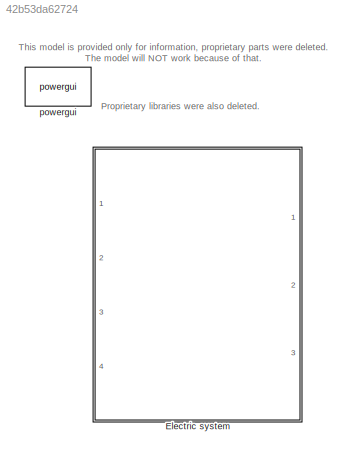
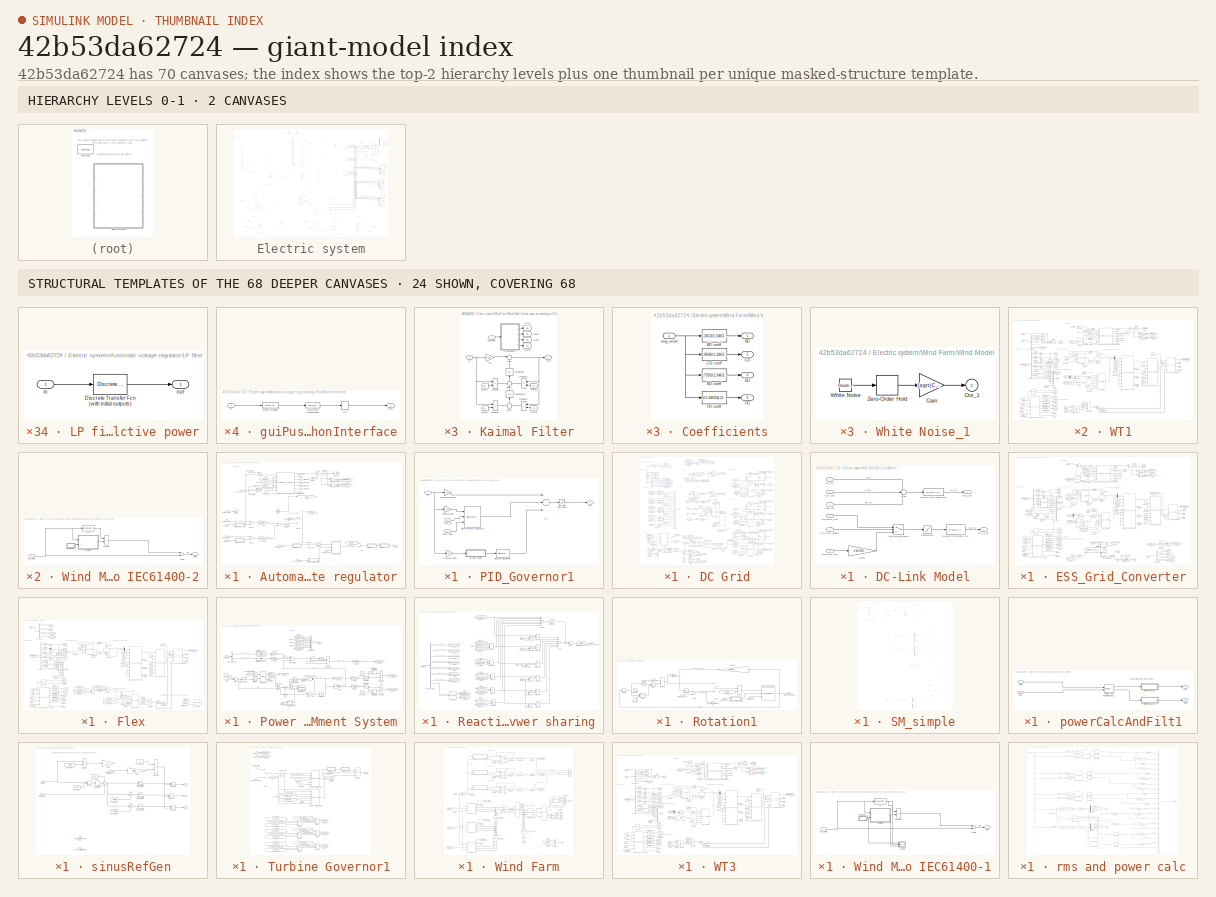
[diagram: thumbnail index - top-2 hierarchy levels (2 canvases) + 24 structural-template representatives of the remaining 68 canvases]
MODEL slx_42b53da62724
KIND model
CONFIG AbsTol = auto
CONFIG FixedStep = auto
CONFIG MaxStep = auto
CONFIG MinStep = auto
CONFIG RelTol = 1e-3
CONFIG SampleTimeConstraint = Unconstrained
CONFIG Solver = VariableStepAuto
CONFIG SolverMode = Auto
CONFIG SolverName = VariableStepAuto
CONFIG StartTime = 0.0
CONFIG StopTime = 10.0
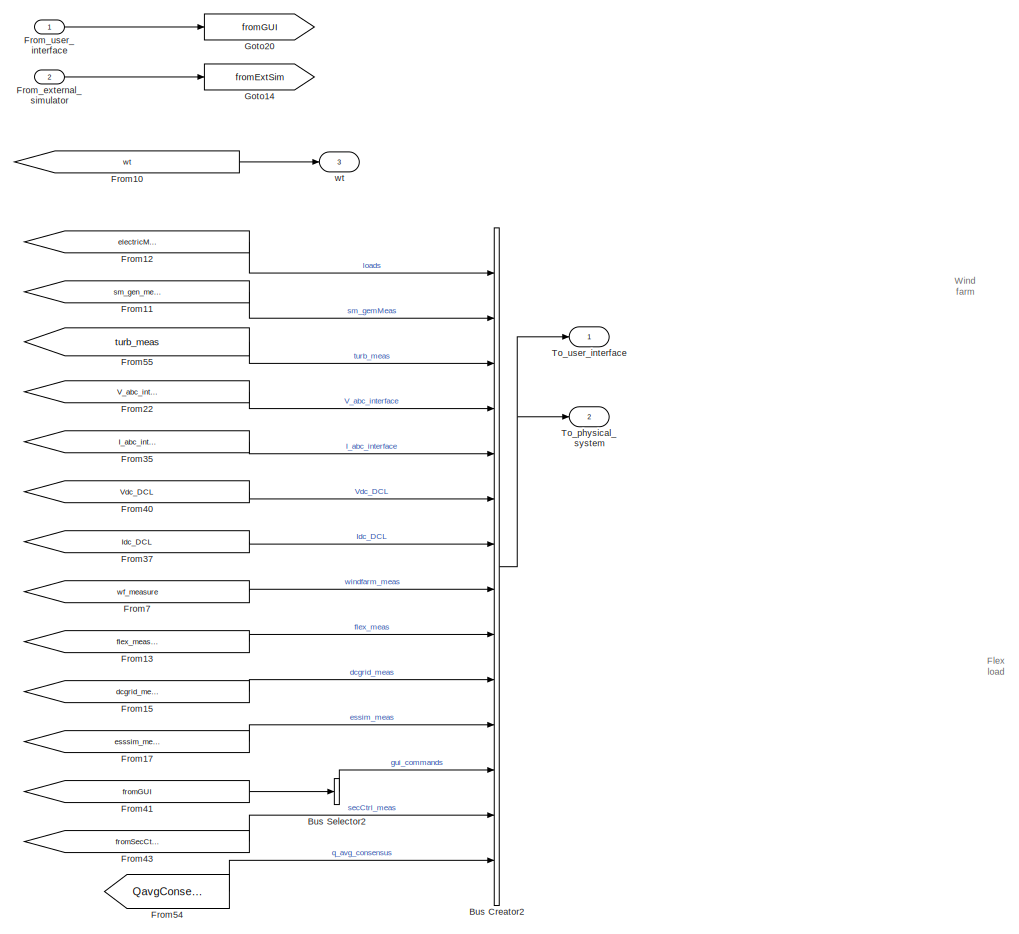
[diagram: Electric system - part 1/13, top center region]
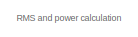
[diagram: Electric system - part 2/13, top left region]
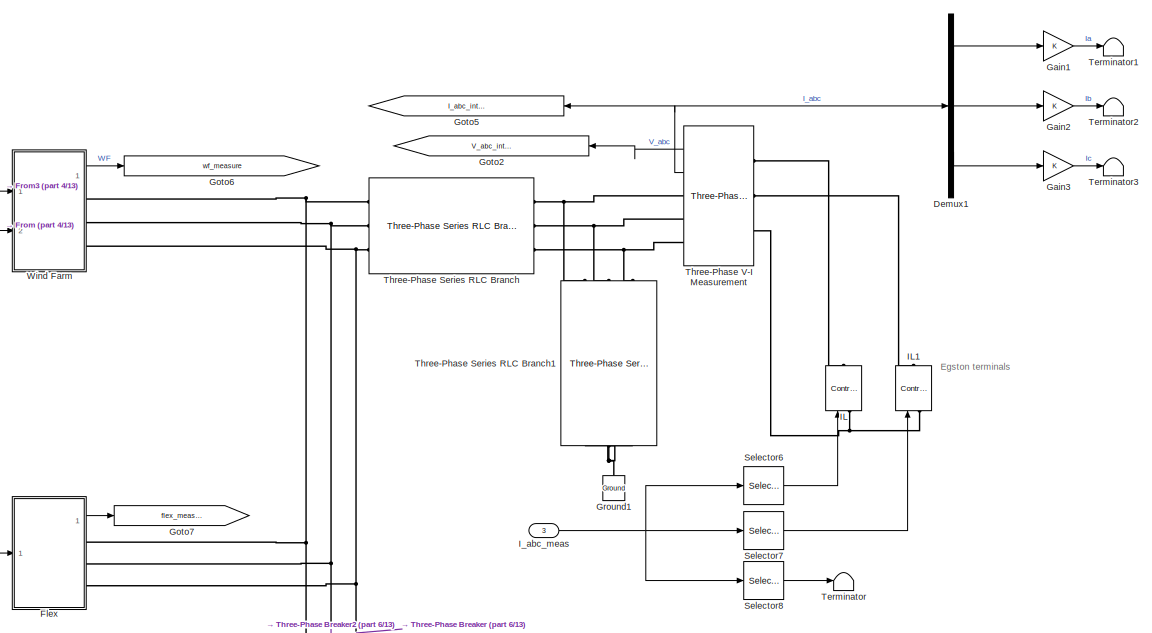
[diagram: Electric system - part 3/13, top right region]
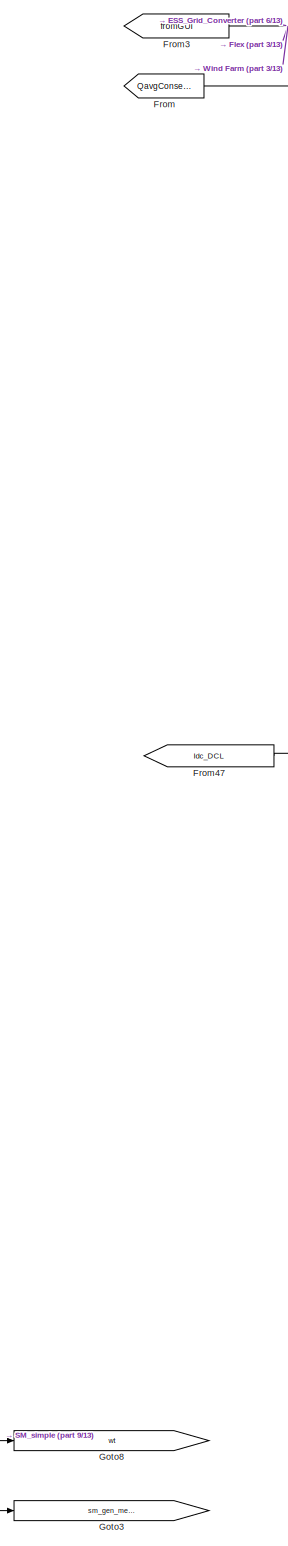
[diagram: Electric system - part 4/13, central region]
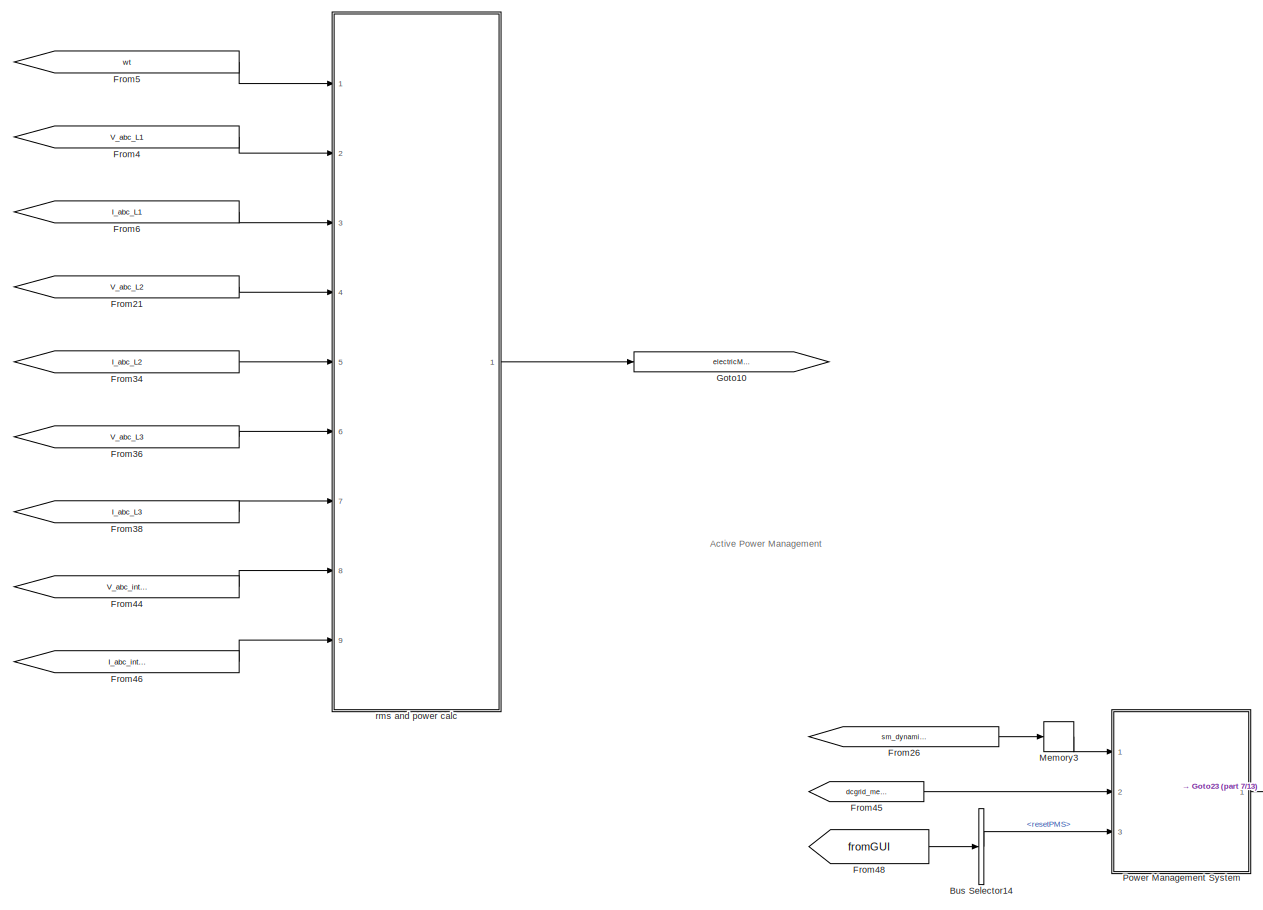
[diagram: Electric system - part 5/13, top left region]
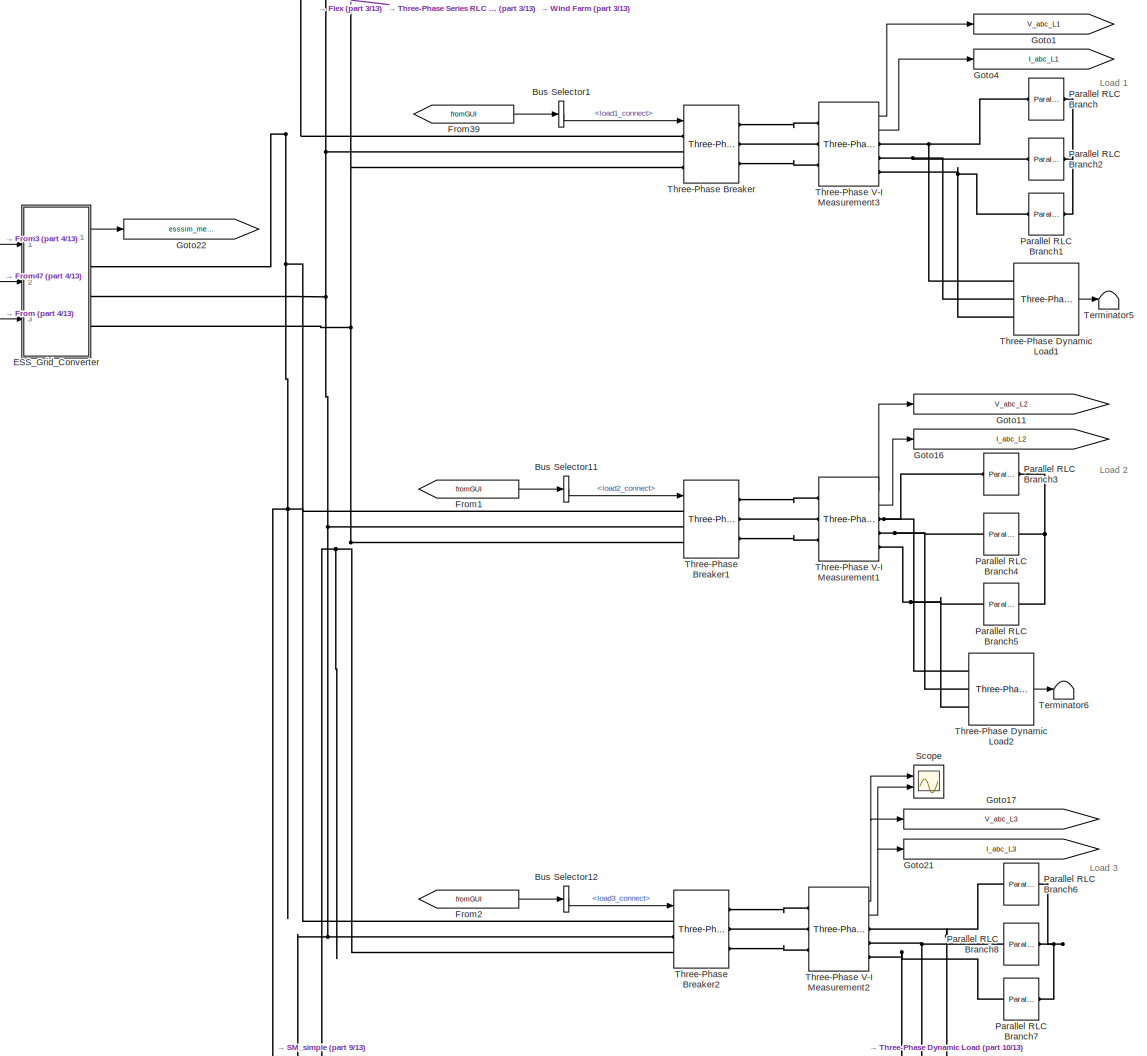
[diagram: Electric system - part 6/13, middle right region]
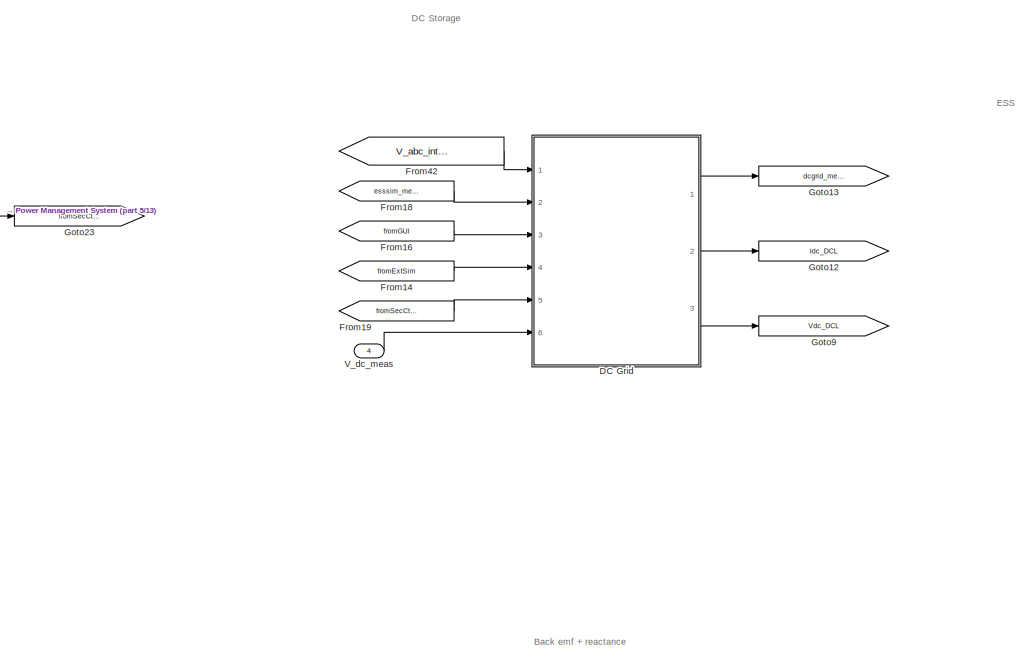
[diagram: Electric system - part 7/13, central region]
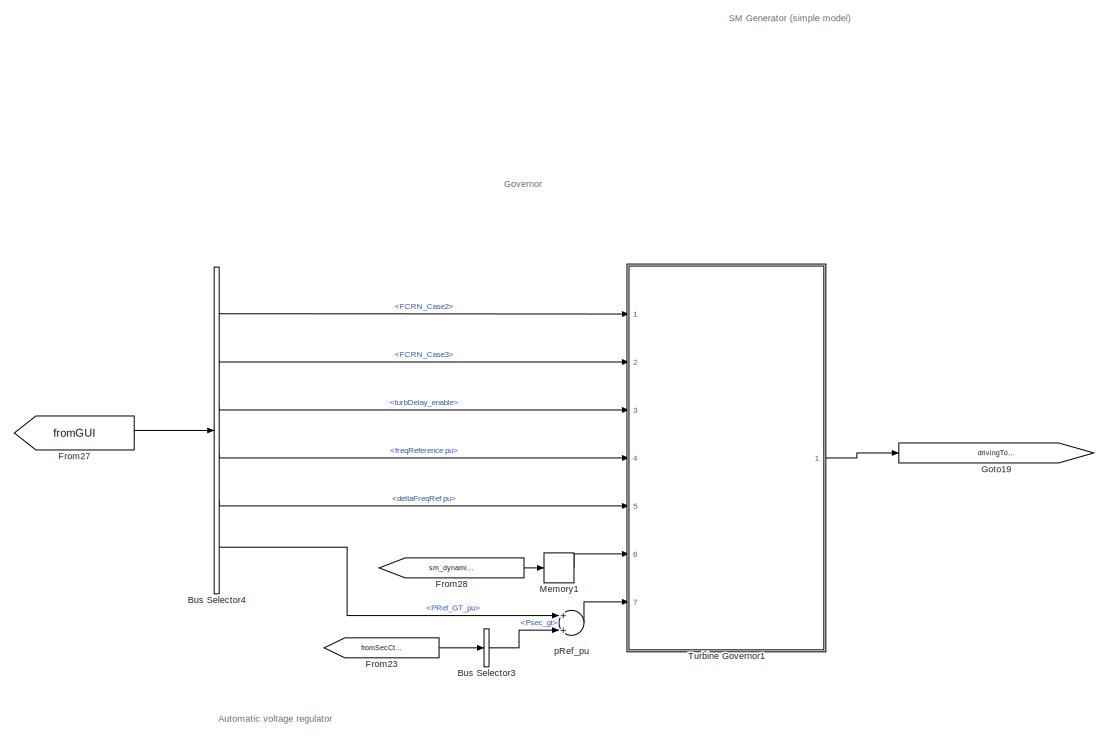
[diagram: Electric system - part 8/13, middle left region]
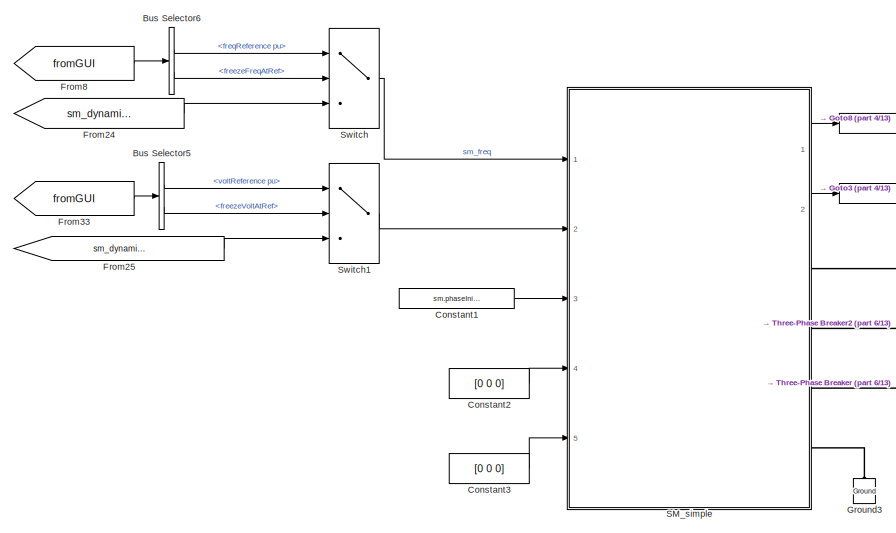
[diagram: Electric system - part 9/13, bottom center region]
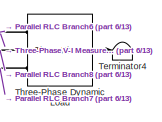
[diagram: Electric system - part 10/13, bottom right region]
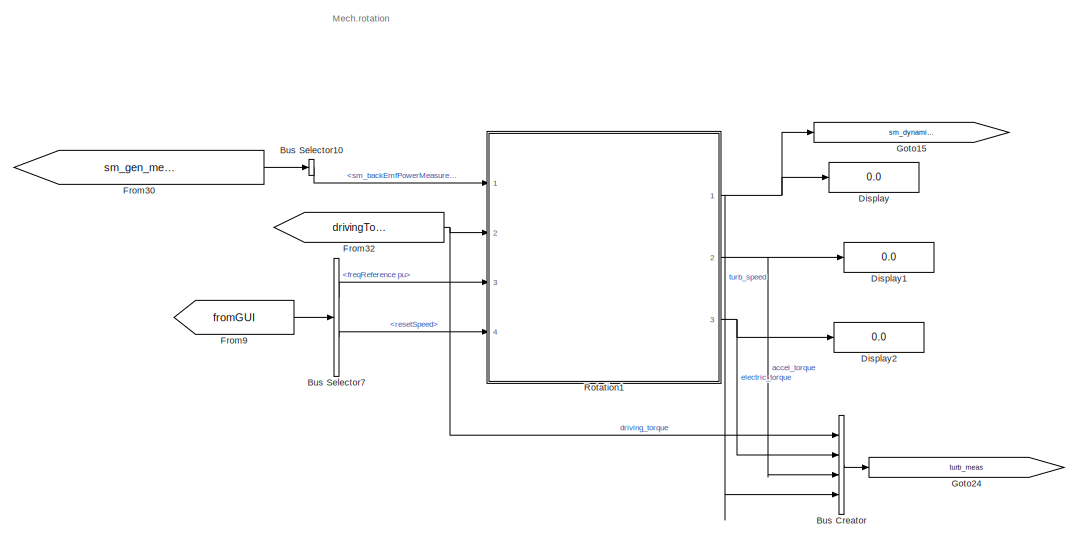
[diagram: Electric system - part 11/13, bottom center region]
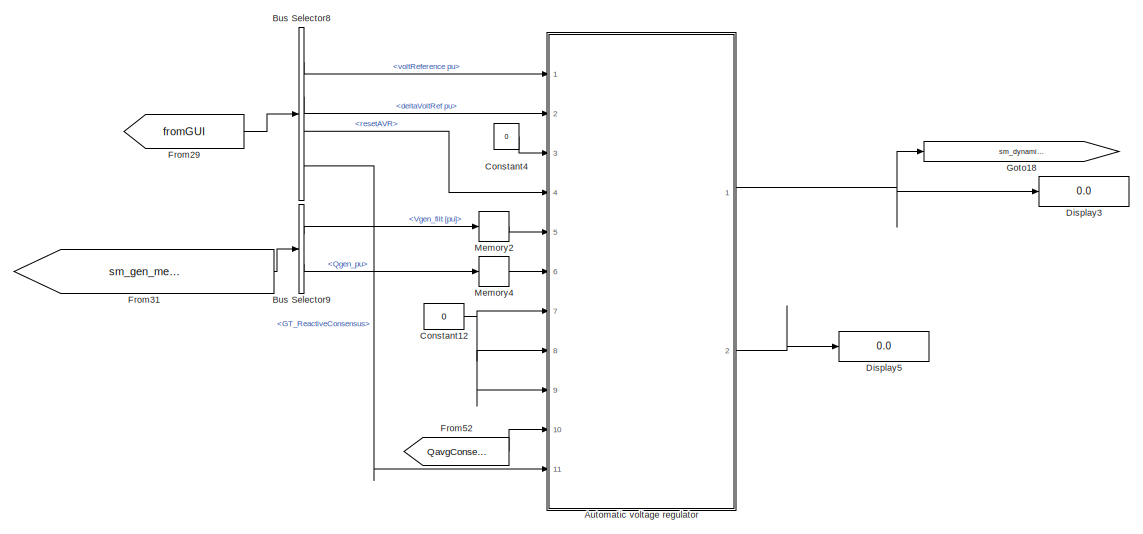
[diagram: Electric system - part 12/13, bottom left region]
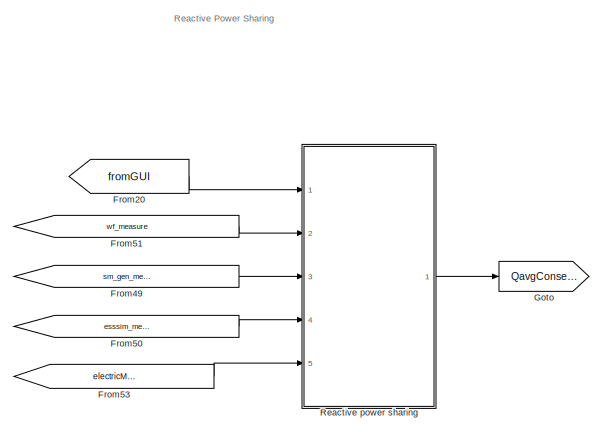
[diagram: Electric system - part 13/13, bottom right region]
BLOCK [SubSystem] Electric system
  Ports = [4, 3]
  RequestExecContextInheritance = off
  Variant = off
BLOCK [SubSystem] Electric system/Automatic voltage regulator
  Ports = [11, 2]
  RequestExecContextInheritance = off
  Variant = off
BLOCK [Constant] Electric system/Automatic voltage regulator/Constant15
  Value = 0
BLOCK [Constant] Electric system/Automatic voltage regulator/Constant18
  Value = 0
BLOCK [Gain] Electric system/Automatic voltage regulator/Droop
  Gain = avr.reactivePowerDroop.K
  OutDataTypeStr = Inherit: Inherit via internal rule
  ParamDataTypeStr = Inherit: Inherit via internal rule
  SaturateOnIntegerOverflow = off
BLOCK [Sum] Electric system/Automatic voltage regulator/Droop1
  InputSameDT = off
  Inputs = +++
  OutDataTypeStr = Inherit: Inherit via internal rule
  Ports = [3, 1]
  SaturateOnIntegerOverflow = off
BLOCK [Sum] Electric system/Automatic voltage regulator/Droop2
  InputSameDT = off
  Inputs = +-
  OutDataTypeStr = Inherit: Inherit via internal rule
  Ports = [2, 1]
  SaturateOnIntegerOverflow = off
BLOCK [Sum] Electric system/Automatic voltage regulator/Droop3
  InputSameDT = off
  Inputs = +-
  OutDataTypeStr = Inherit: Inherit via internal rule
  Ports = [2, 1]
  SaturateOnIntegerOverflow = off
BLOCK [Gain] Electric system/Automatic voltage regulator/Droop4
  Gain = avr.activePowerDroop.K
  OutDataTypeStr = Inherit: Inherit via internal rule
  ParamDataTypeStr = Inherit: Inherit via internal rule
  SaturateOnIntegerOverflow = off
BLOCK [Reference] Electric system/Automatic voltage regulator/Enabled  REF=pwrsysBasic/Enabled
  Ports = [1, 2]
  SourceBlock = pwrsysBasic/Enabled
  SourceType = Enabled block
BLOCK [From] Electric system/Automatic voltage regulator/From
  GotoTag = Vreflim
BLOCK [From] Electric system/Automatic voltage regulator/From20
  GotoTag = Vref
BLOCK [From] Electric system/Automatic voltage regulator/From22
  GotoTag = QregBlockUp
BLOCK [From] Electric system/Automatic voltage regulator/From23
  GotoTag = QregBlockDown
BLOCK [From] Electric system/Automatic voltage regulator/From30
  GotoTag = volt_ref
BLOCK [Inport] Electric system/Automatic voltage regulator/GT_consensus
  IconDisplay = Port number
  Port = 11
BLOCK [Goto] Electric system/Automatic voltage regulator/Goto
  GotoTag = Vref
BLOCK [Goto] Electric system/Automatic voltage regulator/Goto1
  GotoTag = QregBlockUp
BLOCK [Goto] Electric system/Automatic voltage regulator/Goto17
  GotoTag = Vreflim
BLOCK [Goto] Electric system/Automatic voltage regulator/Goto18
  GotoTag = volt_ref
BLOCK [Goto] Electric system/Automatic voltage regulator/Goto19
  GotoTag = QregBlockDown
BLOCK [SubSystem] Electric system/Automatic voltage regulator/LP filter active power
  Ports = [1, 1]
  RequestExecContextInheritance = off
  Variant = off
BLOCK [Reference] Electric system/Automatic voltage regulator/LP filter active power/Discrete Transfer Fcn (with initial outputs)  REF=simulink_extras/Additional
Discrete/Discrete
Transfer Fcn
(with initial outputs)
  Ports = [1, 1]
  SourceBlock = simulink_extras/Additional\nDiscrete/Discrete\nTransfer Fcn\n(with initial outputs)
  SourceType = Discrete Transfer Function with Initial Outputs
BLOCK [Inport] Electric system/Automatic voltage regulator/LP filter active power/in
  IconDisplay = Port number
BLOCK [Outport] Electric system/Automatic voltage regulator/LP filter active power/out
  IconDisplay = Port number
BLOCK [SubSystem] Electric system/Automatic voltage regulator/LP filter frequency
  Ports = [1, 1]
  RequestExecContextInheritance = off
  Variant = off
BLOCK [Reference] Electric system/Automatic voltage regulator/LP filter frequency/Discrete Transfer Fcn (with initial outputs)  REF=simulink_extras/Additional
Discrete/Discrete
Transfer Fcn
(with initial outputs)
  Ports = [1, 1]
  SourceBlock = simulink_extras/Additional\nDiscrete/Discrete\nTransfer Fcn\n(with initial outputs)
  SourceType = Discrete Transfer Function with Initial Outputs
BLOCK [Inport] Electric system/Automatic voltage regulator/LP filter frequency/in
  IconDisplay = Port number
BLOCK [Outport] Electric system/Automatic voltage regulator/LP filter frequency/out
  IconDisplay = Port number
BLOCK [SubSystem] Electric system/Automatic voltage regulator/LP filter frequency1
  Ports = [1, 1]
  RequestExecContextInheritance = off
  Variant = off
BLOCK [Reference] Electric system/Automatic voltage regulator/LP filter frequency1/Discrete Transfer Fcn (with initial outputs)  REF=simulink_extras/Additional
Discrete/Discrete
Transfer Fcn
(with initial outputs)
  Ports = [1, 1]
  SourceBlock = simulink_extras/Additional\nDiscrete/Discrete\nTransfer Fcn\n(with initial outputs)
  SourceType = Discrete Transfer Function with Initial Outputs
BLOCK [Inport] Electric system/Automatic voltage regulator/LP filter frequency1/in
  IconDisplay = Port number
BLOCK [Outport] Electric system/Automatic voltage regulator/LP filter frequency1/out
  IconDisplay = Port number
BLOCK [SubSystem] Electric system/Automatic voltage regulator/LP filter frequency2
  Ports = [1, 1]
  RequestExecContextInheritance = off
  Variant = off
BLOCK [Reference] Electric system/Automatic voltage regulator/LP filter frequency2/Discrete Transfer Fcn (with initial outputs)  REF=simulink_extras/Additional
Discrete/Discrete
Transfer Fcn
(with initial outputs)
  Ports = [1, 1]
  SourceBlock = simulink_extras/Additional\nDiscrete/Discrete\nTransfer Fcn\n(with initial outputs)
  SourceType = Discrete Transfer Function with Initial Outputs
BLOCK [Inport] Electric system/Automatic voltage regulator/LP filter frequency2/in
  IconDisplay = Port number
BLOCK [Outport] Electric system/Automatic voltage regulator/LP filter frequency2/out
  IconDisplay = Port number
BLOCK [SubSystem] Electric system/Automatic voltage regulator/LP filter reactive power
  Ports = [1, 1]
  RequestExecContextInheritance = off
  Variant = off
BLOCK [Reference] Electric system/Automatic voltage regulator/LP filter reactive power/Discrete Transfer Fcn (with initial outputs)  REF=simulink_extras/Additional
Discrete/Discrete
Transfer Fcn
(with initial outputs)
  Ports = [1, 1]
  SourceBlock = simulink_extras/Additional\nDiscrete/Discrete\nTransfer Fcn\n(with initial outputs)
  SourceType = Discrete Transfer Function with Initial Outputs
BLOCK [Inport] Electric system/Automatic voltage regulator/LP filter reactive power/in
  IconDisplay = Port number
BLOCK [Outport] Electric system/Automatic voltage regulator/LP filter reactive power/out
  IconDisplay = Port number
BLOCK [RelationalOperator] Electric system/Automatic voltage regulator/NotEqual2
  InputSameDT = off
  Operator = >
  OutDataTypeStr = boolean
  Ports = [2, 1]
BLOCK [RelationalOperator] Electric system/Automatic voltage regulator/NotEqual3
  InputSameDT = off
  Operator = <
  OutDataTypeStr = boolean
  Ports = [2, 1]
BLOCK [SubSystem] Electric system/Automatic voltage regulator/PID_Governor1
  Ports = [3, 1]
  RequestExecContextInheritance = off
  Variant = off
BLOCK [Reference] Electric system/Automatic voltage regulator/PID_Governor1/Discrete Derivative  REF=simulink/Discrete/Discrete Derivative
  Ports = [1, 1]
  SourceBlock = simulink/Discrete/Discrete Derivative
  SourceType = Discrete Derivative
BLOCK [DiscreteIntegrator] Electric system/Automatic voltage regulator/PID_Governor1/Discrete-Time Integrator
  ExternalReset = level
  ICPrevOutput = DiscIntNeverNeededParam
  ICPrevScaledInput = DiscIntNeverNeededParam
  InitialCondition = xi
  InitialConditionSetting = State (most efficient)
  InitialConditionSource = external
  IntegratorMethod = Integration: Trapezoidal
  LimitOutput = on
  LowerSaturationLimit = low_sat_limit
  Ports = [3, 1]
  SampleTime = Ts
  UpperSaturationLimit = up_sat_limit
BLOCK [Gain] Electric system/Automatic voltage regulator/PID_Governor1/Integral Gain
  DisableCoverage = on
  Gain = ki
  OutDataTypeStr = Inherit: Inherit via internal rule
  ParamDataTypeStr = Inherit: Inherit via internal rule
  SaturateOnIntegerOverflow = off
BLOCK [Gain] Electric system/Automatic voltage regulator/PID_Governor1/Integral Gain1
  DisableCoverage = on
  Gain = kd
  OutDataTypeStr = Inherit: Inherit via internal rule
  ParamDataTypeStr = Inherit: Inherit via internal rule
  SaturateOnIntegerOverflow = off
BLOCK [SubSystem] Electric system/Automatic voltage regulator/PID_Governor1/LP filter power
  Ports = [1, 1]
  RequestExecContextInheritance = off
  Variant = off
BLOCK [Reference] Electric system/Automatic voltage regulator/PID_Governor1/LP filter power/Discrete Transfer Fcn (with initial outputs)  REF=simulink_extras/Additional
Discrete/Discrete
Transfer Fcn
(with initial outputs)
  Ports = [1, 1]
  SourceBlock = simulink_extras/Additional\nDiscrete/Discrete\nTransfer Fcn\n(with initial outputs)
  SourceType = Discrete Transfer Function with Initial Outputs
BLOCK [Inport] Electric system/Automatic voltage regulator/PID_Governor1/LP filter power/in
  IconDisplay = Port number
BLOCK [Outport] Electric system/Automatic voltage regulator/PID_Governor1/LP filter power/out
  IconDisplay = Port number
BLOCK [Sum] Electric system/Automatic voltage regulator/PID_Governor1/P+I
  InputSameDT = off
  Inputs = +++
  OutDataTypeStr = Inherit: Inherit via internal rule
  Ports = [3, 1]
  SaturateOnIntegerOverflow = off
BLOCK [Gain] Electric system/Automatic voltage regulator/PID_Governor1/Proportional Gain
  DisableCoverage = on
  Gain = kp
  OutDataTypeStr = Inherit: Inherit via internal rule
  ParamDataTypeStr = Inherit: Inherit via internal rule
  SaturateOnIntegerOverflow = off
BLOCK [Saturate] Electric system/Automatic voltage regulator/PID_Governor1/Saturation
  InputPortMap = u0
  LowerLimit = low_sat_limit
  Ports = [1, 1]
  UpperLimit = up_sat_limit
BLOCK [Inport] Electric system/Automatic voltage regulator/PID_Governor1/in
  IconDisplay = Port number
BLOCK [Outport] Electric system/Automatic voltage regulator/PID_Governor1/out
  IconDisplay = Port number
BLOCK [Inport] Electric system/Automatic voltage regulator/PID_Governor1/reset_int
  IconDisplay = Port number
  Port = 2
BLOCK [Inport] Electric system/Automatic voltage regulator/PID_Governor1/reset_value
  IconDisplay = Port number
  Port = 3
BLOCK [Reference] Electric system/Automatic voltage regulator/PI_Std_AntiWindup_HoldUpDown_Backward  REF=pwrsysBasic/PI_Std_AntiWindup_HoldUpDown_Backward
  Ports = [7, 7]
  SourceBlock = pwrsysBasic/PI_Std_AntiWindup_HoldUpDown_Backward
  SourceType = PI regulator with anti-windup
BLOCK [Inport] Electric system/Automatic voltage regulator/QavgSetpoint
  IconDisplay = Port number
  Port = 10
BLOCK [Inport] Electric system/Automatic voltage regulator/Reset_integrator
  IconDisplay = Port number
  Port = 4
BLOCK [Inport] Electric system/Automatic voltage regulator/Reset_value
  IconDisplay = Port number
  Port = 3
BLOCK [Saturate] Electric system/Automatic voltage regulator/Saturation1
  InputPortMap = u0
  LowerLimit = avr.Qctrl.Umin
  Ports = [1, 1]
  UpperLimit = avr.Qctrl.Umax
BLOCK [Saturate] Electric system/Automatic voltage regulator/Saturation2
  InputPortMap = u0
  LowerLimit = avr.ErrMin
  Ports = [1, 1]
  UpperLimit = avr.ErrMax
BLOCK [Saturate] Electric system/Automatic voltage regulator/Saturation3
  InputPortMap = u0
  LowerLimit = avr.droopSaturationLower
  Ports = [1, 1]
  UpperLimit = avr.droopSaturationUpper
BLOCK [Sum] Electric system/Automatic voltage regulator/Sum
  InputSameDT = off
  OutDataTypeStr = Inherit: Inherit via internal rule
  Ports = [2, 1]
  SaturateOnIntegerOverflow = off
BLOCK [Sum] Electric system/Automatic voltage regulator/Sum1
  IconShape = round
  InputSameDT = off
  Inputs = |++
  OutDataTypeStr = Inherit: Inherit via internal rule
  Ports = [2, 1]
  SaturateOnIntegerOverflow = off
BLOCK [Sum] Electric system/Automatic voltage regulator/Sum2
  InputSameDT = off
  Inputs = +-
  OutDataTypeStr = Inherit: Inherit via internal rule
  Ports = [2, 1]
  SaturateOnIntegerOverflow = off
BLOCK [Terminator] Electric system/Automatic voltage regulator/Terminator1
BLOCK [Terminator] Electric system/Automatic voltage regulator/Terminator10
BLOCK [Terminator] Electric system/Automatic voltage regulator/Terminator12
BLOCK [Terminator] Electric system/Automatic voltage regulator/Terminator6
BLOCK [Terminator] Electric system/Automatic voltage regulator/Terminator7
BLOCK [Terminator] Electric system/Automatic voltage regulator/Terminator8
BLOCK [Terminator] Electric system/Automatic voltage regulator/Terminator9
BLOCK [UnitDelay] Electric system/Automatic voltage regulator/Unit Delay12
  InputProcessing = Elements as channels (sample based)
  SampleTime = avr.Qctrl.Ts_control
BLOCK [UnitDelay] Electric system/Automatic voltage regulator/Unit Delay13
  InputProcessing = Elements as channels (sample based)
  SampleTime = avr.Qctrl.Ts_control
BLOCK [Sum] Electric system/Automatic voltage regulator/Voltage_err1
  InputSameDT = off
  Inputs = +-
  OutDataTypeStr = Inherit: Inherit via internal rule
  Ports = [2, 1]
  SaturateOnIntegerOverflow = off
BLOCK [Inport] Electric system/Automatic voltage regulator/Voltage_ref (pu)
  IconDisplay = Port number
BLOCK [Inport] Electric system/Automatic voltage regulator/deltaVoltageRef (pu)
  IconDisplay = Port number
  Port = 2
BLOCK [Sum] Electric system/Automatic voltage regulator/ff
  InputSameDT = off
  Inputs = +-
  OutDataTypeStr = Inherit: Inherit via internal rule
  Ports = [2, 1]
  SaturateOnIntegerOverflow = off
BLOCK [SubSystem] Electric system/Automatic voltage regulator/guiPushButtonInterface
  Ports = [1, 1]
  RequestExecContextInheritance = off
  Variant = off
BLOCK [DataTypeConversion] Electric system/Automatic voltage regulator/guiPushButtonInterface/Data Type Conversion6
  OutDataTypeStr = double
  RndMeth = Round
  SaturateOnIntegerOverflow = off
BLOCK [Reference] Electric system/Automatic voltage regulator/guiPushButtonInterface/Detect Change  REF=simulink/Logic and Bit
Operations/Detect
Change
  Ports = [1, 1]
  SourceBlock = simulink/Logic and Bit\nOperations/Detect\nChange
  SourceType = Detect Change
BLOCK [InitialCondition] Electric system/Automatic voltage regulator/guiPushButtonInterface/IC1
  Value = 0
BLOCK [Inport] Electric system/Automatic voltage regulator/guiPushButtonInterface/In1
  IconDisplay = Port number
BLOCK [Outport] Electric system/Automatic voltage regulator/guiPushButtonInterface/Out1
  IconDisplay = Port number
BLOCK [Outport] Electric system/Automatic voltage regulator/output (pu)
  IconDisplay = Port number
BLOCK [Inport] Electric system/Automatic voltage regulator/pGen (pu)
  IconDisplay = Port number
  Port = 8
BLOCK [Inport] Electric system/Automatic voltage regulator/pRefDroop (pu)
  IconDisplay = Port number
  Port = 9
BLOCK [Inport] Electric system/Automatic voltage regulator/qGen (pu)
  IconDisplay = Port number
  Port = 6
BLOCK [Inport] Electric system/Automatic voltage regulator/qRefDroop (pu)
  IconDisplay = Port number
  Port = 7
BLOCK [Outport] Electric system/Automatic voltage regulator/voltageRefActual (pu)
  IconDisplay = Port number
  Port = 2
BLOCK [Inport] Electric system/Automatic voltage regulator/voltage_feedback (pu)
  IconDisplay = Port number
  Port = 5
BLOCK [BusCreator] Electric system/Bus Creator
  DisplayOption = bar
  InheritFromInputs = on
  Inputs = 4
  Ports = [4, 1]
BLOCK [BusCreator] Electric system/Bus Creator2
  DisplayOption = bar
  InheritFromInputs = on
  Inputs = 14
  Ports = [14, 1]
BLOCK [BusSelector] Electric system/Bus Selector1
  OutputSignals = load1_connect
  Ports = [1, 1]
BLOCK [BusSelector] Electric system/Bus Selector10
  OutputSignals = sm_backEmfPowerMeasure_pu
  Ports = [1, 1]
BLOCK [BusSelector] Electric system/Bus Selector11
  OutputSignals = load2_connect
  Ports = [1, 1]
BLOCK [BusSelector] Electric system/Bus Selector12
  OutputSignals = load3_connect
  Ports = [1, 1]
BLOCK [BusSelector] Electric system/Bus Selector14
  OutputSignals = resetPMS
  Ports = [1, 1]
BLOCK [BusSelector] Electric system/Bus Selector2
  OutputAsBus = on
  OutputSignals = load1_connect,load2_connect,load3_connect,ESS_connect,WF_connect,WT1_connect,WT2_connect,WT3_connect,Flex_connect,WF_windsim,ESSPHIL_enable,ExtSim_enable,voltRef_ESS_pu,voltRef_WT1_pu,voltRef_WT2_pu,voltRef_WT3_pu,PRef_FC_pu,PRef_ELY_pu,PRef_Batt_pu,PRef_GT_pu
  Ports = [1, 1]
BLOCK [BusSelector] Electric system/Bus Selector3
  OutputSignals = Psec_gt
  Ports = [1, 1]
BLOCK [BusSelector] Electric system/Bus Selector4
  OutputSignals = FCRN_Case2,FCRN_Case3,turbDelay_enable,freqReference pu,deltaFreqRef pu,PRef_GT_pu
  Ports = [1, 6]
BLOCK [BusSelector] Electric system/Bus Selector5
  OutputSignals = voltReference pu,freezeVoltAtRef
  Ports = [1, 2]
BLOCK [BusSelector] Electric system/Bus Selector6
  OutputSignals = freqReference pu,freezeFreqAtRef
  Ports = [1, 2]
BLOCK [BusSelector] Electric system/Bus Selector7
  OutputSignals = freqReference pu,resetSpeed
  Ports = [1, 2]
BLOCK [BusSelector] Electric system/Bus Selector8
  OutputSignals = voltReference pu,deltaVoltRef pu,resetAVR,GT_ReactiveConsensus
  Ports = [1, 4]
BLOCK [BusSelector] Electric system/Bus Selector9
  OutputSignals = Vgen_filt [pu],Qgen_pu
  Ports = [1, 2]
BLOCK [Constant] Electric system/Constant1
  SampleTime = Ts
  Value = sm.phaseInitial
BLOCK [Constant] Electric system/Constant12
  SampleTime = Ts
  Value = 0
BLOCK [Constant] Electric system/Constant2
  SampleTime = Ts
  Value = [0 0 0]
BLOCK [Constant] Electric system/Constant3
  SampleTime = Ts
  Value = [0 0 0]
BLOCK [Constant] Electric system/Constant4
  SampleTime = Ts
  Value = 0
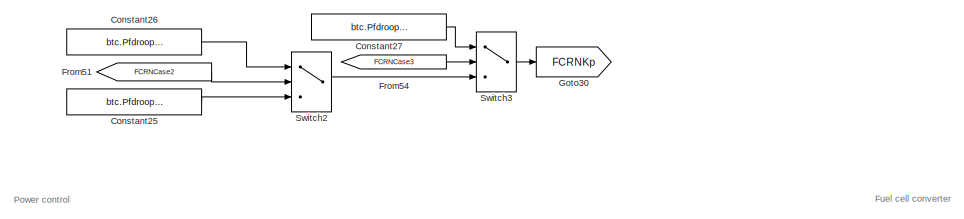
[diagram: Electric system/DC Grid - part 1/6, top center region]
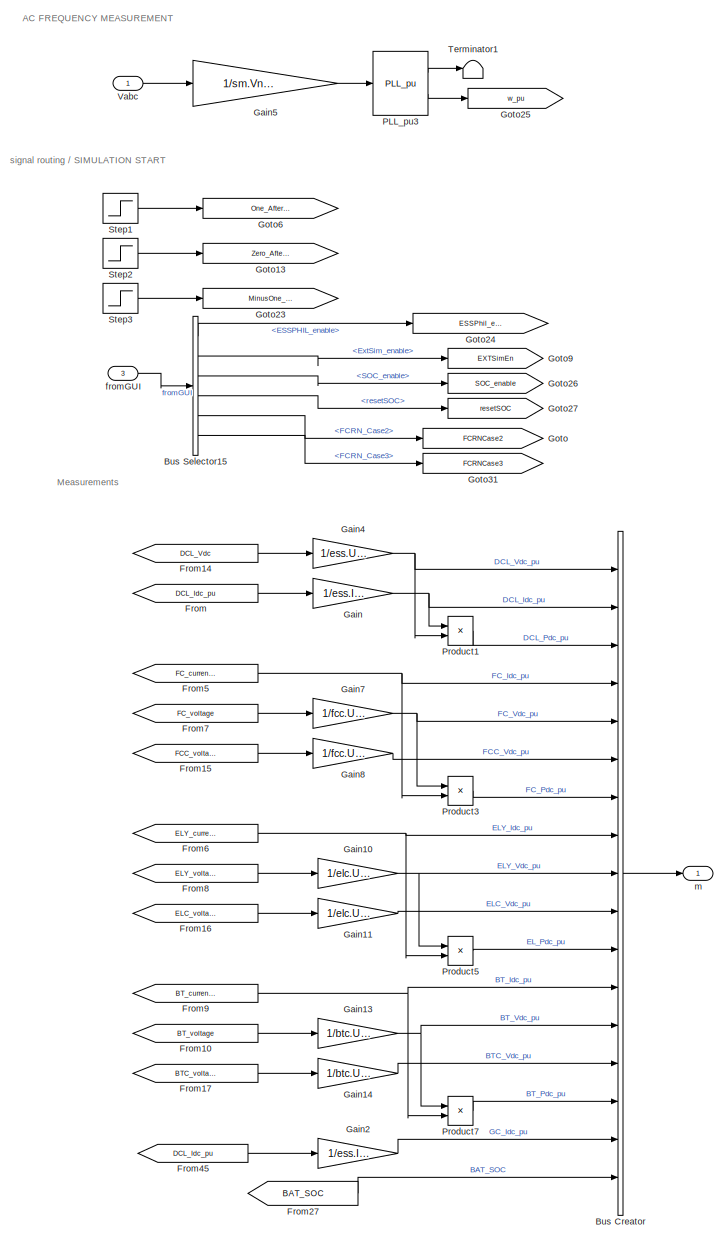
[diagram: Electric system/DC Grid - part 2/6, middle left region]
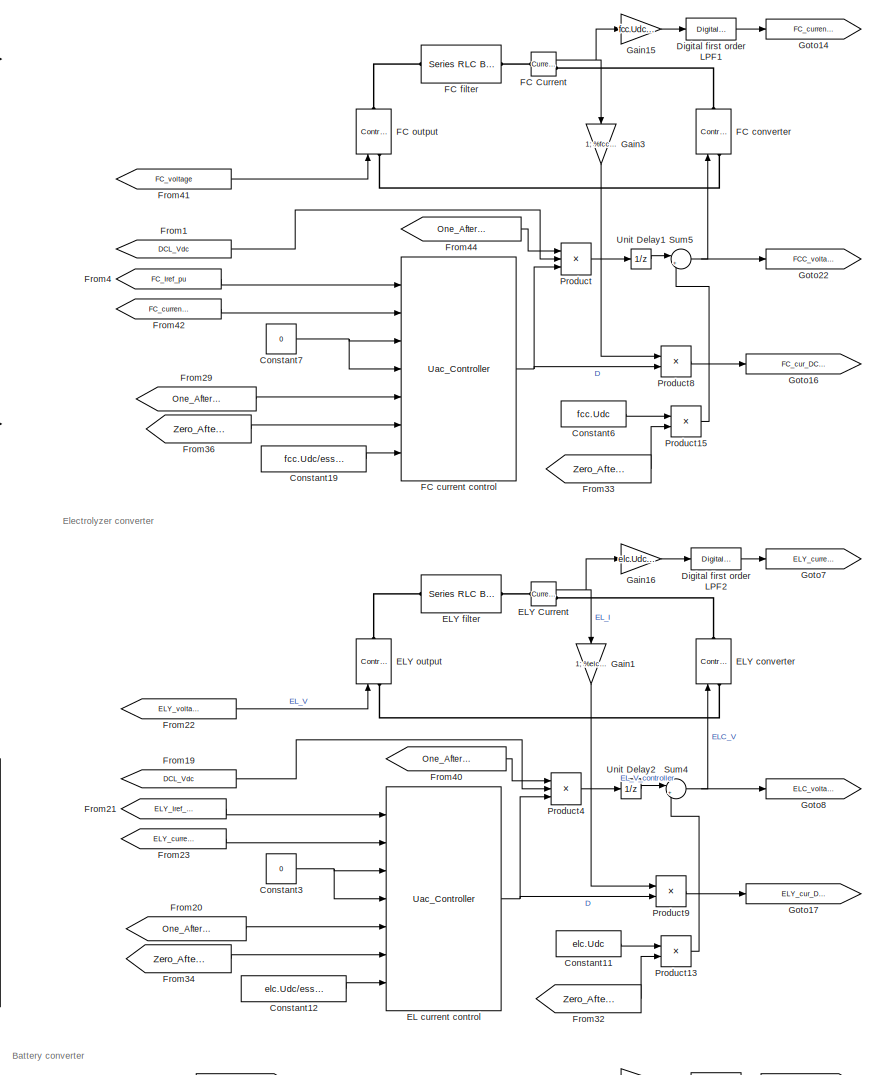
[diagram: Electric system/DC Grid - part 3/6, middle right region]
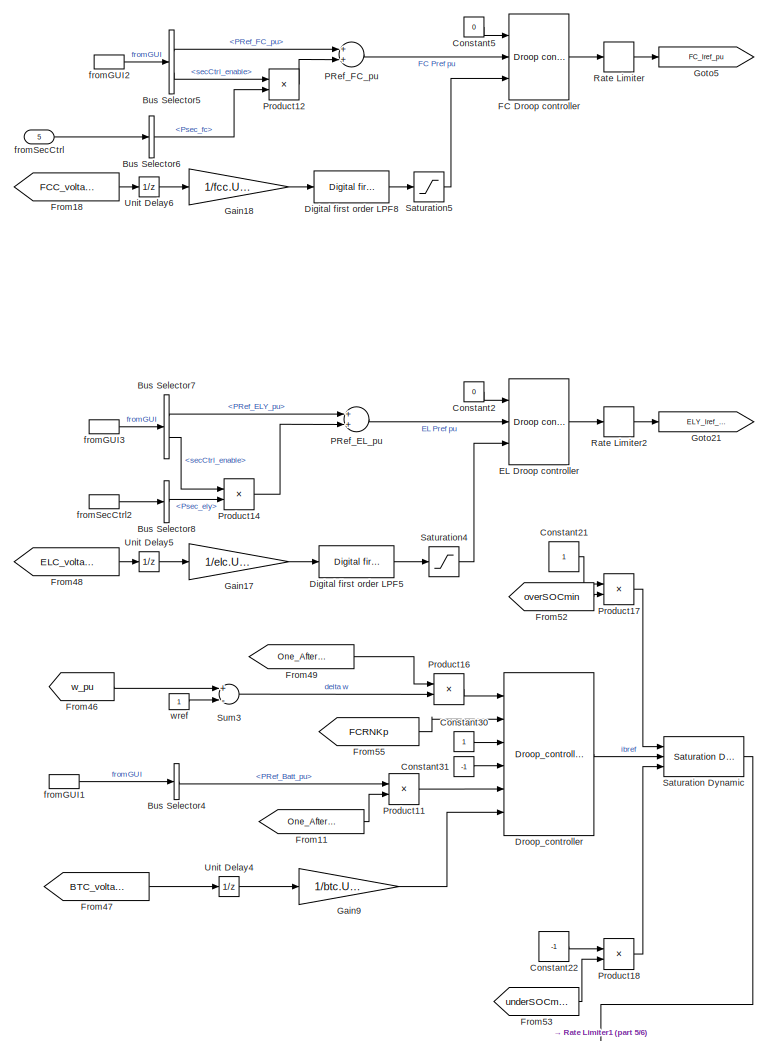
[diagram: Electric system/DC Grid - part 4/6, central region]
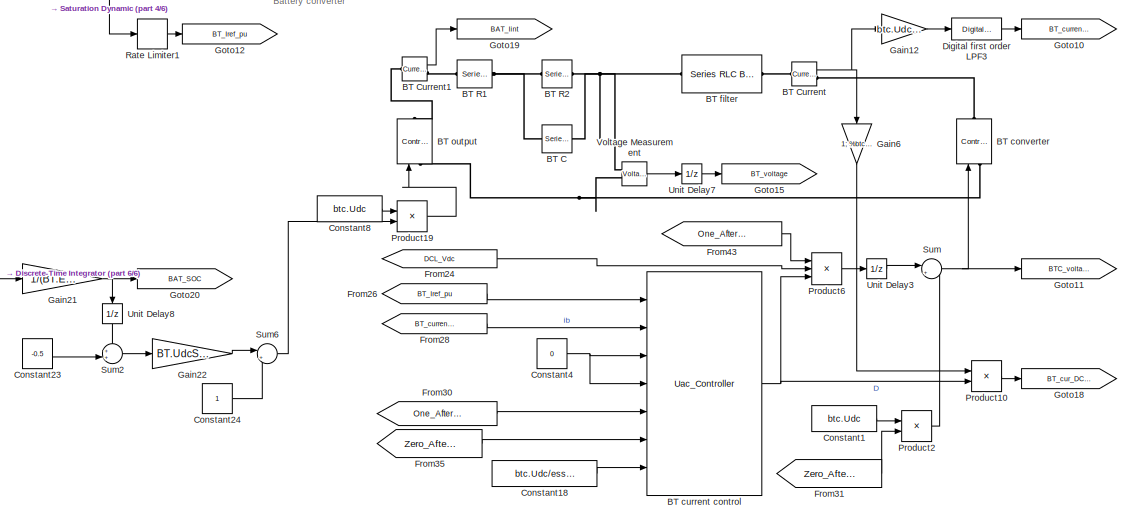
[diagram: Electric system/DC Grid - part 5/6, bottom right region]
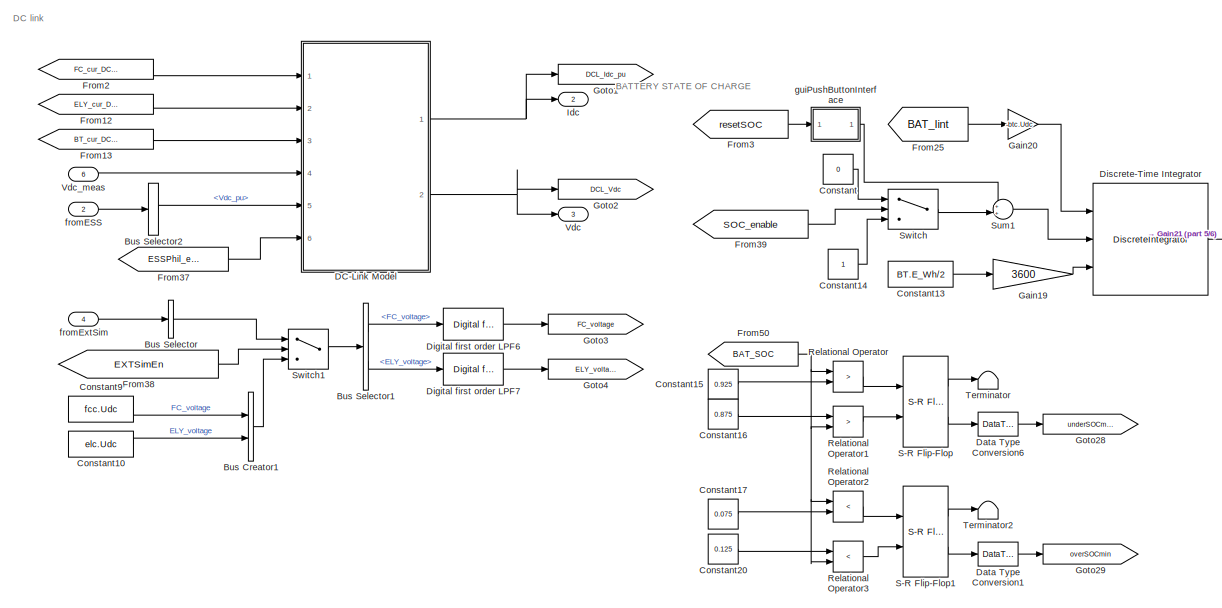
[diagram: Electric system/DC Grid - part 6/6, bottom left region]
BLOCK [SubSystem] Electric system/DC Grid
  Ports = [6, 3]
  RequestExecContextInheritance = off
  Variant = off
BLOCK [Reference] Electric system/DC Grid/BT C  REF=powerlib/Elements/Series RLC Branch
  Ports = [0, 0, 0, 0, 0, 1, 1]
  SourceBlock = powerlib/Elements/Series RLC Branch
  SourceType = Series RLC Branch
BLOCK [Reference] Electric system/DC Grid/BT Current  REF=powerlib/Measurements/Current Measurement
  Ports = [0, 1, 0, 0, 0, 1, 1]
  SourceBlock = powerlib/Measurements/Current Measurement
  SourceType = Current Measurement
  UserDataPersistent = on
BLOCK [Reference] Electric system/DC Grid/BT Current1  REF=powerlib/Measurements/Current Measurement
  Ports = [0, 1, 0, 0, 0, 1, 1]
  SourceBlock = powerlib/Measurements/Current Measurement
  SourceType = Current Measurement
  UserDataPersistent = on
BLOCK [Reference] Electric system/DC Grid/BT R1  REF=powerlib/Elements/Series RLC Branch
  Ports = [0, 0, 0, 0, 0, 1, 1]
  SourceBlock = powerlib/Elements/Series RLC Branch
  SourceType = Series RLC Branch
BLOCK [Reference] Electric system/DC Grid/BT R2  REF=powerlib/Elements/Series RLC Branch
  Ports = [0, 0, 0, 0, 0, 1, 1]
  SourceBlock = powerlib/Elements/Series RLC Branch
  SourceType = Series RLC Branch
BLOCK [Reference] Electric system/DC Grid/BT converter  REF=powerlib/Electrical
Sources/Controlled Voltage Source
  Ports = [1, 0, 0, 0, 0, 1, 1]
  SourceBlock = powerlib/Electrical\nSources/Controlled Voltage Source
  SourceType = Controlled Voltage Source
BLOCK [Reference] Electric system/DC Grid/BT current control  REF=pwrsysVICtrl/Uac_Controller
  Ports = [7, 1]
  SourceBlock = pwrsysVICtrl/Uac_Controller
  SourceType = Udc Controller - PI regulator with anti-windup
BLOCK [Reference] Electric system/DC Grid/BT filter  REF=powerlib/Elements/Series RLC Branch
  Ports = [0, 0, 0, 0, 0, 1, 1]
  SourceBlock = powerlib/Elements/Series RLC Branch
  SourceType = Series RLC Branch
BLOCK [Reference] Electric system/DC Grid/BT output  REF=powerlib/Electrical
Sources/Controlled Voltage Source
  Ports = [1, 0, 0, 0, 0, 1, 1]
  SourceBlock = powerlib/Electrical\nSources/Controlled Voltage Source
  SourceType = Controlled Voltage Source
BLOCK [BusCreator] Electric system/DC Grid/Bus Creator
  DisplayOption = bar
  InheritFromInputs = on
  Inputs = 17
  Ports = [17, 1]
BLOCK [BusCreator] Electric system/DC Grid/Bus Creator1
  DisplayOption = bar
  InheritFromInputs = on
  Inputs = 2
  Ports = [2, 1]
BLOCK [BusSelector] Electric system/DC Grid/Bus Selector
  OutputAsBus = on
  OutputSignals = FC_voltage,ELY_voltage
  Ports = [1, 1]
BLOCK [BusSelector] Electric system/DC Grid/Bus Selector1
  OutputSignals = FC_voltage,ELY_voltage
  Ports = [1, 2]
BLOCK [BusSelector] Electric system/DC Grid/Bus Selector15
  OutputSignals = ESSPHIL_enable,ExtSim_enable,SOC_enable,resetSOC,FCRN_Case2,FCRN_Case3
  Ports = [1, 6]
BLOCK [BusSelector] Electric system/DC Grid/Bus Selector2
  OutputSignals = Vdc_pu
  Ports = [1, 1]
BLOCK [BusSelector] Electric system/DC Grid/Bus Selector4
  OutputSignals = PRef_Batt_pu
  Ports = [1, 1]
BLOCK [BusSelector] Electric system/DC Grid/Bus Selector5
  OutputSignals = PRef_FC_pu,secCtrl_enable
  Ports = [1, 2]
BLOCK [BusSelector] Electric system/DC Grid/Bus Selector6
  OutputSignals = Psec_fc
  Ports = [1, 1]
BLOCK [BusSelector] Electric system/DC Grid/Bus Selector7
  OutputSignals = PRef_ELY_pu,secCtrl_enable
  Ports = [1, 2]
BLOCK [BusSelector] Electric system/DC Grid/Bus Selector8
  OutputSignals = Psec_ely
  Ports = [1, 1]
BLOCK [Constant] Electric system/DC Grid/Constant
  Value = 0
BLOCK [Constant] Electric system/DC Grid/Constant1
  SampleTime = Ts
  Value = btc.Udc
BLOCK [Constant] Electric system/DC Grid/Constant10
  SampleTime = Ts
  Value = elc.Udc
BLOCK [Constant] Electric system/DC Grid/Constant11
  SampleTime = Ts
  Value = elc.Udc
BLOCK [Constant] Electric system/DC Grid/Constant12
  SampleTime = Ts
  Value = elc.Udc/ess.Udc
BLOCK [Constant] Electric system/DC Grid/Constant13
  SampleTime = Ts
  Value = BT.E_Wh/2
BLOCK [Constant] Electric system/DC Grid/Constant14
BLOCK [Constant] Electric system/DC Grid/Constant15
  Value = 0.925
BLOCK [Constant] Electric system/DC Grid/Constant16
  Value = 0.875
BLOCK [Constant] Electric system/DC Grid/Constant17
  Value = 0.075
BLOCK [Constant] Electric system/DC Grid/Constant18
  SampleTime = Ts
  Value = btc.Udc/ess.Udc
BLOCK [Constant] Electric system/DC Grid/Constant19
  SampleTime = Ts
  Value = fcc.Udc/ess.Udc
BLOCK [Constant] Electric system/DC Grid/Constant2
  SampleTime = Ts
  Value = 0
BLOCK [Constant] Electric system/DC Grid/Constant20
  Value = 0.125
BLOCK [Constant] Electric system/DC Grid/Constant21
BLOCK [Constant] Electric system/DC Grid/Constant22
  Value = -1
BLOCK [Constant] Electric system/DC Grid/Constant23
  Value = -0.5
BLOCK [Constant] Electric system/DC Grid/Constant24
BLOCK [Constant] Electric system/DC Grid/Constant25
  SampleTime = -1
  Value = btc.Pfdroop.Kp_case1
BLOCK [Constant] Electric system/DC Grid/Constant26
  SampleTime = -1
  Value = btc.Pfdroop.Kp_case2
BLOCK [Constant] Electric system/DC Grid/Constant27
  SampleTime = -1
  Value = btc.Pfdroop.Kp_case3
BLOCK [Constant] Electric system/DC Grid/Constant3
  SampleTime = Ts
  Value = 0
BLOCK [Constant] Electric system/DC Grid/Constant30
  SampleTime = Ts
BLOCK [Constant] Electric system/DC Grid/Constant31
  SampleTime = Ts
  Value = -1
BLOCK [Constant] Electric system/DC Grid/Constant4
  SampleTime = Ts
  Value = 0
BLOCK [Constant] Electric system/DC Grid/Constant5
  SampleTime = Ts
  Value = 0
BLOCK [Constant] Electric system/DC Grid/Constant6
  SampleTime = Ts
  Value = fcc.Udc
BLOCK [Constant] Electric system/DC Grid/Constant7
  SampleTime = Ts
  Value = 0
BLOCK [Constant] Electric system/DC Grid/Constant8
  SampleTime = Ts
  Value = btc.Udc
BLOCK [Constant] Electric system/DC Grid/Constant9
  SampleTime = Ts
  Value = fcc.Udc
BLOCK [SubSystem] Electric system/DC Grid/DC-Link Model
  Ports = [6, 2]
  RequestExecContextInheritance = off
  Variant = off
BLOCK [Inport] Electric system/DC Grid/DC-Link Model/Batt_Idc
  IconDisplay = Port number
  Port = 3
BLOCK [Outport] Electric system/DC Grid/DC-Link Model/DCL_Idc
  IconDisplay = Port number
BLOCK [Outport] Electric system/DC Grid/DC-Link Model/DCL_Vdc
  IconDisplay = Port number
  Port = 2
BLOCK [Reference] Electric system/DC Grid/DC-Link Model/Digital first order LPF1  REF=pwrsysBasic/Digital first order LPF
  Ports = [1, 1]
  SourceBlock = pwrsysBasic/Digital first order LPF
  SourceType = Digital first-order low-pass filter
BLOCK [Reference] Electric system/DC Grid/DC-Link Model/Digital first order LPF3  REF=pwrsysBasic/Digital first order LPF
  Ports = [1, 1]
  SourceBlock = pwrsysBasic/Digital first order LPF
  SourceType = Digital first-order low-pass filter
BLOCK [Inport] Electric system/DC Grid/DC-Link Model/EGSTON_Vdc
  IconDisplay = Port number
  Port = 4
BLOCK [Inport] Electric system/DC Grid/DC-Link Model/EGSTON_enable
  IconDisplay = Port number
  Port = 6
BLOCK [Inport] Electric system/DC Grid/DC-Link Model/ELY_Idc
  IconDisplay = Port number
  Port = 2
BLOCK [Inport] Electric system/DC Grid/DC-Link Model/ESSsim_Vdc
  IconDisplay = Port number
  Port = 5
BLOCK [Inport] Electric system/DC Grid/DC-Link Model/FC_Idc
  IconDisplay = Port number
BLOCK [Gain] Electric system/DC Grid/DC-Link Model/Gain1
  Gain = ess.Udc
  OutDataTypeStr = Inherit: Inherit via internal rule
  ParamDataTypeStr = Inherit: Inherit via internal rule
  SaturateOnIntegerOverflow = off
BLOCK [Saturate] Electric system/DC Grid/DC-Link Model/Saturation1
  InputPortMap = u0
  LowerLimit = 0.50*ess.Udc
  Ports = [1, 1]
  UpperLimit = 2*ess.Udc
BLOCK [Sum] Electric system/DC Grid/DC-Link Model/Sum
  IconShape = round
  InputSameDT = off
  Inputs = 3
  OutDataTypeStr = Inherit: Inherit via internal rule
  Ports = [3, 1]
  SaturateOnIntegerOverflow = off
BLOCK [Switch] Electric system/DC Grid/DC-Link Model/Switch EGSTON
  Criteria = u2 > Threshold
  InputSameDT = off
  SaturateOnIntegerOverflow = off
BLOCK [DataTypeConversion] Electric system/DC Grid/Data Type Conversion1
  OutDataTypeStr = double
  RndMeth = Round
  SaturateOnIntegerOverflow = off
BLOCK [DataTypeConversion] Electric system/DC Grid/Data Type Conversion6
  OutDataTypeStr = double
  RndMeth = Round
  SaturateOnIntegerOverflow = off
BLOCK [Reference] Electric system/DC Grid/Digital first order LPF1  REF=pwrsysBasic/Digital first order LPF
  Ports = [1, 1]
  SourceBlock = pwrsysBasic/Digital first order LPF
  SourceType = Digital first-order low-pass filter
BLOCK [Reference] Electric system/DC Grid/Digital first order LPF2  REF=pwrsysBasic/Digital first order LPF
  Ports = [1, 1]
  SourceBlock = pwrsysBasic/Digital first order LPF
  SourceType = Digital first-order low-pass filter
BLOCK [Reference] Electric system/DC Grid/Digital first order LPF3  REF=pwrsysBasic/Digital first order LPF
  Ports = [1, 1]
  SourceBlock = pwrsysBasic/Digital first order LPF
  SourceType = Digital first-order low-pass filter
BLOCK [Reference] Electric system/DC Grid/Digital first order LPF5  REF=pwrsysBasic/Digital first order LPF
  Ports = [1, 1]
  SourceBlock = pwrsysBasic/Digital first order LPF
  SourceType = Digital first-order low-pass filter
BLOCK [Reference] Electric system/DC Grid/Digital first order LPF6  REF=pwrsysBasic/Digital first order LPF
  Ports = [1, 1]
  SourceBlock = pwrsysBasic/Digital first order LPF
  SourceType = Digital first-order low-pass filter
BLOCK [Reference] Electric system/DC Grid/Digital first order LPF7  REF=pwrsysBasic/Digital first order LPF
  Ports = [1, 1]
  SourceBlock = pwrsysBasic/Digital first order LPF
  SourceType = Digital first-order low-pass filter
BLOCK [Reference] Electric system/DC Grid/Digital first order LPF8  REF=pwrsysBasic/Digital first order LPF
  Ports = [1, 1]
  SourceBlock = pwrsysBasic/Digital first order LPF
  SourceType = Digital first-order low-pass filter
BLOCK [DiscreteIntegrator] Electric system/DC Grid/Discrete-Time Integrator
  ExternalReset = level
  ICPrevOutput = DiscIntNeverNeededParam
  ICPrevScaledInput = DiscIntNeverNeededParam
  InitialConditionSetting = State (most efficient)
  InitialConditionSource = external
  IntegratorMethod = Integration: Trapezoidal
  LimitOutput = on
  LowerSaturationLimit = 0
  Ports = [3, 1]
  SampleTime = Ts
  UpperSaturationLimit = BT.E_Wh*3600
BLOCK [Reference] Electric system/DC Grid/Droop_controller   REF=pwrsys-matlab/pwrsysBasic/Droop_controller 
  Ports = [6, 1]
  SourceBlock = pwrsys-matlab/pwrsysBasic/Droop_controller
  SourceType = Droop controller
BLOCK [Reference] Electric system/DC Grid/EL Droop controller  REF=pwrsysBasic/Droop controller
  Ports = [3, 1]
  SourceBlock = pwrsysBasic/Droop controller
  SourceType = Droop controller
BLOCK [Reference] Electric system/DC Grid/EL current control  REF=pwrsysVICtrl/Uac_Controller
  Ports = [7, 1]
  SourceBlock = pwrsysVICtrl/Uac_Controller
  SourceType = Udc Controller - PI regulator with anti-windup
BLOCK [Reference] Electric system/DC Grid/ELY Current  REF=powerlib/Measurements/Current Measurement
  Ports = [0, 1, 0, 0, 0, 1, 1]
  SourceBlock = powerlib/Measurements/Current Measurement
  SourceType = Current Measurement
  UserDataPersistent = on
BLOCK [Reference] Electric system/DC Grid/ELY converter  REF=powerlib/Electrical
Sources/Controlled Voltage Source
  Ports = [1, 0, 0, 0, 0, 1, 1]
  SourceBlock = powerlib/Electrical\nSources/Controlled Voltage Source
  SourceType = Controlled Voltage Source
BLOCK [Reference] Electric system/DC Grid/ELY filter  REF=powerlib/Elements/Series RLC Branch
  Ports = [0, 0, 0, 0, 0, 1, 1]
  SourceBlock = powerlib/Elements/Series RLC Branch
  SourceType = Series RLC Branch
BLOCK [Reference] Electric system/DC Grid/ELY output  REF=powerlib/Electrical
Sources/Controlled Voltage Source
  Ports = [1, 0, 0, 0, 0, 1, 1]
  SourceBlock = powerlib/Electrical\nSources/Controlled Voltage Source
  SourceType = Controlled Voltage Source
BLOCK [Reference] Electric system/DC Grid/FC Current  REF=powerlib/Measurements/Current Measurement
  Ports = [0, 1, 0, 0, 0, 1, 1]
  SourceBlock = powerlib/Measurements/Current Measurement
  SourceType = Current Measurement
  UserDataPersistent = on
BLOCK [Reference] Electric system/DC Grid/FC Droop controller  REF=pwrsysBasic/Droop controller
  Ports = [3, 1]
  SourceBlock = pwrsysBasic/Droop controller
  SourceType = Droop controller
BLOCK [Reference] Electric system/DC Grid/FC converter  REF=powerlib/Electrical
Sources/Controlled Voltage Source
  Ports = [1, 0, 0, 0, 0, 1, 1]
  SourceBlock = powerlib/Electrical\nSources/Controlled Voltage Source
  SourceType = Controlled Voltage Source
BLOCK [Reference] Electric system/DC Grid/FC current control  REF=pwrsysVICtrl/Uac_Controller
  Ports = [7, 1]
  SourceBlock = pwrsysVICtrl/Uac_Controller
  SourceType = Udc Controller - PI regulator with anti-windup
BLOCK [Reference] Electric system/DC Grid/FC filter  REF=powerlib/Elements/Series RLC Branch
  Ports = [0, 0, 0, 0, 0, 1, 1]
  SourceBlock = powerlib/Elements/Series RLC Branch
  SourceType = Series RLC Branch
BLOCK [Reference] Electric system/DC Grid/FC output  REF=powerlib/Electrical
Sources/Controlled Voltage Source
  Ports = [1, 0, 0, 0, 0, 1, 1]
  SourceBlock = powerlib/Electrical\nSources/Controlled Voltage Source
  SourceType = Controlled Voltage Source
BLOCK [From] Electric system/DC Grid/From
  GotoTag = DCL_Idc_pu
BLOCK [From] Electric system/DC Grid/From1
  GotoTag = DCL_Vdc
BLOCK [From] Electric system/DC Grid/From10
  GotoTag = BT_voltage
BLOCK [From] Electric system/DC Grid/From11
  GotoTag = One_After_T
BLOCK [From] Electric system/DC Grid/From12
  GotoTag = ELY_cur_DClink
BLOCK [From] Electric system/DC Grid/From13
  GotoTag = BT_cur_DClink
BLOCK [From] Electric system/DC Grid/From14
  GotoTag = DCL_Vdc
BLOCK [From] Electric system/DC Grid/From15
  GotoTag = FCC_voltage
BLOCK [From] Electric system/DC Grid/From16
  GotoTag = ELC_voltage
BLOCK [From] Electric system/DC Grid/From17
  GotoTag = BTC_voltage
BLOCK [From] Electric system/DC Grid/From18
  GotoTag = FCC_voltage
BLOCK [From] Electric system/DC Grid/From19
  GotoTag = DCL_Vdc
BLOCK [From] Electric system/DC Grid/From2
  GotoTag = FC_cur_DClink
BLOCK [From] Electric system/DC Grid/From20
  GotoTag = One_After_T
BLOCK [From] Electric system/DC Grid/From21
  GotoTag = ELY_Iref_pu
BLOCK [From] Electric system/DC Grid/From22
  GotoTag = ELY_voltage
BLOCK [From] Electric system/DC Grid/From23
  GotoTag = ELY_current_pu
BLOCK [From] Electric system/DC Grid/From24
  GotoTag = DCL_Vdc
BLOCK [From] Electric system/DC Grid/From25
  GotoTag = BAT_Iint
BLOCK [From] Electric system/DC Grid/From26
  GotoTag = BT_Iref_pu
BLOCK [From] Electric system/DC Grid/From27
  GotoTag = BAT_SOC
BLOCK [From] Electric system/DC Grid/From28
  GotoTag = BT_current_pu
BLOCK [From] Electric system/DC Grid/From29
  GotoTag = One_After_T
BLOCK [From] Electric system/DC Grid/From3
  GotoTag = resetSOC
BLOCK [From] Electric system/DC Grid/From30
  GotoTag = One_After_T
BLOCK [From] Electric system/DC Grid/From31
  GotoTag = Zero_After_T
BLOCK [From] Electric system/DC Grid/From32
  GotoTag = Zero_After_T
BLOCK [From] Electric system/DC Grid/From33
  GotoTag = Zero_After_T
BLOCK [From] Electric system/DC Grid/From34
  GotoTag = Zero_After_T
BLOCK [From] Electric system/DC Grid/From35
  GotoTag = Zero_After_T
BLOCK [From] Electric system/DC Grid/From36
  GotoTag = Zero_After_T
BLOCK [From] Electric system/DC Grid/From37
  GotoTag = ESSPhil_enable
BLOCK [From] Electric system/DC Grid/From38
  GotoTag = EXTSimEn
BLOCK [From] Electric system/DC Grid/From39
  GotoTag = SOC_enable
BLOCK [From] Electric system/DC Grid/From4
  GotoTag = FC_Iref_pu
BLOCK [From] Electric system/DC Grid/From40
  GotoTag = One_After_T
BLOCK [From] Electric system/DC Grid/From41
  GotoTag = FC_voltage
BLOCK [From] Electric system/DC Grid/From42
  GotoTag = FC_current_pu
BLOCK [From] Electric system/DC Grid/From43
  GotoTag = One_After_T
BLOCK [From] Electric system/DC Grid/From44
  GotoTag = One_After_T
BLOCK [From] Electric system/DC Grid/From45
  GotoTag = DCL_Idc_pu
BLOCK [From] Electric system/DC Grid/From46
  GotoTag = w_pu
BLOCK [From] Electric system/DC Grid/From47
  GotoTag = BTC_voltage
BLOCK [From] Electric system/DC Grid/From48
  GotoTag = ELC_voltage
BLOCK [From] Electric system/DC Grid/From49
  GotoTag = One_After_T
BLOCK [From] Electric system/DC Grid/From5
  GotoTag = FC_current_pu
BLOCK [From] Electric system/DC Grid/From50
  GotoTag = BAT_SOC
BLOCK [From] Electric system/DC Grid/From51
  GotoTag = FCRNCase2
BLOCK [From] Electric system/DC Grid/From52
  GotoTag = overSOCmin
BLOCK [From] Electric system/DC Grid/From53
  GotoTag = underSOCmax
BLOCK [From] Electric system/DC Grid/From54
  GotoTag = FCRNCase3
BLOCK [From] Electric system/DC Grid/From55
  GotoTag = FCRNKp
BLOCK [From] Electric system/DC Grid/From6
  GotoTag = ELY_current_pu
BLOCK [From] Electric system/DC Grid/From7
  GotoTag = FC_voltage
BLOCK [From] Electric system/DC Grid/From8
  GotoTag = ELY_voltage
BLOCK [From] Electric system/DC Grid/From9
  GotoTag = BT_current_pu
BLOCK [Gain] Electric system/DC Grid/Gain
  Gain = 1/ess.Idc
  OutDataTypeStr = Inherit: Inherit via internal rule
  ParamDataTypeStr = Inherit: Inherit via internal rule
  SaturateOnIntegerOverflow = off
BLOCK [Gain] Electric system/DC Grid/Gain1
  Gain = 1; %elc.Udc/ess.Udc
  OutDataTypeStr = Inherit: Inherit via internal rule
  ParamDataTypeStr = Inherit: Inherit via internal rule
  SaturateOnIntegerOverflow = off
BLOCK [Gain] Electric system/DC Grid/Gain10
  Gain = 1/elc.Udc
  OutDataTypeStr = Inherit: Inherit via internal rule
  ParamDataTypeStr = Inherit: Inherit via internal rule
  SaturateOnIntegerOverflow = off
BLOCK [Gain] Electric system/DC Grid/Gain11
  Gain = 1/elc.Udc
  OutDataTypeStr = Inherit: Inherit via internal rule
  ParamDataTypeStr = Inherit: Inherit via internal rule
  SaturateOnIntegerOverflow = off
BLOCK [Gain] Electric system/DC Grid/Gain12
  Gain = btc.Udc/btc.Pn
  OutDataTypeStr = Inherit: Inherit via internal rule
  ParamDataTypeStr = Inherit: Inherit via internal rule
  SaturateOnIntegerOverflow = off
BLOCK [Gain] Electric system/DC Grid/Gain13
  Gain = 1/btc.Udc
  OutDataTypeStr = Inherit: Inherit via internal rule
  ParamDataTypeStr = Inherit: Inherit via internal rule
  SaturateOnIntegerOverflow = off
BLOCK [Gain] Electric system/DC Grid/Gain14
  Gain = 1/btc.Udc
  OutDataTypeStr = Inherit: Inherit via internal rule
  ParamDataTypeStr = Inherit: Inherit via internal rule
  SaturateOnIntegerOverflow = off
BLOCK [Gain] Electric system/DC Grid/Gain15
  Gain = fcc.Udc/fcc.Pn
  OutDataTypeStr = Inherit: Inherit via internal rule
  ParamDataTypeStr = Inherit: Inherit via internal rule
  SaturateOnIntegerOverflow = off
BLOCK [Gain] Electric system/DC Grid/Gain16
  Gain = elc.Udc/elc.Pn
  OutDataTypeStr = Inherit: Inherit via internal rule
  ParamDataTypeStr = Inherit: Inherit via internal rule
  SaturateOnIntegerOverflow = off
BLOCK [Gain] Electric system/DC Grid/Gain17
  Gain = 1/elc.Udc
  OutDataTypeStr = Inherit: Inherit via internal rule
  ParamDataTypeStr = Inherit: Inherit via internal rule
  SaturateOnIntegerOverflow = off
BLOCK [Gain] Electric system/DC Grid/Gain18
  Gain = 1/fcc.Udc
  OutDataTypeStr = Inherit: Inherit via internal rule
  ParamDataTypeStr = Inherit: Inherit via internal rule
  SaturateOnIntegerOverflow = off
BLOCK [Gain] Electric system/DC Grid/Gain19
  Gain = 3600
  OutDataTypeStr = Inherit: Inherit via internal rule
  ParamDataTypeStr = Inherit: Inherit via internal rule
  SaturateOnIntegerOverflow = off
BLOCK [Gain] Electric system/DC Grid/Gain2
  Gain = 1/ess.Idc
  OutDataTypeStr = Inherit: Inherit via internal rule
  ParamDataTypeStr = Inherit: Inherit via internal rule
  SaturateOnIntegerOverflow = off
BLOCK [Gain] Electric system/DC Grid/Gain20
  Gain = -btc.Udc
  OutDataTypeStr = Inherit: Inherit via internal rule
  ParamDataTypeStr = Inherit: Inherit via internal rule
  SaturateOnIntegerOverflow = off
BLOCK [Gain] Electric system/DC Grid/Gain21
  Gain = 1/(BT.E_Wh*3600)
  OutDataTypeStr = Inherit: Inherit via internal rule
  ParamDataTypeStr = Inherit: Inherit via internal rule
  SaturateOnIntegerOverflow = off
BLOCK [Gain] Electric system/DC Grid/Gain22
  Gain = BT.UdcSOCfallrate
  OutDataTypeStr = Inherit: Inherit via internal rule
  ParamDataTypeStr = Inherit: Inherit via internal rule
  SaturateOnIntegerOverflow = off
BLOCK [Gain] Electric system/DC Grid/Gain3
  Gain = 1; %fcc.Udc/ess.Udc
  OutDataTypeStr = Inherit: Inherit via internal rule
  ParamDataTypeStr = Inherit: Inherit via internal rule
  SaturateOnIntegerOverflow = off
BLOCK [Gain] Electric system/DC Grid/Gain4
  Gain = 1/ess.Udc
  OutDataTypeStr = Inherit: Inherit via internal rule
  ParamDataTypeStr = Inherit: Inherit via internal rule
  SaturateOnIntegerOverflow = off
BLOCK [Gain] Electric system/DC Grid/Gain5
  Gain = 1/sm.Vn_phase/2^0.5
  OutDataTypeStr = Inherit: Inherit via internal rule
  ParamDataTypeStr = Inherit: Inherit via internal rule
  SaturateOnIntegerOverflow = off
BLOCK [Gain] Electric system/DC Grid/Gain6
  Gain = 1; %btc.Udc/ess.Udc
  OutDataTypeStr = Inherit: Inherit via internal rule
  ParamDataTypeStr = Inherit: Inherit via internal rule
  SaturateOnIntegerOverflow = off
BLOCK [Gain] Electric system/DC Grid/Gain7
  Gain = 1/fcc.Udc
  OutDataTypeStr = Inherit: Inherit via internal rule
  ParamDataTypeStr = Inherit: Inherit via internal rule
  SaturateOnIntegerOverflow = off
BLOCK [Gain] Electric system/DC Grid/Gain8
  Gain = 1/fcc.Udc
  OutDataTypeStr = Inherit: Inherit via internal rule
  ParamDataTypeStr = Inherit: Inherit via internal rule
  SaturateOnIntegerOverflow = off
BLOCK [Gain] Electric system/DC Grid/Gain9
  Gain = 1/btc.Udc
  OutDataTypeStr = Inherit: Inherit via internal rule
  ParamDataTypeStr = Inherit: Inherit via internal rule
  SaturateOnIntegerOverflow = off
BLOCK [Goto] Electric system/DC Grid/Goto
  GotoTag = FCRNCase2
BLOCK [Goto] Electric system/DC Grid/Goto1
  GotoTag = DCL_Idc_pu
BLOCK [Goto] Electric system/DC Grid/Goto10
  GotoTag = BT_current_pu
BLOCK [Goto] Electric system/DC Grid/Goto11
  GotoTag = BTC_voltage
BLOCK [Goto] Electric system/DC Grid/Goto12
  GotoTag = BT_Iref_pu
BLOCK [Goto] Electric system/DC Grid/Goto13
  GotoTag = Zero_After_T
BLOCK [Goto] Electric system/DC Grid/Goto14
  GotoTag = FC_current_pu
BLOCK [Goto] Electric system/DC Grid/Goto15
  GotoTag = BT_voltage
BLOCK [Goto] Electric system/DC Grid/Goto16
  GotoTag = FC_cur_DClink
BLOCK [Goto] Electric system/DC Grid/Goto17
  GotoTag = ELY_cur_DClink
BLOCK [Goto] Electric system/DC Grid/Goto18
  GotoTag = BT_cur_DClink
BLOCK [Goto] Electric system/DC Grid/Goto19
  GotoTag = BAT_Iint
BLOCK [Goto] Electric system/DC Grid/Goto2
  GotoTag = DCL_Vdc
BLOCK [Goto] Electric system/DC Grid/Goto20
  GotoTag = BAT_SOC
BLOCK [Goto] Electric system/DC Grid/Goto21
  GotoTag = ELY_Iref_pu
BLOCK [Goto] Electric system/DC Grid/Goto22
  GotoTag = FCC_voltage
BLOCK [Goto] Electric system/DC Grid/Goto23
  GotoTag = MinusOne_After_T
BLOCK [Goto] Electric system/DC Grid/Goto24
  GotoTag = ESSPhil_enable
BLOCK [Goto] Electric system/DC Grid/Goto25
  GotoTag = w_pu
BLOCK [Goto] Electric system/DC Grid/Goto26
  GotoTag = SOC_enable
BLOCK [Goto] Electric system/DC Grid/Goto27
  GotoTag = resetSOC
BLOCK [Goto] Electric system/DC Grid/Goto28
  GotoTag = underSOCmax
BLOCK [Goto] Electric system/DC Grid/Goto29
  GotoTag = overSOCmin
BLOCK [Goto] Electric system/DC Grid/Goto3
  GotoTag = FC_voltage
BLOCK [Goto] Electric system/DC Grid/Goto30
  GotoTag = FCRNKp
BLOCK [Goto] Electric system/DC Grid/Goto31
  GotoTag = FCRNCase3
BLOCK [Goto] Electric system/DC Grid/Goto4
  GotoTag = ELY_voltage
BLOCK [Goto] Electric system/DC Grid/Goto5
  GotoTag = FC_Iref_pu
BLOCK [Goto] Electric system/DC Grid/Goto6
  GotoTag = One_After_T
BLOCK [Goto] Electric system/DC Grid/Goto7
  GotoTag = ELY_current_pu
BLOCK [Goto] Electric system/DC Grid/Goto8
  GotoTag = ELC_voltage
BLOCK [Goto] Electric system/DC Grid/Goto9
  GotoTag = EXTSimEn
BLOCK [Outport] Electric system/DC Grid/Idc
  IconDisplay = Port number
  Port = 2
BLOCK [Reference] Electric system/DC Grid/PLL_pu3  REF=pwrsysBasic/PLL_pu
  Ports = [1, 2]
  SourceBlock = pwrsysBasic/PLL_pu
  SourceType = Matlabs PLL with POS and NEG omega t output
BLOCK [Sum] Electric system/DC Grid/PRef_EL_pu
  InputSameDT = off
  OutDataTypeStr = Inherit: Inherit via internal rule
  Ports = [2, 1]
  SaturateOnIntegerOverflow = off
BLOCK [Sum] Electric system/DC Grid/PRef_FC_pu
  InputSameDT = off
  OutDataTypeStr = Inherit: Inherit via internal rule
  Ports = [2, 1]
  SaturateOnIntegerOverflow = off
BLOCK [Product] Electric system/DC Grid/Product
  InputSameDT = off
  Inputs = 3
  OutDataTypeStr = Inherit: Inherit via internal rule
  Ports = [3, 1]
  RndMeth = Floor
  SaturateOnIntegerOverflow = off
BLOCK [Product] Electric system/DC Grid/Product1
  InputSameDT = off
  OutDataTypeStr = Inherit: Inherit via internal rule
  Ports = [2, 1]
  RndMeth = Floor
  SaturateOnIntegerOverflow = off
BLOCK [Product] Electric system/DC Grid/Product10
  InputSameDT = off
  OutDataTypeStr = Inherit: Inherit via internal rule
  Ports = [2, 1]
  RndMeth = Floor
  SaturateOnIntegerOverflow = off
BLOCK [Product] Electric system/DC Grid/Product11
  InputSameDT = off
  OutDataTypeStr = Inherit: Inherit via internal rule
  Ports = [2, 1]
  RndMeth = Floor
  SaturateOnIntegerOverflow = off
BLOCK [Product] Electric system/DC Grid/Product12
  InputSameDT = off
  OutDataTypeStr = Inherit: Inherit via internal rule
  Ports = [2, 1]
  RndMeth = Floor
  SaturateOnIntegerOverflow = off
BLOCK [Product] Electric system/DC Grid/Product13
  InputSameDT = off
  OutDataTypeStr = Inherit: Inherit via internal rule
  Ports = [2, 1]
  RndMeth = Floor
  SaturateOnIntegerOverflow = off
BLOCK [Product] Electric system/DC Grid/Product14
  InputSameDT = off
  OutDataTypeStr = Inherit: Inherit via internal rule
  Ports = [2, 1]
  RndMeth = Floor
  SaturateOnIntegerOverflow = off
BLOCK [Product] Electric system/DC Grid/Product15
  InputSameDT = off
  OutDataTypeStr = Inherit: Inherit via internal rule
  Ports = [2, 1]
  RndMeth = Floor
  SaturateOnIntegerOverflow = off
BLOCK [Product] Electric system/DC Grid/Product16
  InputSameDT = off
  OutDataTypeStr = Inherit: Inherit via internal rule
  Ports = [2, 1]
  RndMeth = Floor
  SaturateOnIntegerOverflow = off
BLOCK [Product] Electric system/DC Grid/Product17
  InputSameDT = off
  OutDataTypeStr = Inherit: Inherit via internal rule
  Ports = [2, 1]
  RndMeth = Floor
  SaturateOnIntegerOverflow = off
BLOCK [Product] Electric system/DC Grid/Product18
  InputSameDT = off
  OutDataTypeStr = Inherit: Inherit via internal rule
  Ports = [2, 1]
  RndMeth = Floor
  SaturateOnIntegerOverflow = off
BLOCK [Product] Electric system/DC Grid/Product19
  InputSameDT = off
  OutDataTypeStr = Inherit: Inherit via internal rule
  Ports = [2, 1]
  RndMeth = Floor
  SaturateOnIntegerOverflow = off
BLOCK [Product] Electric system/DC Grid/Product2
  InputSameDT = off
  OutDataTypeStr = Inherit: Inherit via internal rule
  Ports = [2, 1]
  RndMeth = Floor
  SaturateOnIntegerOverflow = off
BLOCK [Product] Electric system/DC Grid/Product3
  InputSameDT = off
  OutDataTypeStr = Inherit: Inherit via internal rule
  Ports = [2, 1]
  RndMeth = Floor
  SaturateOnIntegerOverflow = off
BLOCK [Product] Electric system/DC Grid/Product4
  InputSameDT = off
  Inputs = 3
  OutDataTypeStr = Inherit: Inherit via internal rule
  Ports = [3, 1]
  RndMeth = Floor
  SaturateOnIntegerOverflow = off
BLOCK [Product] Electric system/DC Grid/Product5
  InputSameDT = off
  OutDataTypeStr = Inherit: Inherit via internal rule
  Ports = [2, 1]
  RndMeth = Floor
  SaturateOnIntegerOverflow = off
BLOCK [Product] Electric system/DC Grid/Product6
  InputSameDT = off
  Inputs = 3
  OutDataTypeStr = Inherit: Inherit via internal rule
  Ports = [3, 1]
  RndMeth = Floor
  SaturateOnIntegerOverflow = off
BLOCK [Product] Electric system/DC Grid/Product7
  InputSameDT = off
  OutDataTypeStr = Inherit: Inherit via internal rule
  Ports = [2, 1]
  RndMeth = Floor
  SaturateOnIntegerOverflow = off
BLOCK [Product] Electric system/DC Grid/Product8
  InputSameDT = off
  OutDataTypeStr = Inherit: Inherit via internal rule
  Ports = [2, 1]
  RndMeth = Floor
  SaturateOnIntegerOverflow = off
BLOCK [Product] Electric system/DC Grid/Product9
  InputSameDT = off
  OutDataTypeStr = Inherit: Inherit via internal rule
  Ports = [2, 1]
  RndMeth = Floor
  SaturateOnIntegerOverflow = off
BLOCK [RateLimiter] Electric system/DC Grid/Rate Limiter
  FallingSlewLimit = fcc.Iref.fall
  RisingSlewLimit = fcc.Iref.rise
  SampleTimeMode = inherited
BLOCK [RateLimiter] Electric system/DC Grid/Rate Limiter1
  FallingSlewLimit = btc.Iref.fall
  RisingSlewLimit = btc.Iref.rise
  SampleTimeMode = inherited
BLOCK [RateLimiter] Electric system/DC Grid/Rate Limiter2
  FallingSlewLimit = elc.Iref.fall
  RisingSlewLimit = elc.Iref.rise
  SampleTimeMode = inherited
BLOCK [RelationalOperator] Electric system/DC Grid/Relational Operator
  InputSameDT = off
  Operator = >
  OutDataTypeStr = boolean
  Ports = [2, 1]
BLOCK [RelationalOperator] Electric system/DC Grid/Relational Operator1
  InputSameDT = off
  Operator = >
  OutDataTypeStr = boolean
  Ports = [2, 1]
BLOCK [RelationalOperator] Electric system/DC Grid/Relational Operator2
  InputSameDT = off
  Operator = <
  OutDataTypeStr = boolean
  Ports = [2, 1]
BLOCK [RelationalOperator] Electric system/DC Grid/Relational Operator3
  InputSameDT = off
  Operator = <
  OutDataTypeStr = boolean
  Ports = [2, 1]
BLOCK [Reference] Electric system/DC Grid/S-R Flip-Flop  REF=simulink_extras/Flip Flops/S-R
Flip-Flop
  Ports = [2, 2]
  SourceBlock = simulink_extras/Flip Flops/S-R\nFlip-Flop
  SourceType = SRFlipFlop
BLOCK [Reference] Electric system/DC Grid/S-R Flip-Flop1  REF=simulink_extras/Flip Flops/S-R
Flip-Flop
  Ports = [2, 2]
  SourceBlock = simulink_extras/Flip Flops/S-R\nFlip-Flop
  SourceType = SRFlipFlop
BLOCK [Reference] Electric system/DC Grid/Saturation Dynamic  REF=simulink/Discontinuities/Saturation
Dynamic
  Ports = [3, 1]
  SourceBlock = simulink/Discontinuities/Saturation\nDynamic
  SourceType = Saturation Dynamic
BLOCK [Saturate] Electric system/DC Grid/Saturation4
  InputPortMap = u0
  LowerLimit = elc.Pfdroop.UdcComp.udcMin
  Ports = [1, 1]
  UpperLimit = elc.Pfdroop.UdcComp.udcMax
BLOCK [Saturate] Electric system/DC Grid/Saturation5
  InputPortMap = u0
  LowerLimit = fcc.Pfdroop.UdcComp.udcMin
  Ports = [1, 1]
  UpperLimit = fcc.Pfdroop.UdcComp.udcMax
BLOCK [Step] Electric system/DC Grid/Step1
  SampleTime = Ts
  Time = ess.DCL.deltaTini
BLOCK [Step] Electric system/DC Grid/Step2
  After = 0
  Before = 1
  SampleTime = Ts
  Time = ess.DCL.deltaTini
BLOCK [Step] Electric system/DC Grid/Step3
  After = -1
  SampleTime = Ts
  Time = ess.DCL.deltaTini
BLOCK [Sum] Electric system/DC Grid/Sum
  IconShape = round
  InputSameDT = off
  Inputs = |++
  OutDataTypeStr = Inherit: Inherit via internal rule
  Ports = [2, 1]
  SaturateOnIntegerOverflow = off
BLOCK [Sum] Electric system/DC Grid/Sum1
  IconShape = round
  InputSameDT = off
  Inputs = ++|
  OutDataTypeStr = Inherit: Inherit via internal rule
  Ports = [2, 1]
  SaturateOnIntegerOverflow = off
BLOCK [Sum] Electric system/DC Grid/Sum2
  IconShape = round
  InputSameDT = off
  Inputs = ++|
  OutDataTypeStr = Inherit: Inherit via internal rule
  Ports = [2, 1]
  SaturateOnIntegerOverflow = off
BLOCK [Sum] Electric system/DC Grid/Sum3
  InputSameDT = off
  Inputs = +-
  OutDataTypeStr = Inherit: Inherit via internal rule
  Ports = [2, 1]
  SaturateOnIntegerOverflow = off
BLOCK [Sum] Electric system/DC Grid/Sum4
  IconShape = round
  InputSameDT = off
  Inputs = |++
  OutDataTypeStr = Inherit: Inherit via internal rule
  Ports = [2, 1]
  SaturateOnIntegerOverflow = off
BLOCK [Sum] Electric system/DC Grid/Sum5
  IconShape = round
  InputSameDT = off
  Inputs = |++
  OutDataTypeStr = Inherit: Inherit via internal rule
  Ports = [2, 1]
  SaturateOnIntegerOverflow = off
BLOCK [Sum] Electric system/DC Grid/Sum6
  IconShape = round
  InputSameDT = off
  Inputs = |++
  OutDataTypeStr = Inherit: Inherit via internal rule
  Ports = [2, 1]
  SaturateOnIntegerOverflow = off
BLOCK [Switch] Electric system/DC Grid/Switch
  Criteria = u2 > Threshold
  InputSameDT = off
  SaturateOnIntegerOverflow = off
BLOCK [Switch] Electric system/DC Grid/Switch1
  Criteria = u2 > Threshold
  InputSameDT = off
  SaturateOnIntegerOverflow = off
BLOCK [Switch] Electric system/DC Grid/Switch2
  InputSameDT = off
  SaturateOnIntegerOverflow = off
  Threshold = 0.5
BLOCK [Switch] Electric system/DC Grid/Switch3
  InputSameDT = off
  SaturateOnIntegerOverflow = off
  Threshold = 0.5
BLOCK [Terminator] Electric system/DC Grid/Terminator
BLOCK [Terminator] Electric system/DC Grid/Terminator1
BLOCK [Terminator] Electric system/DC Grid/Terminator2
BLOCK [UnitDelay] Electric system/DC Grid/Unit Delay1
  InitialCondition = fcc.Udc
  InputProcessing = Elements as channels (sample based)
  SampleTime = Ts
BLOCK [UnitDelay] Electric system/DC Grid/Unit Delay2
  InitialCondition = elc.Udc
  InputProcessing = Elements as channels (sample based)
  SampleTime = Ts
BLOCK [UnitDelay] Electric system/DC Grid/Unit Delay3
  InitialCondition = btc.Udc
  InputProcessing = Elements as channels (sample based)
  SampleTime = Ts
BLOCK [UnitDelay] Electric system/DC Grid/Unit Delay4
  InitialCondition = btc.Udc
  InputProcessing = Elements as channels (sample based)
  SampleTime = Ts
BLOCK [UnitDelay] Electric system/DC Grid/Unit Delay5
  InitialCondition = elc.Udc
  InputProcessing = Elements as channels (sample based)
  SampleTime = Ts
BLOCK [UnitDelay] Electric system/DC Grid/Unit Delay6
  InitialCondition = fcc.Udc
  InputProcessing = Elements as channels (sample based)
  SampleTime = Ts
BLOCK [UnitDelay] Electric system/DC Grid/Unit Delay7
  InitialCondition = btc.Udc
  InputProcessing = Elements as channels (sample based)
  SampleTime = Ts
BLOCK [UnitDelay] Electric system/DC Grid/Unit Delay8
  InitialCondition = 0.5
  InputProcessing = Elements as channels (sample based)
  SampleTime = Ts
BLOCK [Inport] Electric system/DC Grid/Vabc
  IconDisplay = Port number
BLOCK [Outport] Electric system/DC Grid/Vdc
  IconDisplay = Port number
  Port = 3
BLOCK [Inport] Electric system/DC Grid/Vdc_meas
  IconDisplay = Port number
  Port = 6
BLOCK [Reference] Electric system/DC Grid/Voltage Measurement  REF=powerlib/Measurements/Voltage Measurement
  Ports = [0, 1, 0, 0, 0, 2]
  SourceBlock = powerlib/Measurements/Voltage Measurement
  SourceType = Voltage Measurement
  UserDataPersistent = on
BLOCK [Inport] Electric system/DC Grid/fromESS
  IconDisplay = Port number
  Port = 2
BLOCK [Inport] Electric system/DC Grid/fromExtSim
  IconDisplay = Port number
  Port = 4
BLOCK [Inport] Electric system/DC Grid/fromGUI
  IconDisplay = Port number
  Port = 3
BLOCK [InportShadow] Electric system/DC Grid/fromGUI1
  IconDisplay = Port number
  Port = 3
BLOCK [InportShadow] Electric system/DC Grid/fromGUI2
  IconDisplay = Port number
  Port = 3
BLOCK [InportShadow] Electric system/DC Grid/fromGUI3
  IconDisplay = Port number
  Port = 3
BLOCK [Inport] Electric system/DC Grid/fromSecCtrl
  IconDisplay = Port number
  Port = 5
BLOCK [InportShadow] Electric system/DC Grid/fromSecCtrl2
  IconDisplay = Port number
  Port = 5
BLOCK [SubSystem] Electric system/DC Grid/guiPushButtonInterface
  Ports = [1, 1]
  RequestExecContextInheritance = off
  Variant = off
BLOCK [DataTypeConversion] Electric system/DC Grid/guiPushButtonInterface/Data Type Conversion6
  OutDataTypeStr = double
  RndMeth = Round
  SaturateOnIntegerOverflow = off
BLOCK [Reference] Electric system/DC Grid/guiPushButtonInterface/Detect Change  REF=simulink/Logic and Bit
Operations/Detect
Change
  Ports = [1, 1]
  SourceBlock = simulink/Logic and Bit\nOperations/Detect\nChange
  SourceType = Detect Change
BLOCK [InitialCondition] Electric system/DC Grid/guiPushButtonInterface/IC1
  Value = 0
BLOCK [Inport] Electric system/DC Grid/guiPushButtonInterface/In1
  IconDisplay = Port number
BLOCK [Outport] Electric system/DC Grid/guiPushButtonInterface/Out1
  IconDisplay = Port number
BLOCK [Outport] Electric system/DC Grid/m
  IconDisplay = Port number
BLOCK [Constant] Electric system/DC Grid/wref
  SampleTime = Ts
BLOCK [Demux] Electric system/Demux1
  DisplayOption = bar
  Outputs = 3
  Ports = [1, 3]
BLOCK [Display] Electric system/Display
  Decimation = 1
  Ports = [1]
BLOCK [Display] Electric system/Display1
  Decimation = 1
  Ports = [1]
BLOCK [Display] Electric system/Display2
  Decimation = 1
  Ports = [1]
BLOCK [Display] Electric system/Display3
  Decimation = 1
  Ports = [1]
BLOCK [Display] Electric system/Display5
  Decimation = 1
  Ports = [1]
BLOCK [SubSystem] Electric system/ESS_Grid_Converter
  Ports = [3, 1, 0, 0, 0, 0, 3]
  RequestExecContextInheritance = off
  Variant = off
BLOCK [PMIOPort] Electric system/ESS_Grid_Converter/A
  Port = 1
  Side = Right
BLOCK [Sum] Electric system/ESS_Grid_Converter/Add
  InputSameDT = off
  OutDataTypeStr = Inherit: Inherit via internal rule
  Ports = [2, 1]
  SaturateOnIntegerOverflow = off
BLOCK [Sum] Electric system/ESS_Grid_Converter/Add1
  InputSameDT = off
  OutDataTypeStr = Inherit: Inherit via internal rule
  Ports = [2, 1]
  SaturateOnIntegerOverflow = off
BLOCK [PMIOPort] Electric system/ESS_Grid_Converter/B
  Port = 2
  Side = Right
BLOCK [BusCreator] Electric system/ESS_Grid_Converter/Bus Creator
  DisplayOption = bar
  InheritFromInputs = on
  Inputs = 10
  Ports = [10, 1]
BLOCK [BusSelector] Electric system/ESS_Grid_Converter/Bus Selector
  OutputSignals = LV_Vabc,LV_Iabc,HV_Vabc,HV_Iabc
  Ports = [1, 4]
BLOCK [BusSelector] Electric system/ESS_Grid_Converter/Bus Selector1
  OutputSignals = ESS_connect,voltRef_ESS_pu,ESSPHIL_enable,ESS_ReactiveConsensus
  Ports = [1, 4]
BLOCK [PMIOPort] Electric system/ESS_Grid_Converter/C
  Port = 3
  Side = Right
BLOCK [Reference] Electric system/ESS_Grid_Converter/Cdclink  REF=powerlib/Elements/Parallel RLC Branch
  AttributesFormatString = \n
  Ports = [0, 0, 0, 0, 0, 1, 1]
  SourceBlock = powerlib/Elements/Parallel RLC Branch
  SourceType = Parallel RLC Branch
BLOCK [Constant] Electric system/ESS_Grid_Converter/Constant
  Value = 0
BLOCK [Constant] Electric system/ESS_Grid_Converter/Constant1
  SampleTime = ess.Ts_control
BLOCK [Constant] Electric system/ESS_Grid_Converter/Constant10
  SampleTime = wt3.Ts_control
  Value = wt3.filtertype
BLOCK [Constant] Electric system/ESS_Grid_Converter/Constant11
  SampleTime = ess.Ts_control
BLOCK [Constant] Electric system/ESS_Grid_Converter/Constant12
  SampleTime = ess.Ts_control
  Value = 0
BLOCK [Constant] Electric system/ESS_Grid_Converter/Constant15
  Value = 0
BLOCK [Constant] Electric system/ESS_Grid_Converter/Constant18
  Value = 0
BLOCK [Constant] Electric system/ESS_Grid_Converter/Constant2
  Value = 0
BLOCK [Constant] Electric system/ESS_Grid_Converter/Constant4
BLOCK [Constant] Electric system/ESS_Grid_Converter/Constant7
  SampleTime = ess.Ts_control
  Value = 0
BLOCK [Constant] Electric system/ESS_Grid_Converter/Constant8
  SampleTime = ess.Ts_control
  Value = 0
BLOCK [Constant] Electric system/ESS_Grid_Converter/Constant9
  SampleTime = ess.Ts_control
  Value = [0 0]
BLOCK [Demux] Electric system/ESS_Grid_Converter/Demux
  DisplayOption = bar
  Outputs = 2
  Ports = [1, 2]
BLOCK [Reference] Electric system/ESS_Grid_Converter/Digital first order LPF  REF=pwrsysBasic/Digital first order LPF
  Ports = [1, 1]
  SourceBlock = pwrsysBasic/Digital first order LPF
  SourceType = Digital first-order low-pass filter
BLOCK [Reference] Electric system/ESS_Grid_Converter/Digital first order LPF1  REF=pwrsysBasic/Digital first order LPF
  Ports = [1, 1]
  SourceBlock = pwrsysBasic/Digital first order LPF
  SourceType = Digital first-order low-pass filter
BLOCK [Reference] Electric system/ESS_Grid_Converter/Digital first order LPF2  REF=pwrsysBasic/Digital first order LPF
  Ports = [1, 1]
  SourceBlock = pwrsysBasic/Digital first order LPF
  SourceType = Digital first-order low-pass filter
BLOCK [Reference] Electric system/ESS_Grid_Converter/Digital first order LPF3  REF=pwrsysBasic/Digital first order LPF
  Ports = [1, 1]
  SourceBlock = pwrsysBasic/Digital first order LPF
  SourceType = Digital first-order low-pass filter
BLOCK [Reference] Electric system/ESS_Grid_Converter/Digital first order LPF4  REF=pwrsysBasic/Digital first order LPF
  Ports = [1, 1]
  SourceBlock = pwrsysBasic/Digital first order LPF
  SourceType = Digital first-order low-pass filter
BLOCK [Reference] Electric system/ESS_Grid_Converter/Enabled  REF=pwrsysBasic/Enabled
  Ports = [1, 2]
  SourceBlock = pwrsysBasic/Enabled
  SourceType = Enabled block
BLOCK [From] Electric system/ESS_Grid_Converter/From
  GotoTag = mPowerSection
BLOCK [From] Electric system/ESS_Grid_Converter/From1
  GotoTag = wt
BLOCK [From] Electric system/ESS_Grid_Converter/From10
  GotoTag = PHILon_ZERO
BLOCK [From] Electric system/ESS_Grid_Converter/From11
  GotoTag = vdq_pos
BLOCK [From] Electric system/ESS_Grid_Converter/From12
  GotoTag = idq_pos
BLOCK [From] Electric system/ESS_Grid_Converter/From13
  GotoTag = IdqCtrl
BLOCK [From] Electric system/ESS_Grid_Converter/From14
  GotoTag = Vreflim
BLOCK [From] Electric system/ESS_Grid_Converter/From15
  GotoTag = vdq
BLOCK [From] Electric system/ESS_Grid_Converter/From16
  GotoTag = idq
BLOCK [From] Electric system/ESS_Grid_Converter/From17
  GotoTag = pavgpu
BLOCK [From] Electric system/ESS_Grid_Converter/From18
  GotoTag = PHILon_ONE
BLOCK [From] Electric system/ESS_Grid_Converter/From19
  GotoTag = idc
BLOCK [From] Electric system/ESS_Grid_Converter/From2
  GotoTag = wpu
BLOCK [From] Electric system/ESS_Grid_Converter/From20
  GotoTag = PHILon_ZERO
BLOCK [From] Electric system/ESS_Grid_Converter/From21
  GotoTag = PHILon_ONE
BLOCK [From] Electric system/ESS_Grid_Converter/From22
  GotoTag = PHILon_ZERO
BLOCK [From] Electric system/ESS_Grid_Converter/From23
  GotoTag = PHILon_ZERO
BLOCK [From] Electric system/ESS_Grid_Converter/From24
  GotoTag = PHILon_ONE
BLOCK [From] Electric system/ESS_Grid_Converter/From25
  GotoTag = vdcpu_unfilt
BLOCK [From] Electric system/ESS_Grid_Converter/From26
  GotoTag = PHILon_ZERO
BLOCK [From] Electric system/ESS_Grid_Converter/From27
  GotoTag = Vref
BLOCK [From] Electric system/ESS_Grid_Converter/From28
  GotoTag = Qavg_pu
BLOCK [From] Electric system/ESS_Grid_Converter/From29
  GotoTag = QregBlockUp
BLOCK [From] Electric system/ESS_Grid_Converter/From3
  GotoTag = Vdc
BLOCK [From] Electric system/ESS_Grid_Converter/From30
  GotoTag = QregBlockDown
BLOCK [From] Electric system/ESS_Grid_Converter/From31
  GotoTag = ESSconsensus
BLOCK [From] Electric system/ESS_Grid_Converter/From4
  GotoTag = vabc
BLOCK [From] Electric system/ESS_Grid_Converter/From5
  GotoTag = vdc
BLOCK [From] Electric system/ESS_Grid_Converter/From6
  GotoTag = idcpu
BLOCK [From] Electric system/ESS_Grid_Converter/From7
  GotoTag = iabc
BLOCK [From] Electric system/ESS_Grid_Converter/From8
  GotoTag = wt
BLOCK [From] Electric system/ESS_Grid_Converter/From9
  GotoTag = wpu
BLOCK [Reference] Electric system/ESS_Grid_Converter/GC Current  REF=powerlib/Electrical
Sources/Controlled Current Source
  Ports = [1, 0, 0, 0, 0, 1, 1]
  SourceBlock = powerlib/Electrical\nSources/Controlled Current Source
  SourceType = Controlled Current Source
BLOCK [Gain] Electric system/ESS_Grid_Converter/Gain
  Gain = 1/(ess.Uanp)
  OutDataTypeStr = Inherit: Inherit via internal rule
  ParamDataTypeStr = Inherit: Inherit via internal rule
  SaturateOnIntegerOverflow = off
BLOCK [Gain] Electric system/ESS_Grid_Converter/Gain1
  Gain = 1/(ess.Iap)
  OutDataTypeStr = Inherit: Inherit via internal rule
  ParamDataTypeStr = Inherit: Inherit via internal rule
  SaturateOnIntegerOverflow = off
BLOCK [Gain] Electric system/ESS_Grid_Converter/Gain2
  Gain = 1/ess.Udc
  OutDataTypeStr = Inherit: Inherit via internal rule
  ParamDataTypeStr = Inherit: Inherit via internal rule
  SaturateOnIntegerOverflow = off
BLOCK [Gain] Electric system/ESS_Grid_Converter/Gain3
  Gain = ess.Idc
  OutDataTypeStr = Inherit: Inherit via internal rule
  ParamDataTypeStr = Inherit: Inherit via internal rule
  SaturateOnIntegerOverflow = off
BLOCK [Gain] Electric system/ESS_Grid_Converter/Gain4
  Gain = 1/ess.Idc
  OutDataTypeStr = Inherit: Inherit via internal rule
  ParamDataTypeStr = Inherit: Inherit via internal rule
  SaturateOnIntegerOverflow = off
BLOCK [Gain] Electric system/ESS_Grid_Converter/Gain5
  Gain = -ess.ACVCont.kiq_droop
  OutDataTypeStr = Inherit: Inherit via internal rule
  ParamDataTypeStr = Inherit: Inherit via internal rule
  SaturateOnIntegerOverflow = off
BLOCK [Goto] Electric system/ESS_Grid_Converter/Goto
  GotoTag = mPowerSection
BLOCK [Goto] Electric system/ESS_Grid_Converter/Goto1
  GotoTag = wpu
BLOCK [Goto] Electric system/ESS_Grid_Converter/Goto10
  GotoTag = idq_pos
BLOCK [Goto] Electric system/ESS_Grid_Converter/Goto11
  GotoTag = idq
BLOCK [Goto] Electric system/ESS_Grid_Converter/Goto12
  GotoTag = vdq
BLOCK [Goto] Electric system/ESS_Grid_Converter/Goto13
  GotoTag = PHILon_ZERO
BLOCK [Goto] Electric system/ESS_Grid_Converter/Goto14
  GotoTag = conn
BLOCK [Goto] Electric system/ESS_Grid_Converter/Goto15
  GotoTag = Vref
BLOCK [Goto] Electric system/ESS_Grid_Converter/Goto16
  GotoTag = PHILon_ONE
BLOCK [Goto] Electric system/ESS_Grid_Converter/Goto17
  GotoTag = pavgpu
BLOCK [Goto] Electric system/ESS_Grid_Converter/Goto18
  GotoTag = idc
BLOCK [Goto] Electric system/ESS_Grid_Converter/Goto19
  GotoTag = vdcpu_unfilt
BLOCK [Goto] Electric system/ESS_Grid_Converter/Goto2
  GotoTag = vdq_pos
BLOCK [Goto] Electric system/ESS_Grid_Converter/Goto20
  GotoTag = Vreflim
BLOCK [Goto] Electric system/ESS_Grid_Converter/Goto21
  GotoTag = QregBlockUp
BLOCK [Goto] Electric system/ESS_Grid_Converter/Goto22
  GotoTag = QregBlockDown
BLOCK [Goto] Electric system/ESS_Grid_Converter/Goto23
  GotoTag = ESSconsensus
BLOCK [Goto] Electric system/ESS_Grid_Converter/Goto24
  GotoTag = Qavg_pu
BLOCK [Goto] Electric system/ESS_Grid_Converter/Goto3
  GotoTag = vdc
BLOCK [Goto] Electric system/ESS_Grid_Converter/Goto4
  GotoTag = vabc
BLOCK [Goto] Electric system/ESS_Grid_Converter/Goto5
  GotoTag = idcpu
BLOCK [Goto] Electric system/ESS_Grid_Converter/Goto6
  GotoTag = iabc
BLOCK [Goto] Electric system/ESS_Grid_Converter/Goto7
  GotoTag = Vdc
BLOCK [Goto] Electric system/ESS_Grid_Converter/Goto8
  GotoTag = IdqCtrl
BLOCK [Goto] Electric system/ESS_Grid_Converter/Goto9
  GotoTag = wt
BLOCK [Inport] Electric system/ESS_Grid_Converter/Idc
  IconDisplay = Port number
  Port = 2
BLOCK [Reference] Electric system/ESS_Grid_Converter/Idq_Dec_Signs_Fdbk_Ref  REF=pwrsysVICtrl/Idq_Dec_Signs_Fdbk_Ref
  Ports = [10, 4]
  SourceBlock = pwrsysVICtrl/Idq_Dec_Signs_Fdbk_Ref
  SourceType = Idq Controller - PI regulator with anti-windup
BLOCK [Reference] Electric system/ESS_Grid_Converter/LSC_LCL_Trafo_NoSwitching  REF=pwrsysVSrc/LSC_LCL_Trafo_NoSwitching
  Ports = [2, 1, 0, 0, 0, 0, 3]
  SourceBlock = pwrsysVSrc/LSC_LCL_Trafo_NoSwitching
  SourceType = LSC + LCL + Trafo
BLOCK [Math] Electric system/ESS_Grid_Converter/Math Function
  Operator = hypot
  Ports = [2, 1]
BLOCK [Mux] Electric system/ESS_Grid_Converter/Mux
  DisplayOption = bar
  Inputs = 2
  Ports = [2, 1]
BLOCK [RelationalOperator] Electric system/ESS_Grid_Converter/NotEqual
  InputSameDT = off
  Operator = ~=
  OutDataTypeStr = boolean
  Ports = [2, 1]
BLOCK [RelationalOperator] Electric system/ESS_Grid_Converter/NotEqual2
  InputSameDT = off
  Operator = >
  OutDataTypeStr = boolean
  Ports = [2, 1]
BLOCK [RelationalOperator] Electric system/ESS_Grid_Converter/NotEqual3
  InputSameDT = off
  Operator = <
  OutDataTypeStr = boolean
  Ports = [2, 1]
BLOCK [Reference] Electric system/ESS_Grid_Converter/PI_Std_AntiWindup_HoldUpDown_Backward  REF=pwrsysBasic/PI_Std_AntiWindup_HoldUpDown_Backward
  Ports = [7, 7]
  SourceBlock = pwrsysBasic/PI_Std_AntiWindup_HoldUpDown_Backward
  SourceType = PI regulator with anti-windup
BLOCK [Reference] Electric system/ESS_Grid_Converter/PLL_pu3  REF=pwrsysBasic/PLL_pu
  Ports = [1, 2]
  SourceBlock = pwrsysBasic/PLL_pu
  SourceType = Matlabs PLL with POS and NEG omega t output
BLOCK [Product] Electric system/ESS_Grid_Converter/Product
  InputSameDT = off
  OutDataTypeStr = Inherit: Inherit via internal rule
  Ports = [2, 1]
  RndMeth = Floor
  SaturateOnIntegerOverflow = off
BLOCK [Product] Electric system/ESS_Grid_Converter/Product1
  InputSameDT = off
  OutDataTypeStr = Inherit: Inherit via internal rule
  Ports = [2, 1]
  RndMeth = Floor
  SaturateOnIntegerOverflow = off
BLOCK [Product] Electric system/ESS_Grid_Converter/Product2
  InputSameDT = off
  OutDataTypeStr = Inherit: Inherit via internal rule
  Ports = [2, 1]
  RndMeth = Floor
  SaturateOnIntegerOverflow = off
BLOCK [Product] Electric system/ESS_Grid_Converter/Product3
  InputSameDT = off
  OutDataTypeStr = Inherit: Inherit via internal rule
  Ports = [2, 1]
  RndMeth = Floor
  SaturateOnIntegerOverflow = off
BLOCK [Inport] Electric system/ESS_Grid_Converter/QavgWF
  IconDisplay = Port number
  Port = 3
BLOCK [Saturate] Electric system/ESS_Grid_Converter/Saturation
  InputPortMap = u0
  LowerLimit = 0.25*ess.Uanp
  Ports = [1, 1]
  UpperLimit = 5*ess.Uanp
BLOCK [Saturate] Electric system/ESS_Grid_Converter/Saturation1
  InputPortMap = u0
  LowerLimit = ess.DCVCont.PImin
  Ports = [1, 1]
  UpperLimit = ess.DCVCont.PImax
BLOCK [Saturate] Electric system/ESS_Grid_Converter/Saturation3
  InputPortMap = u0
  LowerLimit = ess.Qctrl.Umin
  Ports = [1, 1]
  UpperLimit = ess.Qctrl.Umax
BLOCK [Selector] Electric system/ESS_Grid_Converter/Selector2
  IndexMode = Zero-based
  IndexOptions = Index vector (dialog)
  Indices = 1
  InputPortWidth = 2
  OutputSizes = 1
  Ports = [1, 1]
BLOCK [Reference] Electric system/ESS_Grid_Converter/Storage Devices Current  REF=powerlib/Electrical
Sources/Controlled Current Source
  Ports = [1, 0, 0, 0, 0, 1, 1]
  SourceBlock = powerlib/Electrical\nSources/Controlled Current Source
  SourceType = Controlled Current Source
BLOCK [Sum] Electric system/ESS_Grid_Converter/Sum
  IconShape = round
  InputSameDT = off
  Inputs = |++
  OutDataTypeStr = Inherit: Inherit via internal rule
  Ports = [2, 1]
  SaturateOnIntegerOverflow = off
BLOCK [Sum] Electric system/ESS_Grid_Converter/Sum1
  InputSameDT = off
  Inputs = +-
  OutDataTypeStr = Inherit: Inherit via internal rule
  Ports = [2, 1]
  SaturateOnIntegerOverflow = off
BLOCK [Switch] Electric system/ESS_Grid_Converter/Switch3
  Criteria = u2 > Threshold
  InputSameDT = off
  SaturateOnIntegerOverflow = off
BLOCK [Terminator] Electric system/ESS_Grid_Converter/Terminator1
BLOCK [Terminator] Electric system/ESS_Grid_Converter/Terminator10
BLOCK [Terminator] Electric system/ESS_Grid_Converter/Terminator12
BLOCK [Terminator] Electric system/ESS_Grid_Converter/Terminator2
BLOCK [Terminator] Electric system/ESS_Grid_Converter/Terminator3
BLOCK [Terminator] Electric system/ESS_Grid_Converter/Terminator4
BLOCK [Terminator] Electric system/ESS_Grid_Converter/Terminator5
BLOCK [Terminator] Electric system/ESS_Grid_Converter/Terminator6
BLOCK [Terminator] Electric system/ESS_Grid_Converter/Terminator7
BLOCK [Terminator] Electric system/ESS_Grid_Converter/Terminator8
BLOCK [Terminator] Electric system/ESS_Grid_Converter/Terminator9
BLOCK [Reference] Electric system/ESS_Grid_Converter/Uac_Controller  REF=pwrsysVICtrl/Uac_Controller
  Ports = [7, 1]
  SourceBlock = pwrsysVICtrl/Uac_Controller
  SourceType = Udc Controller - PI regulator with anti-windup
BLOCK [Reference] Electric system/ESS_Grid_Converter/Udc_Controller  REF=pwrsysVICtrl/Udc_Controller
  Ports = [5, 1]
  SourceBlock = pwrsysVICtrl/Udc_Controller
  SourceType = Udc Controller - PI regulator with anti-windup
BLOCK [UnitDelay] Electric system/ESS_Grid_Converter/Unit Delay1
  InitialCondition = [0 0 0]
  InputProcessing = Elements as channels (sample based)
  SampleTime = ess.Ts_control
BLOCK [UnitDelay] Electric system/ESS_Grid_Converter/Unit Delay10
  InitialCondition = 1
  InputProcessing = Elements as channels (sample based)
  SampleTime = ess.Ts_control
BLOCK [UnitDelay] Electric system/ESS_Grid_Converter/Unit Delay12
  InputProcessing = Elements as channels (sample based)
  SampleTime = ess.Ts_control
BLOCK [UnitDelay] Electric system/ESS_Grid_Converter/Unit Delay13
  InputProcessing = Elements as channels (sample based)
  SampleTime = ess.Ts_control
BLOCK [UnitDelay] Electric system/ESS_Grid_Converter/Unit Delay3
  InitialCondition = [0 0 0]
  InputProcessing = Elements as channels (sample based)
  SampleTime = ess.Ts_control
BLOCK [UnitDelay] Electric system/ESS_Grid_Converter/Unit Delay4
  InputProcessing = Elements as channels (sample based)
  SampleTime = ess.Ts_control
BLOCK [UnitDelay] Electric system/ESS_Grid_Converter/Unit Delay5
  InputProcessing = Elements as channels (sample based)
  SampleTime = ess.Ts_control
BLOCK [UnitDelay] Electric system/ESS_Grid_Converter/Unit Delay6
  InitialCondition = 1
  InputProcessing = Elements as channels (sample based)
  SampleTime = ess.Ts_control
BLOCK [UnitDelay] Electric system/ESS_Grid_Converter/Unit Delay7
  InitialCondition = [0 0 0]
  InputProcessing = Elements as channels (sample based)
  SampleTime = ess.Ts_control
BLOCK [UnitDelay] Electric system/ESS_Grid_Converter/Unit Delay8
  InitialCondition = [0 0 0]
  InputProcessing = Elements as channels (sample based)
  SampleTime = ess.Ts_control
BLOCK [Reference] Electric system/ESS_Grid_Converter/Vdc1  REF=powerlib/Measurements/Voltage Measurement
  Ports = [0, 1, 0, 0, 0, 2]
  SourceBlock = powerlib/Measurements/Voltage Measurement
  SourceType = Voltage Measurement
  UserDataPersistent = on
BLOCK [Reference] Electric system/ESS_Grid_Converter/abc_dq_single_notch_dsc_sfunction  REF=pwrsysTransf/abc_dq_single_notch_dsc_sfunction
  Ports = [5, 6]
  SourceBlock = pwrsysTransf/abc_dq_single_notch_dsc_sfunction
  SourceType = abc->dq with Matlab
BLOCK [Reference] Electric system/ESS_Grid_Converter/dq_to_abc_single_dual  REF=pwrsysVICtrl/dq_to_abc_single_dual
  Ports = [7, 1]
  SourceBlock = pwrsysVICtrl/dq_to_abc_single_dual
  SourceType = Scaling of vdq ref and PWM gate generation
BLOCK [Inport] Electric system/ESS_Grid_Converter/fromGUI
  IconDisplay = Port number
BLOCK [Outport] Electric system/ESS_Grid_Converter/m
  IconDisplay = Port number
BLOCK [Reference] Electric system/ESS_Grid_Converter/pqui_Transd_NoZeroSeq  REF=pwrsysBasic/pqui_Transd_NoZeroSeq
  Ports = [2, 4]
  SourceBlock = pwrsysBasic/pqui_Transd_NoZeroSeq
  SourceType = u i p q transducer - No zero sequence
BLOCK [SubSystem] Electric system/Flex
  Ports = [1, 1, 0, 0, 0, 0, 3]
  RequestExecContextInheritance = off
  Variant = off
BLOCK [PMIOPort] Electric system/Flex/A
  Port = 1
  Side = Right
BLOCK [Sum] Electric system/Flex/Add
  InputSameDT = off
  OutDataTypeStr = Inherit: Inherit via internal rule
  Ports = [2, 1]
  SaturateOnIntegerOverflow = off
BLOCK [Sum] Electric system/Flex/Add1
  InputSameDT = off
  Inputs = +-
  OutDataTypeStr = Inherit: Inherit via internal rule
  Ports = [2, 1]
  SaturateOnIntegerOverflow = off
BLOCK [PMIOPort] Electric system/Flex/B
  Port = 2
  Side = Right
BLOCK [BusCreator] Electric system/Flex/Bus Creator
  DisplayOption = bar
  InheritFromInputs = on
  Inputs = 9
  Ports = [9, 1]
BLOCK [BusSelector] Electric system/Flex/Bus Selector
  OutputSignals = LV_Vabc,LV_Iabc,INV_Vdc,INV_Idc,HV_Vabc,HV_Iabc
  Ports = [1, 6]
BLOCK [BusSelector] Electric system/Flex/Bus Selector1
  OutputSignals = Flex_connect,PRef_Flex_pu,FCRN_Case2,FCRN_Case3
  Ports = [1, 4]
BLOCK [PMIOPort] Electric system/Flex/C
  Port = 3
  Side = Right
BLOCK [Constant] Electric system/Flex/Constant1
  SampleTime = flex.Ts_control
BLOCK [Constant] Electric system/Flex/Constant10
  SampleTime = flex.Ts_control
  Value = flex.filtertype
BLOCK [Constant] Electric system/Flex/Constant11
  SampleTime = flex.Ts_control
BLOCK [Constant] Electric system/Flex/Constant12
  SampleTime = flex.Ts_control
  Value = 0
BLOCK [Constant] Electric system/Flex/Constant13
  SampleTime = -1
  Value = flex.PCont.Kp_case1
BLOCK [Constant] Electric system/Flex/Constant14
  SampleTime = -1
  Value = flex.PCont.Kp_case2
BLOCK [Constant] Electric system/Flex/Constant15
  SampleTime = -1
  Value = flex.PCont.Kp_case2
BLOCK [Constant] Electric system/Flex/Constant3
  SampleTime = flex.Ts_control
  Value = flex.Pcont.MaxDroopContrib
BLOCK [Constant] Electric system/Flex/Constant4
  SampleTime = flex.Ts_control
  Value = flex.Pcont.MinDroopContrib
BLOCK [Constant] Electric system/Flex/Constant5
  SampleTime = flex.Ts_control
  Value = -flex.Idc
BLOCK [Constant] Electric system/Flex/Constant6
  SampleTime = flex.Ts_control
  Value = 0
BLOCK [Constant] Electric system/Flex/Constant7
  SampleTime = flex.Ts_control
  Value = 0
BLOCK [Constant] Electric system/Flex/Constant8
  SampleTime = flex.Ts_control
  Value = 0
BLOCK [Constant] Electric system/Flex/Constant9
  SampleTime = flex.Ts_control
  Value = [0 0]
BLOCK [Reference] Electric system/Flex/Controlled Current Source1  REF=powerlib/Electrical
Sources/Controlled Current Source
  Ports = [1, 0, 0, 0, 0, 1, 1]
  SourceBlock = powerlib/Electrical\nSources/Controlled Current Source
  SourceType = Controlled Current Source
BLOCK [Reference] Electric system/Flex/DCL_LSC_LCL_Trafo_NoSwitching  REF=pwrsysVSrc/DCL_LSC_LCL_Trafo_NoSwitching
  Ports = [2, 1, 0, 0, 0, 2, 3]
  SourceBlock = pwrsysVSrc/DCL_LSC_LCL_Trafo_NoSwitching
  SourceType = DCL + LSC + LCL + Trafo
BLOCK [Reference] Electric system/Flex/Digital first order LPF  REF=pwrsysBasic/Digital first order LPF
  Ports = [1, 1]
  SourceBlock = pwrsysBasic/Digital first order LPF
  SourceType = Digital first-order low-pass filter
BLOCK [Reference] Electric system/Flex/Digital first order LPF1  REF=pwrsysBasic/Digital first order LPF
  Ports = [1, 1]
  SourceBlock = pwrsysBasic/Digital first order LPF
  SourceType = Digital first-order low-pass filter
BLOCK [Reference] Electric system/Flex/Digital first order LPF2  REF=pwrsysBasic/Digital first order LPF
  Ports = [1, 1]
  SourceBlock = pwrsysBasic/Digital first order LPF
  SourceType = Digital first-order low-pass filter
BLOCK [Reference] Electric system/Flex/Digital first order LPF3  REF=pwrsysBasic/Digital first order LPF
  Ports = [1, 1]
  SourceBlock = pwrsysBasic/Digital first order LPF
  SourceType = Digital first-order low-pass filter
BLOCK [Reference] Electric system/Flex/Digital first order LPF4  REF=pwrsysBasic/Digital first order LPF
  Ports = [1, 1]
  SourceBlock = pwrsysBasic/Digital first order LPF
  SourceType = Digital first-order low-pass filter
BLOCK [Reference] Electric system/Flex/Digital first order LPF5  REF=pwrsysBasic/Digital first order LPF
  Commented = on
  Ports = [1, 1]
  SourceBlock = pwrsysBasic/Digital first order LPF
  SourceType = Digital first-order low-pass filter
BLOCK [Reference] Electric system/Flex/Droop controller  REF=pwrsysBasic/Droop controller
  Commented = on
  Ports = [3, 1]
  SourceBlock = pwrsysBasic/Droop controller
  SourceType = Droop controller
BLOCK [Reference] Electric system/Flex/Droop_controller   REF=pwrsysBasic/Droop_controller 
  Ports = [6, 1]
  SourceBlock = pwrsysBasic/Droop_controller
  SourceType = Droop controller
BLOCK [Product] Electric system/Flex/Enable MSC
  InputSameDT = off
  Inputs = ***
  OutDataTypeStr = Inherit: Inherit via internal rule
  Ports = [3, 1]
  RndMeth = Floor
  SaturateOnIntegerOverflow = off
BLOCK [From] Electric system/Flex/From
  GotoTag = mPowerSection
BLOCK [From] Electric system/Flex/From1
  GotoTag = wt
BLOCK [From] Electric system/Flex/From10
  GotoTag = vdc
BLOCK [From] Electric system/Flex/From11
  GotoTag = Pref
BLOCK [From] Electric system/Flex/From12
  GotoTag = conn
BLOCK [From] Electric system/Flex/From13
  GotoTag = IdqCtrl
BLOCK [From] Electric system/Flex/From14
  GotoTag = conn
BLOCK [From] Electric system/Flex/From15
  GotoTag = vdq
BLOCK [From] Electric system/Flex/From16
  GotoTag = idq
BLOCK [From] Electric system/Flex/From17
  GotoTag = wpu
BLOCK [From] Electric system/Flex/From18
  GotoTag = conn
BLOCK [From] Electric system/Flex/From19
  GotoTag = FCRNCase2
BLOCK [From] Electric system/Flex/From2
  GotoTag = wpu
BLOCK [From] Electric system/Flex/From20
  GotoTag = FCRNCase3
BLOCK [From] Electric system/Flex/From3
  GotoTag = Vdc
BLOCK [From] Electric system/Flex/From4
  GotoTag = vabc
BLOCK [From] Electric system/Flex/From5
  GotoTag = vdc
BLOCK [From] Electric system/Flex/From6
  GotoTag = idc
BLOCK [From] Electric system/Flex/From7
  GotoTag = iabc
BLOCK [From] Electric system/Flex/From8
  GotoTag = wt
BLOCK [From] Electric system/Flex/From9
  GotoTag = wpu
BLOCK [Gain] Electric system/Flex/Gain
  Gain = 1/(flex.Uanp)
  OutDataTypeStr = Inherit: Inherit via internal rule
  ParamDataTypeStr = Inherit: Inherit via internal rule
  SaturateOnIntegerOverflow = off
BLOCK [Gain] Electric system/Flex/Gain1
  Gain = 1/(flex.Iap)
  OutDataTypeStr = Inherit: Inherit via internal rule
  ParamDataTypeStr = Inherit: Inherit via internal rule
  SaturateOnIntegerOverflow = off
BLOCK [Gain] Electric system/Flex/Gain2
  Gain = 1/flex.Udc
  OutDataTypeStr = Inherit: Inherit via internal rule
  ParamDataTypeStr = Inherit: Inherit via internal rule
  SaturateOnIntegerOverflow = off
BLOCK [Gain] Electric system/Flex/Gain4
  Gain = 1/flex.Idc
  OutDataTypeStr = Inherit: Inherit via internal rule
  ParamDataTypeStr = Inherit: Inherit via internal rule
  SaturateOnIntegerOverflow = off
BLOCK [Goto] Electric system/Flex/Goto
  GotoTag = mPowerSection
BLOCK [Goto] Electric system/Flex/Goto1
  GotoTag = wpu
BLOCK [Goto] Electric system/Flex/Goto10
  GotoTag = idq_pos
BLOCK [Goto] Electric system/Flex/Goto11
  GotoTag = vdq
BLOCK [Goto] Electric system/Flex/Goto12
  GotoTag = idq
BLOCK [Goto] Electric system/Flex/Goto13
  GotoTag = Pref
BLOCK [Goto] Electric system/Flex/Goto14
  GotoTag = conn
BLOCK [Goto] Electric system/Flex/Goto15
  GotoTag = FCRNCase2
BLOCK [Goto] Electric system/Flex/Goto16
  GotoTag = FCRNCase3
BLOCK [Goto] Electric system/Flex/Goto2
  GotoTag = vdq_pos
BLOCK [Goto] Electric system/Flex/Goto3
  GotoTag = vdc
BLOCK [Goto] Electric system/Flex/Goto4
  GotoTag = vabc
BLOCK [Goto] Electric system/Flex/Goto5
  GotoTag = idc
BLOCK [Goto] Electric system/Flex/Goto6
  GotoTag = iabc
BLOCK [Goto] Electric system/Flex/Goto7
  GotoTag = Vdc
BLOCK [Goto] Electric system/Flex/Goto8
  GotoTag = IdqCtrl
BLOCK [Goto] Electric system/Flex/Goto9
  GotoTag = wt
BLOCK [Reference] Electric system/Flex/Idq_Dec_Signs_Fdbk_Ref  REF=pwrsysVICtrl/Idq_Dec_Signs_Fdbk_Ref
  Ports = [10, 4]
  SourceBlock = pwrsysVICtrl/Idq_Dec_Signs_Fdbk_Ref
  SourceType = Idq Controller - PI regulator with anti-windup
BLOCK [Mux] Electric system/Flex/Mux
  DisplayOption = bar
  Inputs = 2
  Ports = [2, 1]
BLOCK [RelationalOperator] Electric system/Flex/NotEqual
  InputSameDT = off
  Operator = ~=
  OutDataTypeStr = boolean
  Ports = [2, 1]
BLOCK [Reference] Electric system/Flex/PLL_pu3  REF=pwrsysBasic/PLL_pu
  Ports = [1, 2]
  SourceBlock = pwrsysBasic/PLL_pu
  SourceType = Matlabs PLL with POS and NEG omega t output
BLOCK [Product] Electric system/Flex/Product
  InputSameDT = off
  OutDataTypeStr = Inherit: Inherit via internal rule
  Ports = [2, 1]
  RndMeth = Floor
  SaturateOnIntegerOverflow = off
BLOCK [Saturate] Electric system/Flex/Saturation1
  InputPortMap = u0
  LowerLimit = flex.DCVCont.PImin
  Ports = [1, 1]
  UpperLimit = flex.DCVCont.PImax
BLOCK [Saturate] Electric system/Flex/Saturation2
  Commented = on
  InputPortMap = u0
  LowerLimit = 0.8
  Ports = [1, 1]
  UpperLimit = 1.2
BLOCK [Switch] Electric system/Flex/Switch
  InputSameDT = off
  SaturateOnIntegerOverflow = off
  Threshold = 0.5
BLOCK [Switch] Electric system/Flex/Switch1
  InputSameDT = off
  SaturateOnIntegerOverflow = off
  Threshold = 0.5
BLOCK [Terminator] Electric system/Flex/Terminator2
BLOCK [Terminator] Electric system/Flex/Terminator3
BLOCK [Terminator] Electric system/Flex/Terminator4
BLOCK [Terminator] Electric system/Flex/Terminator5
BLOCK [Reference] Electric system/Flex/Udc_Controller  REF=pwrsysVICtrl/Udc_Controller
  Ports = [5, 1]
  SourceBlock = pwrsysVICtrl/Udc_Controller
  SourceType = Udc Controller - PI regulator with anti-windup
BLOCK [UnitDelay] Electric system/Flex/Unit Delay1
  InitialCondition = [0 0 0]
  InputProcessing = Elements as channels (sample based)
  SampleTime = flex.Ts_control
BLOCK [UnitDelay] Electric system/Flex/Unit Delay2
  InputProcessing = Elements as channels (sample based)
  SampleTime = flex.Ts_control
BLOCK [UnitDelay] Electric system/Flex/Unit Delay3
  InitialCondition = [0 0 0]
  InputProcessing = Elements as channels (sample based)
  SampleTime = flex.Ts_control
BLOCK [UnitDelay] Electric system/Flex/Unit Delay4
  InputProcessing = Elements as channels (sample based)
  SampleTime = flex.Ts_control
BLOCK [UnitDelay] Electric system/Flex/Unit Delay5
  InputProcessing = Elements as channels (sample based)
  SampleTime = flex.Ts_control
BLOCK [UnitDelay] Electric system/Flex/Unit Delay6
  InitialCondition = 1
  InputProcessing = Elements as channels (sample based)
  SampleTime = flex.Ts_control
BLOCK [UnitDelay] Electric system/Flex/Unit Delay7
  InitialCondition = [0 0 0]
  InputProcessing = Elements as channels (sample based)
  SampleTime = flex.Ts_control
BLOCK [UnitDelay] Electric system/Flex/Unit Delay8
  InitialCondition = [0 0 0]
  InputProcessing = Elements as channels (sample based)
  SampleTime = flex.Ts_control
BLOCK [UnitDelay] Electric system/Flex/Unit Delay9
  InputProcessing = Elements as channels (sample based)
  SampleTime = flex.Ts_control
BLOCK [Reference] Electric system/Flex/abc_dq_single_notch_dsc_sfunction  REF=pwrsysTransf/abc_dq_single_notch_dsc_sfunction
  Ports = [5, 6]
  SourceBlock = pwrsysTransf/abc_dq_single_notch_dsc_sfunction
  SourceType = abc->dq with Matlab
BLOCK [Reference] Electric system/Flex/dq_to_abc_single_dual  REF=pwrsysVICtrl/dq_to_abc_single_dual
  Ports = [7, 1]
  SourceBlock = pwrsysVICtrl/dq_to_abc_single_dual
  SourceType = Scaling of vdq ref and PWM gate generation
BLOCK [Inport] Electric system/Flex/fromGUI
  IconDisplay = Port number
BLOCK [Outport] Electric system/Flex/m
  IconDisplay = Port number
BLOCK [Reference] Electric system/Flex/pqui_Transd_NoZeroSeq  REF=pwrsysBasic/pqui_Transd_NoZeroSeq
  Ports = [2, 4]
  SourceBlock = pwrsysBasic/pqui_Transd_NoZeroSeq
  SourceType = u i p q transducer - No zero sequence
BLOCK [Constant] Electric system/Flex/w0
  SampleTime = flex.Ts_control
BLOCK [From] Electric system/From
  GotoTag = QavgConsensus
BLOCK [From] Electric system/From1
  GotoTag = fromGUI
BLOCK [From] Electric system/From10
  GotoTag = wt
BLOCK [From] Electric system/From11
  GotoTag = sm_gen_measure
BLOCK [From] Electric system/From12
  GotoTag = electricModel_meas
BLOCK [From] Electric system/From13
  GotoTag = flex_measure
BLOCK [From] Electric system/From14
  GotoTag = fromExtSim
BLOCK [From] Electric system/From15
  GotoTag = dcgrid_meas
BLOCK [From] Electric system/From16
  GotoTag = fromGUI
BLOCK [From] Electric system/From17
  GotoTag = esssim_measure
BLOCK [From] Electric system/From18
  GotoTag = esssim_measure
BLOCK [From] Electric system/From19
  GotoTag = fromSecCtrl
BLOCK [From] Electric system/From2
  GotoTag = fromGUI
BLOCK [From] Electric system/From20
  GotoTag = fromGUI
BLOCK [From] Electric system/From21
  GotoTag = V_abc_L2
BLOCK [From] Electric system/From22
  GotoTag = V_abc_interface
BLOCK [From] Electric system/From23
  GotoTag = fromSecCtrl
BLOCK [From] Electric system/From24
  GotoTag = sm_dynamicSpeed_pu
BLOCK [From] Electric system/From25
  GotoTag = sm_dynamicVoltage_pu
BLOCK [From] Electric system/From26
  GotoTag = sm_dynamicSpeed_pu
BLOCK [From] Electric system/From27
  GotoTag = fromGUI
BLOCK [From] Electric system/From28
  GotoTag = sm_dynamicSpeed_pu
BLOCK [From] Electric system/From29
  GotoTag = fromGUI
BLOCK [From] Electric system/From3
  GotoTag = fromGUI
BLOCK [From] Electric system/From30
  GotoTag = sm_gen_measure
BLOCK [From] Electric system/From31
  GotoTag = sm_gen_measure
BLOCK [From] Electric system/From32
  GotoTag = drivingTorque_pu
BLOCK [From] Electric system/From33
  GotoTag = fromGUI
BLOCK [From] Electric system/From34
  GotoTag = I_abc_L2
BLOCK [From] Electric system/From35
  GotoTag = I_abc_interface
BLOCK [From] Electric system/From36
  GotoTag = V_abc_L3
BLOCK [From] Electric system/From37
  GotoTag = Idc_DCL
BLOCK [From] Electric system/From38
  GotoTag = I_abc_L3
BLOCK [From] Electric system/From39
  GotoTag = fromGUI
BLOCK [From] Electric system/From4
  GotoTag = V_abc_L1
BLOCK [From] Electric system/From40
  GotoTag = Vdc_DCL
BLOCK [From] Electric system/From41
  GotoTag = fromGUI
BLOCK [From] Electric system/From42
  GotoTag = V_abc_interface
BLOCK [From] Electric system/From43
  GotoTag = fromSecCtrl
BLOCK [From] Electric system/From44
  GotoTag = V_abc_interface
BLOCK [From] Electric system/From45
  GotoTag = dcgrid_meas
BLOCK [From] Electric system/From46
  GotoTag = I_abc_interface
BLOCK [From] Electric system/From47
  GotoTag = Idc_DCL
BLOCK [From] Electric system/From48
  GotoTag = fromGUI
BLOCK [From] Electric system/From49
  GotoTag = sm_gen_measure
BLOCK [From] Electric system/From5
  GotoTag = wt
BLOCK [From] Electric system/From50
  GotoTag = esssim_measure
BLOCK [From] Electric system/From51
  GotoTag = wf_measure
BLOCK [From] Electric system/From52
  GotoTag = QavgConsensus
BLOCK [From] Electric system/From53
  GotoTag = electricModel_meas
BLOCK [From] Electric system/From54
  GotoTag = QavgConsensus
BLOCK [From] Electric system/From55
  GotoTag = turb_meas
BLOCK [From] Electric system/From6
  GotoTag = I_abc_L1
BLOCK [From] Electric system/From7
  GotoTag = wf_measure
BLOCK [From] Electric system/From8
  GotoTag = fromGUI
BLOCK [From] Electric system/From9
  GotoTag = fromGUI
BLOCK [Inport] Electric system/From_external_simulator
  IconDisplay = Port number
  Port = 2
BLOCK [Inport] Electric system/From_user_interface
  IconDisplay = Port number
BLOCK [Gain] Electric system/Gain1
  OutDataTypeStr = Inherit: Inherit via internal rule
  ParamDataTypeStr = Inherit: Inherit via internal rule
  SaturateOnIntegerOverflow = off
BLOCK [Gain] Electric system/Gain2
  OutDataTypeStr = Inherit: Inherit via internal rule
  ParamDataTypeStr = Inherit: Inherit via internal rule
  SaturateOnIntegerOverflow = off
BLOCK [Gain] Electric system/Gain3
  OutDataTypeStr = Inherit: Inherit via internal rule
  ParamDataTypeStr = Inherit: Inherit via internal rule
  SaturateOnIntegerOverflow = off
BLOCK [Goto] Electric system/Goto
  GotoTag = QavgConsensus
BLOCK [Goto] Electric system/Goto1
  GotoTag = V_abc_L1
BLOCK [Goto] Electric system/Goto10
  GotoTag = electricModel_meas
BLOCK [Goto] Electric system/Goto11
  GotoTag = V_abc_L2
BLOCK [Goto] Electric system/Goto12
  GotoTag = Idc_DCL
BLOCK [Goto] Electric system/Goto13
  GotoTag = dcgrid_meas
BLOCK [Goto] Electric system/Goto14
  GotoTag = fromExtSim
BLOCK [Goto] Electric system/Goto15
  GotoTag = sm_dynamicSpeed_pu
BLOCK [Goto] Electric system/Goto16
  GotoTag = I_abc_L2
BLOCK [Goto] Electric system/Goto17
  GotoTag = V_abc_L3
BLOCK [Goto] Electric system/Goto18
  GotoTag = sm_dynamicVoltage_pu
BLOCK [Goto] Electric system/Goto19
  GotoTag = drivingTorque_pu
BLOCK [Goto] Electric system/Goto2
  GotoTag = V_abc_interface
BLOCK [Goto] Electric system/Goto20
  GotoTag = fromGUI
BLOCK [Goto] Electric system/Goto21
  GotoTag = I_abc_L3
BLOCK [Goto] Electric system/Goto22
  GotoTag = esssim_measure
BLOCK [Goto] Electric system/Goto23
  GotoTag = fromSecCtrl
BLOCK [Goto] Electric system/Goto24
  GotoTag = turb_meas
BLOCK [Goto] Electric system/Goto3
  GotoTag = sm_gen_measure
BLOCK [Goto] Electric system/Goto4
  GotoTag = I_abc_L1
BLOCK [Goto] Electric system/Goto5
  GotoTag = I_abc_interface
BLOCK [Goto] Electric system/Goto6
  GotoTag = wf_measure
BLOCK [Goto] Electric system/Goto7
  GotoTag = flex_measure
BLOCK [Goto] Electric system/Goto8
  GotoTag = wt
BLOCK [Goto] Electric system/Goto9
  GotoTag = Vdc_DCL
BLOCK [Reference] Electric system/Ground1  REF=powerlib/Elements/Ground
  Ports = [0, 0, 0, 0, 0, 1]
  SourceBlock = powerlib/Elements/Ground
  SourceType = Ground
BLOCK [Reference] Electric system/Ground3  REF=powerlib/Elements/Ground
  Ports = [0, 0, 0, 0, 0, 1]
  SourceBlock = powerlib/Elements/Ground
  SourceType = Ground
BLOCK [Reference] Electric system/IL  REF=powerlib/Electrical
Sources/Controlled Current Source
  Ports = [1, 0, 0, 0, 0, 1, 1]
  SourceBlock = powerlib/Electrical\nSources/Controlled Current Source
  SourceType = Controlled Current Source
BLOCK [Reference] Electric system/IL1  REF=powerlib/Electrical
Sources/Controlled Current Source
  Ports = [1, 0, 0, 0, 0, 1, 1]
  SourceBlock = powerlib/Electrical\nSources/Controlled Current Source
  SourceType = Controlled Current Source
BLOCK [Inport] Electric system/I_abc_meas
  IconDisplay = Port number
  Port = 3
BLOCK [Memory] Electric system/Memory1
BLOCK [Memory] Electric system/Memory2
BLOCK [Memory] Electric system/Memory3
BLOCK [Memory] Electric system/Memory4
BLOCK [Reference] Electric system/Parallel RLC Branch  REF=powerlib/Elements/Parallel RLC Branch
  AttributesFormatString = \n
  Ports = [0, 0, 0, 0, 0, 1, 1]
  SourceBlock = powerlib/Elements/Parallel RLC Branch
  SourceType = Parallel RLC Branch
BLOCK [Reference] Electric system/Parallel RLC Branch1  REF=powerlib/Elements/Parallel RLC Branch
  AttributesFormatString = \n
  Ports = [0, 0, 0, 0, 0, 1, 1]
  SourceBlock = powerlib/Elements/Parallel RLC Branch
  SourceType = Parallel RLC Branch
BLOCK [Reference] Electric system/Parallel RLC Branch2  REF=powerlib/Elements/Parallel RLC Branch
  AttributesFormatString = \n
  Ports = [0, 0, 0, 0, 0, 1, 1]
  SourceBlock = powerlib/Elements/Parallel RLC Branch
  SourceType = Parallel RLC Branch
BLOCK [Reference] Electric system/Parallel RLC Branch3  REF=powerlib/Elements/Parallel RLC Branch
  AttributesFormatString = \n
  Ports = [0, 0, 0, 0, 0, 1, 1]
  SourceBlock = powerlib/Elements/Parallel RLC Branch
  SourceType = Parallel RLC Branch
BLOCK [Reference] Electric system/Parallel RLC Branch4  REF=powerlib/Elements/Parallel RLC Branch
  AttributesFormatString = \n
  Ports = [0, 0, 0, 0, 0, 1, 1]
  SourceBlock = powerlib/Elements/Parallel RLC Branch
  SourceType = Parallel RLC Branch
BLOCK [Reference] Electric system/Parallel RLC Branch5  REF=powerlib/Elements/Parallel RLC Branch
  AttributesFormatString = \n
  Ports = [0, 0, 0, 0, 0, 1, 1]
  SourceBlock = powerlib/Elements/Parallel RLC Branch
  SourceType = Parallel RLC Branch
BLOCK [Reference] Electric system/Parallel RLC Branch6  REF=powerlib/Elements/Parallel RLC Branch
  AttributesFormatString = \n
  Ports = [0, 0, 0, 0, 0, 1, 1]
  SourceBlock = powerlib/Elements/Parallel RLC Branch
  SourceType = Parallel RLC Branch
BLOCK [Reference] Electric system/Parallel RLC Branch7  REF=powerlib/Elements/Parallel RLC Branch
  AttributesFormatString = \n
  Ports = [0, 0, 0, 0, 0, 1, 1]
  SourceBlock = powerlib/Elements/Parallel RLC Branch
  SourceType = Parallel RLC Branch
BLOCK [Reference] Electric system/Parallel RLC Branch8  REF=powerlib/Elements/Parallel RLC Branch
  AttributesFormatString = \n
  Ports = [0, 0, 0, 0, 0, 1, 1]
  SourceBlock = powerlib/Elements/Parallel RLC Branch
  SourceType = Parallel RLC Branch
BLOCK [SubSystem] Electric system/Power Management System
  Ports = [3, 1]
  RequestExecContextInheritance = off
  Variant = off
BLOCK [BusCreator] Electric system/Power Management System/Bus Creator
  DisplayOption = bar
  InheritFromInputs = on
  Inputs = 5
  Ports = [5, 1]
BLOCK [BusSelector] Electric system/Power Management System/Bus Selector1
  OutputSignals = FC_Pdc_pu,EL_Pdc_pu
  Ports = [1, 2]
BLOCK [Constant] Electric system/Power Management System/Constant
  Value = 0.025
BLOCK [Constant] Electric system/Power Management System/Constant1
  SampleTime = -1
BLOCK [Constant] Electric system/Power Management System/Constant2
  Value = -0.025
BLOCK [DataTypeConversion] Electric system/Power Management System/Data Type Conversion1
  OutDataTypeStr = double
  RndMeth = Round
  SaturateOnIntegerOverflow = off
BLOCK [DataTypeConversion] Electric system/Power Management System/Data Type Conversion6
  OutDataTypeStr = double
  RndMeth = Round
  SaturateOnIntegerOverflow = off
BLOCK [Reference] Electric system/Power Management System/Digital first order LPF1  REF=pwrsysBasic/Digital first order LPF
  Ports = [1, 1]
  SourceBlock = pwrsysBasic/Digital first order LPF
  SourceType = Digital first-order low-pass filter
BLOCK [Reference] Electric system/Power Management System/Digital first order LPF8  REF=pwrsysBasic/Digital first order LPF
  Ports = [1, 1]
  SourceBlock = pwrsysBasic/Digital first order LPF
  SourceType = Digital first-order low-pass filter
BLOCK [DiscreteIntegrator] Electric system/Power Management System/Discrete-Time Integrator
  ExternalReset = rising
  ICPrevOutput = DiscIntNeverNeededParam
  ICPrevScaledInput = DiscIntNeverNeededParam
  InitialConditionSetting = State (most efficient)
  LimitOutput = on
  LowerSaturationLimit = f2ctrl.PImin
  Ports = [2, 1]
  SampleTime = Ts
  UpperSaturationLimit = f2ctrl.PImax
BLOCK [From] Electric system/Power Management System/From1
  GotoTag = Psec_ely
BLOCK [From] Electric system/Power Management System/From2
  GotoTag = Psec_fc
BLOCK [From] Electric system/Power Management System/From3
  GotoTag = Sec_active
BLOCK [From] Electric system/Power Management System/From8
  GotoTag = Psec_pusysb
BLOCK [From] Electric system/Power Management System/From9
  GotoTag = Psec_gt
BLOCK [Gain] Electric system/Power Management System/Gain
  Gain = systemBase.Pn
  OutDataTypeStr = Inherit: Inherit via internal rule
  ParamDataTypeStr = Inherit: Inherit via internal rule
  SaturateOnIntegerOverflow = off
BLOCK [Gain] Electric system/Power Management System/Gain1
  Gain = 1/fcc.Pn
  OutDataTypeStr = Inherit: Inherit via internal rule
  ParamDataTypeStr = Inherit: Inherit via internal rule
  SaturateOnIntegerOverflow = off
BLOCK [Gain] Electric system/Power Management System/Gain2
  Gain = 1/elc.Pn
  OutDataTypeStr = Inherit: Inherit via internal rule
  ParamDataTypeStr = Inherit: Inherit via internal rule
  SaturateOnIntegerOverflow = off
BLOCK [Gain] Electric system/Power Management System/Gain3
  Gain = fcc.Pn
  OutDataTypeStr = Inherit: Inherit via internal rule
  ParamDataTypeStr = Inherit: Inherit via internal rule
  SaturateOnIntegerOverflow = off
BLOCK [Gain] Electric system/Power Management System/Gain4
  Gain = elc.Pn
  OutDataTypeStr = Inherit: Inherit via internal rule
  ParamDataTypeStr = Inherit: Inherit via internal rule
  SaturateOnIntegerOverflow = off
BLOCK [Gain] Electric system/Power Management System/Gain5
  Gain = 1/sm.Sn
  OutDataTypeStr = Inherit: Inherit via internal rule
  ParamDataTypeStr = Inherit: Inherit via internal rule
  SaturateOnIntegerOverflow = off
BLOCK [Goto] Electric system/Power Management System/Goto1
  GotoTag = Psec_pusysb
BLOCK [Goto] Electric system/Power Management System/Goto4
  GotoTag = Sec_active
BLOCK [Goto] Electric system/Power Management System/Goto5
  GotoTag = Psec_fc
BLOCK [Goto] Electric system/Power Management System/Goto6
  GotoTag = Psec_ely
BLOCK [Goto] Electric system/Power Management System/Goto7
  GotoTag = Psec_gt
BLOCK [Reference] Electric system/Power Management System/Interval Test  REF=simulink/Logic and Bit
Operations/Interval Test
  Ports = [1, 1]
  SourceBlock = simulink/Logic and Bit\nOperations/Interval Test
  SourceType = Interval Test
BLOCK [Reference] Electric system/Power Management System/Interval Test2  REF=simulink/Logic and Bit
Operations/Interval Test
  Ports = [1, 1]
  SourceBlock = simulink/Logic and Bit\nOperations/Interval Test
  SourceType = Interval Test
BLOCK [Gain] Electric system/Power Management System/Ki
  Gain = f2ctrl.Ki
  OutDataTypeStr = Inherit: Inherit via internal rule
  ParamDataTypeStr = Inherit: Inherit via internal rule
  SaturateOnIntegerOverflow = off
BLOCK [Gain] Electric system/Power Management System/Kp
  Gain = f2ctrl.Kp
  OutDataTypeStr = Inherit: Inherit via internal rule
  ParamDataTypeStr = Inherit: Inherit via internal rule
  SaturateOnIntegerOverflow = off
BLOCK [Logic] Electric system/Power Management System/Logical Operator
  AllPortsSameDT = off
  Operator = NOT
  OutDataTypeStr = boolean
  Ports = [1, 1]
BLOCK [Logic] Electric system/Power Management System/Logical Operator1
  AllPortsSameDT = off
  Operator = NOT
  OutDataTypeStr = boolean
  Ports = [1, 1]
BLOCK [Reference] Electric system/Power Management System/Off Delay  REF=powerlib_meascontrol/Logic/On Delay
  Ports = [1, 1]
  SourceBlock = powerlib_meascontrol/Logic/On Delay
  SourceType = On/Off Delay
BLOCK [Reference] Electric system/Power Management System/On Delay  REF=powerlib_meascontrol/Logic/On Delay
  Ports = [1, 1]
  SourceBlock = powerlib_meascontrol/Logic/On Delay
  SourceType = On/Off Delay
BLOCK [Sum] Electric system/Power Management System/P ES2 error
  InputSameDT = off
  Inputs = --+
  OutDataTypeStr = Inherit: Inherit via internal rule
  Ports = [3, 1]
  SaturateOnIntegerOverflow = off
BLOCK [Product] Electric system/Power Management System/Product1
  InputSameDT = off
  OutDataTypeStr = Inherit: Inherit via internal rule
  Ports = [2, 1]
  RndMeth = Floor
  SaturateOnIntegerOverflow = off
BLOCK [Product] Electric system/Power Management System/Product2
  InputSameDT = off
  OutDataTypeStr = Inherit: Inherit via internal rule
  Ports = [2, 1]
  RndMeth = Floor
  SaturateOnIntegerOverflow = off
BLOCK [Product] Electric system/Power Management System/Product3
  InputSameDT = off
  OutDataTypeStr = Inherit: Inherit via internal rule
  Ports = [2, 1]
  RndMeth = Floor
  SaturateOnIntegerOverflow = off
BLOCK [Product] Electric system/Power Management System/Product4
  InputSameDT = off
  OutDataTypeStr = Inherit: Inherit via internal rule
  Ports = [2, 1]
  RndMeth = Floor
  SaturateOnIntegerOverflow = off
BLOCK [Product] Electric system/Power Management System/Product5
  InputSameDT = off
  OutDataTypeStr = Inherit: Inherit via internal rule
  Ports = [2, 1]
  RndMeth = Floor
  SaturateOnIntegerOverflow = off
BLOCK [Sum] Electric system/Power Management System/Psec_unlim
  InputSameDT = off
  OutDataTypeStr = Inherit: Inherit via internal rule
  Ports = [2, 1]
  SaturateOnIntegerOverflow = off
BLOCK [RelationalOperator] Electric system/Power Management System/Relational Operator
  InputSameDT = off
  Operator = ==
  OutDataTypeStr = boolean
  Ports = [2, 1]
BLOCK [RelationalOperator] Electric system/Power Management System/Relational Operator1
  InputSameDT = off
  Operator = >
  OutDataTypeStr = boolean
  Ports = [2, 1]
BLOCK [RelationalOperator] Electric system/Power Management System/Relational Operator2
  InputSameDT = off
  Operator = <
  OutDataTypeStr = boolean
  Ports = [2, 1]
BLOCK [Reference] Electric system/Power Management System/S-R Flip-Flop  REF=simulink_extras/Flip Flops/S-R
Flip-Flop
  Ports = [2, 2]
  SourceBlock = simulink_extras/Flip Flops/S-R\nFlip-Flop
  SourceType = SRFlipFlop
BLOCK [Saturate] Electric system/Power Management System/Saturation
  InputPortMap = u0
  LowerLimit = 0
  Ports = [1, 1]
  UpperLimit = 1
BLOCK [Saturate] Electric system/Power Management System/Saturation1
  InputPortMap = u0
  LowerLimit = -1
  Ports = [1, 1]
  UpperLimit = 0
BLOCK [Saturate] Electric system/Power Management System/Saturation2
  InputPortMap = u0
  LowerLimit = f2ctrl.PImin
  Ports = [1, 1]
  UpperLimit = f2ctrl.PImax
BLOCK [Terminator] Electric system/Power Management System/Terminator
BLOCK [UnitDelay] Electric system/Power Management System/Unit Delay2
  InitialCondition = 1
  InputProcessing = Elements as channels (sample based)
  SampleTime = -1
BLOCK [Sum] Electric system/Power Management System/f error
  InputSameDT = off
  Inputs = +-
  OutDataTypeStr = Inherit: Inherit via internal rule
  Ports = [2, 1]
  SaturateOnIntegerOverflow = off
BLOCK [Inport] Electric system/Power Management System/fromDCgrid
  IconDisplay = Port number
  Port = 2
BLOCK [SubSystem] Electric system/Power Management System/guiPushButtonInterface
  Ports = [1, 1]
  RequestExecContextInheritance = off
  Variant = off
BLOCK [DataTypeConversion] Electric system/Power Management System/guiPushButtonInterface/Data Type Conversion6
  OutDataTypeStr = double
  RndMeth = Round
  SaturateOnIntegerOverflow = off
BLOCK [Reference] Electric system/Power Management System/guiPushButtonInterface/Detect Change  REF=simulink/Logic and Bit
Operations/Detect
Change
  Ports = [1, 1]
  SourceBlock = simulink/Logic and Bit\nOperations/Detect\nChange
  SourceType = Detect Change
BLOCK [InitialCondition] Electric system/Power Management System/guiPushButtonInterface/IC1
  Value = 0
BLOCK [Inport] Electric system/Power Management System/guiPushButtonInterface/In1
  IconDisplay = Port number
BLOCK [Outport] Electric system/Power Management System/guiPushButtonInterface/Out1
  IconDisplay = Port number
BLOCK [Outport] Electric system/Power Management System/m
  IconDisplay = Port number
BLOCK [Inport] Electric system/Power Management System/resetInt
  IconDisplay = Port number
  Port = 3
BLOCK [Inport] Electric system/Power Management System/w
  IconDisplay = Port number
BLOCK [SubSystem] Electric system/Reactive power sharing
  Ports = [5, 1]
  RequestExecContextInheritance = off
  Variant = off
BLOCK [BusSelector] Electric system/Reactive power sharing/Bus Selector1
  OutputSignals = Qgen_pu
  Ports = [1, 1]
BLOCK [BusSelector] Electric system/Reactive power sharing/Bus Selector13
  OutputSignals = WT1_connect,WT2_connect,WT3_connect,WF_ReactiveConsensus,GT_ReactiveConsensus,ESS_ReactiveConsensus,ESS_connect,ESSPHIL_enable
  Ports = [1, 8]
BLOCK [BusSelector] Electric system/Reactive power sharing/Bus Selector2
  OutputSignals = Qavg_pu
  Ports = [1, 1]
BLOCK [BusSelector] Electric system/Reactive power sharing/Bus Selector3
  OutputSignals = WT1.Qavg_pu
  Ports = [1, 1]
BLOCK [BusSelector] Electric system/Reactive power sharing/Bus Selector4
  OutputSignals = WT2.Qavg_pu
  Ports = [1, 1]
BLOCK [BusSelector] Electric system/Reactive power sharing/Bus Selector5
  OutputSignals = WT3.Qavg_pu
  Ports = [1, 1]
BLOCK [BusSelector] Electric system/Reactive power sharing/Bus Selector6
  OutputSignals = Interface_Q_pu
  Ports = [1, 1]
BLOCK [Reference] Electric system/Reactive power sharing/Digital first order LPF6  REF=pwrsysBasic/Digital first order LPF
  Ports = [1, 1]
  SourceBlock = pwrsysBasic/Digital first order LPF
  SourceType = Digital first-order low-pass filter
BLOCK [Product] Electric system/Reactive power sharing/Divide1
  InputSameDT = off
  Inputs = */
  OutDataTypeStr = Inherit: Inherit via internal rule
  Ports = [2, 1]
  RndMeth = Floor
  SaturateOnIntegerOverflow = off
BLOCK [Reference] Electric system/Reactive power sharing/Enabled  REF=pwrsysBasic/Enabled
  Ports = [1, 2]
  SourceBlock = pwrsysBasic/Enabled
  SourceType = Enabled block
BLOCK [From] Electric system/Reactive power sharing/From
  GotoTag = ESSPHIL_Enabled
BLOCK [Inport] Electric system/Reactive power sharing/From ESS
  IconDisplay = Port number
  Port = 4
BLOCK [Inport] Electric system/Reactive power sharing/From GT
  IconDisplay = Port number
  Port = 3
BLOCK [Inport] Electric system/Reactive power sharing/From GUI
  IconDisplay = Port number
BLOCK [Inport] Electric system/Reactive power sharing/From HIL
  IconDisplay = Port number
  Port = 5
BLOCK [Inport] Electric system/Reactive power sharing/From WF
  IconDisplay = Port number
  Port = 2
BLOCK [From] Electric system/Reactive power sharing/From1
  GotoTag = WT1connect
BLOCK [From] Electric system/Reactive power sharing/From10
  GotoTag = WFconsensus
BLOCK [From] Electric system/Reactive power sharing/From11
  GotoTag = GTconsensus
BLOCK [From] Electric system/Reactive power sharing/From12
  GotoTag = ESSconsensus
BLOCK [From] Electric system/Reactive power sharing/From13
  GotoTag = ESSconsensus
BLOCK [From] Electric system/Reactive power sharing/From2
  GotoTag = ESSconnect
BLOCK [From] Electric system/Reactive power sharing/From3
  GotoTag = WT2connect
BLOCK [From] Electric system/Reactive power sharing/From4
  GotoTag = ESSPHIL_Disabled
BLOCK [From] Electric system/Reactive power sharing/From5
  GotoTag = WT3connect
BLOCK [From] Electric system/Reactive power sharing/From8
  GotoTag = WFconsensus
BLOCK [From] Electric system/Reactive power sharing/From9
  GotoTag = WFconsensus
BLOCK [Goto] Electric system/Reactive power sharing/Goto1
  GotoTag = WFconsensus
BLOCK [Goto] Electric system/Reactive power sharing/Goto2
  GotoTag = GTconsensus
BLOCK [Goto] Electric system/Reactive power sharing/Goto3
  GotoTag = WT1connect
BLOCK [Goto] Electric system/Reactive power sharing/Goto4
  GotoTag = WT2connect
BLOCK [Goto] Electric system/Reactive power sharing/Goto5
  GotoTag = WT3connect
BLOCK [Goto] Electric system/Reactive power sharing/Goto6
  GotoTag = ESSconnect
BLOCK [Goto] Electric system/Reactive power sharing/Goto7
  GotoTag = ESSPHIL_Enabled
BLOCK [Goto] Electric system/Reactive power sharing/Goto8
  GotoTag = ESSPHIL_Disabled
BLOCK [Goto] Electric system/Reactive power sharing/Goto9
  GotoTag = ESSconsensus
BLOCK [Product] Electric system/Reactive power sharing/Product1
  InputSameDT = off
  OutDataTypeStr = Inherit: Inherit via internal rule
  Ports = [2, 1]
  RndMeth = Floor
  SaturateOnIntegerOverflow = off
BLOCK [Product] Electric system/Reactive power sharing/Product10
  InputSameDT = off
  OutDataTypeStr = Inherit: Inherit via internal rule
  Ports = [2, 1]
  RndMeth = Floor
  SaturateOnIntegerOverflow = off
BLOCK [Product] Electric system/Reactive power sharing/Product12
  InputSameDT = off
  OutDataTypeStr = Inherit: Inherit via internal rule
  Ports = [2, 1]
  RndMeth = Floor
  SaturateOnIntegerOverflow = off
BLOCK [Product] Electric system/Reactive power sharing/Product2
  InputSameDT = off
  OutDataTypeStr = Inherit: Inherit via internal rule
  Ports = [2, 1]
  RndMeth = Floor
  SaturateOnIntegerOverflow = off
BLOCK [Product] Electric system/Reactive power sharing/Product3
  InputSameDT = off
  OutDataTypeStr = Inherit: Inherit via internal rule
  Ports = [2, 1]
  RndMeth = Floor
  SaturateOnIntegerOverflow = off
BLOCK [Product] Electric system/Reactive power sharing/Product4
  InputSameDT = off
  OutDataTypeStr = Inherit: Inherit via internal rule
  Ports = [2, 1]
  RndMeth = Floor
  SaturateOnIntegerOverflow = off
BLOCK [Product] Electric system/Reactive power sharing/Product5
  InputSameDT = off
  OutDataTypeStr = Inherit: Inherit via internal rule
  Ports = [2, 1]
  RndMeth = Floor
  SaturateOnIntegerOverflow = off
BLOCK [Product] Electric system/Reactive power sharing/Product6
  InputSameDT = off
  OutDataTypeStr = Inherit: Inherit via internal rule
  Ports = [2, 1]
  RndMeth = Floor
  SaturateOnIntegerOverflow = off
BLOCK [Product] Electric system/Reactive power sharing/Product7
  InputSameDT = off
  OutDataTypeStr = Inherit: Inherit via internal rule
  Ports = [2, 1]
  RndMeth = Floor
  SaturateOnIntegerOverflow = off
BLOCK [Product] Electric system/Reactive power sharing/Product8
  InputSameDT = off
  Inputs = 3
  OutDataTypeStr = Inherit: Inherit via internal rule
  Ports = [3, 1]
  RndMeth = Floor
  SaturateOnIntegerOverflow = off
BLOCK [Product] Electric system/Reactive power sharing/Product9
  InputSameDT = off
  OutDataTypeStr = Inherit: Inherit via internal rule
  Ports = [2, 1]
  RndMeth = Floor
  SaturateOnIntegerOverflow = off
BLOCK [Outport] Electric system/Reactive power sharing/QavgConsensus
  IconDisplay = Port number
BLOCK [Saturate] Electric system/Reactive power sharing/Saturation1
  InputPortMap = u0
  LowerLimit = 1
  Ports = [1, 1]
  UpperLimit = inf
BLOCK [Sum] Electric system/Reactive power sharing/Sum2
  InputSameDT = off
  Inputs = ++++++
  OutDataTypeStr = Inherit: Inherit via internal rule
  Ports = [6, 1]
  SaturateOnIntegerOverflow = off
BLOCK [Sum] Electric system/Reactive power sharing/Sum3
  InputSameDT = off
  Inputs = ++++++
  OutDataTypeStr = Inherit: Inherit via internal rule
  Ports = [6, 1]
  SaturateOnIntegerOverflow = off
BLOCK [SubSystem] Electric system/Rotation1
  Ports = [4, 3]
  RequestExecContextInheritance = off
  Variant = off
BLOCK [Constant] Electric system/Rotation1/Constant
BLOCK [Constant] Electric system/Rotation1/Constant1
  Value = -1
BLOCK [Gain] Electric system/Rotation1/Damping
  Gain = sm.mechanicalDamping
  OutDataTypeStr = Inherit: Inherit via internal rule
  ParamDataTypeStr = Inherit: Inherit via internal rule
  SaturateOnIntegerOverflow = off
BLOCK [DiscreteIntegrator] Electric system/Rotation1/Discrete-Time Integrator
  ExternalReset = rising
  ICPrevOutput = DiscIntNeverNeededParam
  ICPrevScaledInput = DiscIntNeverNeededParam
  InitialConditionSource = external
  IntegratorMethod = Integration: Trapezoidal
  LimitOutput = on
  LowerSaturationLimit = -sm.speedBlockingLimit
  Ports = [3, 1]
  SampleTime = Ts
  UpperSaturationLimit = sm.speedBlockingLimit
BLOCK [Product] Electric system/Rotation1/Divide
  InputSameDT = off
  Inputs = **
  OutDataTypeStr = Inherit: Inherit via internal rule
  Ports = [2, 1]
  RndMeth = Floor
  SaturateOnIntegerOverflow = off
BLOCK [Product] Electric system/Rotation1/Divide1
  InputSameDT = off
  Inputs = */
  OutDataTypeStr = Inherit: Inherit via internal rule
  Ports = [2, 1]
  RndMeth = Floor
  SaturateOnIntegerOverflow = off
BLOCK [Product] Electric system/Rotation1/Divide2
  InputSameDT = off
  Inputs = */
  OutDataTypeStr = Inherit: Inherit via internal rule
  Ports = [2, 1]
  RndMeth = Floor
  SaturateOnIntegerOverflow = off
BLOCK [Constant] Electric system/Rotation1/Inertia
  Value = sm.inertiaSeconds
BLOCK [Inport] Electric system/Rotation1/InitialSpeed
  IconDisplay = Port number
  Port = 3
BLOCK [Memory] Electric system/Rotation1/Memory
BLOCK [Memory] Electric system/Rotation1/Memory1
BLOCK [Saturate] Electric system/Rotation1/Saturation
  InputPortMap = u0
  LowerLimit = sm.minSpeedForTorqueCalc
  Ports = [1, 1]
  UpperLimit = inf
BLOCK [Sum] Electric system/Rotation1/Sum
  InputSameDT = off
  Inputs = -+
  OutDataTypeStr = Inherit: Inherit via internal rule
  Ports = [2, 1]
  SaturateOnIntegerOverflow = off
BLOCK [Sum] Electric system/Rotation1/Sum3
  InputSameDT = off
  Inputs = -+
  OutDataTypeStr = Inherit: Inherit via internal rule
  Ports = [2, 1]
  SaturateOnIntegerOverflow = off
BLOCK [Switch] Electric system/Rotation1/Switch
  InputSameDT = off
  SaturateOnIntegerOverflow = off
BLOCK [Inport] Electric system/Rotation1/driving torque (pu)
  IconDisplay = Port number
  Port = 2
BLOCK [Outport] Electric system/Rotation1/electric torque (pu)
  IconDisplay = Port number
  Port = 3
BLOCK [Inport] Electric system/Rotation1/generator power (pu)
  IconDisplay = Port number
BLOCK [SubSystem] Electric system/Rotation1/guiPushButtonInterface
  Ports = [1, 1]
  RequestExecContextInheritance = off
  Variant = off
BLOCK [DataTypeConversion] Electric system/Rotation1/guiPushButtonInterface/Data Type Conversion6
  OutDataTypeStr = double
  RndMeth = Round
  SaturateOnIntegerOverflow = off
BLOCK [Reference] Electric system/Rotation1/guiPushButtonInterface/Detect Change  REF=simulink/Logic and Bit
Operations/Detect
Change
  Ports = [1, 1]
  SourceBlock = simulink/Logic and Bit\nOperations/Detect\nChange
  SourceType = Detect Change
BLOCK [InitialCondition] Electric system/Rotation1/guiPushButtonInterface/IC1
  Value = 0
BLOCK [Inport] Electric system/Rotation1/guiPushButtonInterface/In1
  IconDisplay = Port number
BLOCK [Outport] Electric system/Rotation1/guiPushButtonInterface/Out1
  IconDisplay = Port number
BLOCK [Outport] Electric system/Rotation1/mechanical torque (pu)
  IconDisplay = Port number
  Port = 2
BLOCK [Inport] Electric system/Rotation1/resetSpeed
  IconDisplay = Port number
  Port = 4
BLOCK [Outport] Electric system/Rotation1/turbine speed (pu)
  IconDisplay = Port number
BLOCK [SubSystem] Electric system/SM_simple
  Ports = [5, 2, 0, 0, 0, 0, 4]
  RequestExecContextInheritance = off
  Variant = off
BLOCK [Reference] Electric system/SM_simple/A  REF=powerlib/Electrical
Sources/Controlled Voltage Source
  Ports = [1, 0, 0, 0, 0, 1, 1]
  SourceBlock = powerlib/Electrical\nSources/Controlled Voltage Source
  SourceType = Controlled Voltage Source
BLOCK [Reference] Electric system/SM_simple/B  REF=powerlib/Electrical
Sources/Controlled Voltage Source
  Ports = [1, 0, 0, 0, 0, 1, 1]
  SourceBlock = powerlib/Electrical\nSources/Controlled Voltage Source
  SourceType = Controlled Voltage Source
BLOCK [Reference] Electric system/SM_simple/B1  REF=powerlib/Electrical
Sources/Controlled Voltage Source
  Ports = [1, 0, 0, 0, 0, 1, 1]
  SourceBlock = powerlib/Electrical\nSources/Controlled Voltage Source
  SourceType = Controlled Voltage Source
BLOCK [BusCreator] Electric system/SM_simple/Bus Creator
  DisplayOption = bar
  InheritFromInputs = on
  Inputs = 2
  Ports = [2, 1]
BLOCK [BusCreator] Electric system/SM_simple/Bus Creator1
  DisplayOption = bar
  InheritFromInputs = on
  Inputs = 3
  Ports = [3, 1]
BLOCK [BusCreator] Electric system/SM_simple/Bus Creator2
  DisplayOption = bar
  InheritFromInputs = on
  Inputs = 3
  Ports = [3, 1]
BLOCK [BusCreator] Electric system/SM_simple/Bus Creator3
  DisplayOption = bar
  InheritFromInputs = on
  Inputs = 3
  Ports = [3, 1]
BLOCK [BusCreator] Electric system/SM_simple/Bus Creator4
  DisplayOption = bar
  InheritFromInputs = on
  Inputs = 16
  Ports = [16, 1]
BLOCK [Demux] Electric system/SM_simple/Demux
  DisplayOption = bar
  Outputs = 3
  Ports = [1, 3]
BLOCK [Demux] Electric system/SM_simple/Demux1
  DisplayOption = bar
  Outputs = 3
  Ports = [1, 3]
BLOCK [Demux] Electric system/SM_simple/Demux2
  DisplayOption = bar
  Outputs = 3
  Ports = [1, 3]
BLOCK [Demux] Electric system/SM_simple/Demux3
  DisplayOption = bar
  Outputs = 3
  Ports = [1, 3]
BLOCK [Demux] Electric system/SM_simple/Demux4
  DisplayOption = bar
  Outputs = 3
  Ports = [1, 3]
BLOCK [Demux] Electric system/SM_simple/Demux5
  DisplayOption = bar
  Outputs = 3
  Ports = [1, 3]
BLOCK [DiscreteIntegrator] Electric system/SM_simple/Discrete-Time Integrator1
  ICPrevOutput = DiscIntNeverNeededParam
  ICPrevScaledInput = DiscIntNeverNeededParam
  IntegratorMethod = Integration: Trapezoidal
  LowerSaturationLimit = -sm.speedBlockingLimit
  Ports = [1, 1]
  SampleTime = Ts
  UpperSaturationLimit = sm.speedBlockingLimit
BLOCK [Inport] Electric system/SM_simple/Frequency [pu]
  IconDisplay = Port number
BLOCK [From] Electric system/SM_simple/From
  GotoTag = Vabc
BLOCK [From] Electric system/SM_simple/From1
  GotoTag = wt
BLOCK [From] Electric system/SM_simple/From2
  GotoTag = sm_backEmfPowerMeasure_pu
BLOCK [From] Electric system/SM_simple/From3
  GotoTag = Iabc
BLOCK [From] Electric system/SM_simple/From4
  GotoTag = wt
BLOCK [From] Electric system/SM_simple/From5
  GotoTag = sm_freq_pu
BLOCK [From] Electric system/SM_simple/From6
  GotoTag = sm_backEmfActual_pu
BLOCK [From] Electric system/SM_simple/From7
  GotoTag = Emf_abc
BLOCK [From] Electric system/SM_simple/From8
  GotoTag = wt
BLOCK [Gain] Electric system/SM_simple/Gain
  Gain = sm.fn
  OutDataTypeStr = Inherit: Inherit via internal rule
  ParamDataTypeStr = Inherit: Inherit via internal rule
  SaturateOnIntegerOverflow = off
BLOCK [Gain] Electric system/SM_simple/Gain1
  Gain = 1/sm.Sn
  OutDataTypeStr = Inherit: Inherit via internal rule
  ParamDataTypeStr = Inherit: Inherit via internal rule
  SaturateOnIntegerOverflow = off
BLOCK [Gain] Electric system/SM_simple/Gain10
  Gain = sm.In
  OutDataTypeStr = Inherit: Inherit via internal rule
  ParamDataTypeStr = Inherit: Inherit via internal rule
  SaturateOnIntegerOverflow = off
BLOCK [Gain] Electric system/SM_simple/Gain11
  Gain = sm.Vn
  OutDataTypeStr = Inherit: Inherit via internal rule
  ParamDataTypeStr = Inherit: Inherit via internal rule
  SaturateOnIntegerOverflow = off
BLOCK [Gain] Electric system/SM_simple/Gain12
  Gain = 1/sqrt(2)
  OutDataTypeStr = Inherit: Inherit via internal rule
  ParamDataTypeStr = Inherit: Inherit via internal rule
  SaturateOnIntegerOverflow = off
BLOCK [Gain] Electric system/SM_simple/Gain13
  Gain = 1/sm.Vn_phase
  OutDataTypeStr = Inherit: Inherit via internal rule
  ParamDataTypeStr = Inherit: Inherit via internal rule
  SaturateOnIntegerOverflow = off
BLOCK [Gain] Electric system/SM_simple/Gain14
  Gain = sm.Vn
  OutDataTypeStr = Inherit: Inherit via internal rule
  ParamDataTypeStr = Inherit: Inherit via internal rule
  SaturateOnIntegerOverflow = off
BLOCK [Gain] Electric system/SM_simple/Gain2
  Gain = 1/sm.Sn
  OutDataTypeStr = Inherit: Inherit via internal rule
  ParamDataTypeStr = Inherit: Inherit via internal rule
  SaturateOnIntegerOverflow = off
BLOCK [Gain] Electric system/SM_simple/Gain3
  Gain = 2*pi()
  OutDataTypeStr = Inherit: Inherit via internal rule
  ParamDataTypeStr = Inherit: Inherit via internal rule
  SaturateOnIntegerOverflow = off
BLOCK [Gain] Electric system/SM_simple/Gain4
  Gain = 1/sqrt(2)
  OutDataTypeStr = Inherit: Inherit via internal rule
  ParamDataTypeStr = Inherit: Inherit via internal rule
  SaturateOnIntegerOverflow = off
BLOCK [Gain] Electric system/SM_simple/Gain5
  Gain = 1/sm.Vn_phase
  OutDataTypeStr = Inherit: Inherit via internal rule
  ParamDataTypeStr = Inherit: Inherit via internal rule
  SaturateOnIntegerOverflow = off
BLOCK [Gain] Electric system/SM_simple/Gain6
  Gain = sm.Vn
  OutDataTypeStr = Inherit: Inherit via internal rule
  ParamDataTypeStr = Inherit: Inherit via internal rule
  SaturateOnIntegerOverflow = off
BLOCK [Gain] Electric system/SM_simple/Gain7
  Gain = 1/sm.Sn
  OutDataTypeStr = Inherit: Inherit via internal rule
  ParamDataTypeStr = Inherit: Inherit via internal rule
  SaturateOnIntegerOverflow = off
BLOCK [Gain] Electric system/SM_simple/Gain8
  Gain = 1/sqrt(2)
  OutDataTypeStr = Inherit: Inherit via internal rule
  ParamDataTypeStr = Inherit: Inherit via internal rule
  SaturateOnIntegerOverflow = off
BLOCK [Gain] Electric system/SM_simple/Gain9
  Gain = 1/sm.In
  OutDataTypeStr = Inherit: Inherit via internal rule
  ParamDataTypeStr = Inherit: Inherit via internal rule
  SaturateOnIntegerOverflow = off
BLOCK [Inport] Electric system/SM_simple/GenBackEmf [pu]
  IconDisplay = Port number
  Port = 2
BLOCK [Goto] Electric system/SM_simple/Goto
  GotoTag = Vabc
BLOCK [Goto] Electric system/SM_simple/Goto1
  GotoTag = wt
BLOCK [Goto] Electric system/SM_simple/Goto10
  GotoTag = sm_freq_pu
BLOCK [Goto] Electric system/SM_simple/Goto11
  GotoTag = sm_backEmfActual_pu
BLOCK [Goto] Electric system/SM_simple/Goto2
  GotoTag = Vdq0
BLOCK [Goto] Electric system/SM_simple/Goto3
  GotoTag = Iabc
BLOCK [Goto] Electric system/SM_simple/Goto4
  GotoTag = sm_backEmfPowerMeasure_pu
BLOCK [Goto] Electric system/SM_simple/Goto5
  GotoTag = Idq0
BLOCK [Goto] Electric system/SM_simple/Goto6
  GotoTag = Emf_abc
BLOCK [Goto] Electric system/SM_simple/Goto7
  GotoTag = sm_freq_Hz
BLOCK [PMIOPort] Electric system/SM_simple/L1
  Port = 1
  Side = Right
BLOCK [PMIOPort] Electric system/SM_simple/L2
  Port = 2
  Side = Right
BLOCK [PMIOPort] Electric system/SM_simple/L3
  Port = 3
  Side = Right
BLOCK [SubSystem] Electric system/SM_simple/LP filter 
  Ports = [1, 1]
  RequestExecContextInheritance = off
  Variant = off
BLOCK [Reference] Electric system/SM_simple/LP filter /Discrete Transfer Fcn (with initial outputs)  REF=simulink_extras/Additional
Discrete/Discrete
Transfer Fcn
(with initial outputs)
  Ports = [1, 1]
  SourceBlock = simulink_extras/Additional\nDiscrete/Discrete\nTransfer Fcn\n(with initial outputs)
  SourceType = Discrete Transfer Function with Initial Outputs
BLOCK [Inport] Electric system/SM_simple/LP filter /in
  IconDisplay = Port number
BLOCK [Outport] Electric system/SM_simple/LP filter /out
  IconDisplay = Port number
BLOCK [SubSystem] Electric system/SM_simple/LP filter 1
  Ports = [1, 1]
  RequestExecContextInheritance = off
  Variant = off
BLOCK [Reference] Electric system/SM_simple/LP filter 1/Discrete Transfer Fcn (with initial outputs)  REF=simulink_extras/Additional
Discrete/Discrete
Transfer Fcn
(with initial outputs)
  Ports = [1, 1]
  SourceBlock = simulink_extras/Additional\nDiscrete/Discrete\nTransfer Fcn\n(with initial outputs)
  SourceType = Discrete Transfer Function with Initial Outputs
BLOCK [Inport] Electric system/SM_simple/LP filter 1/in
  IconDisplay = Port number
BLOCK [Outport] Electric system/SM_simple/LP filter 1/out
  IconDisplay = Port number
BLOCK [SubSystem] Electric system/SM_simple/LP filter 2
  Ports = [1, 1]
  RequestExecContextInheritance = off
  Variant = off
BLOCK [Reference] Electric system/SM_simple/LP filter 2/Discrete Transfer Fcn (with initial outputs)  REF=simulink_extras/Additional
Discrete/Discrete
Transfer Fcn
(with initial outputs)
  Ports = [1, 1]
  SourceBlock = simulink_extras/Additional\nDiscrete/Discrete\nTransfer Fcn\n(with initial outputs)
  SourceType = Discrete Transfer Function with Initial Outputs
BLOCK [Inport] Electric system/SM_simple/LP filter 2/in
  IconDisplay = Port number
BLOCK [Outport] Electric system/SM_simple/LP filter 2/out
  IconDisplay = Port number
BLOCK [SubSystem] Electric system/SM_simple/LP filter 3
  Ports = [1, 1]
  RequestExecContextInheritance = off
  Variant = off
BLOCK [SubSystem] Electric system/SM_simple/LP filter 3 
  Ports = [1, 1]
  RequestExecContextInheritance = off
  Variant = off
BLOCK [Reference] Electric system/SM_simple/LP filter 3 /Discrete Transfer Fcn (with initial outputs)  REF=simulink_extras/Additional
Discrete/Discrete
Transfer Fcn
(with initial outputs)
  Ports = [1, 1]
  SourceBlock = simulink_extras/Additional\nDiscrete/Discrete\nTransfer Fcn\n(with initial outputs)
  SourceType = Discrete Transfer Function with Initial Outputs
BLOCK [Inport] Electric system/SM_simple/LP filter 3 /in
  IconDisplay = Port number
BLOCK [Outport] Electric system/SM_simple/LP filter 3 /out
  IconDisplay = Port number
BLOCK [SubSystem] Electric system/SM_simple/LP filter 3 1
  Ports = [1, 1]
  RequestExecContextInheritance = off
  Variant = off
BLOCK [Reference] Electric system/SM_simple/LP filter 3 1/Discrete Transfer Fcn (with initial outputs)  REF=simulink_extras/Additional
Discrete/Discrete
Transfer Fcn
(with initial outputs)
  Ports = [1, 1]
  SourceBlock = simulink_extras/Additional\nDiscrete/Discrete\nTransfer Fcn\n(with initial outputs)
  SourceType = Discrete Transfer Function with Initial Outputs
BLOCK [Inport] Electric system/SM_simple/LP filter 3 1/in
  IconDisplay = Port number
BLOCK [Outport] Electric system/SM_simple/LP filter 3 1/out
  IconDisplay = Port number
BLOCK [SubSystem] Electric system/SM_simple/LP filter 3 2
  Ports = [1, 1]
  RequestExecContextInheritance = off
  Variant = off
BLOCK [Reference] Electric system/SM_simple/LP filter 3 2/Discrete Transfer Fcn (with initial outputs)  REF=simulink_extras/Additional
Discrete/Discrete
Transfer Fcn
(with initial outputs)
  Ports = [1, 1]
  SourceBlock = simulink_extras/Additional\nDiscrete/Discrete\nTransfer Fcn\n(with initial outputs)
  SourceType = Discrete Transfer Function with Initial Outputs
BLOCK [Inport] Electric system/SM_simple/LP filter 3 2/in
  IconDisplay = Port number
BLOCK [Outport] Electric system/SM_simple/LP filter 3 2/out
  IconDisplay = Port number
BLOCK [Reference] Electric system/SM_simple/LP filter 3/Discrete Transfer Fcn (with initial outputs)  REF=simulink_extras/Additional
Discrete/Discrete
Transfer Fcn
(with initial outputs)
  Ports = [1, 1]
  SourceBlock = simulink_extras/Additional\nDiscrete/Discrete\nTransfer Fcn\n(with initial outputs)
  SourceType = Discrete Transfer Function with Initial Outputs
BLOCK [Inport] Electric system/SM_simple/LP filter 3/in
  IconDisplay = Port number
BLOCK [Outport] Electric system/SM_simple/LP filter 3/out
  IconDisplay = Port number
BLOCK [SubSystem] Electric system/SM_simple/LP filter 4
  Ports = [1, 1]
  RequestExecContextInheritance = off
  Variant = off
BLOCK [Reference] Electric system/SM_simple/LP filter 4/Discrete Transfer Fcn (with initial outputs)  REF=simulink_extras/Additional
Discrete/Discrete
Transfer Fcn
(with initial outputs)
  Ports = [1, 1]
  SourceBlock = simulink_extras/Additional\nDiscrete/Discrete\nTransfer Fcn\n(with initial outputs)
  SourceType = Discrete Transfer Function with Initial Outputs
BLOCK [Inport] Electric system/SM_simple/LP filter 4/in
  IconDisplay = Port number
BLOCK [Outport] Electric system/SM_simple/LP filter 4/out
  IconDisplay = Port number
BLOCK [SubSystem] Electric system/SM_simple/LP filter 5
  Ports = [1, 1]
  RequestExecContextInheritance = off
  Variant = off
BLOCK [Reference] Electric system/SM_simple/LP filter 5/Discrete Transfer Fcn (with initial outputs)  REF=simulink_extras/Additional
Discrete/Discrete
Transfer Fcn
(with initial outputs)
  Ports = [1, 1]
  SourceBlock = simulink_extras/Additional\nDiscrete/Discrete\nTransfer Fcn\n(with initial outputs)
  SourceType = Discrete Transfer Function with Initial Outputs
BLOCK [Inport] Electric system/SM_simple/LP filter 5/in
  IconDisplay = Port number
BLOCK [Outport] Electric system/SM_simple/LP filter 5/out
  IconDisplay = Port number
BLOCK [SubSystem] Electric system/SM_simple/LP filter 6
  Ports = [1, 1]
  RequestExecContextInheritance = off
  Variant = off
BLOCK [Reference] Electric system/SM_simple/LP filter 6/Discrete Transfer Fcn (with initial outputs)  REF=simulink_extras/Additional
Discrete/Discrete
Transfer Fcn
(with initial outputs)
  Ports = [1, 1]
  SourceBlock = simulink_extras/Additional\nDiscrete/Discrete\nTransfer Fcn\n(with initial outputs)
  SourceType = Discrete Transfer Function with Initial Outputs
BLOCK [Inport] Electric system/SM_simple/LP filter 6/in
  IconDisplay = Port number
BLOCK [Outport] Electric system/SM_simple/LP filter 6/out
  IconDisplay = Port number
BLOCK [SubSystem] Electric system/SM_simple/LP filter 66
  Ports = [1, 1]
  RequestExecContextInheritance = off
  Variant = off
BLOCK [Reference] Electric system/SM_simple/LP filter 66/Discrete Transfer Fcn (with initial outputs)  REF=simulink_extras/Additional
Discrete/Discrete
Transfer Fcn
(with initial outputs)
  Ports = [1, 1]
  SourceBlock = simulink_extras/Additional\nDiscrete/Discrete\nTransfer Fcn\n(with initial outputs)
  SourceType = Discrete Transfer Function with Initial Outputs
BLOCK [Inport] Electric system/SM_simple/LP filter 66/in
  IconDisplay = Port number
BLOCK [Outport] Electric system/SM_simple/LP filter 66/out
  IconDisplay = Port number
BLOCK [SubSystem] Electric system/SM_simple/LP filter 67
  Ports = [1, 1]
  RequestExecContextInheritance = off
  Variant = off
BLOCK [Reference] Electric system/SM_simple/LP filter 67/Discrete Transfer Fcn (with initial outputs)  REF=simulink_extras/Additional
Discrete/Discrete
Transfer Fcn
(with initial outputs)
  Ports = [1, 1]
  SourceBlock = simulink_extras/Additional\nDiscrete/Discrete\nTransfer Fcn\n(with initial outputs)
  SourceType = Discrete Transfer Function with Initial Outputs
BLOCK [Inport] Electric system/SM_simple/LP filter 67/in
  IconDisplay = Port number
BLOCK [Outport] Electric system/SM_simple/LP filter 67/out
  IconDisplay = Port number
BLOCK [SubSystem] Electric system/SM_simple/Low pass filter P1
  Ports = [1, 1]
  RequestExecContextInheritance = off
  Variant = off
BLOCK [Reference] Electric system/SM_simple/Low pass filter P1/Discrete Transfer Fcn (with initial outputs)  REF=simulink_extras/Additional
Discrete/Discrete
Transfer Fcn
(with initial outputs)
  Ports = [1, 1]
  SourceBlock = simulink_extras/Additional\nDiscrete/Discrete\nTransfer Fcn\n(with initial outputs)
  SourceType = Discrete Transfer Function with Initial Outputs
BLOCK [Inport] Electric system/SM_simple/Low pass filter P1/in
  IconDisplay = Port number
BLOCK [Outport] Electric system/SM_simple/Low pass filter P1/out
  IconDisplay = Port number
BLOCK [SubSystem] Electric system/SM_simple/Low pass filter Q
  Ports = [1, 1]
  RequestExecContextInheritance = off
  Variant = off
BLOCK [Reference] Electric system/SM_simple/Low pass filter Q/Discrete Transfer Fcn (with initial outputs)  REF=simulink_extras/Additional
Discrete/Discrete
Transfer Fcn
(with initial outputs)
  Ports = [1, 1]
  SourceBlock = simulink_extras/Additional\nDiscrete/Discrete\nTransfer Fcn\n(with initial outputs)
  SourceType = Discrete Transfer Function with Initial Outputs
BLOCK [Inport] Electric system/SM_simple/Low pass filter Q/in
  IconDisplay = Port number
BLOCK [Outport] Electric system/SM_simple/Low pass filter Q/out
  IconDisplay = Port number
BLOCK [Reference] Electric system/SM_simple/Measure1  REF=powerlib/Measurements/Three-Phase
V-I Measurement
  Ports = [0, 2, 0, 0, 0, 3, 3]
  SourceBlock = powerlib/Measurements/Three-Phase\nV-I Measurement
  SourceType = Three-Phase VI Measurement
BLOCK [Reference] Electric system/SM_simple/Measure3  REF=powerlib/Measurements/Three-Phase
V-I Measurement
  Ports = [0, 2, 0, 0, 0, 3, 3]
  SourceBlock = powerlib/Measurements/Three-Phase\nV-I Measurement
  SourceType = Three-Phase VI Measurement
BLOCK [PMIOPort] Electric system/SM_simple/N
  Port = 4
  Side = Right
BLOCK [Inport] Electric system/SM_simple/Phase [rad]
  IconDisplay = Port number
  Port = 3
BLOCK [Reference] Electric system/SM_simple/Power (dq0, Instantaneous)  REF=powerlib_meascontrol/Measurements/Power
(dq0, Instantaneous)
  Ports = [2, 2]
  SourceBlock = powerlib_meascontrol/Measurements/Power\n(dq0, Instantaneous)
  SourceType = Power (dq0, Instantaneous)
BLOCK [Product] Electric system/SM_simple/Product
  InputSameDT = off
  OutDataTypeStr = Inherit: Inherit via internal rule
  Ports = [2, 1]
  RndMeth = Floor
  SaturateOnIntegerOverflow = off
BLOCK [Product] Electric system/SM_simple/Product1
  InputSameDT = off
  OutDataTypeStr = Inherit: Inherit via internal rule
  Ports = [2, 1]
  RndMeth = Floor
  SaturateOnIntegerOverflow = off
BLOCK [Product] Electric system/SM_simple/Product2
  InputSameDT = off
  OutDataTypeStr = Inherit: Inherit via internal rule
  Ports = [2, 1]
  RndMeth = Floor
  SaturateOnIntegerOverflow = off
BLOCK [Product] Electric system/SM_simple/Product3
  InputSameDT = off
  OutDataTypeStr = Inherit: Inherit via internal rule
  Ports = [2, 1]
  RndMeth = Floor
  SaturateOnIntegerOverflow = off
BLOCK [Product] Electric system/SM_simple/Product4
  InputSameDT = off
  OutDataTypeStr = Inherit: Inherit via internal rule
  Ports = [2, 1]
  RndMeth = Floor
  SaturateOnIntegerOverflow = off
BLOCK [Product] Electric system/SM_simple/Product5
  InputSameDT = off
  OutDataTypeStr = Inherit: Inherit via internal rule
  Ports = [2, 1]
  RndMeth = Floor
  SaturateOnIntegerOverflow = off
BLOCK [Scope] Electric system/SM_simple/Scope
  Ports = [1]
  ScopeSpecificationString = C++SS(StrPVP('Location','[1447, 213, 2422, 811]'),StrPVP('Open','off'),MxPVP('AxesTitles',24,'struct(''axes1'',''%<SignalLabel>'')'),MxPVP('ScopeGraphics',28,'struct(''FigureColor'',''[0.156862745098039 0.156862745098039 0.156862745098039]'',''AxesColor'',''[0 0 0]'',''AxesTickColor'',''[0.686274509803922 0.686274509803922 0.686274509803922]'',''LineColors'',''[1 1 0;1 0 1;0 1 1;1 0 0;0 1 0;0 0 1]...<+372ch>
BLOCK [Reference] Electric system/SM_simple/Series RLC Branch  REF=powerlib/Elements/Series RLC Branch
  Ports = [0, 0, 0, 0, 0, 1, 1]
  SourceBlock = powerlib/Elements/Series RLC Branch
  SourceType = Series RLC Branch
BLOCK [Reference] Electric system/SM_simple/Series RLC Branch1  REF=powerlib/Elements/Series RLC Branch
  Ports = [0, 0, 0, 0, 0, 1, 1]
  SourceBlock = powerlib/Elements/Series RLC Branch
  SourceType = Series RLC Branch
BLOCK [Reference] Electric system/SM_simple/Series RLC Branch2  REF=powerlib/Elements/Series RLC Branch
  Ports = [0, 0, 0, 0, 0, 1, 1]
  SourceBlock = powerlib/Elements/Series RLC Branch
  SourceType = Series RLC Branch
BLOCK [Sqrt] Electric system/SM_simple/Sqrt1
BLOCK [Sqrt] Electric system/SM_simple/Sqrt2
BLOCK [Sqrt] Electric system/SM_simple/Sqrt3
BLOCK [Sum] Electric system/SM_simple/Sum
  InputSameDT = off
  OutDataTypeStr = Inherit: Inherit via internal rule
  Ports = [2, 1]
  SaturateOnIntegerOverflow = off
BLOCK [Sum] Electric system/SM_simple/Sum1
  InputSameDT = off
  OutDataTypeStr = Inherit: Inherit via internal rule
  Ports = [2, 1]
  SaturateOnIntegerOverflow = off
BLOCK [Sum] Electric system/SM_simple/Sum2
  InputSameDT = off
  OutDataTypeStr = Inherit: Inherit via internal rule
  Ports = [2, 1]
  SaturateOnIntegerOverflow = off
BLOCK [Terminator] Electric system/SM_simple/Terminator
BLOCK [Terminator] Electric system/SM_simple/Terminator1
BLOCK [Reference] Electric system/SM_simple/abc to dq0  REF=powerlib_meascontrol/Transformations/abc to dq0
  Ports = [2, 1]
  SourceBlock = powerlib_meascontrol/Transformations/abc to dq0
  SourceType = abc to dq0 Transformation
BLOCK [Reference] Electric system/SM_simple/abc to dq1  REF=powerlib_meascontrol/Transformations/abc to dq0
  Ports = [2, 1]
  SourceBlock = powerlib_meascontrol/Transformations/abc to dq0
  SourceType = abc to dq0 Transformation
BLOCK [Reference] Electric system/SM_simple/abc to dq2  REF=powerlib_meascontrol/Transformations/abc to dq0
  Ports = [2, 1]
  SourceBlock = powerlib_meascontrol/Transformations/abc to dq0
  SourceType = abc to dq0 Transformation
BLOCK [Inport] Electric system/SM_simple/deltaAmplitudeIndividual
  IconDisplay = Port number
  Port = 4
BLOCK [Inport] Electric system/SM_simple/phaseSkiftIndividual
  IconDisplay = Port number
  Port = 5
BLOCK [SubSystem] Electric system/SM_simple/powerCalcAndFilt1
  Ports = [2, 2]
  RequestExecContextInheritance = off
  Variant = off
BLOCK [Inport] Electric system/SM_simple/powerCalcAndFilt1/Iabc
  IconDisplay = Port number
  Port = 2
BLOCK [SubSystem] Electric system/SM_simple/powerCalcAndFilt1/LP filter frequency1
  Ports = [1, 1]
  RequestExecContextInheritance = off
  Variant = off
BLOCK [Reference] Electric system/SM_simple/powerCalcAndFilt1/LP filter frequency1/Discrete Transfer Fcn (with initial outputs)  REF=simulink_extras/Additional
Discrete/Discrete
Transfer Fcn
(with initial outputs)
  Ports = [1, 1]
  SourceBlock = simulink_extras/Additional\nDiscrete/Discrete\nTransfer Fcn\n(with initial outputs)
  SourceType = Discrete Transfer Function with Initial Outputs
BLOCK [Inport] Electric system/SM_simple/powerCalcAndFilt1/LP filter frequency1/in
  IconDisplay = Port number
BLOCK [Outport] Electric system/SM_simple/powerCalcAndFilt1/LP filter frequency1/out
  IconDisplay = Port number
BLOCK [SubSystem] Electric system/SM_simple/powerCalcAndFilt1/LP filter frequency2
  Ports = [1, 1]
  RequestExecContextInheritance = off
  Variant = off
BLOCK [Reference] Electric system/SM_simple/powerCalcAndFilt1/LP filter frequency2/Discrete Transfer Fcn (with initial outputs)  REF=simulink_extras/Additional
Discrete/Discrete
Transfer Fcn
(with initial outputs)
  Ports = [1, 1]
  SourceBlock = simulink_extras/Additional\nDiscrete/Discrete\nTransfer Fcn\n(with initial outputs)
  SourceType = Discrete Transfer Function with Initial Outputs
BLOCK [Inport] Electric system/SM_simple/powerCalcAndFilt1/LP filter frequency2/in
  IconDisplay = Port number
BLOCK [Outport] Electric system/SM_simple/powerCalcAndFilt1/LP filter frequency2/out
  IconDisplay = Port number
BLOCK [Outport] Electric system/SM_simple/powerCalcAndFilt1/P_filt
  IconDisplay = Port number
BLOCK [Reference] Electric system/SM_simple/powerCalcAndFilt1/Power (3ph, Instantaneous)1  REF=powerlib_meascontrol/Measurements/Power
(3ph, Instantaneous)
  Ports = [2, 2]
  SourceBlock = powerlib_meascontrol/Measurements/Power\n(3ph, Instantaneous)
  SourceType = Power (3ph, Instantaneous)
BLOCK [Outport] Electric system/SM_simple/powerCalcAndFilt1/Q_filt1
  IconDisplay = Port number
  Port = 2
BLOCK [Inport] Electric system/SM_simple/powerCalcAndFilt1/Vabc
  IconDisplay = Port number
BLOCK [SubSystem] Electric system/SM_simple/sinusRefGen
  Ports = [5, 3]
  RequestExecContextInheritance = off
  Variant = off
BLOCK [Constant] Electric system/SM_simple/sinusRefGen/Constant1
  Value = 2*pi()/3
BLOCK [Constant] Electric system/SM_simple/sinusRefGen/Constant2
  Value = 2*pi()
BLOCK [Constant] Electric system/SM_simple/sinusRefGen/Constant3
  Value = 2*pi()/3
BLOCK [Constant] Electric system/SM_simple/sinusRefGen/Constant4
BLOCK [Constant] Electric system/SM_simple/sinusRefGen/Constant5
  Value = pi()
BLOCK [DiscreteIntegrator] Electric system/SM_simple/sinusRefGen/Discrete-Time Integrator
  ICPrevOutput = DiscIntNeverNeededParam
  ICPrevScaledInput = DiscIntNeverNeededParam
  InitialConditionSetting = State (most efficient)
  Ports = [1, 1]
  SampleTime = -1
BLOCK [Product] Electric system/SM_simple/sinusRefGen/Divide
  InputSameDT = off
  Inputs = */
  OutDataTypeStr = Inherit: Inherit via internal rule
  Ports = [2, 1]
  RndMeth = Floor
  SaturateOnIntegerOverflow = off
BLOCK [Gain] Electric system/SM_simple/sinusRefGen/Gain1
  Gain = sqrt(2)/sqrt(3)
  OutDataTypeStr = Inherit: Inherit via internal rule
  ParamDataTypeStr = Inherit: Inherit via internal rule
  SaturateOnIntegerOverflow = off
BLOCK [Gain] Electric system/SM_simple/sinusRefGen/Gain3
  OutDataTypeStr = Inherit: Inherit via internal rule
  ParamDataTypeStr = Inherit: Inherit via internal rule
  SaturateOnIntegerOverflow = off
BLOCK [Inport] Electric system/SM_simple/sinusRefGen/GenBackEmf [VrmsLL]
  IconDisplay = Port number
BLOCK [Product] Electric system/SM_simple/sinusRefGen/Product
  InputSameDT = off
  OutDataTypeStr = Inherit: Inherit via internal rule
  Ports = [2, 1]
  RndMeth = Floor
  SaturateOnIntegerOverflow = off
BLOCK [Product] Electric system/SM_simple/sinusRefGen/Product1
  InputSameDT = off
  OutDataTypeStr = Inherit: Inherit via internal rule
  Ports = [2, 1]
  RndMeth = Floor
  SaturateOnIntegerOverflow = off
BLOCK [Product] Electric system/SM_simple/sinusRefGen/Product2
  InputSameDT = off
  OutDataTypeStr = Inherit: Inherit via internal rule
  Ports = [2, 1]
  RndMeth = Floor
  SaturateOnIntegerOverflow = off
BLOCK [Product] Electric system/SM_simple/sinusRefGen/Product3
  InputSameDT = off
  OutDataTypeStr = Inherit: Inherit via internal rule
  Ports = [2, 1]
  RndMeth = Floor
  SaturateOnIntegerOverflow = off
BLOCK [Product] Electric system/SM_simple/sinusRefGen/Product4
  InputSameDT = off
  OutDataTypeStr = Inherit: Inherit via internal rule
  Ports = [2, 1]
  RndMeth = Floor
  SaturateOnIntegerOverflow = off
BLOCK [Constant] Electric system/SM_simple/sinusRefGen/Rated Freq
  Value = sm.fn
BLOCK [Sum] Electric system/SM_simple/sinusRefGen/Sum1
  IconShape = round
  InputSameDT = off
  Inputs = |+-
  OutDataTypeStr = Inherit: Inherit via internal rule
  Ports = [2, 1]
  SaturateOnIntegerOverflow = off
BLOCK [Sum] Electric system/SM_simple/sinusRefGen/Sum2
  IconShape = round
  InputSameDT = off
  Inputs = |++
  OutDataTypeStr = Inherit: Inherit via internal rule
  Ports = [2, 1]
  SaturateOnIntegerOverflow = off
BLOCK [Sum] Electric system/SM_simple/sinusRefGen/Sum3
  IconShape = round
  InputSameDT = off
  Inputs = +++
  OutDataTypeStr = Inherit: Inherit via internal rule
  Ports = [3, 1]
  SaturateOnIntegerOverflow = off
BLOCK [Trigonometry] Electric system/SM_simple/sinusRefGen/Trigonometric Function
  Ports = [1, 1]
BLOCK [Trigonometry] Electric system/SM_simple/sinusRefGen/Trigonometric Function1
  Ports = [1, 1]
BLOCK [Trigonometry] Electric system/SM_simple/sinusRefGen/Trigonometric Function2
  Ports = [1, 1]
BLOCK [Outport] Electric system/SM_simple/sinusRefGen/a
  IconDisplay = Port number
BLOCK [Outport] Electric system/SM_simple/sinusRefGen/b
  IconDisplay = Port number
  Port = 2
BLOCK [Outport] Electric system/SM_simple/sinusRefGen/c
  IconDisplay = Port number
  Port = 3
BLOCK [Inport] Electric system/SM_simple/sinusRefGen/deltaAmplitudeIndividual
  IconDisplay = Port number
  Port = 4
BLOCK [Inport] Electric system/SM_simple/sinusRefGen/freq Hz
  IconDisplay = Port number
  Port = 2
BLOCK [Inport] Electric system/SM_simple/sinusRefGen/phase (rad)
  IconDisplay = Port number
  Port = 3
BLOCK [Inport] Electric system/SM_simple/sinusRefGen/phaseSkiftIndividual
  IconDisplay = Port number
  Port = 5
BLOCK [Outport] Electric system/SM_simple/sm_gen_measure
  IconDisplay = Port number
  Port = 2
BLOCK [Outport] Electric system/SM_simple/wt1
  IconDisplay = Port number
BLOCK [Scope] Electric system/Scope
  Commented = on
  NumInputPorts = 2
  Ports = [2]
  ScopeSpecificationString = Simulink.scopes.TimeScopeBlockCfg('CurrentConfiguration', extmgr.ConfigurationSet(extmgr.Configuration('Core','General UI',true),extmgr.Configuration('Core','Source UI',true),extmgr.Configuration('Sources','WiredSimulink',true,'DataLoggingVariableName','ScopeData1'),extmgr.Configuration('Visuals','Time Domain',true,'SerializedDisplays',{struct('MinYLimReal','-18289.19772','MaxYLimReal','14771.7825...<+2292ch>
BLOCK [Selector] Electric system/Selector6
  IndexOptions = Index vector (dialog)
  Indices = [1]
  InputPortWidth = 3
  OutputSizes = 1
  Ports = [1, 1]
BLOCK [Selector] Electric system/Selector7
  IndexOptions = Index vector (dialog)
  Indices = 2
  InputPortWidth = 3
  OutputSizes = 1
  Ports = [1, 1]
BLOCK [Selector] Electric system/Selector8
  IndexOptions = Index vector (dialog)
  Indices = 3
  InputPortWidth = 3
  OutputSizes = 1
  Ports = [1, 1]
BLOCK [Switch] Electric system/Switch
  InputSameDT = off
  SaturateOnIntegerOverflow = off
  Threshold = 0.5
BLOCK [Switch] Electric system/Switch1
  InputSameDT = off
  SaturateOnIntegerOverflow = off
  Threshold = 0.5
BLOCK [Terminator] Electric system/Terminator
BLOCK [Terminator] Electric system/Terminator1
BLOCK [Terminator] Electric system/Terminator2
BLOCK [Terminator] Electric system/Terminator3
BLOCK [Terminator] Electric system/Terminator4
BLOCK [Terminator] Electric system/Terminator5
BLOCK [Terminator] Electric system/Terminator6
BLOCK [Reference] Electric system/Three-Phase Breaker  REF=powerlib/Elements/Three-Phase Breaker
  Ports = [1, 0, 0, 0, 0, 3, 3]
  SourceBlock = powerlib/Elements/Three-Phase Breaker
  SourceType = Three-Phase Breaker
BLOCK [Reference] Electric system/Three-Phase Breaker1  REF=powerlib/Elements/Three-Phase Breaker
  Ports = [1, 0, 0, 0, 0, 3, 3]
  SourceBlock = powerlib/Elements/Three-Phase Breaker
  SourceType = Three-Phase Breaker
BLOCK [Reference] Electric system/Three-Phase Breaker2  REF=powerlib/Elements/Three-Phase Breaker
  Ports = [1, 0, 0, 0, 0, 3, 3]
  SourceBlock = powerlib/Elements/Three-Phase Breaker
  SourceType = Three-Phase Breaker
BLOCK [Reference] Electric system/Three-Phase Dynamic Load  REF=powerlib/Elements/Three-Phase
Dynamic Load
  Ports = [0, 1, 0, 0, 0, 3]
  SourceBlock = powerlib/Elements/Three-Phase\nDynamic Load
  SourceType = Three-Phase Dynamic Load
BLOCK [Reference] Electric system/Three-Phase Dynamic Load1  REF=powerlib/Elements/Three-Phase
Dynamic Load
  Ports = [0, 1, 0, 0, 0, 3]
  SourceBlock = powerlib/Elements/Three-Phase\nDynamic Load
  SourceType = Three-Phase Dynamic Load
BLOCK [Reference] Electric system/Three-Phase Dynamic Load2  REF=powerlib/Elements/Three-Phase
Dynamic Load
  Ports = [0, 1, 0, 0, 0, 3]
  SourceBlock = powerlib/Elements/Three-Phase\nDynamic Load
  SourceType = Three-Phase Dynamic Load
BLOCK [Reference] Electric system/Three-Phase Series RLC Branch  REF=powerlib/Elements/Three-Phase
Series RLC Branch
  AttributesFormatString = \n
  Ports = [0, 0, 0, 0, 0, 3, 3]
  SourceBlock = powerlib/Elements/Three-Phase\nSeries RLC Branch
  SourceType = Three-Phase Series RLC Branch
BLOCK [Reference] Electric system/Three-Phase Series RLC Branch1  REF=powerlib/Elements/Three-Phase
Series RLC Branch
  AttributesFormatString = \n
  Ports = [0, 0, 0, 0, 0, 3, 3]
  SourceBlock = powerlib/Elements/Three-Phase\nSeries RLC Branch
  SourceType = Three-Phase Series RLC Branch
BLOCK [Reference] Electric system/Three-Phase V-I Measurement  REF=powerlib/Measurements/Three-Phase
V-I Measurement
  Ports = [0, 2, 0, 0, 0, 3, 3]
  SourceBlock = powerlib/Measurements/Three-Phase\nV-I Measurement
  SourceType = Three-Phase VI Measurement
BLOCK [Reference] Electric system/Three-Phase V-I Measurement1  REF=powerlib/Measurements/Three-Phase
V-I Measurement
  Ports = [0, 2, 0, 0, 0, 3, 3]
  SourceBlock = powerlib/Measurements/Three-Phase\nV-I Measurement
  SourceType = Three-Phase VI Measurement
BLOCK [Reference] Electric system/Three-Phase V-I Measurement2  REF=powerlib/Measurements/Three-Phase
V-I Measurement
  Ports = [0, 2, 0, 0, 0, 3, 3]
  SourceBlock = powerlib/Measurements/Three-Phase\nV-I Measurement
  SourceType = Three-Phase VI Measurement
BLOCK [Reference] Electric system/Three-Phase V-I Measurement3  REF=powerlib/Measurements/Three-Phase
V-I Measurement
  Ports = [0, 2, 0, 0, 0, 3, 3]
  SourceBlock = powerlib/Measurements/Three-Phase\nV-I Measurement
  SourceType = Three-Phase VI Measurement
BLOCK [Outport] Electric system/To_physical_system
  IconDisplay = Port number
  Port = 2
BLOCK [Outport] Electric system/To_user_interface
  IconDisplay = Port number
BLOCK [SubSystem] Electric system/Turbine Governor1
  Ports = [7, 1]
  RequestExecContextInheritance = off
  Variant = off
BLOCK [Constant] Electric system/Turbine Governor1/Constant10
  SampleTime = -1
  Value = governor.FCR.N.MaxDroopContrib_case3
BLOCK [Constant] Electric system/Turbine Governor1/Constant11
  SampleTime = -1
  Value = governor.FCR.N.MinDroopContrib_case3
BLOCK [Constant] Electric system/Turbine Governor1/Constant12
  SampleTime = -1
  Value = governor.FCR.N.MinDroopContrib_case1
BLOCK [Constant] Electric system/Turbine Governor1/Constant13
  SampleTime = -1
  Value = governor.FCR.N.MinDroopContrib_case2
BLOCK [Constant] Electric system/Turbine Governor1/Constant2
  SampleTime = governor.FCR.Ts
  Value = governor.FCR.D.kp
BLOCK [Constant] Electric system/Turbine Governor1/Constant25
  SampleTime = -1
  Value = governor.FCR.N.kp_case1
BLOCK [Constant] Electric system/Turbine Governor1/Constant26
  SampleTime = -1
  Value = governor.FCR.N.kp_case2
BLOCK [Constant] Electric system/Turbine Governor1/Constant27
  SampleTime = -1
  Value = governor.FCR.N.kp_case3
BLOCK [Constant] Electric system/Turbine Governor1/Constant3
  SampleTime = governor.FCR.Ts
  Value = governor.FCR.D.MaxDroopContrib
BLOCK [Constant] Electric system/Turbine Governor1/Constant4
  SampleTime = governor.FCR.Ts
  Value = governor.FCR.D.MinDroopContrib
BLOCK [Constant] Electric system/Turbine Governor1/Constant7
  Value = 0
BLOCK [Constant] Electric system/Turbine Governor1/Constant8
  SampleTime = -1
  Value = governor.FCR.N.MaxDroopContrib_case1
BLOCK [Constant] Electric system/Turbine Governor1/Constant9
  SampleTime = -1
  Value = governor.FCR.N.MaxDroopContrib_case2
BLOCK [Sum] Electric system/Turbine Governor1/Droop1
  InputSameDT = off
  OutDataTypeStr = Inherit: Inherit via internal rule
  Ports = [2, 1]
  SaturateOnIntegerOverflow = off
BLOCK [Reference] Electric system/Turbine Governor1/Droop_controller FCRN  REF=pwrsysBasic/Droop_controller 
  Ports = [6, 1]
  SourceBlock = pwrsysBasic/Droop_controller
  SourceType = Droop controller
BLOCK [Reference] Electric system/Turbine Governor1/Droop_controller_FCRD  REF=pwrsysBasic/Droop_controller 
  Ports = [6, 1]
  SourceBlock = pwrsysBasic/Droop_controller
  SourceType = Droop controller
BLOCK [Inport] Electric system/Turbine Governor1/EnableActuatorDelay
  IconDisplay = Port number
  Port = 3
BLOCK [Inport] Electric system/Turbine Governor1/FCRN_Case2
  IconDisplay = Port number
BLOCK [Inport] Electric system/Turbine Governor1/FCRN_Case3
  IconDisplay = Port number
  Port = 2
BLOCK [From] Electric system/Turbine Governor1/From
  GotoTag = FCRNKp
BLOCK [From] Electric system/Turbine Governor1/From1
  GotoTag = FCRNCase2
BLOCK [From] Electric system/Turbine Governor1/From2
  GotoTag = FCRNCase3
BLOCK [From] Electric system/Turbine Governor1/From3
  GotoTag = FCRNCase2
BLOCK [From] Electric system/Turbine Governor1/From4
  GotoTag = FCRNCase3
BLOCK [From] Electric system/Turbine Governor1/From5
  GotoTag = FCRNmax
BLOCK [From] Electric system/Turbine Governor1/From51
  GotoTag = FCRNCase2
BLOCK [From] Electric system/Turbine Governor1/From54
  GotoTag = FCRNCase3
BLOCK [From] Electric system/Turbine Governor1/From6
  GotoTag = FCRNmin
BLOCK [Goto] Electric system/Turbine Governor1/Goto
  GotoTag = FCRNCase2
BLOCK [Goto] Electric system/Turbine Governor1/Goto1
  GotoTag = FCRNCase3
BLOCK [Goto] Electric system/Turbine Governor1/Goto2
  GotoTag = FCRNmax
BLOCK [Goto] Electric system/Turbine Governor1/Goto3
  GotoTag = FCRNmin
BLOCK [Goto] Electric system/Turbine Governor1/Goto30
  GotoTag = FCRNKp
BLOCK [SubSystem] Electric system/Turbine Governor1/LP filter power
  Ports = [1, 1]
  RequestExecContextInheritance = off
  Variant = off
BLOCK [Reference] Electric system/Turbine Governor1/LP filter power/Discrete Transfer Fcn (with initial outputs)  REF=simulink_extras/Additional
Discrete/Discrete
Transfer Fcn
(with initial outputs)
  Ports = [1, 1]
  SourceBlock = simulink_extras/Additional\nDiscrete/Discrete\nTransfer Fcn\n(with initial outputs)
  SourceType = Discrete Transfer Function with Initial Outputs
BLOCK [Inport] Electric system/Turbine Governor1/LP filter power/in
  IconDisplay = Port number
BLOCK [Outport] Electric system/Turbine Governor1/LP filter power/out
  IconDisplay = Port number
BLOCK [SubSystem] Electric system/Turbine Governor1/LP filter power2
  Ports = [1, 1]
  RequestExecContextInheritance = off
  Variant = off
BLOCK [Reference] Electric system/Turbine Governor1/LP filter power2/Discrete Transfer Fcn (with initial outputs)  REF=simulink_extras/Additional
Discrete/Discrete
Transfer Fcn
(with initial outputs)
  Ports = [1, 1]
  SourceBlock = simulink_extras/Additional\nDiscrete/Discrete\nTransfer Fcn\n(with initial outputs)
  SourceType = Discrete Transfer Function with Initial Outputs
BLOCK [Inport] Electric system/Turbine Governor1/LP filter power2/in
  IconDisplay = Port number
BLOCK [Outport] Electric system/Turbine Governor1/LP filter power2/out
  IconDisplay = Port number
BLOCK [Saturate] Electric system/Turbine Governor1/Saturation1
  InputPortMap = u0
  LowerLimit = 0
  Ports = [1, 1]
  UpperLimit = 1
BLOCK [Sum] Electric system/Turbine Governor1/Speed_err1
  InputSameDT = off
  Inputs = -+
  OutDataTypeStr = Inherit: Inherit via internal rule
  Ports = [2, 1]
  SaturateOnIntegerOverflow = off
BLOCK [Inport] Electric system/Turbine Governor1/Speed_feedback (pu)
  IconDisplay = Port number
  Port = 6
BLOCK [Inport] Electric system/Turbine Governor1/Speed_ref (pu)
  IconDisplay = Port number
  Port = 4
BLOCK [Sum] Electric system/Turbine Governor1/Sum
  IconShape = round
  InputSameDT = off
  Inputs = |++
  OutDataTypeStr = Inherit: Inherit via internal rule
  Ports = [2, 1]
  SaturateOnIntegerOverflow = off
BLOCK [Switch] Electric system/Turbine Governor1/Switch1
  Criteria = u2 > Threshold
  InputSameDT = off
  SaturateOnIntegerOverflow = off
BLOCK [Switch] Electric system/Turbine Governor1/Switch2
  InputSameDT = off
  SaturateOnIntegerOverflow = off
  Threshold = 0.5
BLOCK [Switch] Electric system/Turbine Governor1/Switch3
  InputSameDT = off
  SaturateOnIntegerOverflow = off
  Threshold = 0.5
BLOCK [Switch] Electric system/Turbine Governor1/Switch4
  InputSameDT = off
  SaturateOnIntegerOverflow = off
  Threshold = 0.5
BLOCK [Switch] Electric system/Turbine Governor1/Switch5
  InputSameDT = off
  SaturateOnIntegerOverflow = off
  Threshold = 0.5
BLOCK [Switch] Electric system/Turbine Governor1/Switch6
  InputSameDT = off
  SaturateOnIntegerOverflow = off
  Threshold = 0.5
BLOCK [Switch] Electric system/Turbine Governor1/Switch7
  InputSameDT = off
  SaturateOnIntegerOverflow = off
  Threshold = 0.5
BLOCK [Inport] Electric system/Turbine Governor1/deltaSpeedRef (pu)
  IconDisplay = Port number
  Port = 5
BLOCK [Outport] Electric system/Turbine Governor1/output (pu)
  IconDisplay = Port number
BLOCK [Inport] Electric system/Turbine Governor1/pRef (pu)
  IconDisplay = Port number
  Port = 7
BLOCK [Inport] Electric system/V_dc_meas
  IconDisplay = Port number
  Port = 4
BLOCK [SubSystem] Electric system/Wind Farm
  Ports = [2, 1, 0, 0, 0, 0, 3]
  RequestExecContextInheritance = off
  Variant = off
BLOCK [PMIOPort] Electric system/Wind Farm/A
  Port = 1
  Side = Right
BLOCK [Sum] Electric system/Wind Farm/Add
  InputSameDT = off
  Inputs = -+
  OutDataTypeStr = Inherit: Inherit via internal rule
  Ports = [2, 1]
  SaturateOnIntegerOverflow = off
BLOCK [Sum] Electric system/Wind Farm/Add1
  InputSameDT = off
  Inputs = -+
  OutDataTypeStr = Inherit: Inherit via internal rule
  Ports = [2, 1]
  SaturateOnIntegerOverflow = off
BLOCK [Sum] Electric system/Wind Farm/Add2
  InputSameDT = off
  Inputs = -+
  OutDataTypeStr = Inherit: Inherit via internal rule
  Ports = [2, 1]
  SaturateOnIntegerOverflow = off
BLOCK [PMIOPort] Electric system/Wind Farm/B
  Port = 2
  Side = Right
BLOCK [BusCreator] Electric system/Wind Farm/Bus Creator
  DisplayOption = bar
  InheritFromInputs = on
  Inputs = 6
  Ports = [6, 1]
BLOCK [BusCreator] Electric system/Wind Farm/Bus Creator1
  DisplayOption = bar
  InheritFromInputs = on
  Inputs = 4
  Ports = [4, 1]
BLOCK [BusSelector] Electric system/Wind Farm/Bus Selector1
  OutputSignals = WF_wspeed,WF_connect
  Ports = [1, 2]
BLOCK [PMIOPort] Electric system/Wind Farm/C
  Port = 3
  Side = Right
BLOCK [DiscreteIntegrator] Electric system/Wind Farm/First order delay
  ICPrevOutput = DiscIntNeverNeededParam
  ICPrevScaledInput = DiscIntNeverNeededParam
  Ports = [1, 1]
  SampleTime = Ts
  gainval = 1
BLOCK [DiscreteIntegrator] Electric system/Wind Farm/First order delay1
  ICPrevOutput = DiscIntNeverNeededParam
  ICPrevScaledInput = DiscIntNeverNeededParam
  Ports = [1, 1]
  SampleTime = Ts
  gainval = 1
BLOCK [DiscreteIntegrator] Electric system/Wind Farm/First order delay2
  ICPrevOutput = DiscIntNeverNeededParam
  ICPrevScaledInput = DiscIntNeverNeededParam
  Ports = [1, 1]
  SampleTime = Ts
  gainval = 1
BLOCK [From] Electric system/Wind Farm/From
  GotoTag = COL
BLOCK [From] Electric system/Wind Farm/From1
  GotoTag = WT1
BLOCK [From] Electric system/Wind Farm/From2
  GotoTag = WT2
BLOCK [From] Electric system/Wind Farm/From3
  GotoTag = WT3
BLOCK [From] Electric system/Wind Farm/From4
  GotoTag = conn
BLOCK [From] Electric system/Wind Farm/From6
  GotoTag = Pref_wind_WT1
BLOCK [From] Electric system/Wind Farm/From7
  GotoTag = Pref_wind_WT2
BLOCK [From] Electric system/Wind Farm/From8
  GotoTag = Pref_wind_WT3
BLOCK [Goto] Electric system/Wind Farm/Goto
  GotoTag = WT1
BLOCK [Goto] Electric system/Wind Farm/Goto1
  GotoTag = WT2
BLOCK [Goto] Electric system/Wind Farm/Goto14
  GotoTag = conn
BLOCK [Goto] Electric system/Wind Farm/Goto2
  GotoTag = WT3
BLOCK [Goto] Electric system/Wind Farm/Goto3
  GotoTag = COL
BLOCK [Goto] Electric system/Wind Farm/Goto4
  GotoTag = Pref_wind_WT2
BLOCK [Goto] Electric system/Wind Farm/Goto5
  GotoTag = Pref_wind_WT3
BLOCK [Goto] Electric system/Wind Farm/Goto6
  GotoTag = Pref_wind_WT1
BLOCK [Reference] Electric system/Wind Farm/Ground3  REF=powerlib/Elements/Ground
  Ports = [0, 0, 0, 0, 0, 1]
  SourceBlock = powerlib/Elements/Ground
  SourceType = Ground
BLOCK [Reference] Electric system/Wind Farm/Grounding Transformer   REF=powerlib/Elements/Grounding
Transformer 
  Ports = [0, 0, 0, 0, 0, 3, 1]
  SourceBlock = powerlib/Elements/Grounding\nTransformer
  SourceType = Grounding Transformer
BLOCK [Reference] Electric system/Wind Farm/HV  REF=powerlib/Measurements/Three-Phase
V-I Measurement
  Ports = [0, 2, 0, 0, 0, 3, 3]
  SourceBlock = powerlib/Measurements/Three-Phase\nV-I Measurement
  SourceType = Three-Phase VI Measurement
BLOCK [Constant] Electric system/Wind Farm/Inertia
  SampleTime = -1
  Value = wf.Tlp
BLOCK [Constant] Electric system/Wind Farm/Inertia1
  SampleTime = -1
  Value = wf.Tlp
BLOCK [Constant] Electric system/Wind Farm/Inertia2
  SampleTime = -1
  Value = wf.Tlp
BLOCK [Reference] Electric system/Wind Farm/La_DVR1  REF=powerlib/Elements/Series RLC Branch
  AttributesFormatString = \n
  Ports = [0, 0, 0, 0, 0, 1, 1]
  SourceBlock = powerlib/Elements/Series RLC Branch
  SourceType = Series RLC Branch
BLOCK [Reference] Electric system/Wind Farm/MV  REF=powerlib/Measurements/Three-Phase
V-I Measurement
  Ports = [0, 2, 0, 0, 0, 3, 3]
  SourceBlock = powerlib/Measurements/Three-Phase\nV-I Measurement
  SourceType = Three-Phase VI Measurement
BLOCK [Lookup] Electric system/Wind Farm/Power curve pu
  InputValues = wf.pcurve.wind
  SaturateOnIntegerOverflow = off
  Table = wf.pcurve.power
BLOCK [Lookup] Electric system/Wind Farm/Power curve pu1
  InputValues = wf.pcurve.wind
  SaturateOnIntegerOverflow = off
  Table = wf.pcurve.power
BLOCK [Lookup] Electric system/Wind Farm/Power curve pu2
  InputValues = wf.pcurve.wind
  SaturateOnIntegerOverflow = off
  Table = wf.pcurve.power
BLOCK [Product] Electric system/Wind Farm/Product
  InputSameDT = off
  Inputs = */
  OutDataTypeStr = Inherit: Inherit via internal rule
  Ports = [2, 1]
  RndMeth = Floor
  SaturateOnIntegerOverflow = off
BLOCK [Product] Electric system/Wind Farm/Product1
  InputSameDT = off
  Inputs = /*
  OutDataTypeStr = Inherit: Inherit via internal rule
  Ports = [2, 1]
  RndMeth = Floor
  SaturateOnIntegerOverflow = off
BLOCK [Product] Electric system/Wind Farm/Product2
  InputSameDT = off
  Inputs = */
  OutDataTypeStr = Inherit: Inherit via internal rule
  Ports = [2, 1]
  RndMeth = Floor
  SaturateOnIntegerOverflow = off
BLOCK [Product] Electric system/Wind Farm/Product3
  InputSameDT = off
  Inputs = /*
  OutDataTypeStr = Inherit: Inherit via internal rule
  Ports = [2, 1]
  RndMeth = Floor
  SaturateOnIntegerOverflow = off
BLOCK [Product] Electric system/Wind Farm/Product4
  InputSameDT = off
  Inputs = */
  OutDataTypeStr = Inherit: Inherit via internal rule
  Ports = [2, 1]
  RndMeth = Floor
  SaturateOnIntegerOverflow = off
BLOCK [Product] Electric system/Wind Farm/Product5
  InputSameDT = off
  Inputs = /*
  OutDataTypeStr = Inherit: Inherit via internal rule
  Ports = [2, 1]
  RndMeth = Floor
  SaturateOnIntegerOverflow = off
BLOCK [Inport] Electric system/Wind Farm/QavgWF
  IconDisplay = Port number
  Port = 2
BLOCK [RateLimiter] Electric system/Wind Farm/Rate Limiter1
  FallingSlewLimit = -100
  RisingSlewLimit = 100
  SampleTimeMode = inherited
BLOCK [RateLimiter] Electric system/Wind Farm/Rate Limiter2
  FallingSlewLimit = -100
  RisingSlewLimit = 100
  SampleTimeMode = inherited
BLOCK [RateLimiter] Electric system/Wind Farm/Rate Limiter3
  FallingSlewLimit = -100
  RisingSlewLimit = 100
  SampleTimeMode = inherited
BLOCK [Scope] Electric system/Wind Farm/Scope
  Commented = on
  NumInputPorts = 3
  Ports = [3]
  ScopeSpecificationString = Simulink.scopes.TimeScopeBlockCfg('CurrentConfiguration', extmgr.ConfigurationSet(extmgr.Configuration('Core','General UI',true),extmgr.Configuration('Core','Source UI',true),extmgr.Configuration('Sources','WiredSimulink',true,'DataLoggingVariableName','ScopeData1'),extmgr.Configuration('Visuals','Time Domain',true,'SerializedDisplays',{struct('MinYLimReal','-0.1226','MaxYLimReal','1.10344','YLabe...<+1440ch>
BLOCK [Terminator] Electric system/Wind Farm/Terminator
BLOCK [Terminator] Electric system/Wind Farm/Terminator1
BLOCK [Terminator] Electric system/Wind Farm/Terminator2
BLOCK [Terminator] Electric system/Wind Farm/Terminator3
BLOCK [Terminator] Electric system/Wind Farm/Terminator4
BLOCK [Reference] Electric system/Wind Farm/Three-Phase Breaker  REF=powerlib/Elements/Three-Phase Breaker
  Ports = [1, 0, 0, 0, 0, 3, 3]
  SourceBlock = powerlib/Elements/Three-Phase Breaker
  SourceType = Three-Phase Breaker
BLOCK [Reference] Electric system/Wind Farm/Three-Phase PI Section Line  REF=powerlib/Elements/Three-Phase
PI Section Line
  AttributesFormatString = \n
  Ports = [0, 0, 0, 0, 0, 3, 3]
  SourceBlock = powerlib/Elements/Three-Phase\nPI Section Line
  SourceType = Three-Phase PI Section Line
BLOCK [Reference] Electric system/Wind Farm/Three-Phase PI Section Line1  REF=powerlib/Elements/Three-Phase
PI Section Line
  AttributesFormatString = \n
  Ports = [0, 0, 0, 0, 0, 3, 3]
  SourceBlock = powerlib/Elements/Three-Phase\nPI Section Line
  SourceType = Three-Phase PI Section Line
BLOCK [Reference] Electric system/Wind Farm/Three-Phase PI Section Line2  REF=powerlib/Elements/Three-Phase
PI Section Line
  AttributesFormatString = \n
  Ports = [0, 0, 0, 0, 0, 3, 3]
  SourceBlock = powerlib/Elements/Three-Phase\nPI Section Line
  SourceType = Three-Phase PI Section Line
BLOCK [Reference] Electric system/Wind Farm/Three-Phase Transformer (Two Windings)  REF=powerlib/Elements/Three-Phase
Transformer
(Two Windings)
  Ports = [0, 0, 0, 0, 0, 3, 3]
  SourceBlock = powerlib/Elements/Three-Phase\nTransformer\n(Two Windings)
  SourceType = Three-Phase Transformer (Two Windings)
BLOCK [SubSystem] Electric system/Wind Farm/WT1
  Ports = [3, 1, 0, 0, 0, 0, 3]
  RequestExecContextInheritance = off
  Variant = off
BLOCK [PMIOPort] Electric system/Wind Farm/WT1/A
  Port = 1
  Side = Right
BLOCK [Sum] Electric system/Wind Farm/WT1/Add
  InputSameDT = off
  OutDataTypeStr = Inherit: Inherit via internal rule
  Ports = [2, 1]
  SaturateOnIntegerOverflow = off
BLOCK [Sum] Electric system/Wind Farm/WT1/Add1
  InputSameDT = off
  OutDataTypeStr = Inherit: Inherit via internal rule
  Ports = [2, 1]
  SaturateOnIntegerOverflow = off
BLOCK [PMIOPort] Electric system/Wind Farm/WT1/B
  Port = 2
  Side = Right
BLOCK [BusCreator] Electric system/Wind Farm/WT1/Bus Creator
  DisplayOption = bar
  InheritFromInputs = on
  Inputs = 9
  Ports = [9, 1]
BLOCK [BusSelector] Electric system/Wind Farm/WT1/Bus Selector
  OutputSignals = LV_Vabc,LV_Iabc,INV_Vdc,INV_Idc,HV_Vabc,HV_Iabc
  Ports = [1, 6]
BLOCK [BusSelector] Electric system/Wind Farm/WT1/Bus Selector1
  OutputSignals = WT1_connect,voltRef_WT1_pu,WF_windsim,PRef_WT1_pu,WF_ReactiveConsensus
  Ports = [1, 5]
BLOCK [PMIOPort] Electric system/Wind Farm/WT1/C
  Port = 3
  Side = Right
BLOCK [Constant] Electric system/Wind Farm/WT1/Constant1
  SampleTime = wt1.Ts_control
BLOCK [Constant] Electric system/Wind Farm/WT1/Constant10
  SampleTime = wt1.Ts_control
  Value = wt1.filtertype
BLOCK [Constant] Electric system/Wind Farm/WT1/Constant11
  SampleTime = wt2.Ts_control
BLOCK [Constant] Electric system/Wind Farm/WT1/Constant12
  SampleTime = wt2.Ts_control
  Value = 0
BLOCK [Constant] Electric system/Wind Farm/WT1/Constant15
  Value = 0
BLOCK [Constant] Electric system/Wind Farm/WT1/Constant18
  Value = 0
BLOCK [Constant] Electric system/Wind Farm/WT1/Constant2
  SampleTime = wt2.Ts_control
BLOCK [Constant] Electric system/Wind Farm/WT1/Constant3
  SampleTime = wt2.Ts_control
BLOCK [Constant] Electric system/Wind Farm/WT1/Constant5
  SampleTime = wt1.Ts_control
  Value = wt1.Idc
BLOCK [Constant] Electric system/Wind Farm/WT1/Constant6
  SampleTime = wt1.Ts_control
  Value = 0
BLOCK [Constant] Electric system/Wind Farm/WT1/Constant7
  SampleTime = wt1.Ts_control
  Value = 0
BLOCK [Constant] Electric system/Wind Farm/WT1/Constant8
  SampleTime = wt1.Ts_control
  Value = 0
BLOCK [Constant] Electric system/Wind Farm/WT1/Constant9
  SampleTime = wt1.Ts_control
  Value = [0 0]
BLOCK [Reference] Electric system/Wind Farm/WT1/Controlled Current Source1  REF=powerlib/Electrical
Sources/Controlled Current Source
  Ports = [1, 0, 0, 0, 0, 1, 1]
  SourceBlock = powerlib/Electrical\nSources/Controlled Current Source
  SourceType = Controlled Current Source
BLOCK [Reference] Electric system/Wind Farm/WT1/DCL_LSC_LCL_Trafo_NoSwitching  REF=pwrsysVSrc/DCL_LSC_LCL_Trafo_NoSwitching
  Ports = [2, 1, 0, 0, 0, 2, 3]
  SourceBlock = pwrsysVSrc/DCL_LSC_LCL_Trafo_NoSwitching
  SourceType = DCL + LSC + LCL + Trafo
BLOCK [Demux] Electric system/Wind Farm/WT1/Demux
  DisplayOption = bar
  Outputs = 2
  Ports = [1, 2]
BLOCK [Reference] Electric system/Wind Farm/WT1/Digital first order LPF  REF=pwrsysBasic/Digital first order LPF
  Ports = [1, 1]
  SourceBlock = pwrsysBasic/Digital first order LPF
  SourceType = Digital first-order low-pass filter
BLOCK [Reference] Electric system/Wind Farm/WT1/Digital first order LPF1  REF=pwrsysBasic/Digital first order LPF
  Ports = [1, 1]
  SourceBlock = pwrsysBasic/Digital first order LPF
  SourceType = Digital first-order low-pass filter
BLOCK [Reference] Electric system/Wind Farm/WT1/Digital first order LPF2  REF=pwrsysBasic/Digital first order LPF
  Ports = [1, 1]
  SourceBlock = pwrsysBasic/Digital first order LPF
  SourceType = Digital first-order low-pass filter
BLOCK [Reference] Electric system/Wind Farm/WT1/Digital first order LPF3  REF=pwrsysBasic/Digital first order LPF
  Ports = [1, 1]
  SourceBlock = pwrsysBasic/Digital first order LPF
  SourceType = Digital first-order low-pass filter
BLOCK [Reference] Electric system/Wind Farm/WT1/Digital first order LPF4  REF=pwrsysBasic/Digital first order LPF
  Ports = [1, 1]
  SourceBlock = pwrsysBasic/Digital first order LPF
  SourceType = Digital first-order low-pass filter
BLOCK [Product] Electric system/Wind Farm/WT1/Divide1
  InputSameDT = off
  Inputs = */
  OutDataTypeStr = Inherit: Inherit via internal rule
  Ports = [2, 1]
  RndMeth = Floor
  SaturateOnIntegerOverflow = off
BLOCK [Product] Electric system/Wind Farm/WT1/Enable MSC
  InputSameDT = off
  Inputs = 3
  OutDataTypeStr = Inherit: Inherit via internal rule
  Ports = [3, 1]
  RndMeth = Floor
  SaturateOnIntegerOverflow = off
BLOCK [Reference] Electric system/Wind Farm/WT1/Enabled  REF=pwrsysBasic/Enabled
  Ports = [1, 2]
  SourceBlock = pwrsysBasic/Enabled
  SourceType = Enabled block
BLOCK [From] Electric system/Wind Farm/WT1/From
  GotoTag = mPowerSection
BLOCK [From] Electric system/Wind Farm/WT1/From1
  GotoTag = wt
BLOCK [From] Electric system/Wind Farm/WT1/From10
  GotoTag = vdc
BLOCK [From] Electric system/Wind Farm/WT1/From11
  GotoTag = vdq_pos
BLOCK [From] Electric system/Wind Farm/WT1/From12
  GotoTag = idq_pos
BLOCK [From] Electric system/Wind Farm/WT1/From13
  GotoTag = IdqCtrl
BLOCK [From] Electric system/Wind Farm/WT1/From14
  GotoTag = Vreflim
BLOCK [From] Electric system/Wind Farm/WT1/From15
  GotoTag = vdq
BLOCK [From] Electric system/Wind Farm/WT1/From16
  GotoTag = idq
BLOCK [From] Electric system/Wind Farm/WT1/From17
  GotoTag = Pref
BLOCK [From] Electric system/Wind Farm/WT1/From18
  GotoTag = conn
BLOCK [From] Electric system/Wind Farm/WT1/From19
  GotoTag = conn
BLOCK [From] Electric system/Wind Farm/WT1/From2
  GotoTag = wpu
BLOCK [From] Electric system/Wind Farm/WT1/From20
  GotoTag = Vref
BLOCK [From] Electric system/Wind Farm/WT1/From21
  GotoTag = Qavg_pu
BLOCK [From] Electric system/Wind Farm/WT1/From22
  GotoTag = QregBlockUp
BLOCK [From] Electric system/Wind Farm/WT1/From23
  GotoTag = QregBlockDown
BLOCK [From] Electric system/Wind Farm/WT1/From24
  GotoTag = WTconsensus
BLOCK [From] Electric system/Wind Farm/WT1/From3
  GotoTag = Vdc
BLOCK [From] Electric system/Wind Farm/WT1/From4
  GotoTag = vabc
BLOCK [From] Electric system/Wind Farm/WT1/From5
  GotoTag = vdc
BLOCK [From] Electric system/Wind Farm/WT1/From6
  GotoTag = idc
BLOCK [From] Electric system/Wind Farm/WT1/From7
  GotoTag = iabc
BLOCK [From] Electric system/Wind Farm/WT1/From8
  GotoTag = wt
BLOCK [From] Electric system/Wind Farm/WT1/From9
  GotoTag = wpu
BLOCK [Gain] Electric system/Wind Farm/WT1/Gain
  Gain = 1/(wt1.Uanp)
  OutDataTypeStr = Inherit: Inherit via internal rule
  ParamDataTypeStr = Inherit: Inherit via internal rule
  SaturateOnIntegerOverflow = off
BLOCK [Gain] Electric system/Wind Farm/WT1/Gain1
  Gain = 1/(wt1.Iap)
  OutDataTypeStr = Inherit: Inherit via internal rule
  ParamDataTypeStr = Inherit: Inherit via internal rule
  SaturateOnIntegerOverflow = off
BLOCK [Gain] Electric system/Wind Farm/WT1/Gain2
  Gain = 1/wt1.Udc
  OutDataTypeStr = Inherit: Inherit via internal rule
  ParamDataTypeStr = Inherit: Inherit via internal rule
  SaturateOnIntegerOverflow = off
BLOCK [Gain] Electric system/Wind Farm/WT1/Gain4
  Gain = 1/wt1.Idc
  OutDataTypeStr = Inherit: Inherit via internal rule
  ParamDataTypeStr = Inherit: Inherit via internal rule
  SaturateOnIntegerOverflow = off
BLOCK [Gain] Electric system/Wind Farm/WT1/Gain5
  Gain = -wt1.ACVCont.kiq_droop
  OutDataTypeStr = Inherit: Inherit via internal rule
  ParamDataTypeStr = Inherit: Inherit via internal rule
  SaturateOnIntegerOverflow = off
BLOCK [Goto] Electric system/Wind Farm/WT1/Goto
  GotoTag = mPowerSection
BLOCK [Goto] Electric system/Wind Farm/WT1/Goto1
  GotoTag = wpu
BLOCK [Goto] Electric system/Wind Farm/WT1/Goto10
  GotoTag = idq_pos
BLOCK [Goto] Electric system/Wind Farm/WT1/Goto11
  GotoTag = vdq
BLOCK [Goto] Electric system/Wind Farm/WT1/Goto12
  GotoTag = idq
BLOCK [Goto] Electric system/Wind Farm/WT1/Goto13
  GotoTag = Qavg_pu
BLOCK [Goto] Electric system/Wind Farm/WT1/Goto14
  GotoTag = conn
BLOCK [Goto] Electric system/Wind Farm/WT1/Goto15
  GotoTag = Vref
BLOCK [Goto] Electric system/Wind Farm/WT1/Goto16
  GotoTag = Pref
BLOCK [Goto] Electric system/Wind Farm/WT1/Goto17
  GotoTag = Vreflim
BLOCK [Goto] Electric system/Wind Farm/WT1/Goto18
  GotoTag = QregBlockUp
BLOCK [Goto] Electric system/Wind Farm/WT1/Goto19
  GotoTag = QregBlockDown
BLOCK [Goto] Electric system/Wind Farm/WT1/Goto2
  GotoTag = vdq_pos
BLOCK [Goto] Electric system/Wind Farm/WT1/Goto20
  GotoTag = WTconsensus
BLOCK [Goto] Electric system/Wind Farm/WT1/Goto3
  GotoTag = vdc
BLOCK [Goto] Electric system/Wind Farm/WT1/Goto4
  GotoTag = vabc
BLOCK [Goto] Electric system/Wind Farm/WT1/Goto5
  GotoTag = idc
BLOCK [Goto] Electric system/Wind Farm/WT1/Goto6
  GotoTag = iabc
BLOCK [Goto] Electric system/Wind Farm/WT1/Goto7
  GotoTag = Vdc
BLOCK [Goto] Electric system/Wind Farm/WT1/Goto8
  GotoTag = IdqCtrl
BLOCK [Goto] Electric system/Wind Farm/WT1/Goto9
  GotoTag = wt
BLOCK [Reference] Electric system/Wind Farm/WT1/Idq_Dec_Signs_Fdbk_Ref  REF=pwrsysVICtrl/Idq_Dec_Signs_Fdbk_Ref
  Ports = [10, 4]
  SourceBlock = pwrsysVICtrl/Idq_Dec_Signs_Fdbk_Ref
  SourceType = Idq Controller - PI regulator with anti-windup
BLOCK [Math] Electric system/Wind Farm/WT1/Math Function
  Operator = hypot
  Ports = [2, 1]
BLOCK [Mux] Electric system/Wind Farm/WT1/Mux
  DisplayOption = bar
  Inputs = 2
  Ports = [2, 1]
BLOCK [RelationalOperator] Electric system/Wind Farm/WT1/NotEqual
  InputSameDT = off
  Operator = ~=
  OutDataTypeStr = boolean
  Ports = [2, 1]
BLOCK [RelationalOperator] Electric system/Wind Farm/WT1/NotEqual2
  InputSameDT = off
  Operator = >
  OutDataTypeStr = boolean
  Ports = [2, 1]
BLOCK [RelationalOperator] Electric system/Wind Farm/WT1/NotEqual3
  InputSameDT = off
  Operator = <
  OutDataTypeStr = boolean
  Ports = [2, 1]
BLOCK [Reference] Electric system/Wind Farm/WT1/PI_Std_AntiWindup_HoldUpDown_Backward  REF=pwrsysBasic/PI_Std_AntiWindup_HoldUpDown_Backward
  Ports = [7, 7]
  SourceBlock = pwrsysBasic/PI_Std_AntiWindup_HoldUpDown_Backward
  SourceType = PI regulator with anti-windup
BLOCK [Reference] Electric system/Wind Farm/WT1/PLL_pu3  REF=pwrsysBasic/PLL_pu
  Ports = [1, 2]
  SourceBlock = pwrsysBasic/PLL_pu
  SourceType = Matlabs PLL with POS and NEG omega t output
BLOCK [Inport] Electric system/Wind Farm/WT1/Pref_wind
  IconDisplay = Port number
  Port = 2
BLOCK [Product] Electric system/Wind Farm/WT1/Product
  InputSameDT = off
  OutDataTypeStr = Inherit: Inherit via internal rule
  Ports = [2, 1]
  RndMeth = Floor
  SaturateOnIntegerOverflow = off
BLOCK [Product] Electric system/Wind Farm/WT1/Product1
  InputSameDT = off
  OutDataTypeStr = Inherit: Inherit via internal rule
  Ports = [2, 1]
  RndMeth = Floor
  SaturateOnIntegerOverflow = off
BLOCK [Inport] Electric system/Wind Farm/WT1/QavgWF
  IconDisplay = Port number
  Port = 3
BLOCK [Saturate] Electric system/Wind Farm/WT1/Saturation1
  InputPortMap = u0
  LowerLimit = wt1.DCVCont.PImin
  Ports = [1, 1]
  UpperLimit = wt1.DCVCont.PImax
BLOCK [Saturate] Electric system/Wind Farm/WT1/Saturation2
  InputPortMap = u0
  LowerLimit = 0.8
  Ports = [1, 1]
  UpperLimit = 1.2
BLOCK [Saturate] Electric system/Wind Farm/WT1/Saturation3
  InputPortMap = u0
  LowerLimit = wt1.Qctrl.Umin
  Ports = [1, 1]
  UpperLimit = wt1.Qctrl.Umax
BLOCK [Selector] Electric system/Wind Farm/WT1/Selector2
  IndexMode = Zero-based
  IndexOptions = Index vector (dialog)
  Indices = 1
  InputPortWidth = 2
  OutputSizes = 1
  Ports = [1, 1]
BLOCK [Sum] Electric system/Wind Farm/WT1/Sum
  IconShape = round
  InputSameDT = off
  Inputs = |++
  OutDataTypeStr = Inherit: Inherit via internal rule
  Ports = [2, 1]
  SaturateOnIntegerOverflow = off
BLOCK [Sum] Electric system/Wind Farm/WT1/Sum1
  InputSameDT = off
  Inputs = +-
  OutDataTypeStr = Inherit: Inherit via internal rule
  Ports = [2, 1]
  SaturateOnIntegerOverflow = off
BLOCK [Switch] Electric system/Wind Farm/WT1/Switch
  Criteria = u2 > Threshold
  InputSameDT = off
  SaturateOnIntegerOverflow = off
BLOCK [Terminator] Electric system/Wind Farm/WT1/Terminator1
BLOCK [Terminator] Electric system/Wind Farm/WT1/Terminator10
BLOCK [Terminator] Electric system/Wind Farm/WT1/Terminator12
BLOCK [Terminator] Electric system/Wind Farm/WT1/Terminator2
BLOCK [Terminator] Electric system/Wind Farm/WT1/Terminator3
BLOCK [Terminator] Electric system/Wind Farm/WT1/Terminator4
BLOCK [Terminator] Electric system/Wind Farm/WT1/Terminator5
BLOCK [Terminator] Electric system/Wind Farm/WT1/Terminator6
BLOCK [Terminator] Electric system/Wind Farm/WT1/Terminator7
BLOCK [Terminator] Electric system/Wind Farm/WT1/Terminator8
BLOCK [Terminator] Electric system/Wind Farm/WT1/Terminator9
BLOCK [Reference] Electric system/Wind Farm/WT1/Uac_Controller  REF=pwrsysVICtrl/Uac_Controller
  Ports = [7, 1]
  SourceBlock = pwrsysVICtrl/Uac_Controller
  SourceType = Udc Controller - PI regulator with anti-windup
BLOCK [Reference] Electric system/Wind Farm/WT1/Udc_Controller  REF=pwrsysVICtrl/Udc_Controller
  Ports = [5, 1]
  SourceBlock = pwrsysVICtrl/Udc_Controller
  SourceType = Udc Controller - PI regulator with anti-windup
BLOCK [UnitDelay] Electric system/Wind Farm/WT1/Unit Delay1
  InitialCondition = [0 0 0]
  InputProcessing = Elements as channels (sample based)
  SampleTime = wt1.Ts_control
BLOCK [UnitDelay] Electric system/Wind Farm/WT1/Unit Delay10
  InitialCondition = 1
  InputProcessing = Elements as channels (sample based)
  SampleTime = wt1.Ts_control
BLOCK [UnitDelay] Electric system/Wind Farm/WT1/Unit Delay12
  InputProcessing = Elements as channels (sample based)
  SampleTime = wt1.Ts_control
BLOCK [UnitDelay] Electric system/Wind Farm/WT1/Unit Delay13
  InputProcessing = Elements as channels (sample based)
  SampleTime = wt1.Ts_control
BLOCK [UnitDelay] Electric system/Wind Farm/WT1/Unit Delay2
  InputProcessing = Elements as channels (sample based)
  SampleTime = wt1.Ts_control
BLOCK [UnitDelay] Electric system/Wind Farm/WT1/Unit Delay3
  InitialCondition = [0 0 0]
  InputProcessing = Elements as channels (sample based)
  SampleTime = wt1.Ts_control
BLOCK [UnitDelay] Electric system/Wind Farm/WT1/Unit Delay4
  InputProcessing = Elements as channels (sample based)
  SampleTime = wt1.Ts_control
BLOCK [UnitDelay] Electric system/Wind Farm/WT1/Unit Delay5
  InputProcessing = Elements as channels (sample based)
  SampleTime = wt1.Ts_control
BLOCK [UnitDelay] Electric system/Wind Farm/WT1/Unit Delay6
  InitialCondition = 1
  InputProcessing = Elements as channels (sample based)
  SampleTime = wt1.Ts_control
BLOCK [UnitDelay] Electric system/Wind Farm/WT1/Unit Delay7
  InitialCondition = [0 0 0]
  InputProcessing = Elements as channels (sample based)
  SampleTime = wt1.Ts_control
BLOCK [UnitDelay] Electric system/Wind Farm/WT1/Unit Delay8
  InitialCondition = [0 0 0]
  InputProcessing = Elements as channels (sample based)
  SampleTime = wt1.Ts_control
BLOCK [UnitDelay] Electric system/Wind Farm/WT1/Unit Delay9
  InputProcessing = Elements as channels (sample based)
  SampleTime = wt1.Ts_control
BLOCK [Reference] Electric system/Wind Farm/WT1/abc_dq_single_notch_dsc_sfunction  REF=pwrsysTransf/abc_dq_single_notch_dsc_sfunction
  Ports = [5, 6]
  SourceBlock = pwrsysTransf/abc_dq_single_notch_dsc_sfunction
  SourceType = abc->dq with Matlab
BLOCK [Reference] Electric system/Wind Farm/WT1/dq_to_abc_single_dual  REF=pwrsysVICtrl/dq_to_abc_single_dual
  Ports = [7, 1]
  SourceBlock = pwrsysVICtrl/dq_to_abc_single_dual
  SourceType = Scaling of vdq ref and PWM gate generation
BLOCK [Inport] Electric system/Wind Farm/WT1/fromGUI
  IconDisplay = Port number
BLOCK [Outport] Electric system/Wind Farm/WT1/m
  IconDisplay = Port number
BLOCK [Reference] Electric system/Wind Farm/WT1/pqui_Transd_NoZeroSeq  REF=pwrsysBasic/pqui_Transd_NoZeroSeq
  Ports = [2, 4]
  SourceBlock = pwrsysBasic/pqui_Transd_NoZeroSeq
  SourceType = u i p q transducer - No zero sequence
BLOCK [BusSelector] Electric system/Wind Farm/WT1_log
  OutputAsBus = on
  OutputSignals = Pavg_pu,Qavg_pu,Vavg_pu,Vdc_pu,Idc_pu
  Ports = [1, 1]
BLOCK [SubSystem] Electric system/Wind Farm/WT2
  Ports = [3, 1, 0, 0, 0, 0, 3]
  RequestExecContextInheritance = off
  Variant = off
BLOCK [PMIOPort] Electric system/Wind Farm/WT2/A
  Port = 1
  Side = Right
BLOCK [Sum] Electric system/Wind Farm/WT2/Add
  InputSameDT = off
  OutDataTypeStr = Inherit: Inherit via internal rule
  Ports = [2, 1]
  SaturateOnIntegerOverflow = off
BLOCK [Sum] Electric system/Wind Farm/WT2/Add1
  InputSameDT = off
  OutDataTypeStr = Inherit: Inherit via internal rule
  Ports = [2, 1]
  SaturateOnIntegerOverflow = off
BLOCK [PMIOPort] Electric system/Wind Farm/WT2/B
  Port = 2
  Side = Right
BLOCK [BusCreator] Electric system/Wind Farm/WT2/Bus Creator
  DisplayOption = bar
  InheritFromInputs = on
  Inputs = 9
  Ports = [9, 1]
BLOCK [BusSelector] Electric system/Wind Farm/WT2/Bus Selector
  OutputSignals = LV_Vabc,LV_Iabc,INV_Vdc,INV_Idc,HV_Vabc,HV_Iabc
  Ports = [1, 6]
BLOCK [BusSelector] Electric system/Wind Farm/WT2/Bus Selector1
  OutputSignals = WT2_connect,voltRef_WT2_pu,WF_windsim,PRef_WT2_pu,WF_ReactiveConsensus
  Ports = [1, 5]
BLOCK [PMIOPort] Electric system/Wind Farm/WT2/C
  Port = 3
  Side = Right
BLOCK [Constant] Electric system/Wind Farm/WT2/Constant1
  SampleTime = wt2.Ts_control
BLOCK [Constant] Electric system/Wind Farm/WT2/Constant10
  SampleTime = wt2.Ts_control
  Value = wt2.filtertype
BLOCK [Constant] Electric system/Wind Farm/WT2/Constant11
  SampleTime = wt2.Ts_control
BLOCK [Constant] Electric system/Wind Farm/WT2/Constant12
  SampleTime = wt2.Ts_control
  Value = 0
BLOCK [Constant] Electric system/Wind Farm/WT2/Constant15
  Value = 0
BLOCK [Constant] Electric system/Wind Farm/WT2/Constant18
  Value = 0
BLOCK [Constant] Electric system/Wind Farm/WT2/Constant2
  SampleTime = wt2.Ts_control
BLOCK [Constant] Electric system/Wind Farm/WT2/Constant3
  SampleTime = wt2.Ts_control
BLOCK [Constant] Electric system/Wind Farm/WT2/Constant5
  SampleTime = wt2.Ts_control
  Value = wt2.Idc
BLOCK [Constant] Electric system/Wind Farm/WT2/Constant6
  SampleTime = wt2.Ts_control
  Value = 0
BLOCK [Constant] Electric system/Wind Farm/WT2/Constant7
  SampleTime = wt2.Ts_control
  Value = 0
BLOCK [Constant] Electric system/Wind Farm/WT2/Constant8
  SampleTime = wt2.Ts_control
  Value = 0
BLOCK [Constant] Electric system/Wind Farm/WT2/Constant9
  SampleTime = wt2.Ts_control
  Value = [0 0]
BLOCK [Reference] Electric system/Wind Farm/WT2/Controlled Current Source1  REF=powerlib/Electrical
Sources/Controlled Current Source
  Ports = [1, 0, 0, 0, 0, 1, 1]
  SourceBlock = powerlib/Electrical\nSources/Controlled Current Source
  SourceType = Controlled Current Source
BLOCK [Reference] Electric system/Wind Farm/WT2/DCL_LSC_LCL_Trafo_NoSwitching  REF=pwrsysVSrc/DCL_LSC_LCL_Trafo_NoSwitching
  Ports = [2, 1, 0, 0, 0, 2, 3]
  SourceBlock = pwrsysVSrc/DCL_LSC_LCL_Trafo_NoSwitching
  SourceType = DCL + LSC + LCL + Trafo
BLOCK [Demux] Electric system/Wind Farm/WT2/Demux
  DisplayOption = bar
  Outputs = 2
  Ports = [1, 2]
BLOCK [Reference] Electric system/Wind Farm/WT2/Digital first order LPF  REF=pwrsysBasic/Digital first order LPF
  Ports = [1, 1]
  SourceBlock = pwrsysBasic/Digital first order LPF
  SourceType = Digital first-order low-pass filter
BLOCK [Reference] Electric system/Wind Farm/WT2/Digital first order LPF1  REF=pwrsysBasic/Digital first order LPF
  Ports = [1, 1]
  SourceBlock = pwrsysBasic/Digital first order LPF
  SourceType = Digital first-order low-pass filter
BLOCK [Reference] Electric system/Wind Farm/WT2/Digital first order LPF2  REF=pwrsysBasic/Digital first order LPF
  Ports = [1, 1]
  SourceBlock = pwrsysBasic/Digital first order LPF
  SourceType = Digital first-order low-pass filter
BLOCK [Reference] Electric system/Wind Farm/WT2/Digital first order LPF3  REF=pwrsysBasic/Digital first order LPF
  Ports = [1, 1]
  SourceBlock = pwrsysBasic/Digital first order LPF
  SourceType = Digital first-order low-pass filter
BLOCK [Reference] Electric system/Wind Farm/WT2/Digital first order LPF4  REF=pwrsysBasic/Digital first order LPF
  Ports = [1, 1]
  SourceBlock = pwrsysBasic/Digital first order LPF
  SourceType = Digital first-order low-pass filter
BLOCK [Product] Electric system/Wind Farm/WT2/Divide1
  InputSameDT = off
  Inputs = */
  OutDataTypeStr = Inherit: Inherit via internal rule
  Ports = [2, 1]
  RndMeth = Floor
  SaturateOnIntegerOverflow = off
BLOCK [Product] Electric system/Wind Farm/WT2/Enable MSC
  InputSameDT = off
  Inputs = 3
  OutDataTypeStr = Inherit: Inherit via internal rule
  Ports = [3, 1]
  RndMeth = Floor
  SaturateOnIntegerOverflow = off
BLOCK [Reference] Electric system/Wind Farm/WT2/Enabled  REF=pwrsysBasic/Enabled
  Ports = [1, 2]
  SourceBlock = pwrsysBasic/Enabled
  SourceType = Enabled block
BLOCK [From] Electric system/Wind Farm/WT2/From
  GotoTag = mPowerSection
BLOCK [From] Electric system/Wind Farm/WT2/From1
  GotoTag = wt
BLOCK [From] Electric system/Wind Farm/WT2/From10
  GotoTag = vdc
BLOCK [From] Electric system/Wind Farm/WT2/From11
  GotoTag = vdq_pos
BLOCK [From] Electric system/Wind Farm/WT2/From12
  GotoTag = idq_pos
BLOCK [From] Electric system/Wind Farm/WT2/From13
  GotoTag = IdqCtrl
BLOCK [From] Electric system/Wind Farm/WT2/From14
  GotoTag = Vreflim
BLOCK [From] Electric system/Wind Farm/WT2/From15
  GotoTag = vdq
BLOCK [From] Electric system/Wind Farm/WT2/From16
  GotoTag = idq
BLOCK [From] Electric system/Wind Farm/WT2/From17
  GotoTag = Pref
BLOCK [From] Electric system/Wind Farm/WT2/From18
  GotoTag = conn
BLOCK [From] Electric system/Wind Farm/WT2/From19
  GotoTag = conn
BLOCK [From] Electric system/Wind Farm/WT2/From2
  GotoTag = wpu
BLOCK [From] Electric system/Wind Farm/WT2/From20
  GotoTag = Vref
BLOCK [From] Electric system/Wind Farm/WT2/From21
  GotoTag = Qavg_pu
BLOCK [From] Electric system/Wind Farm/WT2/From22
  GotoTag = QregBlockUp
BLOCK [From] Electric system/Wind Farm/WT2/From23
  GotoTag = QregBlockDown
BLOCK [From] Electric system/Wind Farm/WT2/From24
  GotoTag = WTconsensus
BLOCK [From] Electric system/Wind Farm/WT2/From3
  GotoTag = Vdc
BLOCK [From] Electric system/Wind Farm/WT2/From4
  GotoTag = vabc
BLOCK [From] Electric system/Wind Farm/WT2/From5
  GotoTag = vdc
BLOCK [From] Electric system/Wind Farm/WT2/From6
  GotoTag = idc
BLOCK [From] Electric system/Wind Farm/WT2/From7
  GotoTag = iabc
BLOCK [From] Electric system/Wind Farm/WT2/From8
  GotoTag = wt
BLOCK [From] Electric system/Wind Farm/WT2/From9
  GotoTag = wpu
BLOCK [Gain] Electric system/Wind Farm/WT2/Gain
  Gain = 1/(wt2.Uanp)
  OutDataTypeStr = Inherit: Inherit via internal rule
  ParamDataTypeStr = Inherit: Inherit via internal rule
  SaturateOnIntegerOverflow = off
BLOCK [Gain] Electric system/Wind Farm/WT2/Gain1
  Gain = 1/(wt2.Iap)
  OutDataTypeStr = Inherit: Inherit via internal rule
  ParamDataTypeStr = Inherit: Inherit via internal rule
  SaturateOnIntegerOverflow = off
BLOCK [Gain] Electric system/Wind Farm/WT2/Gain2
  Gain = 1/wt2.Udc
  OutDataTypeStr = Inherit: Inherit via internal rule
  ParamDataTypeStr = Inherit: Inherit via internal rule
  SaturateOnIntegerOverflow = off
BLOCK [Gain] Electric system/Wind Farm/WT2/Gain4
  Gain = 1/wt2.Idc
  OutDataTypeStr = Inherit: Inherit via internal rule
  ParamDataTypeStr = Inherit: Inherit via internal rule
  SaturateOnIntegerOverflow = off
BLOCK [Gain] Electric system/Wind Farm/WT2/Gain5
  Gain = -wt2.ACVCont.kiq_droop
  OutDataTypeStr = Inherit: Inherit via internal rule
  ParamDataTypeStr = Inherit: Inherit via internal rule
  SaturateOnIntegerOverflow = off
BLOCK [Goto] Electric system/Wind Farm/WT2/Goto
  GotoTag = mPowerSection
BLOCK [Goto] Electric system/Wind Farm/WT2/Goto1
  GotoTag = wpu
BLOCK [Goto] Electric system/Wind Farm/WT2/Goto10
  GotoTag = idq_pos
BLOCK [Goto] Electric system/Wind Farm/WT2/Goto11
  GotoTag = idq
BLOCK [Goto] Electric system/Wind Farm/WT2/Goto12
  GotoTag = vdq
BLOCK [Goto] Electric system/Wind Farm/WT2/Goto13
  GotoTag = Qavg_pu
BLOCK [Goto] Electric system/Wind Farm/WT2/Goto14
  GotoTag = conn
BLOCK [Goto] Electric system/Wind Farm/WT2/Goto15
  GotoTag = Vref
BLOCK [Goto] Electric system/Wind Farm/WT2/Goto16
  GotoTag = Pref
BLOCK [Goto] Electric system/Wind Farm/WT2/Goto17
  GotoTag = Vreflim
BLOCK [Goto] Electric system/Wind Farm/WT2/Goto18
  GotoTag = QregBlockUp
BLOCK [Goto] Electric system/Wind Farm/WT2/Goto19
  GotoTag = QregBlockDown
BLOCK [Goto] Electric system/Wind Farm/WT2/Goto2
  GotoTag = vdq_pos
BLOCK [Goto] Electric system/Wind Farm/WT2/Goto20
  GotoTag = WTconsensus
BLOCK [Goto] Electric system/Wind Farm/WT2/Goto3
  GotoTag = vdc
BLOCK [Goto] Electric system/Wind Farm/WT2/Goto4
  GotoTag = vabc
BLOCK [Goto] Electric system/Wind Farm/WT2/Goto5
  GotoTag = idc
BLOCK [Goto] Electric system/Wind Farm/WT2/Goto6
  GotoTag = iabc
BLOCK [Goto] Electric system/Wind Farm/WT2/Goto7
  GotoTag = Vdc
BLOCK [Goto] Electric system/Wind Farm/WT2/Goto8
  GotoTag = IdqCtrl
BLOCK [Goto] Electric system/Wind Farm/WT2/Goto9
  GotoTag = wt
BLOCK [Reference] Electric system/Wind Farm/WT2/Idq_Dec_Signs_Fdbk_Ref  REF=pwrsysVICtrl/Idq_Dec_Signs_Fdbk_Ref
  Ports = [10, 4]
  SourceBlock = pwrsysVICtrl/Idq_Dec_Signs_Fdbk_Ref
  SourceType = Idq Controller - PI regulator with anti-windup
BLOCK [Math] Electric system/Wind Farm/WT2/Math Function
  Operator = hypot
  Ports = [2, 1]
BLOCK [Mux] Electric system/Wind Farm/WT2/Mux
  DisplayOption = bar
  Inputs = 2
  Ports = [2, 1]
BLOCK [RelationalOperator] Electric system/Wind Farm/WT2/NotEqual
  InputSameDT = off
  Operator = ~=
  OutDataTypeStr = boolean
  Ports = [2, 1]
BLOCK [RelationalOperator] Electric system/Wind Farm/WT2/NotEqual2
  InputSameDT = off
  Operator = >
  OutDataTypeStr = boolean
  Ports = [2, 1]
BLOCK [RelationalOperator] Electric system/Wind Farm/WT2/NotEqual3
  InputSameDT = off
  Operator = <
  OutDataTypeStr = boolean
  Ports = [2, 1]
BLOCK [Reference] Electric system/Wind Farm/WT2/PI_Std_AntiWindup_HoldUpDown_Backward  REF=pwrsysBasic/PI_Std_AntiWindup_HoldUpDown_Backward
  Ports = [7, 7]
  SourceBlock = pwrsysBasic/PI_Std_AntiWindup_HoldUpDown_Backward
  SourceType = PI regulator with anti-windup
BLOCK [Reference] Electric system/Wind Farm/WT2/PLL_pu3  REF=pwrsysBasic/PLL_pu
  Ports = [1, 2]
  SourceBlock = pwrsysBasic/PLL_pu
  SourceType = Matlabs PLL with POS and NEG omega t output
BLOCK [Inport] Electric system/Wind Farm/WT2/Pref_wind
  IconDisplay = Port number
  Port = 2
BLOCK [Product] Electric system/Wind Farm/WT2/Product
  InputSameDT = off
  OutDataTypeStr = Inherit: Inherit via internal rule
  Ports = [2, 1]
  RndMeth = Floor
  SaturateOnIntegerOverflow = off
BLOCK [Product] Electric system/Wind Farm/WT2/Product1
  InputSameDT = off
  OutDataTypeStr = Inherit: Inherit via internal rule
  Ports = [2, 1]
  RndMeth = Floor
  SaturateOnIntegerOverflow = off
BLOCK [Inport] Electric system/Wind Farm/WT2/QavgWF
  IconDisplay = Port number
  Port = 3
BLOCK [Saturate] Electric system/Wind Farm/WT2/Saturation1
  InputPortMap = u0
  LowerLimit = wt2.DCVCont.PImin
  Ports = [1, 1]
  UpperLimit = wt2.DCVCont.PImax
BLOCK [Saturate] Electric system/Wind Farm/WT2/Saturation2
  InputPortMap = u0
  LowerLimit = 0.8
  Ports = [1, 1]
  UpperLimit = 1.2
BLOCK [Saturate] Electric system/Wind Farm/WT2/Saturation3
  InputPortMap = u0
  LowerLimit = wt2.Qctrl.Umin
  Ports = [1, 1]
  UpperLimit = wt2.Qctrl.Umax
BLOCK [Selector] Electric system/Wind Farm/WT2/Selector2
  IndexMode = Zero-based
  IndexOptions = Index vector (dialog)
  Indices = 1
  InputPortWidth = 2
  OutputSizes = 1
  Ports = [1, 1]
BLOCK [Sum] Electric system/Wind Farm/WT2/Sum
  IconShape = round
  InputSameDT = off
  Inputs = |++
  OutDataTypeStr = Inherit: Inherit via internal rule
  Ports = [2, 1]
  SaturateOnIntegerOverflow = off
BLOCK [Sum] Electric system/Wind Farm/WT2/Sum1
  InputSameDT = off
  Inputs = +-
  OutDataTypeStr = Inherit: Inherit via internal rule
  Ports = [2, 1]
  SaturateOnIntegerOverflow = off
BLOCK [Switch] Electric system/Wind Farm/WT2/Switch
  Criteria = u2 > Threshold
  InputSameDT = off
  SaturateOnIntegerOverflow = off
BLOCK [Terminator] Electric system/Wind Farm/WT2/Terminator1
BLOCK [Terminator] Electric system/Wind Farm/WT2/Terminator10
BLOCK [Terminator] Electric system/Wind Farm/WT2/Terminator12
BLOCK [Terminator] Electric system/Wind Farm/WT2/Terminator2
BLOCK [Terminator] Electric system/Wind Farm/WT2/Terminator3
BLOCK [Terminator] Electric system/Wind Farm/WT2/Terminator4
BLOCK [Terminator] Electric system/Wind Farm/WT2/Terminator5
BLOCK [Terminator] Electric system/Wind Farm/WT2/Terminator6
BLOCK [Terminator] Electric system/Wind Farm/WT2/Terminator7
BLOCK [Terminator] Electric system/Wind Farm/WT2/Terminator8
BLOCK [Terminator] Electric system/Wind Farm/WT2/Terminator9
BLOCK [Reference] Electric system/Wind Farm/WT2/Uac_Controller  REF=pwrsysVICtrl/Uac_Controller
  Ports = [7, 1]
  SourceBlock = pwrsysVICtrl/Uac_Controller
  SourceType = Udc Controller - PI regulator with anti-windup
BLOCK [Reference] Electric system/Wind Farm/WT2/Udc_Controller  REF=pwrsysVICtrl/Udc_Controller
  Ports = [5, 1]
  SourceBlock = pwrsysVICtrl/Udc_Controller
  SourceType = Udc Controller - PI regulator with anti-windup
BLOCK [UnitDelay] Electric system/Wind Farm/WT2/Unit Delay1
  InitialCondition = [0 0 0]
  InputProcessing = Elements as channels (sample based)
  SampleTime = wt2.Ts_control
BLOCK [UnitDelay] Electric system/Wind Farm/WT2/Unit Delay10
  InitialCondition = 1
  InputProcessing = Elements as channels (sample based)
  SampleTime = wt2.Ts_control
BLOCK [UnitDelay] Electric system/Wind Farm/WT2/Unit Delay12
  InputProcessing = Elements as channels (sample based)
  SampleTime = wt2.Ts_control
BLOCK [UnitDelay] Electric system/Wind Farm/WT2/Unit Delay13
  InputProcessing = Elements as channels (sample based)
  SampleTime = wt2.Ts_control
BLOCK [UnitDelay] Electric system/Wind Farm/WT2/Unit Delay2
  InputProcessing = Elements as channels (sample based)
  SampleTime = wt2.Ts_control
BLOCK [UnitDelay] Electric system/Wind Farm/WT2/Unit Delay3
  InitialCondition = [0 0 0]
  InputProcessing = Elements as channels (sample based)
  SampleTime = wt2.Ts_control
BLOCK [UnitDelay] Electric system/Wind Farm/WT2/Unit Delay4
  InputProcessing = Elements as channels (sample based)
  SampleTime = wt2.Ts_control
BLOCK [UnitDelay] Electric system/Wind Farm/WT2/Unit Delay5
  InputProcessing = Elements as channels (sample based)
  SampleTime = wt2.Ts_control
BLOCK [UnitDelay] Electric system/Wind Farm/WT2/Unit Delay6
  InitialCondition = 1
  InputProcessing = Elements as channels (sample based)
  SampleTime = wt2.Ts_control
BLOCK [UnitDelay] Electric system/Wind Farm/WT2/Unit Delay7
  InitialCondition = [0 0 0]
  InputProcessing = Elements as channels (sample based)
  SampleTime = wt2.Ts_control
BLOCK [UnitDelay] Electric system/Wind Farm/WT2/Unit Delay8
  InitialCondition = [0 0 0]
  InputProcessing = Elements as channels (sample based)
  SampleTime = wt2.Ts_control
BLOCK [UnitDelay] Electric system/Wind Farm/WT2/Unit Delay9
  InputProcessing = Elements as channels (sample based)
  SampleTime = wt2.Ts_control
BLOCK [Reference] Electric system/Wind Farm/WT2/abc_dq_single_notch_dsc_sfunction  REF=pwrsysTransf/abc_dq_single_notch_dsc_sfunction
  Ports = [5, 6]
  SourceBlock = pwrsysTransf/abc_dq_single_notch_dsc_sfunction
  SourceType = abc->dq with Matlab
BLOCK [Reference] Electric system/Wind Farm/WT2/dq_to_abc_single_dual  REF=pwrsysVICtrl/dq_to_abc_single_dual
  Ports = [7, 1]
  SourceBlock = pwrsysVICtrl/dq_to_abc_single_dual
  SourceType = Scaling of vdq ref and PWM gate generation
BLOCK [Inport] Electric system/Wind Farm/WT2/fromGUI
  IconDisplay = Port number
BLOCK [Outport] Electric system/Wind Farm/WT2/m
  IconDisplay = Port number
BLOCK [Reference] Electric system/Wind Farm/WT2/pqui_Transd_NoZeroSeq  REF=pwrsysBasic/pqui_Transd_NoZeroSeq
  Ports = [2, 4]
  SourceBlock = pwrsysBasic/pqui_Transd_NoZeroSeq
  SourceType = u i p q transducer - No zero sequence
BLOCK [BusSelector] Electric system/Wind Farm/WT2_log
  OutputAsBus = on
  OutputSignals = Pavg_pu,Qavg_pu,Vavg_pu,Vdc_pu,Idc_pu
  Ports = [1, 1]
BLOCK [SubSystem] Electric system/Wind Farm/WT3
  Ports = [3, 1, 0, 0, 0, 0, 3]
  RequestExecContextInheritance = off
  Variant = off
BLOCK [PMIOPort] Electric system/Wind Farm/WT3/A
  Port = 1
  Side = Right
BLOCK [Sum] Electric system/Wind Farm/WT3/Add
  InputSameDT = off
  OutDataTypeStr = Inherit: Inherit via internal rule
  Ports = [2, 1]
  SaturateOnIntegerOverflow = off
BLOCK [Sum] Electric system/Wind Farm/WT3/Add1
  InputSameDT = off
  OutDataTypeStr = Inherit: Inherit via internal rule
  Ports = [2, 1]
  SaturateOnIntegerOverflow = off
BLOCK [PMIOPort] Electric system/Wind Farm/WT3/B
  Port = 2
  Side = Right
BLOCK [BusCreator] Electric system/Wind Farm/WT3/Bus Creator
  DisplayOption = bar
  InheritFromInputs = on
  Inputs = 9
  Ports = [9, 1]
BLOCK [BusSelector] Electric system/Wind Farm/WT3/Bus Selector
  OutputSignals = LV_Vabc,LV_Iabc,INV_Vdc,INV_Idc,HV_Vabc,HV_Iabc
  Ports = [1, 6]
BLOCK [BusSelector] Electric system/Wind Farm/WT3/Bus Selector1
  OutputSignals = WT3_connect,voltRef_WT3_pu,WF_windsim,PRef_WT3_pu,WF_ReactiveConsensus
  Ports = [1, 5]
BLOCK [PMIOPort] Electric system/Wind Farm/WT3/C
  Port = 3
  Side = Right
BLOCK [Constant] Electric system/Wind Farm/WT3/Constant1
  SampleTime = wt3.Ts_control
BLOCK [Constant] Electric system/Wind Farm/WT3/Constant10
  SampleTime = wt3.Ts_control
  Value = wt3.filtertype
BLOCK [Constant] Electric system/Wind Farm/WT3/Constant11
  SampleTime = wt3.Ts_control
BLOCK [Constant] Electric system/Wind Farm/WT3/Constant12
  SampleTime = wt3.Ts_control
  Value = 0
BLOCK [Constant] Electric system/Wind Farm/WT3/Constant18
  Value = 0
BLOCK [Constant] Electric system/Wind Farm/WT3/Constant2
  SampleTime = wt2.Ts_control
BLOCK [Constant] Electric system/Wind Farm/WT3/Constant3
  SampleTime = wt2.Ts_control
BLOCK [Constant] Electric system/Wind Farm/WT3/Constant5
  SampleTime = wt3.Ts_control
  Value = wt3.Idc
BLOCK [Constant] Electric system/Wind Farm/WT3/Constant6
  SampleTime = wt3.Ts_control
  Value = 0
BLOCK [Constant] Electric system/Wind Farm/WT3/Constant7
  SampleTime = wt3.Ts_control
  Value = 0
BLOCK [Constant] Electric system/Wind Farm/WT3/Constant8
  SampleTime = wt3.Ts_control
  Value = 0
BLOCK [Constant] Electric system/Wind Farm/WT3/Constant9
  SampleTime = wt3.Ts_control
  Value = [0 0]
BLOCK [Reference] Electric system/Wind Farm/WT3/Controlled Current Source1  REF=powerlib/Electrical
Sources/Controlled Current Source
  Ports = [1, 0, 0, 0, 0, 1, 1]
  SourceBlock = powerlib/Electrical\nSources/Controlled Current Source
  SourceType = Controlled Current Source
BLOCK [Reference] Electric system/Wind Farm/WT3/DCL_LSC_LCL_Trafo_NoSwitching  REF=pwrsysVSrc/DCL_LSC_LCL_Trafo_NoSwitching
  Ports = [2, 1, 0, 0, 0, 2, 3]
  SourceBlock = pwrsysVSrc/DCL_LSC_LCL_Trafo_NoSwitching
  SourceType = DCL + LSC + LCL + Trafo
BLOCK [Demux] Electric system/Wind Farm/WT3/Demux
  DisplayOption = bar
  Outputs = 2
  Ports = [1, 2]
BLOCK [Reference] Electric system/Wind Farm/WT3/Digital first order LPF  REF=pwrsysBasic/Digital first order LPF
  Ports = [1, 1]
  SourceBlock = pwrsysBasic/Digital first order LPF
  SourceType = Digital first-order low-pass filter
BLOCK [Reference] Electric system/Wind Farm/WT3/Digital first order LPF1  REF=pwrsysBasic/Digital first order LPF
  Ports = [1, 1]
  SourceBlock = pwrsysBasic/Digital first order LPF
  SourceType = Digital first-order low-pass filter
BLOCK [Reference] Electric system/Wind Farm/WT3/Digital first order LPF2  REF=pwrsysBasic/Digital first order LPF
  Ports = [1, 1]
  SourceBlock = pwrsysBasic/Digital first order LPF
  SourceType = Digital first-order low-pass filter
BLOCK [Reference] Electric system/Wind Farm/WT3/Digital first order LPF3  REF=pwrsysBasic/Digital first order LPF
  Ports = [1, 1]
  SourceBlock = pwrsysBasic/Digital first order LPF
  SourceType = Digital first-order low-pass filter
BLOCK [Reference] Electric system/Wind Farm/WT3/Digital first order LPF4  REF=pwrsysBasic/Digital first order LPF
  Ports = [1, 1]
  SourceBlock = pwrsysBasic/Digital first order LPF
  SourceType = Digital first-order low-pass filter
BLOCK [Product] Electric system/Wind Farm/WT3/Divide1
  InputSameDT = off
  Inputs = */
  OutDataTypeStr = Inherit: Inherit via internal rule
  Ports = [2, 1]
  RndMeth = Floor
  SaturateOnIntegerOverflow = off
BLOCK [Product] Electric system/Wind Farm/WT3/Enable MSC
  InputSameDT = off
  Inputs = ***
  OutDataTypeStr = Inherit: Inherit via internal rule
  Ports = [3, 1]
  RndMeth = Floor
  SaturateOnIntegerOverflow = off
BLOCK [Reference] Electric system/Wind Farm/WT3/Enabled  REF=pwrsysBasic/Enabled
  Ports = [1, 2]
  SourceBlock = pwrsysBasic/Enabled
  SourceType = Enabled block
BLOCK [From] Electric system/Wind Farm/WT3/From
  GotoTag = mPowerSection
BLOCK [From] Electric system/Wind Farm/WT3/From1
  GotoTag = wt
BLOCK [From] Electric system/Wind Farm/WT3/From10
  GotoTag = vdc
BLOCK [From] Electric system/Wind Farm/WT3/From11
  GotoTag = vdq_pos
BLOCK [From] Electric system/Wind Farm/WT3/From12
  GotoTag = idq_pos
BLOCK [From] Electric system/Wind Farm/WT3/From13
  GotoTag = IdqCtrl
BLOCK [From] Electric system/Wind Farm/WT3/From14
  GotoTag = Vreflim
BLOCK [From] Electric system/Wind Farm/WT3/From15
  GotoTag = vdq
BLOCK [From] Electric system/Wind Farm/WT3/From16
  GotoTag = idq
BLOCK [From] Electric system/Wind Farm/WT3/From17
  GotoTag = Pref
BLOCK [From] Electric system/Wind Farm/WT3/From18
  GotoTag = conn
BLOCK [From] Electric system/Wind Farm/WT3/From19
  GotoTag = conn
BLOCK [From] Electric system/Wind Farm/WT3/From2
  GotoTag = wpu
BLOCK [From] Electric system/Wind Farm/WT3/From20
  GotoTag = Vref
BLOCK [From] Electric system/Wind Farm/WT3/From21
  GotoTag = Qavg_pu
BLOCK [From] Electric system/Wind Farm/WT3/From22
  GotoTag = QregBlockUp
BLOCK [From] Electric system/Wind Farm/WT3/From23
  GotoTag = QregBlockDown
BLOCK [From] Electric system/Wind Farm/WT3/From24
  GotoTag = WTconsensus
BLOCK [From] Electric system/Wind Farm/WT3/From3
  GotoTag = Vdc
BLOCK [From] Electric system/Wind Farm/WT3/From4
  GotoTag = vabc
BLOCK [From] Electric system/Wind Farm/WT3/From5
  GotoTag = vdc
BLOCK [From] Electric system/Wind Farm/WT3/From6
  GotoTag = idc
BLOCK [From] Electric system/Wind Farm/WT3/From7
  GotoTag = iabc
BLOCK [From] Electric system/Wind Farm/WT3/From8
  GotoTag = wt
BLOCK [From] Electric system/Wind Farm/WT3/From9
  GotoTag = wpu
BLOCK [Gain] Electric system/Wind Farm/WT3/Gain
  Gain = 1/(wt3.Uanp)
  OutDataTypeStr = Inherit: Inherit via internal rule
  ParamDataTypeStr = Inherit: Inherit via internal rule
  SaturateOnIntegerOverflow = off
BLOCK [Gain] Electric system/Wind Farm/WT3/Gain1
  Gain = 1/(wt3.Iap)
  OutDataTypeStr = Inherit: Inherit via internal rule
  ParamDataTypeStr = Inherit: Inherit via internal rule
  SaturateOnIntegerOverflow = off
BLOCK [Gain] Electric system/Wind Farm/WT3/Gain2
  Gain = 1/wt3.Udc
  OutDataTypeStr = Inherit: Inherit via internal rule
  ParamDataTypeStr = Inherit: Inherit via internal rule
  SaturateOnIntegerOverflow = off
BLOCK [Gain] Electric system/Wind Farm/WT3/Gain4
  Gain = 1/wt3.Idc
  OutDataTypeStr = Inherit: Inherit via internal rule
  ParamDataTypeStr = Inherit: Inherit via internal rule
  SaturateOnIntegerOverflow = off
BLOCK [Gain] Electric system/Wind Farm/WT3/Gain5
  Gain = -wt3.ACVCont.kiq_droop
  OutDataTypeStr = Inherit: Inherit via internal rule
  ParamDataTypeStr = Inherit: Inherit via internal rule
  SaturateOnIntegerOverflow = off
BLOCK [Goto] Electric system/Wind Farm/WT3/Goto
  GotoTag = mPowerSection
BLOCK [Goto] Electric system/Wind Farm/WT3/Goto1
  GotoTag = wpu
BLOCK [Goto] Electric system/Wind Farm/WT3/Goto10
  GotoTag = idq_pos
BLOCK [Goto] Electric system/Wind Farm/WT3/Goto11
  GotoTag = idq
BLOCK [Goto] Electric system/Wind Farm/WT3/Goto12
  GotoTag = vdq
BLOCK [Goto] Electric system/Wind Farm/WT3/Goto13
  GotoTag = Pref
BLOCK [Goto] Electric system/Wind Farm/WT3/Goto14
  GotoTag = conn
BLOCK [Goto] Electric system/Wind Farm/WT3/Goto15
  GotoTag = Vref
BLOCK [Goto] Electric system/Wind Farm/WT3/Goto16
  GotoTag = Qavg_pu
BLOCK [Goto] Electric system/Wind Farm/WT3/Goto17
  GotoTag = Vreflim
BLOCK [Goto] Electric system/Wind Farm/WT3/Goto18
  GotoTag = QregBlockUp
BLOCK [Goto] Electric system/Wind Farm/WT3/Goto19
  GotoTag = QregBlockDown
BLOCK [Goto] Electric system/Wind Farm/WT3/Goto2
  GotoTag = vdq_pos
BLOCK [Goto] Electric system/Wind Farm/WT3/Goto20
  GotoTag = WTconsensus
BLOCK [Goto] Electric system/Wind Farm/WT3/Goto3
  GotoTag = vdc
BLOCK [Goto] Electric system/Wind Farm/WT3/Goto4
  GotoTag = vabc
BLOCK [Goto] Electric system/Wind Farm/WT3/Goto5
  GotoTag = idc
BLOCK [Goto] Electric system/Wind Farm/WT3/Goto6
  GotoTag = iabc
BLOCK [Goto] Electric system/Wind Farm/WT3/Goto7
  GotoTag = Vdc
BLOCK [Goto] Electric system/Wind Farm/WT3/Goto8
  GotoTag = IdqCtrl
BLOCK [Goto] Electric system/Wind Farm/WT3/Goto9
  GotoTag = wt
BLOCK [Reference] Electric system/Wind Farm/WT3/Idq_Dec_Signs_Fdbk_Ref  REF=pwrsysVICtrl/Idq_Dec_Signs_Fdbk_Ref
  Ports = [10, 4]
  SourceBlock = pwrsysVICtrl/Idq_Dec_Signs_Fdbk_Ref
  SourceType = Idq Controller - PI regulator with anti-windup
BLOCK [Math] Electric system/Wind Farm/WT3/Math Function
  Operator = hypot
  Ports = [2, 1]
BLOCK [Mux] Electric system/Wind Farm/WT3/Mux
  DisplayOption = bar
  Inputs = 2
  Ports = [2, 1]
BLOCK [RelationalOperator] Electric system/Wind Farm/WT3/NotEqual
  InputSameDT = off
  Operator = ~=
  OutDataTypeStr = boolean
  Ports = [2, 1]
BLOCK [RelationalOperator] Electric system/Wind Farm/WT3/NotEqual2
  InputSameDT = off
  Operator = >
  OutDataTypeStr = boolean
  Ports = [2, 1]
BLOCK [RelationalOperator] Electric system/Wind Farm/WT3/NotEqual3
  InputSameDT = off
  Operator = <
  OutDataTypeStr = boolean
  Ports = [2, 1]
BLOCK [Reference] Electric system/Wind Farm/WT3/PI_Std_AntiWindup_HoldUpDown_Backward  REF=pwrsysBasic/PI_Std_AntiWindup_HoldUpDown_Backward
  Ports = [7, 7]
  SourceBlock = pwrsysBasic/PI_Std_AntiWindup_HoldUpDown_Backward
  SourceType = PI regulator with anti-windup
BLOCK [Reference] Electric system/Wind Farm/WT3/PLL_pu3  REF=pwrsysBasic/PLL_pu
  Ports = [1, 2]
  SourceBlock = pwrsysBasic/PLL_pu
  SourceType = Matlabs PLL with POS and NEG omega t output
BLOCK [Inport] Electric system/Wind Farm/WT3/Pref_wind
  IconDisplay = Port number
  Port = 2
BLOCK [Product] Electric system/Wind Farm/WT3/Product
  InputSameDT = off
  OutDataTypeStr = Inherit: Inherit via internal rule
  Ports = [2, 1]
  RndMeth = Floor
  SaturateOnIntegerOverflow = off
BLOCK [Product] Electric system/Wind Farm/WT3/Product1
  InputSameDT = off
  OutDataTypeStr = Inherit: Inherit via internal rule
  Ports = [2, 1]
  RndMeth = Floor
  SaturateOnIntegerOverflow = off
BLOCK [Inport] Electric system/Wind Farm/WT3/QavgWF
  IconDisplay = Port number
  Port = 3
BLOCK [Saturate] Electric system/Wind Farm/WT3/Saturation1
  InputPortMap = u0
  LowerLimit = wt3.DCVCont.PImin
  Ports = [1, 1]
  UpperLimit = wt3.DCVCont.PImax
BLOCK [Saturate] Electric system/Wind Farm/WT3/Saturation2
  InputPortMap = u0
  LowerLimit = 0.8
  Ports = [1, 1]
  UpperLimit = 1.2
BLOCK [Saturate] Electric system/Wind Farm/WT3/Saturation3
  InputPortMap = u0
  LowerLimit = wt3.Qctrl.Umin
  Ports = [1, 1]
  UpperLimit = wt3.Qctrl.Umax
BLOCK [Selector] Electric system/Wind Farm/WT3/Selector2
  IndexMode = Zero-based
  IndexOptions = Index vector (dialog)
  Indices = 1
  InputPortWidth = 2
  OutputSizes = 1
  Ports = [1, 1]
BLOCK [Sum] Electric system/Wind Farm/WT3/Sum
  IconShape = round
  InputSameDT = off
  Inputs = |++
  OutDataTypeStr = Inherit: Inherit via internal rule
  Ports = [2, 1]
  SaturateOnIntegerOverflow = off
BLOCK [Sum] Electric system/Wind Farm/WT3/Sum1
  InputSameDT = off
  Inputs = +-
  OutDataTypeStr = Inherit: Inherit via internal rule
  Ports = [2, 1]
  SaturateOnIntegerOverflow = off
BLOCK [Switch] Electric system/Wind Farm/WT3/Switch
  Criteria = u2 > Threshold
  InputSameDT = off
  SaturateOnIntegerOverflow = off
BLOCK [Terminator] Electric system/Wind Farm/WT3/Terminator1
BLOCK [Terminator] Electric system/Wind Farm/WT3/Terminator10
BLOCK [Terminator] Electric system/Wind Farm/WT3/Terminator12
BLOCK [Terminator] Electric system/Wind Farm/WT3/Terminator2
BLOCK [Terminator] Electric system/Wind Farm/WT3/Terminator3
BLOCK [Terminator] Electric system/Wind Farm/WT3/Terminator4
BLOCK [Terminator] Electric system/Wind Farm/WT3/Terminator5
BLOCK [Terminator] Electric system/Wind Farm/WT3/Terminator6
BLOCK [Terminator] Electric system/Wind Farm/WT3/Terminator7
BLOCK [Terminator] Electric system/Wind Farm/WT3/Terminator8
BLOCK [Terminator] Electric system/Wind Farm/WT3/Terminator9
BLOCK [Reference] Electric system/Wind Farm/WT3/Uac_Controller  REF=pwrsysVICtrl/Uac_Controller
  Ports = [7, 1]
  SourceBlock = pwrsysVICtrl/Uac_Controller
  SourceType = Udc Controller - PI regulator with anti-windup
BLOCK [Reference] Electric system/Wind Farm/WT3/Udc_Controller  REF=pwrsysVICtrl/Udc_Controller
  Ports = [5, 1]
  SourceBlock = pwrsysVICtrl/Udc_Controller
  SourceType = Udc Controller - PI regulator with anti-windup
BLOCK [UnitDelay] Electric system/Wind Farm/WT3/Unit Delay1
  InitialCondition = [0 0 0]
  InputProcessing = Elements as channels (sample based)
  SampleTime = wt3.Ts_control
BLOCK [UnitDelay] Electric system/Wind Farm/WT3/Unit Delay10
  InitialCondition = 1
  InputProcessing = Elements as channels (sample based)
  SampleTime = wt3.Ts_control
BLOCK [UnitDelay] Electric system/Wind Farm/WT3/Unit Delay12
  InputProcessing = Elements as channels (sample based)
  SampleTime = wt3.Ts_control
BLOCK [UnitDelay] Electric system/Wind Farm/WT3/Unit Delay13
  InputProcessing = Elements as channels (sample based)
  SampleTime = wt3.Ts_control
BLOCK [UnitDelay] Electric system/Wind Farm/WT3/Unit Delay2
  InputProcessing = Elements as channels (sample based)
  SampleTime = wt3.Ts_control
BLOCK [UnitDelay] Electric system/Wind Farm/WT3/Unit Delay3
  InitialCondition = [0 0 0]
  InputProcessing = Elements as channels (sample based)
  SampleTime = wt3.Ts_control
BLOCK [UnitDelay] Electric system/Wind Farm/WT3/Unit Delay4
  InputProcessing = Elements as channels (sample based)
  SampleTime = wt3.Ts_control
BLOCK [UnitDelay] Electric system/Wind Farm/WT3/Unit Delay5
  InputProcessing = Elements as channels (sample based)
  SampleTime = wt3.Ts_control
BLOCK [UnitDelay] Electric system/Wind Farm/WT3/Unit Delay6
  InitialCondition = 1
  InputProcessing = Elements as channels (sample based)
  SampleTime = wt3.Ts_control
BLOCK [UnitDelay] Electric system/Wind Farm/WT3/Unit Delay7
  InitialCondition = [0 0 0]
  InputProcessing = Elements as channels (sample based)
  SampleTime = wt3.Ts_control
BLOCK [UnitDelay] Electric system/Wind Farm/WT3/Unit Delay8
  InitialCondition = [0 0 0]
  InputProcessing = Elements as channels (sample based)
  SampleTime = wt3.Ts_control
BLOCK [UnitDelay] Electric system/Wind Farm/WT3/Unit Delay9
  InputProcessing = Elements as channels (sample based)
  SampleTime = wt3.Ts_control
BLOCK [Reference] Electric system/Wind Farm/WT3/abc_dq_single_notch_dsc_sfunction  REF=pwrsysTransf/abc_dq_single_notch_dsc_sfunction
  Ports = [5, 6]
  SourceBlock = pwrsysTransf/abc_dq_single_notch_dsc_sfunction
  SourceType = abc->dq with Matlab
BLOCK [Reference] Electric system/Wind Farm/WT3/dq_to_abc_single_dual  REF=pwrsysVICtrl/dq_to_abc_single_dual
  Ports = [7, 1]
  SourceBlock = pwrsysVICtrl/dq_to_abc_single_dual
  SourceType = Scaling of vdq ref and PWM gate generation
BLOCK [Inport] Electric system/Wind Farm/WT3/fromGUI
  IconDisplay = Port number
BLOCK [Outport] Electric system/Wind Farm/WT3/m
  IconDisplay = Port number
BLOCK [Reference] Electric system/Wind Farm/WT3/pqui_Transd_NoZeroSeq  REF=pwrsysBasic/pqui_Transd_NoZeroSeq
  Ports = [2, 4]
  SourceBlock = pwrsysBasic/pqui_Transd_NoZeroSeq
  SourceType = u i p q transducer - No zero sequence
BLOCK [BusSelector] Electric system/Wind Farm/WT3_log
  OutputAsBus = on
  OutputSignals = Pavg_pu,Qavg_pu,Vavg_pu,Vdc_pu,Idc_pu
  Ports = [1, 1]
BLOCK [SubSystem] Electric system/Wind Farm/Wind Model Kaimal spectrum according to IEC61400-1
  Ports = [1, 1]
  RequestExecContextInheritance = off
  TreatAsAtomicUnit = on
  Variant = off
BLOCK [Fcn] Electric system/Wind Farm/Wind Model Kaimal spectrum according to IEC61400-1/Fcn
  Expr = turb_int*sqrt(L*u(1))/100/sqrt(2)
BLOCK [SubSystem] Electric system/Wind Farm/Wind Model Kaimal spectrum according to IEC61400-1/Kaimal Filter
  Ports = [2, 1]
  RequestExecContextInheritance = off
  Variant = off
BLOCK [Gain] Electric system/Wind Farm/Wind Model Kaimal spectrum according to IEC61400-1/Kaimal Filter/A//D
  Gain = 0.0182/1.3463
BLOCK [SubSystem] Electric system/Wind Farm/Wind Model Kaimal spectrum according to IEC61400-1/Kaimal Filter/Coefficients
  Ports = [1, 4]
  RequestExecContextInheritance = off
  Variant = off
BLOCK [Outport] Electric system/Wind Farm/Wind Model Kaimal spectrum according to IEC61400-1/Kaimal Filter/Coefficients/BD
  IconDisplay = Port number
BLOCK [Fcn] Electric system/Wind Farm/Wind Model Kaimal spectrum according to IEC61400-1/Kaimal Filter/Coefficients/BD coeff
  Expr = 1.3653/1.3463/(L/2/pi/u(1))
BLOCK [Outport] Electric system/Wind Farm/Wind Model Kaimal spectrum according to IEC61400-1/Kaimal Filter/Coefficients/CD
  IconDisplay = Port number
  Port = 2
BLOCK [Fcn] Electric system/Wind Farm/Wind Model Kaimal spectrum according to IEC61400-1/Kaimal Filter/Coefficients/CD coeff
  Expr = 0.9846/1.3463/(L/2/pi/u(1))^2
BLOCK [Outport] Electric system/Wind Farm/Wind Model Kaimal spectrum according to IEC61400-1/Kaimal Filter/Coefficients/ED
  IconDisplay = Port number
  Port = 3
BLOCK [Fcn] Electric system/Wind Farm/Wind Model Kaimal spectrum according to IEC61400-1/Kaimal Filter/Coefficients/ED coeff
  Expr = 3.7593/1.3463/(L/2/pi/u(1))
BLOCK [Outport] Electric system/Wind Farm/Wind Model Kaimal spectrum according to IEC61400-1/Kaimal Filter/Coefficients/FD
  IconDisplay = Port number
  Port = 4
BLOCK [Fcn] Electric system/Wind Farm/Wind Model Kaimal spectrum according to IEC61400-1/Kaimal Filter/Coefficients/FD coeff
  Expr = 1/1.3463/(L/2/pi/u(1))^2
BLOCK [Inport] Electric system/Wind Farm/Wind Model Kaimal spectrum according to IEC61400-1/Kaimal Filter/Coefficients/avg_wind
  IconDisplay = Port number
BLOCK [From] Electric system/Wind Farm/Wind Model Kaimal spectrum according to IEC61400-1/Kaimal Filter/From1
  CloseFcn = tagdialog Close
  DialogController = Simulink.DDGSource
  GotoTag = BD
BLOCK [From] Electric system/Wind Farm/Wind Model Kaimal spectrum according to IEC61400-1/Kaimal Filter/From2
  CloseFcn = tagdialog Close
  DialogController = Simulink.DDGSource
  GotoTag = CD
BLOCK [From] Electric system/Wind Farm/Wind Model Kaimal spectrum according to IEC61400-1/Kaimal Filter/From3
  CloseFcn = tagdialog Close
  DialogController = Simulink.DDGSource
  GotoTag = ED
BLOCK [From] Electric system/Wind Farm/Wind Model Kaimal spectrum according to IEC61400-1/Kaimal Filter/From4
  CloseFcn = tagdialog Close
  DialogController = Simulink.DDGSource
  GotoTag = FD
BLOCK [Goto] Electric system/Wind Farm/Wind Model Kaimal spectrum according to IEC61400-1/Kaimal Filter/Goto
  DialogController = Simulink.DDGSource
  GotoTag = BD
BLOCK [Goto] Electric system/Wind Farm/Wind Model Kaimal spectrum according to IEC61400-1/Kaimal Filter/Goto1
  DialogController = Simulink.DDGSource
  GotoTag = CD
BLOCK [Goto] Electric system/Wind Farm/Wind Model Kaimal spectrum according to IEC61400-1/Kaimal Filter/Goto2
  DialogController = Simulink.DDGSource
  GotoTag = ED
BLOCK [Goto] Electric system/Wind Farm/Wind Model Kaimal spectrum according to IEC61400-1/Kaimal Filter/Goto3
  DialogController = Simulink.DDGSource
  GotoTag = FD
BLOCK [Inport] Electric system/Wind Farm/Wind Model Kaimal spectrum according to IEC61400-1/Kaimal Filter/In
  IconDisplay = Port number
  Port = 2
BLOCK [Integrator] Electric system/Wind Farm/Wind Model Kaimal spectrum according to IEC61400-1/Kaimal Filter/Integrator
  Ports = [1, 1]
BLOCK [Integrator] Electric system/Wind Farm/Wind Model Kaimal spectrum according to IEC61400-1/Kaimal Filter/Integrator1
  Ports = [1, 1]
BLOCK [Outport] Electric system/Wind Farm/Wind Model Kaimal spectrum according to IEC61400-1/Kaimal Filter/Out
  IconDisplay = Port number
BLOCK [Product] Electric system/Wind Farm/Wind Model Kaimal spectrum according to IEC61400-1/Kaimal Filter/Product
  InputSameDT = off
  Ports = [2, 1]
  RndMeth = Floor
BLOCK [Product] Electric system/Wind Farm/Wind Model Kaimal spectrum according to IEC61400-1/Kaimal Filter/Product1
  InputSameDT = off
  Ports = [2, 1]
  RndMeth = Floor
BLOCK [Product] Electric system/Wind Farm/Wind Model Kaimal spectrum according to IEC61400-1/Kaimal Filter/Product2
  InputSameDT = off
  Ports = [2, 1]
  RndMeth = Floor
BLOCK [Product] Electric system/Wind Farm/Wind Model Kaimal spectrum according to IEC61400-1/Kaimal Filter/Product3
  InputSameDT = off
  Ports = [2, 1]
  RndMeth = Floor
BLOCK [Sum] Electric system/Wind Farm/Wind Model Kaimal spectrum according to IEC61400-1/Kaimal Filter/Sum
  IconShape = round
  InputSameDT = off
  Inputs = |++
  OutDataTypeStr = Inherit: Inherit via internal rule
  Ports = [2, 1]
BLOCK [Sum] Electric system/Wind Farm/Wind Model Kaimal spectrum according to IEC61400-1/Kaimal Filter/Sum1
  IconShape = round
  InputSameDT = off
  Inputs = ++-
  OutDataTypeStr = Inherit: Inherit via internal rule
  Ports = [3, 1]
BLOCK [Sum] Electric system/Wind Farm/Wind Model Kaimal spectrum according to IEC61400-1/Kaimal Filter/Sum2
  IconShape = round
  InputSameDT = off
  Inputs = +|-
  OutDataTypeStr = Inherit: Inherit via internal rule
  Ports = [2, 1]
BLOCK [Inport] Electric system/Wind Farm/Wind Model Kaimal spectrum according to IEC61400-1/Kaimal Filter/avg_wind
  IconDisplay = Port number
BLOCK [Product] Electric system/Wind Farm/Wind Model Kaimal spectrum according to IEC61400-1/Product
  InputSameDT = off
  Ports = [2, 1]
  RndMeth = Floor
BLOCK [Scope] Electric system/Wind Farm/Wind Model Kaimal spectrum according to IEC61400-1/Scope
  Commented = on
  NumInputPorts = 3
  Ports = [3]
  ScopeSpecificationString = Simulink.scopes.TimeScopeBlockCfg('CurrentConfiguration', extmgr.ConfigurationSet(extmgr.Configuration('Core','General UI',true),extmgr.Configuration('Core','Source UI',true),extmgr.Configuration('Sources','WiredSimulink',true,'DataLoggingVariableName','ScopeData2'),extmgr.Configuration('Visuals','Time Domain',true,'SerializedDisplays',{struct('MinYLimReal','-26.40801','MaxYLimReal','25.29565','YL...<+2755ch>
BLOCK [Sum] Electric system/Wind Farm/Wind Model Kaimal spectrum according to IEC61400-1/Sum2
  Ports = [2, 1]
BLOCK [SubSystem] Electric system/Wind Farm/Wind Model Kaimal spectrum according to IEC61400-1/White Noise_1
  Ports = [0, 1]
  RequestExecContextInheritance = off
  ShowPortLabels = none
  Variant = off
BLOCK [Gain] Electric system/Wind Farm/Wind Model Kaimal spectrum according to IEC61400-1/White Noise_1/Gain
  Gain = [sqrt(Cov)]/[sqrt(Ts)]
BLOCK [Outport] Electric system/Wind Farm/Wind Model Kaimal spectrum according to IEC61400-1/White Noise_1/Out_1
  IconDisplay = Port number
BLOCK [RandomNumber] Electric system/Wind Farm/Wind Model Kaimal spectrum according to IEC61400-1/White Noise_1/White Noise
  SampleTime = Ts
  Seed = seed
BLOCK [ZeroOrderHold] Electric system/Wind Farm/Wind Model Kaimal spectrum according to IEC61400-1/White Noise_1/Zero-Order Hold
  SampleTime = Ts
BLOCK [Inport] Electric system/Wind Farm/Wind Model Kaimal spectrum according to IEC61400-1/avg_wind
  IconDisplay = Port number
BLOCK [Outport] Electric system/Wind Farm/Wind Model Kaimal spectrum according to IEC61400-1/wind
  IconDisplay = Port number
  InitialOutput = [u0]
BLOCK [SubSystem] Electric system/Wind Farm/Wind Model Kaimal spectrum according to IEC61400-2
  Ports = [1, 1]
  RequestExecContextInheritance = off
  TreatAsAtomicUnit = on
  Variant = off
BLOCK [Fcn] Electric system/Wind Farm/Wind Model Kaimal spectrum according to IEC61400-2/Fcn
  Expr = turb_int*sqrt(L*u(1))/100/sqrt(2)
BLOCK [SubSystem] Electric system/Wind Farm/Wind Model Kaimal spectrum according to IEC61400-2/Kaimal Filter
  Ports = [2, 1]
  RequestExecContextInheritance = off
  Variant = off
BLOCK [Gain] Electric system/Wind Farm/Wind Model Kaimal spectrum according to IEC61400-2/Kaimal Filter/A//D
  Gain = 0.0182/1.3463
BLOCK [SubSystem] Electric system/Wind Farm/Wind Model Kaimal spectrum according to IEC61400-2/Kaimal Filter/Coefficients
  Ports = [1, 4]
  RequestExecContextInheritance = off
  Variant = off
BLOCK [Outport] Electric system/Wind Farm/Wind Model Kaimal spectrum according to IEC61400-2/Kaimal Filter/Coefficients/BD
  IconDisplay = Port number
BLOCK [Fcn] Electric system/Wind Farm/Wind Model Kaimal spectrum according to IEC61400-2/Kaimal Filter/Coefficients/BD coeff
  Expr = 1.3653/1.3463/(L/2/pi/u(1))
BLOCK [Outport] Electric system/Wind Farm/Wind Model Kaimal spectrum according to IEC61400-2/Kaimal Filter/Coefficients/CD
  IconDisplay = Port number
  Port = 2
BLOCK [Fcn] Electric system/Wind Farm/Wind Model Kaimal spectrum according to IEC61400-2/Kaimal Filter/Coefficients/CD coeff
  Expr = 0.9846/1.3463/(L/2/pi/u(1))^2
BLOCK [Outport] Electric system/Wind Farm/Wind Model Kaimal spectrum according to IEC61400-2/Kaimal Filter/Coefficients/ED
  IconDisplay = Port number
  Port = 3
BLOCK [Fcn] Electric system/Wind Farm/Wind Model Kaimal spectrum according to IEC61400-2/Kaimal Filter/Coefficients/ED coeff
  Expr = 3.7593/1.3463/(L/2/pi/u(1))
BLOCK [Outport] Electric system/Wind Farm/Wind Model Kaimal spectrum according to IEC61400-2/Kaimal Filter/Coefficients/FD
  IconDisplay = Port number
  Port = 4
BLOCK [Fcn] Electric system/Wind Farm/Wind Model Kaimal spectrum according to IEC61400-2/Kaimal Filter/Coefficients/FD coeff
  Expr = 1/1.3463/(L/2/pi/u(1))^2
BLOCK [Inport] Electric system/Wind Farm/Wind Model Kaimal spectrum according to IEC61400-2/Kaimal Filter/Coefficients/avg_wind
  IconDisplay = Port number
BLOCK [From] Electric system/Wind Farm/Wind Model Kaimal spectrum according to IEC61400-2/Kaimal Filter/From1
  CloseFcn = tagdialog Close
  DialogController = Simulink.DDGSource
  GotoTag = BD
BLOCK [From] Electric system/Wind Farm/Wind Model Kaimal spectrum according to IEC61400-2/Kaimal Filter/From2
  CloseFcn = tagdialog Close
  DialogController = Simulink.DDGSource
  GotoTag = CD
BLOCK [From] Electric system/Wind Farm/Wind Model Kaimal spectrum according to IEC61400-2/Kaimal Filter/From3
  CloseFcn = tagdialog Close
  DialogController = Simulink.DDGSource
  GotoTag = ED
BLOCK [From] Electric system/Wind Farm/Wind Model Kaimal spectrum according to IEC61400-2/Kaimal Filter/From4
  CloseFcn = tagdialog Close
  DialogController = Simulink.DDGSource
  GotoTag = FD
BLOCK [Goto] Electric system/Wind Farm/Wind Model Kaimal spectrum according to IEC61400-2/Kaimal Filter/Goto
  DialogController = Simulink.DDGSource
  GotoTag = BD
BLOCK [Goto] Electric system/Wind Farm/Wind Model Kaimal spectrum according to IEC61400-2/Kaimal Filter/Goto1
  DialogController = Simulink.DDGSource
  GotoTag = CD
BLOCK [Goto] Electric system/Wind Farm/Wind Model Kaimal spectrum according to IEC61400-2/Kaimal Filter/Goto2
  DialogController = Simulink.DDGSource
  GotoTag = ED
BLOCK [Goto] Electric system/Wind Farm/Wind Model Kaimal spectrum according to IEC61400-2/Kaimal Filter/Goto3
  DialogController = Simulink.DDGSource
  GotoTag = FD
BLOCK [Inport] Electric system/Wind Farm/Wind Model Kaimal spectrum according to IEC61400-2/Kaimal Filter/In
  IconDisplay = Port number
  Port = 2
BLOCK [Integrator] Electric system/Wind Farm/Wind Model Kaimal spectrum according to IEC61400-2/Kaimal Filter/Integrator
  Ports = [1, 1]
BLOCK [Integrator] Electric system/Wind Farm/Wind Model Kaimal spectrum according to IEC61400-2/Kaimal Filter/Integrator1
  Ports = [1, 1]
BLOCK [Outport] Electric system/Wind Farm/Wind Model Kaimal spectrum according to IEC61400-2/Kaimal Filter/Out
  IconDisplay = Port number
BLOCK [Product] Electric system/Wind Farm/Wind Model Kaimal spectrum according to IEC61400-2/Kaimal Filter/Product
  InputSameDT = off
  Ports = [2, 1]
  RndMeth = Floor
BLOCK [Product] Electric system/Wind Farm/Wind Model Kaimal spectrum according to IEC61400-2/Kaimal Filter/Product1
  InputSameDT = off
  Ports = [2, 1]
  RndMeth = Floor
BLOCK [Product] Electric system/Wind Farm/Wind Model Kaimal spectrum according to IEC61400-2/Kaimal Filter/Product2
  InputSameDT = off
  Ports = [2, 1]
  RndMeth = Floor
BLOCK [Product] Electric system/Wind Farm/Wind Model Kaimal spectrum according to IEC61400-2/Kaimal Filter/Product3
  InputSameDT = off
  Ports = [2, 1]
  RndMeth = Floor
BLOCK [Sum] Electric system/Wind Farm/Wind Model Kaimal spectrum according to IEC61400-2/Kaimal Filter/Sum
  IconShape = round
  InputSameDT = off
  Inputs = |++
  OutDataTypeStr = Inherit: Inherit via internal rule
  Ports = [2, 1]
BLOCK [Sum] Electric system/Wind Farm/Wind Model Kaimal spectrum according to IEC61400-2/Kaimal Filter/Sum1
  IconShape = round
  InputSameDT = off
  Inputs = ++-
  OutDataTypeStr = Inherit: Inherit via internal rule
  Ports = [3, 1]
BLOCK [Sum] Electric system/Wind Farm/Wind Model Kaimal spectrum according to IEC61400-2/Kaimal Filter/Sum2
  IconShape = round
  InputSameDT = off
  Inputs = +|-
  OutDataTypeStr = Inherit: Inherit via internal rule
  Ports = [2, 1]
BLOCK [Inport] Electric system/Wind Farm/Wind Model Kaimal spectrum according to IEC61400-2/Kaimal Filter/avg_wind
  IconDisplay = Port number
BLOCK [Product] Electric system/Wind Farm/Wind Model Kaimal spectrum according to IEC61400-2/Product
  InputSameDT = off
  Ports = [2, 1]
  RndMeth = Floor
BLOCK [Sum] Electric system/Wind Farm/Wind Model Kaimal spectrum according to IEC61400-2/Sum2
  Ports = [2, 1]
BLOCK [SubSystem] Electric system/Wind Farm/Wind Model Kaimal spectrum according to IEC61400-2/White Noise_1
  Ports = [0, 1]
  RequestExecContextInheritance = off
  ShowPortLabels = none
  Variant = off
BLOCK [Gain] Electric system/Wind Farm/Wind Model Kaimal spectrum according to IEC61400-2/White Noise_1/Gain
  Gain = [sqrt(Cov)]/[sqrt(Ts)]
BLOCK [Outport] Electric system/Wind Farm/Wind Model Kaimal spectrum according to IEC61400-2/White Noise_1/Out_1
  IconDisplay = Port number
BLOCK [RandomNumber] Electric system/Wind Farm/Wind Model Kaimal spectrum according to IEC61400-2/White Noise_1/White Noise
  SampleTime = Ts
  Seed = seed
BLOCK [ZeroOrderHold] Electric system/Wind Farm/Wind Model Kaimal spectrum according to IEC61400-2/White Noise_1/Zero-Order Hold
  SampleTime = Ts
BLOCK [Inport] Electric system/Wind Farm/Wind Model Kaimal spectrum according to IEC61400-2/avg_wind
  IconDisplay = Port number
BLOCK [Outport] Electric system/Wind Farm/Wind Model Kaimal spectrum according to IEC61400-2/wind
  IconDisplay = Port number
  InitialOutput = [u0]
BLOCK [SubSystem] Electric system/Wind Farm/Wind Model Kaimal spectrum according to IEC61400-3
  Ports = [1, 1]
  RequestExecContextInheritance = off
  TreatAsAtomicUnit = on
  Variant = off
BLOCK [Fcn] Electric system/Wind Farm/Wind Model Kaimal spectrum according to IEC61400-3/Fcn
  Expr = turb_int*sqrt(L*u(1))/100/sqrt(2)
BLOCK [SubSystem] Electric system/Wind Farm/Wind Model Kaimal spectrum according to IEC61400-3/Kaimal Filter
  Ports = [2, 1]
  RequestExecContextInheritance = off
  Variant = off
BLOCK [Gain] Electric system/Wind Farm/Wind Model Kaimal spectrum according to IEC61400-3/Kaimal Filter/A//D
  Gain = 0.0182/1.3463
BLOCK [SubSystem] Electric system/Wind Farm/Wind Model Kaimal spectrum according to IEC61400-3/Kaimal Filter/Coefficients
  Ports = [1, 4]
  RequestExecContextInheritance = off
  Variant = off
BLOCK [Outport] Electric system/Wind Farm/Wind Model Kaimal spectrum according to IEC61400-3/Kaimal Filter/Coefficients/BD
  IconDisplay = Port number
BLOCK [Fcn] Electric system/Wind Farm/Wind Model Kaimal spectrum according to IEC61400-3/Kaimal Filter/Coefficients/BD coeff
  Expr = 1.3653/1.3463/(L/2/pi/u(1))
BLOCK [Outport] Electric system/Wind Farm/Wind Model Kaimal spectrum according to IEC61400-3/Kaimal Filter/Coefficients/CD
  IconDisplay = Port number
  Port = 2
BLOCK [Fcn] Electric system/Wind Farm/Wind Model Kaimal spectrum according to IEC61400-3/Kaimal Filter/Coefficients/CD coeff
  Expr = 0.9846/1.3463/(L/2/pi/u(1))^2
BLOCK [Outport] Electric system/Wind Farm/Wind Model Kaimal spectrum according to IEC61400-3/Kaimal Filter/Coefficients/ED
  IconDisplay = Port number
  Port = 3
BLOCK [Fcn] Electric system/Wind Farm/Wind Model Kaimal spectrum according to IEC61400-3/Kaimal Filter/Coefficients/ED coeff
  Expr = 3.7593/1.3463/(L/2/pi/u(1))
BLOCK [Outport] Electric system/Wind Farm/Wind Model Kaimal spectrum according to IEC61400-3/Kaimal Filter/Coefficients/FD
  IconDisplay = Port number
  Port = 4
BLOCK [Fcn] Electric system/Wind Farm/Wind Model Kaimal spectrum according to IEC61400-3/Kaimal Filter/Coefficients/FD coeff
  Expr = 1/1.3463/(L/2/pi/u(1))^2
BLOCK [Inport] Electric system/Wind Farm/Wind Model Kaimal spectrum according to IEC61400-3/Kaimal Filter/Coefficients/avg_wind
  IconDisplay = Port number
BLOCK [From] Electric system/Wind Farm/Wind Model Kaimal spectrum according to IEC61400-3/Kaimal Filter/From1
  CloseFcn = tagdialog Close
  DialogController = Simulink.DDGSource
  GotoTag = BD
BLOCK [From] Electric system/Wind Farm/Wind Model Kaimal spectrum according to IEC61400-3/Kaimal Filter/From2
  CloseFcn = tagdialog Close
  DialogController = Simulink.DDGSource
  GotoTag = CD
BLOCK [From] Electric system/Wind Farm/Wind Model Kaimal spectrum according to IEC61400-3/Kaimal Filter/From3
  CloseFcn = tagdialog Close
  DialogController = Simulink.DDGSource
  GotoTag = ED
BLOCK [From] Electric system/Wind Farm/Wind Model Kaimal spectrum according to IEC61400-3/Kaimal Filter/From4
  CloseFcn = tagdialog Close
  DialogController = Simulink.DDGSource
  GotoTag = FD
BLOCK [Goto] Electric system/Wind Farm/Wind Model Kaimal spectrum according to IEC61400-3/Kaimal Filter/Goto
  DialogController = Simulink.DDGSource
  GotoTag = BD
BLOCK [Goto] Electric system/Wind Farm/Wind Model Kaimal spectrum according to IEC61400-3/Kaimal Filter/Goto1
  DialogController = Simulink.DDGSource
  GotoTag = CD
BLOCK [Goto] Electric system/Wind Farm/Wind Model Kaimal spectrum according to IEC61400-3/Kaimal Filter/Goto2
  DialogController = Simulink.DDGSource
  GotoTag = ED
BLOCK [Goto] Electric system/Wind Farm/Wind Model Kaimal spectrum according to IEC61400-3/Kaimal Filter/Goto3
  DialogController = Simulink.DDGSource
  GotoTag = FD
BLOCK [Inport] Electric system/Wind Farm/Wind Model Kaimal spectrum according to IEC61400-3/Kaimal Filter/In
  IconDisplay = Port number
  Port = 2
BLOCK [Integrator] Electric system/Wind Farm/Wind Model Kaimal spectrum according to IEC61400-3/Kaimal Filter/Integrator
  Ports = [1, 1]
BLOCK [Integrator] Electric system/Wind Farm/Wind Model Kaimal spectrum according to IEC61400-3/Kaimal Filter/Integrator1
  Ports = [1, 1]
BLOCK [Outport] Electric system/Wind Farm/Wind Model Kaimal spectrum according to IEC61400-3/Kaimal Filter/Out
  IconDisplay = Port number
BLOCK [Product] Electric system/Wind Farm/Wind Model Kaimal spectrum according to IEC61400-3/Kaimal Filter/Product
  InputSameDT = off
  Ports = [2, 1]
  RndMeth = Floor
BLOCK [Product] Electric system/Wind Farm/Wind Model Kaimal spectrum according to IEC61400-3/Kaimal Filter/Product1
  InputSameDT = off
  Ports = [2, 1]
  RndMeth = Floor
BLOCK [Product] Electric system/Wind Farm/Wind Model Kaimal spectrum according to IEC61400-3/Kaimal Filter/Product2
  InputSameDT = off
  Ports = [2, 1]
  RndMeth = Floor
BLOCK [Product] Electric system/Wind Farm/Wind Model Kaimal spectrum according to IEC61400-3/Kaimal Filter/Product3
  InputSameDT = off
  Ports = [2, 1]
  RndMeth = Floor
BLOCK [Sum] Electric system/Wind Farm/Wind Model Kaimal spectrum according to IEC61400-3/Kaimal Filter/Sum
  IconShape = round
  InputSameDT = off
  Inputs = |++
  OutDataTypeStr = Inherit: Inherit via internal rule
  Ports = [2, 1]
BLOCK [Sum] Electric system/Wind Farm/Wind Model Kaimal spectrum according to IEC61400-3/Kaimal Filter/Sum1
  IconShape = round
  InputSameDT = off
  Inputs = ++-
  OutDataTypeStr = Inherit: Inherit via internal rule
  Ports = [3, 1]
BLOCK [Sum] Electric system/Wind Farm/Wind Model Kaimal spectrum according to IEC61400-3/Kaimal Filter/Sum2
  IconShape = round
  InputSameDT = off
  Inputs = +|-
  OutDataTypeStr = Inherit: Inherit via internal rule
  Ports = [2, 1]
BLOCK [Inport] Electric system/Wind Farm/Wind Model Kaimal spectrum according to IEC61400-3/Kaimal Filter/avg_wind
  IconDisplay = Port number
BLOCK [Product] Electric system/Wind Farm/Wind Model Kaimal spectrum according to IEC61400-3/Product
  InputSameDT = off
  Ports = [2, 1]
  RndMeth = Floor
BLOCK [Sum] Electric system/Wind Farm/Wind Model Kaimal spectrum according to IEC61400-3/Sum2
  Ports = [2, 1]
BLOCK [SubSystem] Electric system/Wind Farm/Wind Model Kaimal spectrum according to IEC61400-3/White Noise_1
  Ports = [0, 1]
  RequestExecContextInheritance = off
  ShowPortLabels = none
  Variant = off
BLOCK [Gain] Electric system/Wind Farm/Wind Model Kaimal spectrum according to IEC61400-3/White Noise_1/Gain
  Gain = [sqrt(Cov)]/[sqrt(Ts)]
BLOCK [Outport] Electric system/Wind Farm/Wind Model Kaimal spectrum according to IEC61400-3/White Noise_1/Out_1
  IconDisplay = Port number
BLOCK [RandomNumber] Electric system/Wind Farm/Wind Model Kaimal spectrum according to IEC61400-3/White Noise_1/White Noise
  SampleTime = Ts
  Seed = seed
BLOCK [ZeroOrderHold] Electric system/Wind Farm/Wind Model Kaimal spectrum according to IEC61400-3/White Noise_1/Zero-Order Hold
  SampleTime = Ts
BLOCK [Inport] Electric system/Wind Farm/Wind Model Kaimal spectrum according to IEC61400-3/avg_wind
  IconDisplay = Port number
BLOCK [Outport] Electric system/Wind Farm/Wind Model Kaimal spectrum according to IEC61400-3/wind
  IconDisplay = Port number
  InitialOutput = [u0]
BLOCK [Inport] Electric system/Wind Farm/fromGUI
  IconDisplay = Port number
BLOCK [Outport] Electric system/Wind Farm/m
  IconDisplay = Port number
BLOCK [Reference] Electric system/Wind Farm/pqui_Transd_NoZeroSeq1  REF=pwrsysBasic/pqui_Transd_NoZeroSeq
  Ports = [2, 4]
  SourceBlock = pwrsysBasic/pqui_Transd_NoZeroSeq
  SourceType = u i p q transducer - No zero sequence
BLOCK [Sum] Electric system/pRef_pu
  InputSameDT = off
  OutDataTypeStr = Inherit: Inherit via internal rule
  Ports = [2, 1]
  SaturateOnIntegerOverflow = off
BLOCK [SubSystem] Electric system/rms and power calc
  Ports = [9, 1]
  RequestExecContextInheritance = off
  Variant = off
BLOCK [BusCreator] Electric system/rms and power calc/Bus Creator3
  DisplayOption = bar
  InheritFromInputs = on
  Inputs = 20
  Ports = [20, 1]
BLOCK [Demux] Electric system/rms and power calc/Demux
  Commented = on
  DisplayOption = bar
  Outputs = 3
  Ports = [1, 3]
BLOCK [Demux] Electric system/rms and power calc/Demux2
  Commented = on
  DisplayOption = bar
  Outputs = 3
  Ports = [1, 3]
BLOCK [Gain] Electric system/rms and power calc/Gain
  Gain = 0.001
  OutDataTypeStr = Inherit: Inherit via internal rule
  ParamDataTypeStr = Inherit: Inherit via internal rule
  SaturateOnIntegerOverflow = off
BLOCK [Gain] Electric system/rms and power calc/Gain1
  Gain = ess.Sn/1000
  OutDataTypeStr = Inherit: Inherit via internal rule
  ParamDataTypeStr = Inherit: Inherit via internal rule
  SaturateOnIntegerOverflow = off
BLOCK [Gain] Electric system/rms and power calc/Gain11
  Commented = on
  Gain = 1/sqrt(2)
  OutDataTypeStr = Inherit: Inherit via internal rule
  ParamDataTypeStr = Inherit: Inherit via internal rule
  SaturateOnIntegerOverflow = off
BLOCK [Gain] Electric system/rms and power calc/Gain12
  Commented = on
  Gain = 1/systemBase.Vn_phase
  OutDataTypeStr = Inherit: Inherit via internal rule
  ParamDataTypeStr = Inherit: Inherit via internal rule
  SaturateOnIntegerOverflow = off
BLOCK [Gain] Electric system/rms and power calc/Gain13
  Gain = systemBase.Vn
  OutDataTypeStr = Inherit: Inherit via internal rule
  ParamDataTypeStr = Inherit: Inherit via internal rule
  SaturateOnIntegerOverflow = off
BLOCK [Gain] Electric system/rms and power calc/Gain14
  Commented = on
  Gain = 1/sqrt(2)
  OutDataTypeStr = Inherit: Inherit via internal rule
  ParamDataTypeStr = Inherit: Inherit via internal rule
  SaturateOnIntegerOverflow = off
BLOCK [Gain] Electric system/rms and power calc/Gain15
  Commented = on
  Gain = 1/systemBase.In
  OutDataTypeStr = Inherit: Inherit via internal rule
  ParamDataTypeStr = Inherit: Inherit via internal rule
  SaturateOnIntegerOverflow = off
BLOCK [Gain] Electric system/rms and power calc/Gain16
  Gain = ess.Sn/3^0.5/systemBase.Vn
  OutDataTypeStr = Inherit: Inherit via internal rule
  ParamDataTypeStr = Inherit: Inherit via internal rule
  SaturateOnIntegerOverflow = off
BLOCK [Gain] Electric system/rms and power calc/Gain17
  Gain = load.cosphi(1)/load.P(1)
  OutDataTypeStr = Inherit: Inherit via internal rule
  ParamDataTypeStr = Inherit: Inherit via internal rule
  SaturateOnIntegerOverflow = off
BLOCK [Gain] Electric system/rms and power calc/Gain18
  Gain = load.cosphi(1)/load.P(1)
  OutDataTypeStr = Inherit: Inherit via internal rule
  ParamDataTypeStr = Inherit: Inherit via internal rule
  SaturateOnIntegerOverflow = off
BLOCK [Gain] Electric system/rms and power calc/Gain19
  Gain = load.cosphi(2)/load.P(2)
  OutDataTypeStr = Inherit: Inherit via internal rule
  ParamDataTypeStr = Inherit: Inherit via internal rule
  SaturateOnIntegerOverflow = off
BLOCK [Gain] Electric system/rms and power calc/Gain20
  Gain = load.cosphi(2)/load.P(2)
  OutDataTypeStr = Inherit: Inherit via internal rule
  ParamDataTypeStr = Inherit: Inherit via internal rule
  SaturateOnIntegerOverflow = off
BLOCK [Gain] Electric system/rms and power calc/Gain21
  Gain = load.cosphi(3)/load.P(3)
  OutDataTypeStr = Inherit: Inherit via internal rule
  ParamDataTypeStr = Inherit: Inherit via internal rule
  SaturateOnIntegerOverflow = off
BLOCK [Gain] Electric system/rms and power calc/Gain22
  Gain = load.cosphi(3)/load.P(3)
  OutDataTypeStr = Inherit: Inherit via internal rule
  ParamDataTypeStr = Inherit: Inherit via internal rule
  SaturateOnIntegerOverflow = off
BLOCK [Gain] Electric system/rms and power calc/Gain23
  Gain = ess.Sn/1000
  OutDataTypeStr = Inherit: Inherit via internal rule
  ParamDataTypeStr = Inherit: Inherit via internal rule
  SaturateOnIntegerOverflow = off
BLOCK [Gain] Electric system/rms and power calc/Gain4
  Gain = 0.001
  OutDataTypeStr = Inherit: Inherit via internal rule
  ParamDataTypeStr = Inherit: Inherit via internal rule
  SaturateOnIntegerOverflow = off
BLOCK [Gain] Electric system/rms and power calc/Gain5
  Gain = 0.001
  OutDataTypeStr = Inherit: Inherit via internal rule
  ParamDataTypeStr = Inherit: Inherit via internal rule
  SaturateOnIntegerOverflow = off
BLOCK [Gain] Electric system/rms and power calc/Gain6
  Gain = 0.001
  OutDataTypeStr = Inherit: Inherit via internal rule
  ParamDataTypeStr = Inherit: Inherit via internal rule
  SaturateOnIntegerOverflow = off
BLOCK [Gain] Electric system/rms and power calc/Gain7
  Gain = 0.001
  OutDataTypeStr = Inherit: Inherit via internal rule
  ParamDataTypeStr = Inherit: Inherit via internal rule
  SaturateOnIntegerOverflow = off
BLOCK [Gain] Electric system/rms and power calc/Gain8
  Gain = 0.001
  OutDataTypeStr = Inherit: Inherit via internal rule
  ParamDataTypeStr = Inherit: Inherit via internal rule
  SaturateOnIntegerOverflow = off
BLOCK [Inport] Electric system/rms and power calc/Interface_Iabc
  IconDisplay = Port number
  Port = 9
BLOCK [Inport] Electric system/rms and power calc/Interface_Vabc
  IconDisplay = Port number
  Port = 8
BLOCK [Inport] Electric system/rms and power calc/L1_Iabc
  IconDisplay = Port number
  Port = 3
BLOCK [Inport] Electric system/rms and power calc/L1_Vabc
  IconDisplay = Port number
  Port = 2
BLOCK [Inport] Electric system/rms and power calc/L2_Iabc
  IconDisplay = Port number
  Port = 5
BLOCK [Inport] Electric system/rms and power calc/L2_Vabc
  IconDisplay = Port number
  Port = 4
BLOCK [Inport] Electric system/rms and power calc/L3_Iabc
  IconDisplay = Port number
  Port = 7
BLOCK [Inport] Electric system/rms and power calc/L3_Vabc
  IconDisplay = Port number
  Port = 6
BLOCK [SubSystem] Electric system/rms and power calc/LP filter 1
  Ports = [1, 1]
  RequestExecContextInheritance = off
  Variant = off
BLOCK [Reference] Electric system/rms and power calc/LP filter 1/Discrete Transfer Fcn (with initial outputs)  REF=simulink_extras/Additional
Discrete/Discrete
Transfer Fcn
(with initial outputs)
  Ports = [1, 1]
  SourceBlock = simulink_extras/Additional\nDiscrete/Discrete\nTransfer Fcn\n(with initial outputs)
  SourceType = Discrete Transfer Function with Initial Outputs
BLOCK [Inport] Electric system/rms and power calc/LP filter 1/in
  IconDisplay = Port number
BLOCK [Outport] Electric system/rms and power calc/LP filter 1/out
  IconDisplay = Port number
BLOCK [SubSystem] Electric system/rms and power calc/LP filter 66
  Ports = [1, 1]
  RequestExecContextInheritance = off
  Variant = off
BLOCK [Reference] Electric system/rms and power calc/LP filter 66/Discrete Transfer Fcn (with initial outputs)  REF=simulink_extras/Additional
Discrete/Discrete
Transfer Fcn
(with initial outputs)
  Ports = [1, 1]
  SourceBlock = simulink_extras/Additional\nDiscrete/Discrete\nTransfer Fcn\n(with initial outputs)
  SourceType = Discrete Transfer Function with Initial Outputs
BLOCK [Inport] Electric system/rms and power calc/LP filter 66/in
  IconDisplay = Port number
BLOCK [Outport] Electric system/rms and power calc/LP filter 66/out
  IconDisplay = Port number
BLOCK [SubSystem] Electric system/rms and power calc/Low pass filter P1
  Ports = [1, 1]
  RequestExecContextInheritance = off
  Variant = off
BLOCK [Reference] Electric system/rms and power calc/Low pass filter P1/Discrete Transfer Fcn (with initial outputs)  REF=simulink_extras/Additional
Discrete/Discrete
Transfer Fcn
(with initial outputs)
  Ports = [1, 1]
  SourceBlock = simulink_extras/Additional\nDiscrete/Discrete\nTransfer Fcn\n(with initial outputs)
  SourceType = Discrete Transfer Function with Initial Outputs
BLOCK [Inport] Electric system/rms and power calc/Low pass filter P1/in
  IconDisplay = Port number
BLOCK [Outport] Electric system/rms and power calc/Low pass filter P1/out
  IconDisplay = Port number
BLOCK [SubSystem] Electric system/rms and power calc/Low pass filter P2
  Ports = [1, 1]
  RequestExecContextInheritance = off
  Variant = off
BLOCK [Reference] Electric system/rms and power calc/Low pass filter P2/Discrete Transfer Fcn (with initial outputs)  REF=simulink_extras/Additional
Discrete/Discrete
Transfer Fcn
(with initial outputs)
  Ports = [1, 1]
  SourceBlock = simulink_extras/Additional\nDiscrete/Discrete\nTransfer Fcn\n(with initial outputs)
  SourceType = Discrete Transfer Function with Initial Outputs
BLOCK [Inport] Electric system/rms and power calc/Low pass filter P2/in
  IconDisplay = Port number
BLOCK [Outport] Electric system/rms and power calc/Low pass filter P2/out
  IconDisplay = Port number
BLOCK [SubSystem] Electric system/rms and power calc/Low pass filter P3
  Ports = [1, 1]
  RequestExecContextInheritance = off
  Variant = off
BLOCK [Reference] Electric system/rms and power calc/Low pass filter P3/Discrete Transfer Fcn (with initial outputs)  REF=simulink_extras/Additional
Discrete/Discrete
Transfer Fcn
(with initial outputs)
  Ports = [1, 1]
  SourceBlock = simulink_extras/Additional\nDiscrete/Discrete\nTransfer Fcn\n(with initial outputs)
  SourceType = Discrete Transfer Function with Initial Outputs
BLOCK [Inport] Electric system/rms and power calc/Low pass filter P3/in
  IconDisplay = Port number
BLOCK [Outport] Electric system/rms and power calc/Low pass filter P3/out
  IconDisplay = Port number
BLOCK [SubSystem] Electric system/rms and power calc/Low pass filter P4
  Ports = [1, 1]
  RequestExecContextInheritance = off
  Variant = off
BLOCK [Reference] Electric system/rms and power calc/Low pass filter P4/Discrete Transfer Fcn (with initial outputs)  REF=simulink_extras/Additional
Discrete/Discrete
Transfer Fcn
(with initial outputs)
  Ports = [1, 1]
  SourceBlock = simulink_extras/Additional\nDiscrete/Discrete\nTransfer Fcn\n(with initial outputs)
  SourceType = Discrete Transfer Function with Initial Outputs
BLOCK [Inport] Electric system/rms and power calc/Low pass filter P4/in
  IconDisplay = Port number
BLOCK [Outport] Electric system/rms and power calc/Low pass filter P4/out
  IconDisplay = Port number
BLOCK [SubSystem] Electric system/rms and power calc/Low pass filter Q
  Ports = [1, 1]
  RequestExecContextInheritance = off
  Variant = off
BLOCK [Reference] Electric system/rms and power calc/Low pass filter Q/Discrete Transfer Fcn (with initial outputs)  REF=simulink_extras/Additional
Discrete/Discrete
Transfer Fcn
(with initial outputs)
  Ports = [1, 1]
  SourceBlock = simulink_extras/Additional\nDiscrete/Discrete\nTransfer Fcn\n(with initial outputs)
  SourceType = Discrete Transfer Function with Initial Outputs
BLOCK [Inport] Electric system/rms and power calc/Low pass filter Q/in
  IconDisplay = Port number
BLOCK [Outport] Electric system/rms and power calc/Low pass filter Q/out
  IconDisplay = Port number
BLOCK [SubSystem] Electric system/rms and power calc/Low pass filter Q1
  Ports = [1, 1]
  RequestExecContextInheritance = off
  Variant = off
BLOCK [Reference] Electric system/rms and power calc/Low pass filter Q1/Discrete Transfer Fcn (with initial outputs)  REF=simulink_extras/Additional
Discrete/Discrete
Transfer Fcn
(with initial outputs)
  Ports = [1, 1]
  SourceBlock = simulink_extras/Additional\nDiscrete/Discrete\nTransfer Fcn\n(with initial outputs)
  SourceType = Discrete Transfer Function with Initial Outputs
BLOCK [Inport] Electric system/rms and power calc/Low pass filter Q1/in
  IconDisplay = Port number
BLOCK [Outport] Electric system/rms and power calc/Low pass filter Q1/out
  IconDisplay = Port number
BLOCK [SubSystem] Electric system/rms and power calc/Low pass filter Q2
  Ports = [1, 1]
  RequestExecContextInheritance = off
  Variant = off
BLOCK [Reference] Electric system/rms and power calc/Low pass filter Q2/Discrete Transfer Fcn (with initial outputs)  REF=simulink_extras/Additional
Discrete/Discrete
Transfer Fcn
(with initial outputs)
  Ports = [1, 1]
  SourceBlock = simulink_extras/Additional\nDiscrete/Discrete\nTransfer Fcn\n(with initial outputs)
  SourceType = Discrete Transfer Function with Initial Outputs
BLOCK [Inport] Electric system/rms and power calc/Low pass filter Q2/in
  IconDisplay = Port number
BLOCK [Outport] Electric system/rms and power calc/Low pass filter Q2/out
  IconDisplay = Port number
BLOCK [SubSystem] Electric system/rms and power calc/Low pass filter Q3
  Ports = [1, 1]
  RequestExecContextInheritance = off
  Variant = off
BLOCK [Reference] Electric system/rms and power calc/Low pass filter Q3/Discrete Transfer Fcn (with initial outputs)  REF=simulink_extras/Additional
Discrete/Discrete
Transfer Fcn
(with initial outputs)
  Ports = [1, 1]
  SourceBlock = simulink_extras/Additional\nDiscrete/Discrete\nTransfer Fcn\n(with initial outputs)
  SourceType = Discrete Transfer Function with Initial Outputs
BLOCK [Inport] Electric system/rms and power calc/Low pass filter Q3/in
  IconDisplay = Port number
BLOCK [Outport] Electric system/rms and power calc/Low pass filter Q3/out
  IconDisplay = Port number
BLOCK [Outport] Electric system/rms and power calc/Out1
  IconDisplay = Port number
BLOCK [Reference] Electric system/rms and power calc/Power (dq0, Instantaneous)  REF=powerlib_meascontrol/Measurements/Power
(dq0, Instantaneous)
  Ports = [2, 2]
  SourceBlock = powerlib_meascontrol/Measurements/Power\n(dq0, Instantaneous)
  SourceType = Power (dq0, Instantaneous)
BLOCK [Reference] Electric system/rms and power calc/Power (dq0, Instantaneous)1  REF=powerlib_meascontrol/Measurements/Power
(dq0, Instantaneous)
  Ports = [2, 2]
  SourceBlock = powerlib_meascontrol/Measurements/Power\n(dq0, Instantaneous)
  SourceType = Power (dq0, Instantaneous)
BLOCK [Reference] Electric system/rms and power calc/Power (dq0, Instantaneous)2  REF=powerlib_meascontrol/Measurements/Power
(dq0, Instantaneous)
  Ports = [2, 2]
  SourceBlock = powerlib_meascontrol/Measurements/Power\n(dq0, Instantaneous)
  SourceType = Power (dq0, Instantaneous)
BLOCK [Reference] Electric system/rms and power calc/Power (dq0, Instantaneous)3  REF=powerlib_meascontrol/Measurements/Power
(dq0, Instantaneous)
  Commented = on
  Ports = [2, 2]
  SourceBlock = powerlib_meascontrol/Measurements/Power\n(dq0, Instantaneous)
  SourceType = Power (dq0, Instantaneous)
BLOCK [Product] Electric system/rms and power calc/Product
  Commented = on
  InputSameDT = off
  OutDataTypeStr = Inherit: Inherit via internal rule
  Ports = [2, 1]
  RndMeth = Floor
  SaturateOnIntegerOverflow = off
BLOCK [Product] Electric system/rms and power calc/Product1
  Commented = on
  InputSameDT = off
  OutDataTypeStr = Inherit: Inherit via internal rule
  Ports = [2, 1]
  RndMeth = Floor
  SaturateOnIntegerOverflow = off
BLOCK [Product] Electric system/rms and power calc/Product2
  Commented = on
  InputSameDT = off
  OutDataTypeStr = Inherit: Inherit via internal rule
  Ports = [2, 1]
  RndMeth = Floor
  SaturateOnIntegerOverflow = off
BLOCK [Product] Electric system/rms and power calc/Product3
  Commented = on
  InputSameDT = off
  OutDataTypeStr = Inherit: Inherit via internal rule
  Ports = [2, 1]
  RndMeth = Floor
  SaturateOnIntegerOverflow = off
BLOCK [Sqrt] Electric system/rms and power calc/Sqrt1
  Commented = on
BLOCK [Sqrt] Electric system/rms and power calc/Sqrt2
  Commented = on
BLOCK [Sum] Electric system/rms and power calc/Sum
  Commented = on
  InputSameDT = off
  OutDataTypeStr = Inherit: Inherit via internal rule
  Ports = [2, 1]
  SaturateOnIntegerOverflow = off
BLOCK [Sum] Electric system/rms and power calc/Sum1
  Commented = on
  InputSameDT = off
  OutDataTypeStr = Inherit: Inherit via internal rule
  Ports = [2, 1]
  SaturateOnIntegerOverflow = off
BLOCK [Terminator] Electric system/rms and power calc/Terminator4
  Commented = on
BLOCK [Terminator] Electric system/rms and power calc/Terminator5
  Commented = on
BLOCK [Reference] Electric system/rms and power calc/abc to dq1  REF=powerlib_meascontrol/Transformations/abc to dq0
  Ports = [2, 1]
  SourceBlock = powerlib_meascontrol/Transformations/abc to dq0
  SourceType = abc to dq0 Transformation
BLOCK [Reference] Electric system/rms and power calc/abc to dq11  REF=powerlib_meascontrol/Transformations/abc to dq0
  Commented = on
  Ports = [2, 1]
  SourceBlock = powerlib_meascontrol/Transformations/abc to dq0
  SourceType = abc to dq0 Transformation
BLOCK [Reference] Electric system/rms and power calc/abc to dq2  REF=powerlib_meascontrol/Transformations/abc to dq0
  Ports = [2, 1]
  SourceBlock = powerlib_meascontrol/Transformations/abc to dq0
  SourceType = abc to dq0 Transformation
BLOCK [Reference] Electric system/rms and power calc/abc to dq3  REF=powerlib_meascontrol/Transformations/abc to dq0
  Ports = [2, 1]
  SourceBlock = powerlib_meascontrol/Transformations/abc to dq0
  SourceType = abc to dq0 Transformation
BLOCK [Reference] Electric system/rms and power calc/abc to dq4  REF=powerlib_meascontrol/Transformations/abc to dq0
  Ports = [2, 1]
  SourceBlock = powerlib_meascontrol/Transformations/abc to dq0
  SourceType = abc to dq0 Transformation
BLOCK [Reference] Electric system/rms and power calc/abc to dq5  REF=powerlib_meascontrol/Transformations/abc to dq0
  Ports = [2, 1]
  SourceBlock = powerlib_meascontrol/Transformations/abc to dq0
  SourceType = abc to dq0 Transformation
BLOCK [Reference] Electric system/rms and power calc/abc to dq6  REF=powerlib_meascontrol/Transformations/abc to dq0
  Ports = [2, 1]
  SourceBlock = powerlib_meascontrol/Transformations/abc to dq0
  SourceType = abc to dq0 Transformation
BLOCK [Reference] Electric system/rms and power calc/abc to dq9  REF=powerlib_meascontrol/Transformations/abc to dq0
  Commented = on
  Ports = [2, 1]
  SourceBlock = powerlib_meascontrol/Transformations/abc to dq0
  SourceType = abc to dq0 Transformation
BLOCK [Reference] Electric system/rms and power calc/pqui_Transd_NoZeroSeq  REF=pwrsysBasic/pqui_Transd_NoZeroSeq
  Ports = [2, 4]
  SourceBlock = pwrsysBasic/pqui_Transd_NoZeroSeq
  SourceType = u i p q transducer - No zero sequence
BLOCK [Inport] Electric system/rms and power calc/wt
  IconDisplay = Port number
BLOCK [Outport] Electric system/wt
  IconDisplay = Port number
  Port = 3
BLOCK [Reference] powergui  REF=powerlib/powergui
  Ports = []
  Priority = 1
  SourceBlock = powerlib/powergui
  SourceType = PSB option menu block
  UserDataPersistent = on
ANNOTATION (root): Proprietary libraries were also deleted.
ANNOTATION (root): This model is provided only for information, proprietary parts were deleted. The model will NOT work because of that.
ANNOTATION Electric system: Active Power Management
ANNOTATION Electric system: Automatic voltage regulator
ANNOTATION Electric system: Back emf + reactance
ANNOTATION Electric system: DC Storage
ANNOTATION Electric system: ESS
ANNOTATION Electric system: Egston terminals
ANNOTATION Electric system: Flex load
ANNOTATION Electric system: Governor
ANNOTATION Electric system: Load 1
ANNOTATION Electric system: Load 2
ANNOTATION Electric system: Load 3
ANNOTATION Electric system: Mech.rotation
ANNOTATION Electric system: RMS and power calculation
ANNOTATION Electric system: Reactive Power Sharing
ANNOTATION Electric system: SM Generator (simple model)
ANNOTATION Electric system: Wind farm
ANNOTATION Electric system/Automatic voltage regulator: Q Controller
ANNOTATION Electric system/DC Grid: AC FREQUENCY MEASUREMENT
ANNOTATION Electric system/DC Grid: BATTERY STATE OF CHARGE
ANNOTATION Electric system/DC Grid: Battery converter
ANNOTATION Electric system/DC Grid: DC link
ANNOTATION Electric system/DC Grid: Electrolyzer converter
ANNOTATION Electric system/DC Grid: Fuel cell converter
ANNOTATION Electric system/DC Grid: Measurements
ANNOTATION Electric system/DC Grid: Power control
ANNOTATION Electric system/DC Grid: signal routing / SIMULATION START
ANNOTATION Electric system/ESS_Grid_Converter: AC VOLTAGE REGULATOR (with droop)
ANNOTATION Electric system/ESS_Grid_Converter: CURRENT REGULATOR AND PWM
ANNOTATION Electric system/ESS_Grid_Converter: DC LINK
ANNOTATION Electric system/ESS_Grid_Converter: DC VOLTAGE REGULATOR
ANNOTATION Electric system/ESS_Grid_Converter: MEASUREMENTS
ANNOTATION Electric system/ESS_Grid_Converter: Q Controller
ANNOTATION Electric system/ESS_Grid_Converter: Using the dot product of inverter votlages and currents lead to NaN: this block is going to be disabled by "PHIL On" anyhow
ANNOTATION Electric system/Flex: CURRENT REGULATOR AND PWM
ANNOTATION Electric system/Flex: DC VOLTAGE REGULATOR
ANNOTATION Electric system/Flex: Erick: I put this filter with 10Hz bandwidth to stabilize the converter under high load!
ANNOTATION Electric system/Flex: FCRN
ANNOTATION Electric system/Flex: MACHINE SIDE CONVERTER
ANNOTATION Electric system/Flex: MEASUREMENTS
ANNOTATION Electric system/Flex: Mota 20220614 - modified the old droop controller
ANNOTATION Electric system/Power Management System: Datalog
ANNOTATION Electric system/SM_simple: PQ calculation
ANNOTATION Electric system/SM_simple/powerCalcAndFilt1: Low pass filter power measurement
ANNOTATION Electric system/SM_simple/sinusRefGen: Models the voltage dependency of speed. Asume linear dependency
ANNOTATION Electric system/Wind Farm: Import cable
ANNOTATION Electric system/Wind Farm: Inter-WT cable
ANNOTATION Electric system/Wind Farm: This is where the 33kV : 11kV trafo will be
ANNOTATION Electric system/Wind Farm: Wind Turbine WT1
ANNOTATION Electric system/Wind Farm: Wind Turbine WT2
ANNOTATION Electric system/Wind Farm: Wind Turbine WT3
ANNOTATION Electric system/Wind Farm/WT1: AC VOLTAGE REGULATOR (with droop)
ANNOTATION Electric system/Wind Farm/WT1: CURRENT REGULATOR AND PWM
ANNOTATION Electric system/Wind Farm/WT1: DC VOLTAGE REGULATOR
ANNOTATION Electric system/Wind Farm/WT1: MACHINE SIDE CONVERTER
ANNOTATION Electric system/Wind Farm/WT1: MEASUREMENTS
ANNOTATION Electric system/Wind Farm/WT1: Q Controller
ANNOTATION Electric system/Wind Farm/WT2: AC VOLTAGE REGULATOR (with droop)
ANNOTATION Electric system/Wind Farm/WT2: CURRENT REGULATOR AND PWM
ANNOTATION Electric system/Wind Farm/WT2: DC VOLTAGE REGULATOR
ANNOTATION Electric system/Wind Farm/WT2: MACHINE SIDE CONVERTER
ANNOTATION Electric system/Wind Farm/WT2: MEASUREMENTS
ANNOTATION Electric system/Wind Farm/WT2: Q Controller
ANNOTATION Electric system/Wind Farm/WT3: AC VOLTAGE REGULATOR (with droop)
ANNOTATION Electric system/Wind Farm/WT3: CURRENT REGULATOR AND PWM
ANNOTATION Electric system/Wind Farm/WT3: DC VOLTAGE REGULATOR
ANNOTATION Electric system/Wind Farm/WT3: MACHINE SIDE CONVERTER
ANNOTATION Electric system/Wind Farm/WT3: MEASUREMENTS
ANNOTATION Electric system/Wind Farm/WT3: Q Controller
ANNOTATION Electric system/rms and power calc: PQ calculation
LINE Electric system/Automatic voltage regulator/Constant15:1 -> Electric system/Automatic voltage regulator/PI_Std_AntiWindup_HoldUpDown_Backward:4
LINE Electric system/Automatic voltage regulator/Constant18:1 -> Electric system/Automatic voltage regulator/PI_Std_AntiWindup_HoldUpDown_Backward:7
NET Electric system/Automatic voltage regulator/Droop1:1 -> Electric system/Automatic voltage regulator/Voltage_err1:1, Electric system/Automatic voltage regulator/voltageRefActual (pu):1
LINE Electric system/Automatic voltage regulator/Droop2:1 -> Electric system/Automatic voltage regulator/Droop:1
LINE Electric system/Automatic voltage regulator/Droop3:1 -> Electric system/Automatic voltage regulator/Droop4:1
LINE Electric system/Automatic voltage regulator/Droop4:1 -> Electric system/Automatic voltage regulator/ff:2
LINE Electric system/Automatic voltage regulator/Droop:1 -> Electric system/Automatic voltage regulator/ff:1
LINE Electric system/Automatic voltage regulator/Enabled:1 -> Electric system/Automatic voltage regulator/Terminator12:1
NET Electric system/Automatic voltage regulator/Enabled:2 -> Electric system/Automatic voltage regulator/PI_Std_AntiWindup_HoldUpDown_Backward:2, Electric system/Automatic voltage regulator/PI_Std_AntiWindup_HoldUpDown_Backward:6
LINE Electric system/Automatic voltage regulator/From20:1 -> Electric system/Automatic voltage regulator/Sum1:2
LINE Electric system/Automatic voltage regulator/From22:1 -> Electric system/Automatic voltage regulator/PI_Std_AntiWindup_HoldUpDown_Backward:3
LINE Electric system/Automatic voltage regulator/From23:1 -> Electric system/Automatic voltage regulator/PI_Std_AntiWindup_HoldUpDown_Backward:5
LINE Electric system/Automatic voltage regulator/From30:1 -> Electric system/Automatic voltage regulator/Sum:1
NET Electric system/Automatic voltage regulator/From:1 -> Electric system/Automatic voltage regulator/Droop1:1, Electric system/Automatic voltage regulator/Goto18:1
LINE Electric system/Automatic voltage regulator/GT_consensus:1 -> Electric system/Automatic voltage regulator/Enabled:1
LINE Electric system/Automatic voltage regulator/LP filter active power/Discrete Transfer Fcn (with initial outputs):1 -> Electric system/Automatic voltage regulator/LP filter active power/out:1
LINE Electric system/Automatic voltage regulator/LP filter active power/in:1 -> Electric system/Automatic voltage regulator/LP filter active power/Discrete Transfer Fcn (with initial outputs):1
LINE Electric system/Automatic voltage regulator/LP filter active power:1 -> Electric system/Automatic voltage regulator/Droop3:2
LINE Electric system/Automatic voltage regulator/LP filter frequency/Discrete Transfer Fcn (with initial outputs):1 -> Electric system/Automatic voltage regulator/LP filter frequency/out:1
LINE Electric system/Automatic voltage regulator/LP filter frequency/in:1 -> Electric system/Automatic voltage regulator/LP filter frequency/Discrete Transfer Fcn (with initial outputs):1
LINE Electric system/Automatic voltage regulator/LP filter frequency1/Discrete Transfer Fcn (with initial outputs):1 -> Electric system/Automatic voltage regulator/LP filter frequency1/out:1
LINE Electric system/Automatic voltage regulator/LP filter frequency1/in:1 -> Electric system/Automatic voltage regulator/LP filter frequency1/Discrete Transfer Fcn (with initial outputs):1
LINE Electric system/Automatic voltage regulator/LP filter frequency1:1 -> Electric system/Automatic voltage regulator/LP filter frequency2:1
LINE Electric system/Automatic voltage regulator/LP filter frequency2/Discrete Transfer Fcn (with initial outputs):1 -> Electric system/Automatic voltage regulator/LP filter frequency2/out:1
LINE Electric system/Automatic voltage regulator/LP filter frequency2/in:1 -> Electric system/Automatic voltage regulator/LP filter frequency2/Discrete Transfer Fcn (with initial outputs):1
LINE Electric system/Automatic voltage regulator/LP filter frequency2:1 -> Electric system/Automatic voltage regulator/output (pu):1
LINE Electric system/Automatic voltage regulator/LP filter frequency:1 -> Electric system/Automatic voltage regulator/Voltage_err1:2
LINE Electric system/Automatic voltage regulator/LP filter reactive power/Discrete Transfer Fcn (with initial outputs):1 -> Electric system/Automatic voltage regulator/LP filter reactive power/out:1
LINE Electric system/Automatic voltage regulator/LP filter reactive power/in:1 -> Electric system/Automatic voltage regulator/LP filter reactive power/Discrete Transfer Fcn (with initial outputs):1
NET Electric system/Automatic voltage regulator/LP filter reactive power:1 -> Electric system/Automatic voltage regulator/Droop2:2, Electric system/Automatic voltage regulator/Sum2:2
LINE Electric system/Automatic voltage regulator/NotEqual2:1 -> Electric system/Automatic voltage regulator/Unit Delay12:1
LINE Electric system/Automatic voltage regulator/NotEqual3:1 -> Electric system/Automatic voltage regulator/Unit Delay13:1
LINE Electric system/Automatic voltage regulator/PID_Governor1/Discrete Derivative:1 -> Electric system/Automatic voltage regulator/PID_Governor1/P+I:3
LINE Electric system/Automatic voltage regulator/PID_Governor1/Discrete-Time Integrator:1 -> Electric system/Automatic voltage regulator/PID_Governor1/P+I:2
LINE Electric system/Automatic voltage regulator/PID_Governor1/Integral Gain1:1 -> Electric system/Automatic voltage regulator/PID_Governor1/LP filter power:1
LINE Electric system/Automatic voltage regulator/PID_Governor1/Integral Gain:1 -> Electric system/Automatic voltage regulator/PID_Governor1/Discrete-Time Integrator:1
LINE Electric system/Automatic voltage regulator/PID_Governor1/LP filter power/Discrete Transfer Fcn (with initial outputs):1 -> Electric system/Automatic voltage regulator/PID_Governor1/LP filter power/out:1
LINE Electric system/Automatic voltage regulator/PID_Governor1/LP filter power/in:1 -> Electric system/Automatic voltage regulator/PID_Governor1/LP filter power/Discrete Transfer Fcn (with initial outputs):1
LINE Electric system/Automatic voltage regulator/PID_Governor1/LP filter power:1 -> Electric system/Automatic voltage regulator/PID_Governor1/Discrete Derivative:1
LINE Electric system/Automatic voltage regulator/PID_Governor1/P+I:1 -> Electric system/Automatic voltage regulator/PID_Governor1/Saturation:1
LINE Electric system/Automatic voltage regulator/PID_Governor1/Proportional Gain:1 -> Electric system/Automatic voltage regulator/PID_Governor1/P+I:1
LINE Electric system/Automatic voltage regulator/PID_Governor1/Saturation:1 -> Electric system/Automatic voltage regulator/PID_Governor1/out:1
NET Electric system/Automatic voltage regulator/PID_Governor1/in:1 -> Electric system/Automatic voltage regulator/PID_Governor1/Integral Gain1:1, Electric system/Automatic voltage regulator/PID_Governor1/Integral Gain:1, Electric system/Automatic voltage regulator/PID_Governor1/Proportional Gain:1
LINE Electric system/Automatic voltage regulator/PID_Governor1/reset_int:1 -> Electric system/Automatic voltage regulator/PID_Governor1/Discrete-Time Integrator:2
LINE Electric system/Automatic voltage regulator/PID_Governor1/reset_value:1 -> Electric system/Automatic voltage regulator/PID_Governor1/Discrete-Time Integrator:3
LINE Electric system/Automatic voltage regulator/PID_Governor1:1 -> Electric system/Automatic voltage regulator/Sum:2
LINE Electric system/Automatic voltage regulator/PI_Std_AntiWindup_HoldUpDown_Backward:1 -> Electric system/Automatic voltage regulator/Sum1:1
LINE Electric system/Automatic voltage regulator/PI_Std_AntiWindup_HoldUpDown_Backward:2 -> Electric system/Automatic voltage regulator/Terminator10:1
LINE Electric system/Automatic voltage regulator/PI_Std_AntiWindup_HoldUpDown_Backward:3 -> Electric system/Automatic voltage regulator/Terminator9:1
LINE Electric system/Automatic voltage regulator/PI_Std_AntiWindup_HoldUpDown_Backward:4 -> Electric system/Automatic voltage regulator/Terminator8:1
LINE Electric system/Automatic voltage regulator/PI_Std_AntiWindup_HoldUpDown_Backward:5 -> Electric system/Automatic voltage regulator/Terminator7:1
LINE Electric system/Automatic voltage regulator/PI_Std_AntiWindup_HoldUpDown_Backward:6 -> Electric system/Automatic voltage regulator/Terminator6:1
LINE Electric system/Automatic voltage regulator/PI_Std_AntiWindup_HoldUpDown_Backward:7 -> Electric system/Automatic voltage regulator/Terminator1:1
LINE Electric system/Automatic voltage regulator/QavgSetpoint:1 -> Electric system/Automatic voltage regulator/Sum2:1
LINE Electric system/Automatic voltage regulator/Reset_integrator:1 -> Electric system/Automatic voltage regulator/guiPushButtonInterface:1
LINE Electric system/Automatic voltage regulator/Reset_value:1 -> Electric system/Automatic voltage regulator/PID_Governor1:3
NET Electric system/Automatic voltage regulator/Saturation1:1 -> Electric system/Automatic voltage regulator/Goto17:1, Electric system/Automatic voltage regulator/NotEqual2:2, Electric system/Automatic voltage regulator/NotEqual3:2
LINE Electric system/Automatic voltage regulator/Saturation2:1 -> Electric system/Automatic voltage regulator/PID_Governor1:1
LINE Electric system/Automatic voltage regulator/Saturation3:1 -> Electric system/Automatic voltage regulator/Droop1:3
NET Electric system/Automatic voltage regulator/Sum1:1 -> Electric system/Automatic voltage regulator/NotEqual2:1, Electric system/Automatic voltage regulator/NotEqual3:1, Electric system/Automatic voltage regulator/Saturation1:1
LINE Electric system/Automatic voltage regulator/Sum2:1 -> Electric system/Automatic voltage regulator/PI_Std_AntiWindup_HoldUpDown_Backward:1
LINE Electric system/Automatic voltage regulator/Sum:1 -> Electric system/Automatic voltage regulator/LP filter frequency1:1
LINE Electric system/Automatic voltage regulator/Unit Delay12:1 -> Electric system/Automatic voltage regulator/Goto1:1
LINE Electric system/Automatic voltage regulator/Unit Delay13:1 -> Electric system/Automatic voltage regulator/Goto19:1
LINE Electric system/Automatic voltage regulator/Voltage_err1:1 -> Electric system/Automatic voltage regulator/Saturation2:1
LINE Electric system/Automatic voltage regulator/Voltage_ref (pu):1 -> Electric system/Automatic voltage regulator/Goto:1
LINE Electric system/Automatic voltage regulator/deltaVoltageRef (pu):1 -> Electric system/Automatic voltage regulator/Droop1:2
LINE Electric system/Automatic voltage regulator/ff:1 -> Electric system/Automatic voltage regulator/Saturation3:1
LINE Electric system/Automatic voltage regulator/guiPushButtonInterface/Data Type Conversion6:1 -> Electric system/Automatic voltage regulator/guiPushButtonInterface/IC1:1
LINE Electric system/Automatic voltage regulator/guiPushButtonInterface/Detect Change:1 -> Electric system/Automatic voltage regulator/guiPushButtonInterface/Data Type Conversion6:1
LINE Electric system/Automatic voltage regulator/guiPushButtonInterface/IC1:1 -> Electric system/Automatic voltage regulator/guiPushButtonInterface/Out1:1
LINE Electric system/Automatic voltage regulator/guiPushButtonInterface/In1:1 -> Electric system/Automatic voltage regulator/guiPushButtonInterface/Detect Change:1
LINE Electric system/Automatic voltage regulator/guiPushButtonInterface:1 -> Electric system/Automatic voltage regulator/PID_Governor1:2
LINE Electric system/Automatic voltage regulator/pGen (pu):1 -> Electric system/Automatic voltage regulator/LP filter active power:1
LINE Electric system/Automatic voltage regulator/pRefDroop (pu):1 -> Electric system/Automatic voltage regulator/Droop3:1
LINE Electric system/Automatic voltage regulator/qGen (pu):1 -> Electric system/Automatic voltage regulator/LP filter reactive power:1
LINE Electric system/Automatic voltage regulator/qRefDroop (pu):1 -> Electric system/Automatic voltage regulator/Droop2:1
LINE Electric system/Automatic voltage regulator/voltage_feedback (pu):1 -> Electric system/Automatic voltage regulator/LP filter frequency:1
NET Electric system/Automatic voltage regulator:1 -> Electric system/Display3:1, Electric system/Goto18:1
LINE Electric system/Automatic voltage regulator:2 -> Electric system/Display5:1
NET Electric system/Bus Creator2:1 -> Electric system/To_physical_system:1, Electric system/To_user_interface:1
LINE Electric system/Bus Creator:1 -> Electric system/Goto24:1
LINE Electric system/Bus Selector10:1 -> Electric system/Rotation1:1
LINE Electric system/Bus Selector11:1 -> Electric system/Three-Phase Breaker1:1
LINE Electric system/Bus Selector12:1 -> Electric system/Three-Phase Breaker2:1
LINE Electric system/Bus Selector14:1 -> Electric system/Power Management System:3
LINE Electric system/Bus Selector1:1 -> Electric system/Three-Phase Breaker:1
LINE Electric system/Bus Selector2:1 -> Electric system/Bus Creator2:12
LINE Electric system/Bus Selector3:1 -> Electric system/pRef_pu:2
LINE Electric system/Bus Selector4:1 -> Electric system/Turbine Governor1:1
LINE Electric system/Bus Selector4:2 -> Electric system/Turbine Governor1:2
LINE Electric system/Bus Selector4:3 -> Electric system/Turbine Governor1:3
LINE Electric system/Bus Selector4:4 -> Electric system/Turbine Governor1:4
LINE Electric system/Bus Selector4:5 -> Electric system/Turbine Governor1:5
LINE Electric system/Bus Selector4:6 -> Electric system/pRef_pu:1
LINE Electric system/Bus Selector5:1 -> Electric system/Switch1:1
LINE Electric system/Bus Selector5:2 -> Electric system/Switch1:2
LINE Electric system/Bus Selector6:1 -> Electric system/Switch:1
LINE Electric system/Bus Selector6:2 -> Electric system/Switch:2
LINE Electric system/Bus Selector7:1 -> Electric system/Rotation1:3
LINE Electric system/Bus Selector7:2 -> Electric system/Rotation1:4
LINE Electric system/Bus Selector8:1 -> Electric system/Automatic voltage regulator:1
LINE Electric system/Bus Selector8:2 -> Electric system/Automatic voltage regulator:2
LINE Electric system/Bus Selector8:3 -> Electric system/Automatic voltage regulator:4
LINE Electric system/Bus Selector8:4 -> Electric system/Automatic voltage regulator:11
LINE Electric system/Bus Selector9:1 -> Electric system/Memory2:1
LINE Electric system/Bus Selector9:2 -> Electric system/Memory4:1
NET Electric system/Constant12:1 -> Electric system/Automatic voltage regulator:7, Electric system/Automatic voltage regulator:8, Electric system/Automatic voltage regulator:9
LINE Electric system/Constant1:1 -> Electric system/SM_simple:3
LINE Electric system/Constant2:1 -> Electric system/SM_simple:4
LINE Electric system/Constant3:1 -> Electric system/SM_simple:5
LINE Electric system/Constant4:1 -> Electric system/Automatic voltage regulator:3
LINE Electric system/DC Grid/BT Current1:1 -> Electric system/DC Grid/Goto19:1
NET Electric system/DC Grid/BT Current:1 -> Electric system/DC Grid/Gain12:1, Electric system/DC Grid/Gain6:1
NET Electric system/DC Grid/BT current control:1 -> Electric system/DC Grid/Product10:2, Electric system/DC Grid/Product6:3
LINE Electric system/DC Grid/Bus Creator1:1 -> Electric system/DC Grid/Switch1:3
LINE Electric system/DC Grid/Bus Creator:1 -> Electric system/DC Grid/m:1
LINE Electric system/DC Grid/Bus Selector15:1 -> Electric system/DC Grid/Goto24:1
LINE Electric system/DC Grid/Bus Selector15:2 -> Electric system/DC Grid/Goto9:1
LINE Electric system/DC Grid/Bus Selector15:3 -> Electric system/DC Grid/Goto26:1
LINE Electric system/DC Grid/Bus Selector15:4 -> Electric system/DC Grid/Goto27:1
LINE Electric system/DC Grid/Bus Selector15:5 -> Electric system/DC Grid/Goto:1
LINE Electric system/DC Grid/Bus Selector15:6 -> Electric system/DC Grid/Goto31:1
LINE Electric system/DC Grid/Bus Selector1:1 -> Electric system/DC Grid/Digital first order LPF6:1
LINE Electric system/DC Grid/Bus Selector1:2 -> Electric system/DC Grid/Digital first order LPF7:1
LINE Electric system/DC Grid/Bus Selector2:1 -> Electric system/DC Grid/DC-Link Model:5
LINE Electric system/DC Grid/Bus Selector4:1 -> Electric system/DC Grid/Product11:1
LINE Electric system/DC Grid/Bus Selector5:1 -> Electric system/DC Grid/PRef_FC_pu:1
LINE Electric system/DC Grid/Bus Selector5:2 -> Electric system/DC Grid/Product12:1
LINE Electric system/DC Grid/Bus Selector6:1 -> Electric system/DC Grid/Product12:2
LINE Electric system/DC Grid/Bus Selector7:1 -> Electric system/DC Grid/PRef_EL_pu:1
LINE Electric system/DC Grid/Bus Selector7:2 -> Electric system/DC Grid/Product14:1
LINE Electric system/DC Grid/Bus Selector8:1 -> Electric system/DC Grid/Product14:2
LINE Electric system/DC Grid/Bus Selector:1 -> Electric system/DC Grid/Switch1:1
LINE Electric system/DC Grid/Constant10:1 -> Electric system/DC Grid/Bus Creator1:2
LINE Electric system/DC Grid/Constant11:1 -> Electric system/DC Grid/Product13:1
LINE Electric system/DC Grid/Constant12:1 -> Electric system/DC Grid/EL current control:7
LINE Electric system/DC Grid/Constant13:1 -> Electric system/DC Grid/Gain19:1
LINE Electric system/DC Grid/Constant14:1 -> Electric system/DC Grid/Switch:3
LINE Electric system/DC Grid/Constant15:1 -> Electric system/DC Grid/Relational Operator:2
LINE Electric system/DC Grid/Constant16:1 -> Electric system/DC Grid/Relational Operator1:1
LINE Electric system/DC Grid/Constant17:1 -> Electric system/DC Grid/Relational Operator2:2
LINE Electric system/DC Grid/Constant18:1 -> Electric system/DC Grid/BT current control:7
LINE Electric system/DC Grid/Constant19:1 -> Electric system/DC Grid/FC current control:7
LINE Electric system/DC Grid/Constant1:1 -> Electric system/DC Grid/Product2:1
LINE Electric system/DC Grid/Constant20:1 -> Electric system/DC Grid/Relational Operator3:1
LINE Electric system/DC Grid/Constant21:1 -> Electric system/DC Grid/Product17:1
LINE Electric system/DC Grid/Constant22:1 -> Electric system/DC Grid/Product18:1
LINE Electric system/DC Grid/Constant23:1 -> Electric system/DC Grid/Sum2:2
LINE Electric system/DC Grid/Constant24:1 -> Electric system/DC Grid/Sum6:2
LINE Electric system/DC Grid/Constant25:1 -> Electric system/DC Grid/Switch2:3
LINE Electric system/DC Grid/Constant26:1 -> Electric system/DC Grid/Switch2:1
LINE Electric system/DC Grid/Constant27:1 -> Electric system/DC Grid/Switch3:1
LINE Electric system/DC Grid/Constant2:1 -> Electric system/DC Grid/EL Droop controller:1
LINE Electric system/DC Grid/Constant30:1 -> Electric system/DC Grid/Droop_controller :3
LINE Electric system/DC Grid/Constant31:1 -> Electric system/DC Grid/Droop_controller :4
NET Electric system/DC Grid/Constant3:1 -> Electric system/DC Grid/EL current control:3, Electric system/DC Grid/EL current control:4
NET Electric system/DC Grid/Constant4:1 -> Electric system/DC Grid/BT current control:3, Electric system/DC Grid/BT current control:4
LINE Electric system/DC Grid/Constant5:1 -> Electric system/DC Grid/FC Droop controller:1
LINE Electric system/DC Grid/Constant6:1 -> Electric system/DC Grid/Product15:1
NET Electric system/DC Grid/Constant7:1 -> Electric system/DC Grid/FC current control:3, Electric system/DC Grid/FC current control:4
LINE Electric system/DC Grid/Constant8:1 -> Electric system/DC Grid/Product19:1
LINE Electric system/DC Grid/Constant9:1 -> Electric system/DC Grid/Bus Creator1:1
LINE Electric system/DC Grid/Constant:1 -> Electric system/DC Grid/Switch:1
LINE Electric system/DC Grid/DC-Link Model/Batt_Idc:1 -> Electric system/DC Grid/DC-Link Model/Sum:3
LINE Electric system/DC Grid/DC-Link Model/Digital first order LPF1:1 -> Electric system/DC Grid/DC-Link Model/DCL_Vdc:1
LINE Electric system/DC Grid/DC-Link Model/Digital first order LPF3:1 -> Electric system/DC Grid/DC-Link Model/DCL_Idc:1
LINE Electric system/DC Grid/DC-Link Model/EGSTON_Vdc:1 -> Electric system/DC Grid/DC-Link Model/Switch EGSTON:1
LINE Electric system/DC Grid/DC-Link Model/EGSTON_enable:1 -> Electric system/DC Grid/DC-Link Model/Switch EGSTON:2
LINE Electric system/DC Grid/DC-Link Model/ELY_Idc:1 -> Electric system/DC Grid/DC-Link Model/Sum:2
LINE Electric system/DC Grid/DC-Link Model/ESSsim_Vdc:1 -> Electric system/DC Grid/DC-Link Model/Gain1:1
LINE Electric system/DC Grid/DC-Link Model/FC_Idc:1 -> Electric system/DC Grid/DC-Link Model/Sum:1
LINE Electric system/DC Grid/DC-Link Model/Gain1:1 -> Electric system/DC Grid/DC-Link Model/Switch EGSTON:3
LINE Electric system/DC Grid/DC-Link Model/Saturation1:1 -> Electric system/DC Grid/DC-Link Model/Digital first order LPF1:1
LINE Electric system/DC Grid/DC-Link Model/Sum:1 -> Electric system/DC Grid/DC-Link Model/Digital first order LPF3:1
LINE Electric system/DC Grid/DC-Link Model/Switch EGSTON:1 -> Electric system/DC Grid/DC-Link Model/Saturation1:1
NET Electric system/DC Grid/DC-Link Model:1 -> Electric system/DC Grid/Goto1:1, Electric system/DC Grid/Idc:1
NET Electric system/DC Grid/DC-Link Model:2 -> Electric system/DC Grid/Goto2:1, Electric system/DC Grid/Vdc:1
LINE Electric system/DC Grid/Data Type Conversion1:1 -> Electric system/DC Grid/Goto29:1
LINE Electric system/DC Grid/Data Type Conversion6:1 -> Electric system/DC Grid/Goto28:1
LINE Electric system/DC Grid/Digital first order LPF1:1 -> Electric system/DC Grid/Goto14:1
LINE Electric system/DC Grid/Digital first order LPF2:1 -> Electric system/DC Grid/Goto7:1
LINE Electric system/DC Grid/Digital first order LPF3:1 -> Electric system/DC Grid/Goto10:1
LINE Electric system/DC Grid/Digital first order LPF5:1 -> Electric system/DC Grid/Saturation4:1
LINE Electric system/DC Grid/Digital first order LPF6:1 -> Electric system/DC Grid/Goto3:1
LINE Electric system/DC Grid/Digital first order LPF7:1 -> Electric system/DC Grid/Goto4:1
LINE Electric system/DC Grid/Digital first order LPF8:1 -> Electric system/DC Grid/Saturation5:1
LINE Electric system/DC Grid/Discrete-Time Integrator:1 -> Electric system/DC Grid/Gain21:1
LINE Electric system/DC Grid/Droop_controller :1 -> Electric system/DC Grid/Saturation Dynamic:2
LINE Electric system/DC Grid/EL Droop controller:1 -> Electric system/DC Grid/Rate Limiter2:1
NET Electric system/DC Grid/EL current control:1 -> Electric system/DC Grid/Product4:3, Electric system/DC Grid/Product9:2
NET Electric system/DC Grid/ELY Current:1 -> Electric system/DC Grid/Gain16:1, Electric system/DC Grid/Gain1:1
NET Electric system/DC Grid/FC Current:1 -> Electric system/DC Grid/Gain15:1, Electric system/DC Grid/Gain3:1
LINE Electric system/DC Grid/FC Droop controller:1 -> Electric system/DC Grid/Rate Limiter:1
NET Electric system/DC Grid/FC current control:1 -> Electric system/DC Grid/Product8:2, Electric system/DC Grid/Product:3
LINE Electric system/DC Grid/From10:1 -> Electric system/DC Grid/Gain13:1
LINE Electric system/DC Grid/From11:1 -> Electric system/DC Grid/Product11:2
LINE Electric system/DC Grid/From12:1 -> Electric system/DC Grid/DC-Link Model:2
LINE Electric system/DC Grid/From13:1 -> Electric system/DC Grid/DC-Link Model:3
LINE Electric system/DC Grid/From14:1 -> Electric system/DC Grid/Gain4:1
LINE Electric system/DC Grid/From15:1 -> Electric system/DC Grid/Gain8:1
LINE Electric system/DC Grid/From16:1 -> Electric system/DC Grid/Gain11:1
LINE Electric system/DC Grid/From17:1 -> Electric system/DC Grid/Gain14:1
LINE Electric system/DC Grid/From18:1 -> Electric system/DC Grid/Unit Delay6:1
LINE Electric system/DC Grid/From19:1 -> Electric system/DC Grid/Product4:2
LINE Electric system/DC Grid/From1:1 -> Electric system/DC Grid/Product:2
LINE Electric system/DC Grid/From20:1 -> Electric system/DC Grid/EL current control:5
LINE Electric system/DC Grid/From21:1 -> Electric system/DC Grid/EL current control:1
LINE Electric system/DC Grid/From22:1 -> Electric system/DC Grid/ELY output:1
LINE Electric system/DC Grid/From23:1 -> Electric system/DC Grid/EL current control:2
LINE Electric system/DC Grid/From24:1 -> Electric system/DC Grid/Product6:2
LINE Electric system/DC Grid/From25:1 -> Electric system/DC Grid/Gain20:1
LINE Electric system/DC Grid/From26:1 -> Electric system/DC Grid/BT current control:1
LINE Electric system/DC Grid/From27:1 -> Electric system/DC Grid/Bus Creator:17
LINE Electric system/DC Grid/From28:1 -> Electric system/DC Grid/BT current control:2
LINE Electric system/DC Grid/From29:1 -> Electric system/DC Grid/FC current control:5
LINE Electric system/DC Grid/From2:1 -> Electric system/DC Grid/DC-Link Model:1
LINE Electric system/DC Grid/From30:1 -> Electric system/DC Grid/BT current control:5
LINE Electric system/DC Grid/From31:1 -> Electric system/DC Grid/Product2:2
LINE Electric system/DC Grid/From32:1 -> Electric system/DC Grid/Product13:2
LINE Electric system/DC Grid/From33:1 -> Electric system/DC Grid/Product15:2
LINE Electric system/DC Grid/From34:1 -> Electric system/DC Grid/EL current control:6
LINE Electric system/DC Grid/From35:1 -> Electric system/DC Grid/BT current control:6
LINE Electric system/DC Grid/From36:1 -> Electric system/DC Grid/FC current control:6
LINE Electric system/DC Grid/From37:1 -> Electric system/DC Grid/DC-Link Model:6
LINE Electric system/DC Grid/From38:1 -> Electric system/DC Grid/Switch1:2
LINE Electric system/DC Grid/From39:1 -> Electric system/DC Grid/Switch:2
LINE Electric system/DC Grid/From3:1 -> Electric system/DC Grid/guiPushButtonInterface:1
LINE Electric system/DC Grid/From40:1 -> Electric system/DC Grid/Product4:1
LINE Electric system/DC Grid/From41:1 -> Electric system/DC Grid/FC output:1
LINE Electric system/DC Grid/From42:1 -> Electric system/DC Grid/FC current control:2
LINE Electric system/DC Grid/From43:1 -> Electric system/DC Grid/Product6:1
LINE Electric system/DC Grid/From44:1 -> Electric system/DC Grid/Product:1
LINE Electric system/DC Grid/From45:1 -> Electric system/DC Grid/Gain2:1
LINE Electric system/DC Grid/From46:1 -> Electric system/DC Grid/Sum3:1
LINE Electric system/DC Grid/From47:1 -> Electric system/DC Grid/Unit Delay4:1
LINE Electric system/DC Grid/From48:1 -> Electric system/DC Grid/Unit Delay5:1
LINE Electric system/DC Grid/From49:1 -> Electric system/DC Grid/Product16:1
LINE Electric system/DC Grid/From4:1 -> Electric system/DC Grid/FC current control:1
NET Electric system/DC Grid/From50:1 -> Electric system/DC Grid/Relational Operator1:2, Electric system/DC Grid/Relational Operator2:1, Electric system/DC Grid/Relational Operator3:2, Electric system/DC Grid/Relational Operator:1
LINE Electric system/DC Grid/From51:1 -> Electric system/DC Grid/Switch2:2
LINE Electric system/DC Grid/From52:1 -> Electric system/DC Grid/Product17:2
LINE Electric system/DC Grid/From53:1 -> Electric system/DC Grid/Product18:2
LINE Electric system/DC Grid/From54:1 -> Electric system/DC Grid/Switch3:2
LINE Electric system/DC Grid/From55:1 -> Electric system/DC Grid/Droop_controller :2
NET Electric system/DC Grid/From5:1 -> Electric system/DC Grid/Bus Creator:4, Electric system/DC Grid/Product3:2
NET Electric system/DC Grid/From6:1 -> Electric system/DC Grid/Bus Creator:8, Electric system/DC Grid/Product5:2
LINE Electric system/DC Grid/From7:1 -> Electric system/DC Grid/Gain7:1
LINE Electric system/DC Grid/From8:1 -> Electric system/DC Grid/Gain10:1
NET Electric system/DC Grid/From9:1 -> Electric system/DC Grid/Bus Creator:12, Electric system/DC Grid/Product7:2
LINE Electric system/DC Grid/From:1 -> Electric system/DC Grid/Gain:1
NET Electric system/DC Grid/Gain10:1 -> Electric system/DC Grid/Bus Creator:9, Electric system/DC Grid/Product5:1
LINE Electric system/DC Grid/Gain11:1 -> Electric system/DC Grid/Bus Creator:10
LINE Electric system/DC Grid/Gain12:1 -> Electric system/DC Grid/Digital first order LPF3:1
NET Electric system/DC Grid/Gain13:1 -> Electric system/DC Grid/Bus Creator:13, Electric system/DC Grid/Product7:1
LINE Electric system/DC Grid/Gain14:1 -> Electric system/DC Grid/Bus Creator:14
LINE Electric system/DC Grid/Gain15:1 -> Electric system/DC Grid/Digital first order LPF1:1
LINE Electric system/DC Grid/Gain16:1 -> Electric system/DC Grid/Digital first order LPF2:1
LINE Electric system/DC Grid/Gain17:1 -> Electric system/DC Grid/Digital first order LPF5:1
LINE Electric system/DC Grid/Gain18:1 -> Electric system/DC Grid/Digital first order LPF8:1
LINE Electric system/DC Grid/Gain19:1 -> Electric system/DC Grid/Discrete-Time Integrator:3
LINE Electric system/DC Grid/Gain1:1 -> Electric system/DC Grid/Product9:1
LINE Electric system/DC Grid/Gain20:1 -> Electric system/DC Grid/Discrete-Time Integrator:1
NET Electric system/DC Grid/Gain21:1 -> Electric system/DC Grid/Goto20:1, Electric system/DC Grid/Unit Delay8:1
LINE Electric system/DC Grid/Gain22:1 -> Electric system/DC Grid/Sum6:1
LINE Electric system/DC Grid/Gain2:1 -> Electric system/DC Grid/Bus Creator:16
LINE Electric system/DC Grid/Gain3:1 -> Electric system/DC Grid/Product8:1
NET Electric system/DC Grid/Gain4:1 -> Electric system/DC Grid/Bus Creator:1, Electric system/DC Grid/Product1:2
LINE Electric system/DC Grid/Gain5:1 -> Electric system/DC Grid/PLL_pu3:1
LINE Electric system/DC Grid/Gain6:1 -> Electric system/DC Grid/Product10:1
NET Electric system/DC Grid/Gain7:1 -> Electric system/DC Grid/Bus Creator:5, Electric system/DC Grid/Product3:1
LINE Electric system/DC Grid/Gain8:1 -> Electric system/DC Grid/Bus Creator:6
LINE Electric system/DC Grid/Gain9:1 -> Electric system/DC Grid/Droop_controller :6
NET Electric system/DC Grid/Gain:1 -> Electric system/DC Grid/Bus Creator:2, Electric system/DC Grid/Product1:1
LINE Electric system/DC Grid/PLL_pu3:1 -> Electric system/DC Grid/Terminator1:1
LINE Electric system/DC Grid/PLL_pu3:2 -> Electric system/DC Grid/Goto25:1
LINE Electric system/DC Grid/PRef_EL_pu:1 -> Electric system/DC Grid/EL Droop controller:2
LINE Electric system/DC Grid/PRef_FC_pu:1 -> Electric system/DC Grid/FC Droop controller:2
LINE Electric system/DC Grid/Product10:1 -> Electric system/DC Grid/Goto18:1
LINE Electric system/DC Grid/Product11:1 -> Electric system/DC Grid/Droop_controller :5
LINE Electric system/DC Grid/Product12:1 -> Electric system/DC Grid/PRef_FC_pu:2
LINE Electric system/DC Grid/Product13:1 -> Electric system/DC Grid/Sum4:2
LINE Electric system/DC Grid/Product14:1 -> Electric system/DC Grid/PRef_EL_pu:2
LINE Electric system/DC Grid/Product15:1 -> Electric system/DC Grid/Sum5:2
LINE Electric system/DC Grid/Product16:1 -> Electric system/DC Grid/Droop_controller :1
LINE Electric system/DC Grid/Product17:1 -> Electric system/DC Grid/Saturation Dynamic:1
LINE Electric system/DC Grid/Product18:1 -> Electric system/DC Grid/Saturation Dynamic:3
LINE Electric system/DC Grid/Product19:1 -> Electric system/DC Grid/BT output:1
LINE Electric system/DC Grid/Product1:1 -> Electric system/DC Grid/Bus Creator:3
LINE Electric system/DC Grid/Product2:1 -> Electric system/DC Grid/Sum:2
LINE Electric system/DC Grid/Product3:1 -> Electric system/DC Grid/Bus Creator:7
LINE Electric system/DC Grid/Product4:1 -> Electric system/DC Grid/Unit Delay2:1
LINE Electric system/DC Grid/Product5:1 -> Electric system/DC Grid/Bus Creator:11
LINE Electric system/DC Grid/Product6:1 -> Electric system/DC Grid/Unit Delay3:1
LINE Electric system/DC Grid/Product7:1 -> Electric system/DC Grid/Bus Creator:15
LINE Electric system/DC Grid/Product8:1 -> Electric system/DC Grid/Goto16:1
LINE Electric system/DC Grid/Product9:1 -> Electric system/DC Grid/Goto17:1
LINE Electric system/DC Grid/Product:1 -> Electric system/DC Grid/Unit Delay1:1
LINE Electric system/DC Grid/Rate Limiter1:1 -> Electric system/DC Grid/Goto12:1
LINE Electric system/DC Grid/Rate Limiter2:1 -> Electric system/DC Grid/Goto21:1
LINE Electric system/DC Grid/Rate Limiter:1 -> Electric system/DC Grid/Goto5:1
LINE Electric system/DC Grid/Relational Operator1:1 -> Electric system/DC Grid/S-R Flip-Flop:2
LINE Electric system/DC Grid/Relational Operator2:1 -> Electric system/DC Grid/S-R Flip-Flop1:1
LINE Electric system/DC Grid/Relational Operator3:1 -> Electric system/DC Grid/S-R Flip-Flop1:2
LINE Electric system/DC Grid/Relational Operator:1 -> Electric system/DC Grid/S-R Flip-Flop:1
LINE Electric system/DC Grid/S-R Flip-Flop1:1 -> Electric system/DC Grid/Terminator2:1
LINE Electric system/DC Grid/S-R Flip-Flop1:2 -> Electric system/DC Grid/Data Type Conversion1:1
LINE Electric system/DC Grid/S-R Flip-Flop:1 -> Electric system/DC Grid/Terminator:1
LINE Electric system/DC Grid/S-R Flip-Flop:2 -> Electric system/DC Grid/Data Type Conversion6:1
LINE Electric system/DC Grid/Saturation Dynamic:1 -> Electric system/DC Grid/Rate Limiter1:1
LINE Electric system/DC Grid/Saturation4:1 -> Electric system/DC Grid/EL Droop controller:3
LINE Electric system/DC Grid/Saturation5:1 -> Electric system/DC Grid/FC Droop controller:3
LINE Electric system/DC Grid/Step1:1 -> Electric system/DC Grid/Goto6:1
LINE Electric system/DC Grid/Step2:1 -> Electric system/DC Grid/Goto13:1
LINE Electric system/DC Grid/Step3:1 -> Electric system/DC Grid/Goto23:1
LINE Electric system/DC Grid/Sum1:1 -> Electric system/DC Grid/Discrete-Time Integrator:2
LINE Electric system/DC Grid/Sum2:1 -> Electric system/DC Grid/Gain22:1
LINE Electric system/DC Grid/Sum3:1 -> Electric system/DC Grid/Product16:2
NET Electric system/DC Grid/Sum4:1 -> Electric system/DC Grid/ELY converter:1, Electric system/DC Grid/Goto8:1
NET Electric system/DC Grid/Sum5:1 -> Electric system/DC Grid/FC converter:1, Electric system/DC Grid/Goto22:1
LINE Electric system/DC Grid/Sum6:1 -> Electric system/DC Grid/Product19:2
NET Electric system/DC Grid/Sum:1 -> Electric system/DC Grid/BT converter:1, Electric system/DC Grid/Goto11:1
LINE Electric system/DC Grid/Switch1:1 -> Electric system/DC Grid/Bus Selector1:1
LINE Electric system/DC Grid/Switch2:1 -> Electric system/DC Grid/Switch3:3
LINE Electric system/DC Grid/Switch3:1 -> Electric system/DC Grid/Goto30:1
LINE Electric system/DC Grid/Switch:1 -> Electric system/DC Grid/Sum1:2
LINE Electric system/DC Grid/Unit Delay1:1 -> Electric system/DC Grid/Sum5:1
LINE Electric system/DC Grid/Unit Delay2:1 -> Electric system/DC Grid/Sum4:1
LINE Electric system/DC Grid/Unit Delay3:1 -> Electric system/DC Grid/Sum:1
LINE Electric system/DC Grid/Unit Delay4:1 -> Electric system/DC Grid/Gain9:1
LINE Electric system/DC Grid/Unit Delay5:1 -> Electric system/DC Grid/Gain17:1
LINE Electric system/DC Grid/Unit Delay6:1 -> Electric system/DC Grid/Gain18:1
LINE Electric system/DC Grid/Unit Delay7:1 -> Electric system/DC Grid/Goto15:1
LINE Electric system/DC Grid/Unit Delay8:1 -> Electric system/DC Grid/Sum2:1
LINE Electric system/DC Grid/Vabc:1 -> Electric system/DC Grid/Gain5:1
LINE Electric system/DC Grid/Vdc_meas:1 -> Electric system/DC Grid/DC-Link Model:4
LINE Electric system/DC Grid/Voltage Measurement:1 -> Electric system/DC Grid/Unit Delay7:1
LINE Electric system/DC Grid/fromESS:1 -> Electric system/DC Grid/Bus Selector2:1
LINE Electric system/DC Grid/fromExtSim:1 -> Electric system/DC Grid/Bus Selector:1
LINE Electric system/DC Grid/fromGUI1:1 -> Electric system/DC Grid/Bus Selector4:1
LINE Electric system/DC Grid/fromGUI2:1 -> Electric system/DC Grid/Bus Selector5:1
LINE Electric system/DC Grid/fromGUI3:1 -> Electric system/DC Grid/Bus Selector7:1
LINE Electric system/DC Grid/fromGUI:1 -> Electric system/DC Grid/Bus Selector15:1
LINE Electric system/DC Grid/fromSecCtrl2:1 -> Electric system/DC Grid/Bus Selector8:1
LINE Electric system/DC Grid/fromSecCtrl:1 -> Electric system/DC Grid/Bus Selector6:1
LINE Electric system/DC Grid/guiPushButtonInterface/Data Type Conversion6:1 -> Electric system/DC Grid/guiPushButtonInterface/IC1:1
LINE Electric system/DC Grid/guiPushButtonInterface/Detect Change:1 -> Electric system/DC Grid/guiPushButtonInterface/Data Type Conversion6:1
LINE Electric system/DC Grid/guiPushButtonInterface/IC1:1 -> Electric system/DC Grid/guiPushButtonInterface/Out1:1
LINE Electric system/DC Grid/guiPushButtonInterface/In1:1 -> Electric system/DC Grid/guiPushButtonInterface/Detect Change:1
LINE Electric system/DC Grid/guiPushButtonInterface:1 -> Electric system/DC Grid/Sum1:1
LINE Electric system/DC Grid/wref:1 -> Electric system/DC Grid/Sum3:2
LINE Electric system/DC Grid:1 -> Electric system/Goto13:1
LINE Electric system/DC Grid:2 -> Electric system/Goto12:1
LINE Electric system/DC Grid:3 -> Electric system/Goto9:1
LINE Electric system/Demux1:1 -> Electric system/Gain1:1
LINE Electric system/Demux1:2 -> Electric system/Gain2:1
LINE Electric system/Demux1:3 -> Electric system/Gain3:1
LINE Electric system/ESS_Grid_Converter/Add1:1 -> Electric system/ESS_Grid_Converter/Uac_Controller:2
NET Electric system/ESS_Grid_Converter/Add:1 -> Electric system/ESS_Grid_Converter/NotEqual:1, Electric system/ESS_Grid_Converter/Saturation1:1
LINE Electric system/ESS_Grid_Converter/Bus Creator:1 -> Electric system/ESS_Grid_Converter/m:1
LINE Electric system/ESS_Grid_Converter/Bus Selector1:1 -> Electric system/ESS_Grid_Converter/Goto14:1
LINE Electric system/ESS_Grid_Converter/Bus Selector1:2 -> Electric system/ESS_Grid_Converter/Goto15:1
LINE Electric system/ESS_Grid_Converter/Bus Selector1:3 -> Electric system/ESS_Grid_Converter/Goto16:1
LINE Electric system/ESS_Grid_Converter/Bus Selector1:4 -> Electric system/ESS_Grid_Converter/Goto23:1
LINE Electric system/ESS_Grid_Converter/Bus Selector:1 -> Electric system/ESS_Grid_Converter/Unit Delay1:1
LINE Electric system/ESS_Grid_Converter/Bus Selector:2 -> Electric system/ESS_Grid_Converter/Unit Delay3:1
LINE Electric system/ESS_Grid_Converter/Bus Selector:3 -> Electric system/ESS_Grid_Converter/Unit Delay7:1
LINE Electric system/ESS_Grid_Converter/Bus Selector:4 -> Electric system/ESS_Grid_Converter/Unit Delay8:1
LINE Electric system/ESS_Grid_Converter/Constant10:1 -> Electric system/ESS_Grid_Converter/abc_dq_single_notch_dsc_sfunction:5
NET Electric system/ESS_Grid_Converter/Constant11:1 -> Electric system/ESS_Grid_Converter/Idq_Dec_Signs_Fdbk_Ref:5, Electric system/ESS_Grid_Converter/Idq_Dec_Signs_Fdbk_Ref:7
NET Electric system/ESS_Grid_Converter/Constant12:1 -> Electric system/ESS_Grid_Converter/Idq_Dec_Signs_Fdbk_Ref:10, Electric system/ESS_Grid_Converter/Idq_Dec_Signs_Fdbk_Ref:6, Electric system/ESS_Grid_Converter/Idq_Dec_Signs_Fdbk_Ref:8, Electric system/ESS_Grid_Converter/Idq_Dec_Signs_Fdbk_Ref:9
NET Electric system/ESS_Grid_Converter/Constant15:1 -> Electric system/ESS_Grid_Converter/PI_Std_AntiWindup_HoldUpDown_Backward:2, Electric system/ESS_Grid_Converter/PI_Std_AntiWindup_HoldUpDown_Backward:4
NET Electric system/ESS_Grid_Converter/Constant18:1 -> Electric system/ESS_Grid_Converter/PI_Std_AntiWindup_HoldUpDown_Backward:6, Electric system/ESS_Grid_Converter/PI_Std_AntiWindup_HoldUpDown_Backward:7
LINE Electric system/ESS_Grid_Converter/Constant1:1 -> Electric system/ESS_Grid_Converter/dq_to_abc_single_dual:2
NET Electric system/ESS_Grid_Converter/Constant2:1 -> Electric system/ESS_Grid_Converter/Uac_Controller:3, Electric system/ESS_Grid_Converter/Uac_Controller:7
LINE Electric system/ESS_Grid_Converter/Constant4:1 -> Electric system/ESS_Grid_Converter/Switch3:3
LINE Electric system/ESS_Grid_Converter/Constant7:1 -> Electric system/ESS_Grid_Converter/dq_to_abc_single_dual:5
LINE Electric system/ESS_Grid_Converter/Constant8:1 -> Electric system/ESS_Grid_Converter/Udc_Controller:5
NET Electric system/ESS_Grid_Converter/Constant9:1 -> Electric system/ESS_Grid_Converter/dq_to_abc_single_dual:3, Electric system/ESS_Grid_Converter/dq_to_abc_single_dual:4
LINE Electric system/ESS_Grid_Converter/Constant:1 -> Electric system/ESS_Grid_Converter/Switch3:1
LINE Electric system/ESS_Grid_Converter/Demux:1 -> Electric system/ESS_Grid_Converter/Math Function:1
LINE Electric system/ESS_Grid_Converter/Demux:2 -> Electric system/ESS_Grid_Converter/Math Function:2
LINE Electric system/ESS_Grid_Converter/Digital first order LPF1:1 -> Electric system/ESS_Grid_Converter/Goto2:1
LINE Electric system/ESS_Grid_Converter/Digital first order LPF2:1 -> Electric system/ESS_Grid_Converter/Goto12:1
LINE Electric system/ESS_Grid_Converter/Digital first order LPF3:1 -> Electric system/ESS_Grid_Converter/Goto11:1
LINE Electric system/ESS_Grid_Converter/Digital first order LPF4:1 -> Electric system/ESS_Grid_Converter/Goto3:1
LINE Electric system/ESS_Grid_Converter/Digital first order LPF:1 -> Electric system/ESS_Grid_Converter/Goto10:1
LINE Electric system/ESS_Grid_Converter/Enabled:1 -> Electric system/ESS_Grid_Converter/Product3:2
LINE Electric system/ESS_Grid_Converter/Enabled:2 -> Electric system/ESS_Grid_Converter/Terminator12:1
NET Electric system/ESS_Grid_Converter/From10:1 -> Electric system/ESS_Grid_Converter/LSC_LCL_Trafo_NoSwitching:1, Electric system/ESS_Grid_Converter/Product:1
LINE Electric system/ESS_Grid_Converter/From11:1 -> Electric system/ESS_Grid_Converter/Demux:1
LINE Electric system/ESS_Grid_Converter/From12:1 -> Electric system/ESS_Grid_Converter/Selector2:1
LINE Electric system/ESS_Grid_Converter/From13:1 -> Electric system/ESS_Grid_Converter/Bus Creator:9
LINE Electric system/ESS_Grid_Converter/From14:1 -> Electric system/ESS_Grid_Converter/Unit Delay10:1
LINE Electric system/ESS_Grid_Converter/From15:1 -> Electric system/ESS_Grid_Converter/Idq_Dec_Signs_Fdbk_Ref:2
LINE Electric system/ESS_Grid_Converter/From16:1 -> Electric system/ESS_Grid_Converter/Idq_Dec_Signs_Fdbk_Ref:3
LINE Electric system/ESS_Grid_Converter/From17:1 -> Electric system/ESS_Grid_Converter/Gain3:1
LINE Electric system/ESS_Grid_Converter/From18:1 -> Electric system/ESS_Grid_Converter/Switch3:2
LINE Electric system/ESS_Grid_Converter/From19:1 -> Electric system/ESS_Grid_Converter/Product1:1
LINE Electric system/ESS_Grid_Converter/From1:1 -> Electric system/ESS_Grid_Converter/dq_to_abc_single_dual:7
LINE Electric system/ESS_Grid_Converter/From20:1 -> Electric system/ESS_Grid_Converter/Product1:2
NET Electric system/ESS_Grid_Converter/From21:1 -> Electric system/ESS_Grid_Converter/Uac_Controller:4, Electric system/ESS_Grid_Converter/Uac_Controller:6
LINE Electric system/ESS_Grid_Converter/From22:1 -> Electric system/ESS_Grid_Converter/Uac_Controller:5
LINE Electric system/ESS_Grid_Converter/From23:1 -> Electric system/ESS_Grid_Converter/Udc_Controller:3
LINE Electric system/ESS_Grid_Converter/From24:1 -> Electric system/ESS_Grid_Converter/Udc_Controller:4
LINE Electric system/ESS_Grid_Converter/From25:1 -> Electric system/ESS_Grid_Converter/Bus Creator:5
LINE Electric system/ESS_Grid_Converter/From26:1 -> Electric system/ESS_Grid_Converter/Product2:2
LINE Electric system/ESS_Grid_Converter/From27:1 -> Electric system/ESS_Grid_Converter/Sum:2
LINE Electric system/ESS_Grid_Converter/From28:1 -> Electric system/ESS_Grid_Converter/Sum1:2
LINE Electric system/ESS_Grid_Converter/From29:1 -> Electric system/ESS_Grid_Converter/PI_Std_AntiWindup_HoldUpDown_Backward:3
LINE Electric system/ESS_Grid_Converter/From2:1 -> Electric system/ESS_Grid_Converter/Idq_Dec_Signs_Fdbk_Ref:4
LINE Electric system/ESS_Grid_Converter/From30:1 -> Electric system/ESS_Grid_Converter/PI_Std_AntiWindup_HoldUpDown_Backward:5
LINE Electric system/ESS_Grid_Converter/From31:1 -> Electric system/ESS_Grid_Converter/Enabled:1
LINE Electric system/ESS_Grid_Converter/From3:1 -> Electric system/ESS_Grid_Converter/dq_to_abc_single_dual:6
NET Electric system/ESS_Grid_Converter/From4:1 -> Electric system/ESS_Grid_Converter/PLL_pu3:1, Electric system/ESS_Grid_Converter/abc_dq_single_notch_dsc_sfunction:1
LINE Electric system/ESS_Grid_Converter/From5:1 -> Electric system/ESS_Grid_Converter/Udc_Controller:1
LINE Electric system/ESS_Grid_Converter/From6:1 -> Electric system/ESS_Grid_Converter/Add:2
LINE Electric system/ESS_Grid_Converter/From7:1 -> Electric system/ESS_Grid_Converter/abc_dq_single_notch_dsc_sfunction:2
LINE Electric system/ESS_Grid_Converter/From8:1 -> Electric system/ESS_Grid_Converter/abc_dq_single_notch_dsc_sfunction:3
LINE Electric system/ESS_Grid_Converter/From9:1 -> Electric system/ESS_Grid_Converter/abc_dq_single_notch_dsc_sfunction:4
LINE Electric system/ESS_Grid_Converter/From:1 -> Electric system/ESS_Grid_Converter/Bus Selector:1
NET Electric system/ESS_Grid_Converter/Gain1:1 -> Electric system/ESS_Grid_Converter/Bus Creator:8, Electric system/ESS_Grid_Converter/Goto6:1
NET Electric system/ESS_Grid_Converter/Gain2:1 -> Electric system/ESS_Grid_Converter/Digital first order LPF4:1, Electric system/ESS_Grid_Converter/Goto19:1
LINE Electric system/ESS_Grid_Converter/Gain3:1 -> Electric system/ESS_Grid_Converter/Product2:1
NET Electric system/ESS_Grid_Converter/Gain4:1 -> Electric system/ESS_Grid_Converter/Bus Creator:6, Electric system/ESS_Grid_Converter/Goto5:1
LINE Electric system/ESS_Grid_Converter/Gain5:1 -> Electric system/ESS_Grid_Converter/Add1:2
NET Electric system/ESS_Grid_Converter/Gain:1 -> Electric system/ESS_Grid_Converter/Bus Creator:7, Electric system/ESS_Grid_Converter/Goto4:1
LINE Electric system/ESS_Grid_Converter/Idc:1 -> Electric system/ESS_Grid_Converter/Unit Delay4:1
LINE Electric system/ESS_Grid_Converter/Idq_Dec_Signs_Fdbk_Ref:1 -> Electric system/ESS_Grid_Converter/dq_to_abc_single_dual:1
LINE Electric system/ESS_Grid_Converter/Idq_Dec_Signs_Fdbk_Ref:2 -> Electric system/ESS_Grid_Converter/Terminator4:1
LINE Electric system/ESS_Grid_Converter/Idq_Dec_Signs_Fdbk_Ref:3 -> Electric system/ESS_Grid_Converter/Terminator5:1
LINE Electric system/ESS_Grid_Converter/Idq_Dec_Signs_Fdbk_Ref:4 -> Electric system/ESS_Grid_Converter/Goto8:1
LINE Electric system/ESS_Grid_Converter/LSC_LCL_Trafo_NoSwitching:1 -> Electric system/ESS_Grid_Converter/Goto:1
LINE Electric system/ESS_Grid_Converter/Math Function:1 -> Electric system/ESS_Grid_Converter/Add1:1
LINE Electric system/ESS_Grid_Converter/Mux:1 -> Electric system/ESS_Grid_Converter/Idq_Dec_Signs_Fdbk_Ref:1
LINE Electric system/ESS_Grid_Converter/NotEqual2:1 -> Electric system/ESS_Grid_Converter/Unit Delay12:1
LINE Electric system/ESS_Grid_Converter/NotEqual3:1 -> Electric system/ESS_Grid_Converter/Unit Delay13:1
LINE Electric system/ESS_Grid_Converter/NotEqual:1 -> Electric system/ESS_Grid_Converter/Unit Delay5:1
LINE Electric system/ESS_Grid_Converter/PI_Std_AntiWindup_HoldUpDown_Backward:1 -> Electric system/ESS_Grid_Converter/Sum:1
LINE Electric system/ESS_Grid_Converter/PI_Std_AntiWindup_HoldUpDown_Backward:2 -> Electric system/ESS_Grid_Converter/Terminator10:1
LINE Electric system/ESS_Grid_Converter/PI_Std_AntiWindup_HoldUpDown_Backward:3 -> Electric system/ESS_Grid_Converter/Terminator9:1
LINE Electric system/ESS_Grid_Converter/PI_Std_AntiWindup_HoldUpDown_Backward:4 -> Electric system/ESS_Grid_Converter/Terminator8:1
LINE Electric system/ESS_Grid_Converter/PI_Std_AntiWindup_HoldUpDown_Backward:5 -> Electric system/ESS_Grid_Converter/Terminator7:1
LINE Electric system/ESS_Grid_Converter/PI_Std_AntiWindup_HoldUpDown_Backward:6 -> Electric system/ESS_Grid_Converter/Terminator6:1
LINE Electric system/ESS_Grid_Converter/PI_Std_AntiWindup_HoldUpDown_Backward:7 -> Electric system/ESS_Grid_Converter/Terminator1:1
LINE Electric system/ESS_Grid_Converter/PLL_pu3:1 -> Electric system/ESS_Grid_Converter/Goto9:1
NET Electric system/ESS_Grid_Converter/PLL_pu3:2 -> Electric system/ESS_Grid_Converter/Bus Creator:10, Electric system/ESS_Grid_Converter/Goto1:1
LINE Electric system/ESS_Grid_Converter/Product1:1 -> Electric system/ESS_Grid_Converter/Storage Devices Current:1
LINE Electric system/ESS_Grid_Converter/Product2:1 -> Electric system/ESS_Grid_Converter/GC Current:1
LINE Electric system/ESS_Grid_Converter/Product3:1 -> Electric system/ESS_Grid_Converter/Sum1:1
LINE Electric system/ESS_Grid_Converter/Product:1 -> Electric system/ESS_Grid_Converter/LSC_LCL_Trafo_NoSwitching:2
LINE Electric system/ESS_Grid_Converter/QavgWF:1 -> Electric system/ESS_Grid_Converter/Product3:1
NET Electric system/ESS_Grid_Converter/Saturation1:1 -> Electric system/ESS_Grid_Converter/Mux:1, Electric system/ESS_Grid_Converter/NotEqual:2
NET Electric system/ESS_Grid_Converter/Saturation3:1 -> Electric system/ESS_Grid_Converter/Goto20:1, Electric system/ESS_Grid_Converter/NotEqual2:2, Electric system/ESS_Grid_Converter/NotEqual3:2
LINE Electric system/ESS_Grid_Converter/Saturation:1 -> Electric system/ESS_Grid_Converter/Unit Delay6:1
LINE Electric system/ESS_Grid_Converter/Selector2:1 -> Electric system/ESS_Grid_Converter/Gain5:1
LINE Electric system/ESS_Grid_Converter/Sum1:1 -> Electric system/ESS_Grid_Converter/PI_Std_AntiWindup_HoldUpDown_Backward:1
NET Electric system/ESS_Grid_Converter/Sum:1 -> Electric system/ESS_Grid_Converter/NotEqual2:1, Electric system/ESS_Grid_Converter/NotEqual3:1, Electric system/ESS_Grid_Converter/Saturation3:1
LINE Electric system/ESS_Grid_Converter/Switch3:1 -> Electric system/ESS_Grid_Converter/Goto13:1
LINE Electric system/ESS_Grid_Converter/Uac_Controller:1 -> Electric system/ESS_Grid_Converter/Mux:2
LINE Electric system/ESS_Grid_Converter/Udc_Controller:1 -> Electric system/ESS_Grid_Converter/Add:1
LINE Electric system/ESS_Grid_Converter/Unit Delay10:1 -> Electric system/ESS_Grid_Converter/Uac_Controller:1
LINE Electric system/ESS_Grid_Converter/Unit Delay12:1 -> Electric system/ESS_Grid_Converter/Goto21:1
LINE Electric system/ESS_Grid_Converter/Unit Delay13:1 -> Electric system/ESS_Grid_Converter/Goto22:1
LINE Electric system/ESS_Grid_Converter/Unit Delay1:1 -> Electric system/ESS_Grid_Converter/Gain:1
LINE Electric system/ESS_Grid_Converter/Unit Delay3:1 -> Electric system/ESS_Grid_Converter/Gain1:1
NET Electric system/ESS_Grid_Converter/Unit Delay4:1 -> Electric system/ESS_Grid_Converter/Gain4:1, Electric system/ESS_Grid_Converter/Goto18:1
LINE Electric system/ESS_Grid_Converter/Unit Delay5:1 -> Electric system/ESS_Grid_Converter/Udc_Controller:2
NET Electric system/ESS_Grid_Converter/Unit Delay6:1 -> Electric system/ESS_Grid_Converter/Gain2:1, Electric system/ESS_Grid_Converter/Goto7:1
LINE Electric system/ESS_Grid_Converter/Unit Delay7:1 -> Electric system/ESS_Grid_Converter/pqui_Transd_NoZeroSeq:1
LINE Electric system/ESS_Grid_Converter/Unit Delay8:1 -> Electric system/ESS_Grid_Converter/pqui_Transd_NoZeroSeq:2
LINE Electric system/ESS_Grid_Converter/Vdc1:1 -> Electric system/ESS_Grid_Converter/Saturation:1
LINE Electric system/ESS_Grid_Converter/abc_dq_single_notch_dsc_sfunction:1 -> Electric system/ESS_Grid_Converter/Digital first order LPF2:1
LINE Electric system/ESS_Grid_Converter/abc_dq_single_notch_dsc_sfunction:2 -> Electric system/ESS_Grid_Converter/Digital first order LPF3:1
LINE Electric system/ESS_Grid_Converter/abc_dq_single_notch_dsc_sfunction:3 -> Electric system/ESS_Grid_Converter/Digital first order LPF1:1
LINE Electric system/ESS_Grid_Converter/abc_dq_single_notch_dsc_sfunction:4 -> Electric system/ESS_Grid_Converter/Digital first order LPF:1
LINE Electric system/ESS_Grid_Converter/abc_dq_single_notch_dsc_sfunction:5 -> Electric system/ESS_Grid_Converter/Terminator2:1
LINE Electric system/ESS_Grid_Converter/abc_dq_single_notch_dsc_sfunction:6 -> Electric system/ESS_Grid_Converter/Terminator3:1
LINE Electric system/ESS_Grid_Converter/dq_to_abc_single_dual:1 -> Electric system/ESS_Grid_Converter/Product:2
LINE Electric system/ESS_Grid_Converter/fromGUI:1 -> Electric system/ESS_Grid_Converter/Bus Selector1:1
NET Electric system/ESS_Grid_Converter/pqui_Transd_NoZeroSeq:1 -> Electric system/ESS_Grid_Converter/Bus Creator:1, Electric system/ESS_Grid_Converter/Goto17:1
NET Electric system/ESS_Grid_Converter/pqui_Transd_NoZeroSeq:2 -> Electric system/ESS_Grid_Converter/Bus Creator:2, Electric system/ESS_Grid_Converter/Goto24:1
LINE Electric system/ESS_Grid_Converter/pqui_Transd_NoZeroSeq:3 -> Electric system/ESS_Grid_Converter/Bus Creator:3
LINE Electric system/ESS_Grid_Converter/pqui_Transd_NoZeroSeq:4 -> Electric system/ESS_Grid_Converter/Bus Creator:4
LINE Electric system/ESS_Grid_Converter:1 -> Electric system/Goto22:1
LINE Electric system/Flex/Add1:1 -> Electric system/Flex/Droop_controller :1
NET Electric system/Flex/Add:1 -> Electric system/Flex/NotEqual:1, Electric system/Flex/Saturation1:1
LINE Electric system/Flex/Bus Creator:1 -> Electric system/Flex/m:1
LINE Electric system/Flex/Bus Selector1:1 -> Electric system/Flex/Goto14:1
LINE Electric system/Flex/Bus Selector1:2 -> Electric system/Flex/Goto13:1
LINE Electric system/Flex/Bus Selector1:3 -> Electric system/Flex/Goto15:1
LINE Electric system/Flex/Bus Selector1:4 -> Electric system/Flex/Goto16:1
LINE Electric system/Flex/Bus Selector:1 -> Electric system/Flex/Unit Delay1:1
LINE Electric system/Flex/Bus Selector:2 -> Electric system/Flex/Unit Delay3:1
LINE Electric system/Flex/Bus Selector:3 -> Electric system/Flex/Unit Delay6:1
LINE Electric system/Flex/Bus Selector:4 -> Electric system/Flex/Unit Delay4:1
LINE Electric system/Flex/Bus Selector:5 -> Electric system/Flex/Unit Delay7:1
LINE Electric system/Flex/Bus Selector:6 -> Electric system/Flex/Unit Delay8:1
LINE Electric system/Flex/Constant10:1 -> Electric system/Flex/abc_dq_single_notch_dsc_sfunction:5
NET Electric system/Flex/Constant11:1 -> Electric system/Flex/Idq_Dec_Signs_Fdbk_Ref:5, Electric system/Flex/Idq_Dec_Signs_Fdbk_Ref:7
NET Electric system/Flex/Constant12:1 -> Electric system/Flex/Idq_Dec_Signs_Fdbk_Ref:10, Electric system/Flex/Idq_Dec_Signs_Fdbk_Ref:6, Electric system/Flex/Idq_Dec_Signs_Fdbk_Ref:8, Electric system/Flex/Idq_Dec_Signs_Fdbk_Ref:9
LINE Electric system/Flex/Constant13:1 -> Electric system/Flex/Switch:3
LINE Electric system/Flex/Constant14:1 -> Electric system/Flex/Switch:1
LINE Electric system/Flex/Constant15:1 -> Electric system/Flex/Switch1:1
LINE Electric system/Flex/Constant1:1 -> Electric system/Flex/dq_to_abc_single_dual:2
LINE Electric system/Flex/Constant3:1 -> Electric system/Flex/Droop_controller :3
LINE Electric system/Flex/Constant4:1 -> Electric system/Flex/Droop_controller :4
LINE Electric system/Flex/Constant5:1 -> Electric system/Flex/Enable MSC:2
LINE Electric system/Flex/Constant6:1 -> Electric system/Flex/Mux:2
LINE Electric system/Flex/Constant7:1 -> Electric system/Flex/dq_to_abc_single_dual:5
NET Electric system/Flex/Constant8:1 -> Electric system/Flex/Udc_Controller:4, Electric system/Flex/Udc_Controller:5
NET Electric system/Flex/Constant9:1 -> Electric system/Flex/dq_to_abc_single_dual:3, Electric system/Flex/dq_to_abc_single_dual:4
LINE Electric system/Flex/DCL_LSC_LCL_Trafo_NoSwitching:1 -> Electric system/Flex/Goto:1
LINE Electric system/Flex/Digital first order LPF1:1 -> Electric system/Flex/Goto2:1
LINE Electric system/Flex/Digital first order LPF2:1 -> Electric system/Flex/Goto11:1
LINE Electric system/Flex/Digital first order LPF3:1 -> Electric system/Flex/Goto12:1
LINE Electric system/Flex/Digital first order LPF4:1 -> Electric system/Flex/Goto3:1
LINE Electric system/Flex/Digital first order LPF5:1 -> Electric system/Flex/Saturation2:1
LINE Electric system/Flex/Digital first order LPF:1 -> Electric system/Flex/Goto10:1
LINE Electric system/Flex/Droop_controller :1 -> Electric system/Flex/Enable MSC:3
LINE Electric system/Flex/Enable MSC:1 -> Electric system/Flex/Unit Delay2:1
LINE Electric system/Flex/From10:1 -> Electric system/Flex/Droop_controller :6
LINE Electric system/Flex/From11:1 -> Electric system/Flex/Unit Delay9:1
NET Electric system/Flex/From12:1 -> Electric system/Flex/DCL_LSC_LCL_Trafo_NoSwitching:1, Electric system/Flex/Product:1
LINE Electric system/Flex/From13:1 -> Electric system/Flex/Bus Creator:9
LINE Electric system/Flex/From14:1 -> Electric system/Flex/Enable MSC:1
LINE Electric system/Flex/From15:1 -> Electric system/Flex/Idq_Dec_Signs_Fdbk_Ref:2
LINE Electric system/Flex/From16:1 -> Electric system/Flex/Idq_Dec_Signs_Fdbk_Ref:3
LINE Electric system/Flex/From17:1 -> Electric system/Flex/Add1:2
LINE Electric system/Flex/From18:1 -> Electric system/Flex/Udc_Controller:3
LINE Electric system/Flex/From19:1 -> Electric system/Flex/Switch:2
LINE Electric system/Flex/From1:1 -> Electric system/Flex/dq_to_abc_single_dual:7
LINE Electric system/Flex/From20:1 -> Electric system/Flex/Switch1:2
LINE Electric system/Flex/From2:1 -> Electric system/Flex/Idq_Dec_Signs_Fdbk_Ref:4
LINE Electric system/Flex/From3:1 -> Electric system/Flex/dq_to_abc_single_dual:6
NET Electric system/Flex/From4:1 -> Electric system/Flex/PLL_pu3:1, Electric system/Flex/abc_dq_single_notch_dsc_sfunction:1
LINE Electric system/Flex/From5:1 -> Electric system/Flex/Udc_Controller:1
LINE Electric system/Flex/From6:1 -> Electric system/Flex/Add:2
LINE Electric system/Flex/From7:1 -> Electric system/Flex/abc_dq_single_notch_dsc_sfunction:2
LINE Electric system/Flex/From8:1 -> Electric system/Flex/abc_dq_single_notch_dsc_sfunction:3
LINE Electric system/Flex/From9:1 -> Electric system/Flex/abc_dq_single_notch_dsc_sfunction:4
LINE Electric system/Flex/From:1 -> Electric system/Flex/Bus Selector:1
NET Electric system/Flex/Gain1:1 -> Electric system/Flex/Bus Creator:8, Electric system/Flex/Goto6:1
NET Electric system/Flex/Gain2:1 -> Electric system/Flex/Bus Creator:5, Electric system/Flex/Digital first order LPF4:1
NET Electric system/Flex/Gain4:1 -> Electric system/Flex/Bus Creator:6, Electric system/Flex/Goto5:1
NET Electric system/Flex/Gain:1 -> Electric system/Flex/Bus Creator:7, Electric system/Flex/Goto4:1
LINE Electric system/Flex/Idq_Dec_Signs_Fdbk_Ref:1 -> Electric system/Flex/dq_to_abc_single_dual:1
LINE Electric system/Flex/Idq_Dec_Signs_Fdbk_Ref:2 -> Electric system/Flex/Terminator4:1
LINE Electric system/Flex/Idq_Dec_Signs_Fdbk_Ref:3 -> Electric system/Flex/Terminator5:1
LINE Electric system/Flex/Idq_Dec_Signs_Fdbk_Ref:4 -> Electric system/Flex/Goto8:1
LINE Electric system/Flex/Mux:1 -> Electric system/Flex/Idq_Dec_Signs_Fdbk_Ref:1
LINE Electric system/Flex/NotEqual:1 -> Electric system/Flex/Unit Delay5:1
LINE Electric system/Flex/PLL_pu3:1 -> Electric system/Flex/Goto9:1
LINE Electric system/Flex/PLL_pu3:2 -> Electric system/Flex/Goto1:1
LINE Electric system/Flex/Product:1 -> Electric system/Flex/DCL_LSC_LCL_Trafo_NoSwitching:2
NET Electric system/Flex/Saturation1:1 -> Electric system/Flex/Mux:1, Electric system/Flex/NotEqual:2
LINE Electric system/Flex/Saturation2:1 -> Electric system/Flex/Droop controller:3
LINE Electric system/Flex/Switch1:1 -> Electric system/Flex/Droop_controller :2
LINE Electric system/Flex/Switch:1 -> Electric system/Flex/Switch1:3
LINE Electric system/Flex/Udc_Controller:1 -> Electric system/Flex/Add:1
LINE Electric system/Flex/Unit Delay1:1 -> Electric system/Flex/Gain:1
LINE Electric system/Flex/Unit Delay2:1 -> Electric system/Flex/Controlled Current Source1:1
LINE Electric system/Flex/Unit Delay3:1 -> Electric system/Flex/Gain1:1
LINE Electric system/Flex/Unit Delay4:1 -> Electric system/Flex/Gain4:1
LINE Electric system/Flex/Unit Delay5:1 -> Electric system/Flex/Udc_Controller:2
NET Electric system/Flex/Unit Delay6:1 -> Electric system/Flex/Gain2:1, Electric system/Flex/Goto7:1
LINE Electric system/Flex/Unit Delay7:1 -> Electric system/Flex/pqui_Transd_NoZeroSeq:1
LINE Electric system/Flex/Unit Delay8:1 -> Electric system/Flex/pqui_Transd_NoZeroSeq:2
LINE Electric system/Flex/Unit Delay9:1 -> Electric system/Flex/Droop_controller :5
LINE Electric system/Flex/abc_dq_single_notch_dsc_sfunction:1 -> Electric system/Flex/Digital first order LPF2:1
LINE Electric system/Flex/abc_dq_single_notch_dsc_sfunction:2 -> Electric system/Flex/Digital first order LPF3:1
LINE Electric system/Flex/abc_dq_single_notch_dsc_sfunction:3 -> Electric system/Flex/Digital first order LPF1:1
LINE Electric system/Flex/abc_dq_single_notch_dsc_sfunction:4 -> Electric system/Flex/Digital first order LPF:1
LINE Electric system/Flex/abc_dq_single_notch_dsc_sfunction:5 -> Electric system/Flex/Terminator2:1
LINE Electric system/Flex/abc_dq_single_notch_dsc_sfunction:6 -> Electric system/Flex/Terminator3:1
LINE Electric system/Flex/dq_to_abc_single_dual:1 -> Electric system/Flex/Product:2
LINE Electric system/Flex/fromGUI:1 -> Electric system/Flex/Bus Selector1:1
LINE Electric system/Flex/pqui_Transd_NoZeroSeq:1 -> Electric system/Flex/Bus Creator:1
LINE Electric system/Flex/pqui_Transd_NoZeroSeq:2 -> Electric system/Flex/Bus Creator:2
LINE Electric system/Flex/pqui_Transd_NoZeroSeq:3 -> Electric system/Flex/Bus Creator:3
LINE Electric system/Flex/pqui_Transd_NoZeroSeq:4 -> Electric system/Flex/Bus Creator:4
LINE Electric system/Flex/w0:1 -> Electric system/Flex/Add1:1
LINE Electric system/Flex:1 -> Electric system/Goto7:1
LINE Electric system/From10:1 -> Electric system/wt:1
LINE Electric system/From11:1 -> Electric system/Bus Creator2:2
LINE Electric system/From12:1 -> Electric system/Bus Creator2:1
LINE Electric system/From13:1 -> Electric system/Bus Creator2:9
LINE Electric system/From14:1 -> Electric system/DC Grid:4
LINE Electric system/From15:1 -> Electric system/Bus Creator2:10
LINE Electric system/From16:1 -> Electric system/DC Grid:3
LINE Electric system/From17:1 -> Electric system/Bus Creator2:11
LINE Electric system/From18:1 -> Electric system/DC Grid:2
LINE Electric system/From19:1 -> Electric system/DC Grid:5
LINE Electric system/From1:1 -> Electric system/Bus Selector11:1
LINE Electric system/From20:1 -> Electric system/Reactive power sharing:1
LINE Electric system/From21:1 -> Electric system/rms and power calc:4
LINE Electric system/From22:1 -> Electric system/Bus Creator2:4
LINE Electric system/From23:1 -> Electric system/Bus Selector3:1
LINE Electric system/From24:1 -> Electric system/Switch:3
LINE Electric system/From25:1 -> Electric system/Switch1:3
LINE Electric system/From26:1 -> Electric system/Memory3:1
LINE Electric system/From27:1 -> Electric system/Bus Selector4:1
LINE Electric system/From28:1 -> Electric system/Memory1:1
LINE Electric system/From29:1 -> Electric system/Bus Selector8:1
LINE Electric system/From2:1 -> Electric system/Bus Selector12:1
LINE Electric system/From30:1 -> Electric system/Bus Selector10:1
LINE Electric system/From31:1 -> Electric system/Bus Selector9:1
NET Electric system/From32:1 -> Electric system/Bus Creator:1, Electric system/Rotation1:2
LINE Electric system/From33:1 -> Electric system/Bus Selector5:1
LINE Electric system/From34:1 -> Electric system/rms and power calc:5
LINE Electric system/From35:1 -> Electric system/Bus Creator2:5
LINE Electric system/From36:1 -> Electric system/rms and power calc:6
LINE Electric system/From37:1 -> Electric system/Bus Creator2:7
LINE Electric system/From38:1 -> Electric system/rms and power calc:7
LINE Electric system/From39:1 -> Electric system/Bus Selector1:1
NET Electric system/From3:1 -> Electric system/ESS_Grid_Converter:1, Electric system/Flex:1, Electric system/Wind Farm:1
LINE Electric system/From40:1 -> Electric system/Bus Creator2:6
LINE Electric system/From41:1 -> Electric system/Bus Selector2:1
LINE Electric system/From42:1 -> Electric system/DC Grid:1
LINE Electric system/From43:1 -> Electric system/Bus Creator2:13
LINE Electric system/From44:1 -> Electric system/rms and power calc:8
LINE Electric system/From45:1 -> Electric system/Power Management System:2
LINE Electric system/From46:1 -> Electric system/rms and power calc:9
LINE Electric system/From47:1 -> Electric system/ESS_Grid_Converter:2
LINE Electric system/From48:1 -> Electric system/Bus Selector14:1
LINE Electric system/From49:1 -> Electric system/Reactive power sharing:3
LINE Electric system/From4:1 -> Electric system/rms and power calc:2
LINE Electric system/From50:1 -> Electric system/Reactive power sharing:4
LINE Electric system/From51:1 -> Electric system/Reactive power sharing:2
LINE Electric system/From52:1 -> Electric system/Automatic voltage regulator:10
LINE Electric system/From53:1 -> Electric system/Reactive power sharing:5
LINE Electric system/From54:1 -> Electric system/Bus Creator2:14
LINE Electric system/From55:1 -> Electric system/Bus Creator2:3
LINE Electric system/From5:1 -> Electric system/rms and power calc:1
LINE Electric system/From6:1 -> Electric system/rms and power calc:3
LINE Electric system/From7:1 -> Electric system/Bus Creator2:8
LINE Electric system/From8:1 -> Electric system/Bus Selector6:1
LINE Electric system/From9:1 -> Electric system/Bus Selector7:1
NET Electric system/From:1 -> Electric system/ESS_Grid_Converter:3, Electric system/Wind Farm:2
LINE Electric system/From_external_simulator:1 -> Electric system/Goto14:1
LINE Electric system/From_user_interface:1 -> Electric system/Goto20:1
LINE Electric system/Gain1:1 -> Electric system/Terminator1:1
LINE Electric system/Gain2:1 -> Electric system/Terminator2:1
LINE Electric system/Gain3:1 -> Electric system/Terminator3:1
NET Electric system/I_abc_meas:1 -> Electric system/Selector6:1, Electric system/Selector7:1, Electric system/Selector8:1
LINE Electric system/Memory1:1 -> Electric system/Turbine Governor1:6
LINE Electric system/Memory2:1 -> Electric system/Automatic voltage regulator:5
LINE Electric system/Memory3:1 -> Electric system/Power Management System:1
LINE Electric system/Memory4:1 -> Electric system/Automatic voltage regulator:6
LINE Electric system/Power Management System/Bus Creator:1 -> Electric system/Power Management System/m:1
LINE Electric system/Power Management System/Bus Selector1:1 -> Electric system/Power Management System/Digital first order LPF8:1
LINE Electric system/Power Management System/Bus Selector1:2 -> Electric system/Power Management System/Digital first order LPF1:1
LINE Electric system/Power Management System/Constant1:1 -> Electric system/Power Management System/f error:1
LINE Electric system/Power Management System/Constant2:1 -> Electric system/Power Management System/Relational Operator2:2
LINE Electric system/Power Management System/Constant:1 -> Electric system/Power Management System/Relational Operator1:2
LINE Electric system/Power Management System/Data Type Conversion1:1 -> Electric system/Power Management System/Product1:1
NET Electric system/Power Management System/Data Type Conversion6:1 -> Electric system/Power Management System/Goto4:1, Electric system/Power Management System/Product2:1
LINE Electric system/Power Management System/Digital first order LPF1:1 -> Electric system/Power Management System/Gain4:1
LINE Electric system/Power Management System/Digital first order LPF8:1 -> Electric system/Power Management System/Gain3:1
LINE Electric system/Power Management System/Discrete-Time Integrator:1 -> Electric system/Power Management System/Psec_unlim:1
LINE Electric system/Power Management System/From1:1 -> Electric system/Power Management System/Bus Creator:3
LINE Electric system/Power Management System/From2:1 -> Electric system/Power Management System/Bus Creator:4
LINE Electric system/Power Management System/From3:1 -> Electric system/Power Management System/Bus Creator:5
LINE Electric system/Power Management System/From8:1 -> Electric system/Power Management System/Bus Creator:1
LINE Electric system/Power Management System/From9:1 -> Electric system/Power Management System/Bus Creator:2
LINE Electric system/Power Management System/Gain1:1 -> Electric system/Power Management System/Saturation:1
LINE Electric system/Power Management System/Gain2:1 -> Electric system/Power Management System/Saturation1:1
LINE Electric system/Power Management System/Gain3:1 -> Electric system/Power Management System/P ES2 error:1
LINE Electric system/Power Management System/Gain4:1 -> Electric system/Power Management System/P ES2 error:2
LINE Electric system/Power Management System/Gain5:1 -> Electric system/Power Management System/Goto7:1
NET Electric system/Power Management System/Gain:1 -> Electric system/Power Management System/Gain1:1, Electric system/Power Management System/Gain2:1, Electric system/Power Management System/P ES2 error:3
NET Electric system/Power Management System/Interval Test2:1 -> Electric system/Power Management System/Logical Operator1:1, Electric system/Power Management System/Off Delay:1
LINE Electric system/Power Management System/Interval Test:1 -> Electric system/Power Management System/Logical Operator:1
LINE Electric system/Power Management System/Ki:1 -> Electric system/Power Management System/Product1:2
LINE Electric system/Power Management System/Kp:1 -> Electric system/Power Management System/Psec_unlim:2
LINE Electric system/Power Management System/Logical Operator1:1 -> Electric system/Power Management System/On Delay:1
LINE Electric system/Power Management System/Logical Operator:1 -> Electric system/Power Management System/Product3:1
LINE Electric system/Power Management System/Off Delay:1 -> Electric system/Power Management System/S-R Flip-Flop:2
LINE Electric system/Power Management System/On Delay:1 -> Electric system/Power Management System/S-R Flip-Flop:1
NET Electric system/Power Management System/P ES2 error:1 -> Electric system/Power Management System/Interval Test:1, Electric system/Power Management System/Product3:2
LINE Electric system/Power Management System/Product1:1 -> Electric system/Power Management System/Discrete-Time Integrator:1
NET Electric system/Power Management System/Product2:1 -> Electric system/Power Management System/Ki:1, Electric system/Power Management System/Kp:1
LINE Electric system/Power Management System/Product3:1 -> Electric system/Power Management System/Gain5:1
LINE Electric system/Power Management System/Product4:1 -> Electric system/Power Management System/Goto5:1
LINE Electric system/Power Management System/Product5:1 -> Electric system/Power Management System/Goto6:1
NET Electric system/Power Management System/Psec_unlim:1 -> Electric system/Power Management System/Relational Operator:2, Electric system/Power Management System/Saturation2:1
LINE Electric system/Power Management System/Relational Operator1:1 -> Electric system/Power Management System/Product4:1
LINE Electric system/Power Management System/Relational Operator2:1 -> Electric system/Power Management System/Product5:2
LINE Electric system/Power Management System/Relational Operator:1 -> Electric system/Power Management System/Unit Delay2:1
LINE Electric system/Power Management System/S-R Flip-Flop:1 -> Electric system/Power Management System/Data Type Conversion6:1
LINE Electric system/Power Management System/S-R Flip-Flop:2 -> Electric system/Power Management System/Terminator:1
NET Electric system/Power Management System/Saturation1:1 -> Electric system/Power Management System/Product5:1, Electric system/Power Management System/Relational Operator2:1
NET Electric system/Power Management System/Saturation2:1 -> Electric system/Power Management System/Gain:1, Electric system/Power Management System/Goto1:1, Electric system/Power Management System/Relational Operator:1
NET Electric system/Power Management System/Saturation:1 -> Electric system/Power Management System/Product4:2, Electric system/Power Management System/Relational Operator1:1
LINE Electric system/Power Management System/Unit Delay2:1 -> Electric system/Power Management System/Data Type Conversion1:1
NET Electric system/Power Management System/f error:1 -> Electric system/Power Management System/Interval Test2:1, Electric system/Power Management System/Product2:2
LINE Electric system/Power Management System/fromDCgrid:1 -> Electric system/Power Management System/Bus Selector1:1
LINE Electric system/Power Management System/guiPushButtonInterface/Data Type Conversion6:1 -> Electric system/Power Management System/guiPushButtonInterface/IC1:1
LINE Electric system/Power Management System/guiPushButtonInterface/Detect Change:1 -> Electric system/Power Management System/guiPushButtonInterface/Data Type Conversion6:1
LINE Electric system/Power Management System/guiPushButtonInterface/IC1:1 -> Electric system/Power Management System/guiPushButtonInterface/Out1:1
LINE Electric system/Power Management System/guiPushButtonInterface/In1:1 -> Electric system/Power Management System/guiPushButtonInterface/Detect Change:1
LINE Electric system/Power Management System/guiPushButtonInterface:1 -> Electric system/Power Management System/Discrete-Time Integrator:2
LINE Electric system/Power Management System/resetInt:1 -> Electric system/Power Management System/guiPushButtonInterface:1
LINE Electric system/Power Management System/w:1 -> Electric system/Power Management System/f error:2
LINE Electric system/Power Management System:1 -> Electric system/Goto23:1
LINE Electric system/Reactive power sharing/Bus Selector13:1 -> Electric system/Reactive power sharing/Goto3:1
LINE Electric system/Reactive power sharing/Bus Selector13:2 -> Electric system/Reactive power sharing/Goto4:1
LINE Electric system/Reactive power sharing/Bus Selector13:3 -> Electric system/Reactive power sharing/Goto5:1
LINE Electric system/Reactive power sharing/Bus Selector13:4 -> Electric system/Reactive power sharing/Goto1:1
LINE Electric system/Reactive power sharing/Bus Selector13:5 -> Electric system/Reactive power sharing/Goto2:1
LINE Electric system/Reactive power sharing/Bus Selector13:6 -> Electric system/Reactive power sharing/Goto9:1
LINE Electric system/Reactive power sharing/Bus Selector13:7 -> Electric system/Reactive power sharing/Goto6:1
LINE Electric system/Reactive power sharing/Bus Selector13:8 -> Electric system/Reactive power sharing/Enabled:1
LINE Electric system/Reactive power sharing/Bus Selector1:1 -> Electric system/Reactive power sharing/Product3:2
LINE Electric system/Reactive power sharing/Bus Selector2:1 -> Electric system/Reactive power sharing/Product9:2
LINE Electric system/Reactive power sharing/Bus Selector3:1 -> Electric system/Reactive power sharing/Product1:2
LINE Electric system/Reactive power sharing/Bus Selector4:1 -> Electric system/Reactive power sharing/Product5:2
LINE Electric system/Reactive power sharing/Bus Selector5:1 -> Electric system/Reactive power sharing/Product7:2
LINE Electric system/Reactive power sharing/Bus Selector6:1 -> Electric system/Reactive power sharing/Product10:2
LINE Electric system/Reactive power sharing/Digital first order LPF6:1 -> Electric system/Reactive power sharing/QavgConsensus:1
LINE Electric system/Reactive power sharing/Divide1:1 -> Electric system/Reactive power sharing/Digital first order LPF6:1
LINE Electric system/Reactive power sharing/Enabled:1 -> Electric system/Reactive power sharing/Goto7:1
LINE Electric system/Reactive power sharing/Enabled:2 -> Electric system/Reactive power sharing/Goto8:1
LINE Electric system/Reactive power sharing/From ESS:1 -> Electric system/Reactive power sharing/Bus Selector2:1
LINE Electric system/Reactive power sharing/From GT:1 -> Electric system/Reactive power sharing/Bus Selector1:1
LINE Electric system/Reactive power sharing/From GUI:1 -> Electric system/Reactive power sharing/Bus Selector13:1
LINE Electric system/Reactive power sharing/From HIL:1 -> Electric system/Reactive power sharing/Bus Selector6:1
NET Electric system/Reactive power sharing/From WF:1 -> Electric system/Reactive power sharing/Bus Selector3:1, Electric system/Reactive power sharing/Bus Selector4:1, Electric system/Reactive power sharing/Bus Selector5:1
LINE Electric system/Reactive power sharing/From10:1 -> Electric system/Reactive power sharing/Product2:2
NET Electric system/Reactive power sharing/From11:1 -> Electric system/Reactive power sharing/Product3:1, Electric system/Reactive power sharing/Sum2:1
LINE Electric system/Reactive power sharing/From12:1 -> Electric system/Reactive power sharing/Product8:3
LINE Electric system/Reactive power sharing/From13:1 -> Electric system/Reactive power sharing/Product12:2
LINE Electric system/Reactive power sharing/From1:1 -> Electric system/Reactive power sharing/Product4:1
LINE Electric system/Reactive power sharing/From2:1 -> Electric system/Reactive power sharing/Product8:1
LINE Electric system/Reactive power sharing/From3:1 -> Electric system/Reactive power sharing/Product6:1
LINE Electric system/Reactive power sharing/From4:1 -> Electric system/Reactive power sharing/Product8:2
LINE Electric system/Reactive power sharing/From5:1 -> Electric system/Reactive power sharing/Product2:1
LINE Electric system/Reactive power sharing/From8:1 -> Electric system/Reactive power sharing/Product4:2
LINE Electric system/Reactive power sharing/From9:1 -> Electric system/Reactive power sharing/Product6:2
LINE Electric system/Reactive power sharing/From:1 -> Electric system/Reactive power sharing/Product12:1
LINE Electric system/Reactive power sharing/Product10:1 -> Electric system/Reactive power sharing/Sum3:3
NET Electric system/Reactive power sharing/Product12:1 -> Electric system/Reactive power sharing/Product10:1, Electric system/Reactive power sharing/Sum2:3
LINE Electric system/Reactive power sharing/Product1:1 -> Electric system/Reactive power sharing/Sum3:4
NET Electric system/Reactive power sharing/Product2:1 -> Electric system/Reactive power sharing/Product7:1, Electric system/Reactive power sharing/Sum2:6
LINE Electric system/Reactive power sharing/Product3:1 -> Electric system/Reactive power sharing/Sum3:1
NET Electric system/Reactive power sharing/Product4:1 -> Electric system/Reactive power sharing/Product1:1, Electric system/Reactive power sharing/Sum2:4
LINE Electric system/Reactive power sharing/Product5:1 -> Electric system/Reactive power sharing/Sum3:5
NET Electric system/Reactive power sharing/Product6:1 -> Electric system/Reactive power sharing/Product5:1, Electric system/Reactive power sharing/Sum2:5
LINE Electric system/Reactive power sharing/Product7:1 -> Electric system/Reactive power sharing/Sum3:6
NET Electric system/Reactive power sharing/Product8:1 -> Electric system/Reactive power sharing/Product9:1, Electric system/Reactive power sharing/Sum2:2
LINE Electric system/Reactive power sharing/Product9:1 -> Electric system/Reactive power sharing/Sum3:2
LINE Electric system/Reactive power sharing/Saturation1:1 -> Electric system/Reactive power sharing/Divide1:2
LINE Electric system/Reactive power sharing/Sum2:1 -> Electric system/Reactive power sharing/Saturation1:1
LINE Electric system/Reactive power sharing/Sum3:1 -> Electric system/Reactive power sharing/Divide1:1
LINE Electric system/Reactive power sharing:1 -> Electric system/Goto:1
LINE Electric system/Rotation1/Constant1:1 -> Electric system/Rotation1/Switch:3
LINE Electric system/Rotation1/Constant:1 -> Electric system/Rotation1/Switch:1
LINE Electric system/Rotation1/Damping:1 -> Electric system/Rotation1/Memory1:1
NET Electric system/Rotation1/Discrete-Time Integrator:1 -> Electric system/Rotation1/Damping:1, Electric system/Rotation1/Memory:1, Electric system/Rotation1/turbine speed (pu):1
LINE Electric system/Rotation1/Divide1:1 -> Electric system/Rotation1/Discrete-Time Integrator:1
NET Electric system/Rotation1/Divide2:1 -> Electric system/Rotation1/Sum3:1, Electric system/Rotation1/electric torque (pu):1
LINE Electric system/Rotation1/Divide:1 -> Electric system/Rotation1/Divide2:2
LINE Electric system/Rotation1/Inertia:1 -> Electric system/Rotation1/Divide1:2
LINE Electric system/Rotation1/InitialSpeed:1 -> Electric system/Rotation1/Discrete-Time Integrator:3
LINE Electric system/Rotation1/Memory1:1 -> Electric system/Rotation1/Sum:1
NET Electric system/Rotation1/Memory:1 -> Electric system/Rotation1/Saturation:1, Electric system/Rotation1/Switch:2
LINE Electric system/Rotation1/Saturation:1 -> Electric system/Rotation1/Divide:1
LINE Electric system/Rotation1/Sum3:1 -> Electric system/Rotation1/Divide1:1
NET Electric system/Rotation1/Sum:1 -> Electric system/Rotation1/Sum3:2, Electric system/Rotation1/mechanical torque (pu):1
LINE Electric system/Rotation1/Switch:1 -> Electric system/Rotation1/Divide:2
LINE Electric system/Rotation1/driving torque (pu):1 -> Electric system/Rotation1/Sum:2
LINE Electric system/Rotation1/generator power (pu):1 -> Electric system/Rotation1/Divide2:1
LINE Electric system/Rotation1/guiPushButtonInterface/Data Type Conversion6:1 -> Electric system/Rotation1/guiPushButtonInterface/IC1:1
LINE Electric system/Rotation1/guiPushButtonInterface/Detect Change:1 -> Electric system/Rotation1/guiPushButtonInterface/Data Type Conversion6:1
LINE Electric system/Rotation1/guiPushButtonInterface/IC1:1 -> Electric system/Rotation1/guiPushButtonInterface/Out1:1
LINE Electric system/Rotation1/guiPushButtonInterface/In1:1 -> Electric system/Rotation1/guiPushButtonInterface/Detect Change:1
LINE Electric system/Rotation1/guiPushButtonInterface:1 -> Electric system/Rotation1/Discrete-Time Integrator:2
LINE Electric system/Rotation1/resetSpeed:1 -> Electric system/Rotation1/guiPushButtonInterface:1
NET Electric system/Rotation1:1 -> Electric system/Bus Creator:4, Electric system/Display:1, Electric system/Goto15:1
NET Electric system/Rotation1:2 -> Electric system/Bus Creator:3, Electric system/Display1:1
NET Electric system/Rotation1:3 -> Electric system/Bus Creator:2, Electric system/Display2:1
LINE Electric system/SM_simple/Bus Creator1:1 -> Electric system/SM_simple/Bus Creator4:3
LINE Electric system/SM_simple/Bus Creator2:1 -> Electric system/SM_simple/Bus Creator4:6
LINE Electric system/SM_simple/Bus Creator3:1 -> Electric system/SM_simple/Bus Creator4:16
LINE Electric system/SM_simple/Bus Creator4:1 -> Electric system/SM_simple/sm_gen_measure:1
LINE Electric system/SM_simple/Bus Creator:1 -> Electric system/SM_simple/Scope:1
LINE Electric system/SM_simple/Demux1:1 -> Electric system/SM_simple/LP filter :1
LINE Electric system/SM_simple/Demux1:2 -> Electric system/SM_simple/LP filter 2:1
LINE Electric system/SM_simple/Demux1:3 -> Electric system/SM_simple/LP filter 3 :1
NET Electric system/SM_simple/Demux2:1 -> Electric system/SM_simple/Product4:1, Electric system/SM_simple/Product4:2
NET Electric system/SM_simple/Demux2:2 -> Electric system/SM_simple/Product5:1, Electric system/SM_simple/Product5:2
LINE Electric system/SM_simple/Demux2:3 -> Electric system/SM_simple/Terminator1:1
NET Electric system/SM_simple/Demux3:1 -> Electric system/SM_simple/Product2:1, Electric system/SM_simple/Product2:2
NET Electric system/SM_simple/Demux3:2 -> Electric system/SM_simple/Product3:1, Electric system/SM_simple/Product3:2
LINE Electric system/SM_simple/Demux4:1 -> Electric system/SM_simple/LP filter 1:1
LINE Electric system/SM_simple/Demux4:2 -> Electric system/SM_simple/LP filter 3:1
LINE Electric system/SM_simple/Demux4:3 -> Electric system/SM_simple/LP filter 3 1:1
LINE Electric system/SM_simple/Demux5:1 -> Electric system/SM_simple/LP filter 5:1
LINE Electric system/SM_simple/Demux5:2 -> Electric system/SM_simple/LP filter 6:1
LINE Electric system/SM_simple/Demux5:3 -> Electric system/SM_simple/LP filter 3 2:1
NET Electric system/SM_simple/Demux:1 -> Electric system/SM_simple/Product:1, Electric system/SM_simple/Product:2
NET Electric system/SM_simple/Demux:2 -> Electric system/SM_simple/Product1:1, Electric system/SM_simple/Product1:2
NET Electric system/SM_simple/Discrete-Time Integrator1:1 -> Electric system/SM_simple/Goto1:1, Electric system/SM_simple/wt1:1
NET Electric system/SM_simple/Frequency [pu]:1 -> Electric system/SM_simple/Gain:1, Electric system/SM_simple/Goto10:1
LINE Electric system/SM_simple/From1:1 -> Electric system/SM_simple/abc to dq0:2
LINE Electric system/SM_simple/From2:1 -> Electric system/SM_simple/Bus Creator4:11
LINE Electric system/SM_simple/From3:1 -> Electric system/SM_simple/abc to dq1:1
LINE Electric system/SM_simple/From4:1 -> Electric system/SM_simple/abc to dq1:2
LINE Electric system/SM_simple/From5:1 -> Electric system/SM_simple/Bus Creator4:12
LINE Electric system/SM_simple/From6:1 -> Electric system/SM_simple/Bus Creator4:13
LINE Electric system/SM_simple/From7:1 -> Electric system/SM_simple/abc to dq2:1
LINE Electric system/SM_simple/From8:1 -> Electric system/SM_simple/abc to dq2:2
LINE Electric system/SM_simple/From:1 -> Electric system/SM_simple/abc to dq0:1
LINE Electric system/SM_simple/Gain10:1 -> Electric system/SM_simple/Bus Creator4:4
LINE Electric system/SM_simple/Gain11:1 -> Electric system/SM_simple/sinusRefGen:1
LINE Electric system/SM_simple/Gain12:1 -> Electric system/SM_simple/Gain13:1
NET Electric system/SM_simple/Gain13:1 -> Electric system/SM_simple/Demux2:1, Electric system/SM_simple/Demux5:1
LINE Electric system/SM_simple/Gain14:1 -> Electric system/SM_simple/Bus Creator4:14
LINE Electric system/SM_simple/Gain1:1 -> Electric system/SM_simple/Goto4:1
LINE Electric system/SM_simple/Gain2:1 -> Electric system/SM_simple/Bus Creator4:9
LINE Electric system/SM_simple/Gain3:1 -> Electric system/SM_simple/Discrete-Time Integrator1:1
LINE Electric system/SM_simple/Gain4:1 -> Electric system/SM_simple/Gain5:1
NET Electric system/SM_simple/Gain5:1 -> Electric system/SM_simple/Demux1:1, Electric system/SM_simple/Demux:1, Electric system/SM_simple/Goto2:1
LINE Electric system/SM_simple/Gain6:1 -> Electric system/SM_simple/Bus Creator4:1
LINE Electric system/SM_simple/Gain7:1 -> Electric system/SM_simple/Bus Creator4:7
LINE Electric system/SM_simple/Gain8:1 -> Electric system/SM_simple/Gain9:1
NET Electric system/SM_simple/Gain9:1 -> Electric system/SM_simple/Demux3:1, Electric system/SM_simple/Demux4:1, Electric system/SM_simple/Goto5:1
NET Electric system/SM_simple/Gain:1 -> Electric system/SM_simple/Gain3:1, Electric system/SM_simple/Goto7:1, Electric system/SM_simple/sinusRefGen:2
NET Electric system/SM_simple/GenBackEmf [pu]:1 -> Electric system/SM_simple/Gain11:1, Electric system/SM_simple/Goto11:1
LINE Electric system/SM_simple/LP filter /Discrete Transfer Fcn (with initial outputs):1 -> Electric system/SM_simple/LP filter /out:1
LINE Electric system/SM_simple/LP filter /in:1 -> Electric system/SM_simple/LP filter /Discrete Transfer Fcn (with initial outputs):1
LINE Electric system/SM_simple/LP filter 1/Discrete Transfer Fcn (with initial outputs):1 -> Electric system/SM_simple/LP filter 1/out:1
LINE Electric system/SM_simple/LP filter 1/in:1 -> Electric system/SM_simple/LP filter 1/Discrete Transfer Fcn (with initial outputs):1
LINE Electric system/SM_simple/LP filter 1:1 -> Electric system/SM_simple/Bus Creator2:1
LINE Electric system/SM_simple/LP filter 2/Discrete Transfer Fcn (with initial outputs):1 -> Electric system/SM_simple/LP filter 2/out:1
LINE Electric system/SM_simple/LP filter 2/in:1 -> Electric system/SM_simple/LP filter 2/Discrete Transfer Fcn (with initial outputs):1
LINE Electric system/SM_simple/LP filter 2:1 -> Electric system/SM_simple/Bus Creator1:2
LINE Electric system/SM_simple/LP filter 3 /Discrete Transfer Fcn (with initial outputs):1 -> Electric system/SM_simple/LP filter 3 /out:1
LINE Electric system/SM_simple/LP filter 3 /in:1 -> Electric system/SM_simple/LP filter 3 /Discrete Transfer Fcn (with initial outputs):1
LINE Electric system/SM_simple/LP filter 3 1/Discrete Transfer Fcn (with initial outputs):1 -> Electric system/SM_simple/LP filter 3 1/out:1
LINE Electric system/SM_simple/LP filter 3 1/in:1 -> Electric system/SM_simple/LP filter 3 1/Discrete Transfer Fcn (with initial outputs):1
LINE Electric system/SM_simple/LP filter 3 1:1 -> Electric system/SM_simple/Bus Creator2:3
LINE Electric system/SM_simple/LP filter 3 2/Discrete Transfer Fcn (with initial outputs):1 -> Electric system/SM_simple/LP filter 3 2/out:1
LINE Electric system/SM_simple/LP filter 3 2/in:1 -> Electric system/SM_simple/LP filter 3 2/Discrete Transfer Fcn (with initial outputs):1
LINE Electric system/SM_simple/LP filter 3 2:1 -> Electric system/SM_simple/Bus Creator3:3
LINE Electric system/SM_simple/LP filter 3 :1 -> Electric system/SM_simple/Bus Creator1:3
LINE Electric system/SM_simple/LP filter 3/Discrete Transfer Fcn (with initial outputs):1 -> Electric system/SM_simple/LP filter 3/out:1
LINE Electric system/SM_simple/LP filter 3/in:1 -> Electric system/SM_simple/LP filter 3/Discrete Transfer Fcn (with initial outputs):1
LINE Electric system/SM_simple/LP filter 3:1 -> Electric system/SM_simple/Bus Creator2:2
LINE Electric system/SM_simple/LP filter 4/Discrete Transfer Fcn (with initial outputs):1 -> Electric system/SM_simple/LP filter 4/out:1
LINE Electric system/SM_simple/LP filter 4/in:1 -> Electric system/SM_simple/LP filter 4/Discrete Transfer Fcn (with initial outputs):1
NET Electric system/SM_simple/LP filter 4:1 -> Electric system/SM_simple/Bus Creator4:15, Electric system/SM_simple/Gain14:1
LINE Electric system/SM_simple/LP filter 5/Discrete Transfer Fcn (with initial outputs):1 -> Electric system/SM_simple/LP filter 5/out:1
LINE Electric system/SM_simple/LP filter 5/in:1 -> Electric system/SM_simple/LP filter 5/Discrete Transfer Fcn (with initial outputs):1
LINE Electric system/SM_simple/LP filter 5:1 -> Electric system/SM_simple/Bus Creator3:1
LINE Electric system/SM_simple/LP filter 6/Discrete Transfer Fcn (with initial outputs):1 -> Electric system/SM_simple/LP filter 6/out:1
LINE Electric system/SM_simple/LP filter 6/in:1 -> Electric system/SM_simple/LP filter 6/Discrete Transfer Fcn (with initial outputs):1
LINE Electric system/SM_simple/LP filter 66/Discrete Transfer Fcn (with initial outputs):1 -> Electric system/SM_simple/LP filter 66/out:1
LINE Electric system/SM_simple/LP filter 66/in:1 -> Electric system/SM_simple/LP filter 66/Discrete Transfer Fcn (with initial outputs):1
NET Electric system/SM_simple/LP filter 66:1 -> Electric system/SM_simple/Bus Creator4:2, Electric system/SM_simple/Gain6:1
LINE Electric system/SM_simple/LP filter 67/Discrete Transfer Fcn (with initial outputs):1 -> Electric system/SM_simple/LP filter 67/out:1
LINE Electric system/SM_simple/LP filter 67/in:1 -> Electric system/SM_simple/LP filter 67/Discrete Transfer Fcn (with initial outputs):1
NET Electric system/SM_simple/LP filter 67:1 -> Electric system/SM_simple/Bus Creator4:5, Electric system/SM_simple/Gain10:1
LINE Electric system/SM_simple/LP filter 6:1 -> Electric system/SM_simple/Bus Creator3:2
LINE Electric system/SM_simple/LP filter :1 -> Electric system/SM_simple/Bus Creator1:1
LINE Electric system/SM_simple/Low pass filter P1/Discrete Transfer Fcn (with initial outputs):1 -> Electric system/SM_simple/Low pass filter P1/out:1
LINE Electric system/SM_simple/Low pass filter P1/in:1 -> Electric system/SM_simple/Low pass filter P1/Discrete Transfer Fcn (with initial outputs):1
NET Electric system/SM_simple/Low pass filter P1:1 -> Electric system/SM_simple/Bus Creator4:8, Electric system/SM_simple/Gain7:1
LINE Electric system/SM_simple/Low pass filter Q/Discrete Transfer Fcn (with initial outputs):1 -> Electric system/SM_simple/Low pass filter Q/out:1
LINE Electric system/SM_simple/Low pass filter Q/in:1 -> Electric system/SM_simple/Low pass filter Q/Discrete Transfer Fcn (with initial outputs):1
NET Electric system/SM_simple/Low pass filter Q:1 -> Electric system/SM_simple/Bus Creator4:10, Electric system/SM_simple/Gain2:1
NET Electric system/SM_simple/Measure1:1 -> Electric system/SM_simple/Bus Creator:1, Electric system/SM_simple/Goto:1
NET Electric system/SM_simple/Measure1:2 -> Electric system/SM_simple/Bus Creator:2, Electric system/SM_simple/Goto3:1
NET Electric system/SM_simple/Measure3:1 -> Electric system/SM_simple/Goto6:1, Electric system/SM_simple/powerCalcAndFilt1:1
LINE Electric system/SM_simple/Measure3:2 -> Electric system/SM_simple/powerCalcAndFilt1:2
LINE Electric system/SM_simple/Phase [rad]:1 -> Electric system/SM_simple/sinusRefGen:3
LINE Electric system/SM_simple/Power (dq0, Instantaneous):1 -> Electric system/SM_simple/Low pass filter P1:1
LINE Electric system/SM_simple/Power (dq0, Instantaneous):2 -> Electric system/SM_simple/Low pass filter Q:1
LINE Electric system/SM_simple/Product1:1 -> Electric system/SM_simple/Sum:2
LINE Electric system/SM_simple/Product2:1 -> Electric system/SM_simple/Sum1:1
LINE Electric system/SM_simple/Product3:1 -> Electric system/SM_simple/Sum1:2
LINE Electric system/SM_simple/Product4:1 -> Electric system/SM_simple/Sum2:1
LINE Electric system/SM_simple/Product5:1 -> Electric system/SM_simple/Sum2:2
LINE Electric system/SM_simple/Product:1 -> Electric system/SM_simple/Sum:1
LINE Electric system/SM_simple/Sqrt1:1 -> Electric system/SM_simple/LP filter 66:1
LINE Electric system/SM_simple/Sqrt2:1 -> Electric system/SM_simple/LP filter 67:1
LINE Electric system/SM_simple/Sqrt3:1 -> Electric system/SM_simple/LP filter 4:1
LINE Electric system/SM_simple/Sum1:1 -> Electric system/SM_simple/Sqrt2:1
LINE Electric system/SM_simple/Sum2:1 -> Electric system/SM_simple/Sqrt3:1
LINE Electric system/SM_simple/Sum:1 -> Electric system/SM_simple/Sqrt1:1
NET Electric system/SM_simple/abc to dq0:1 -> Electric system/SM_simple/Gain4:1, Electric system/SM_simple/Power (dq0, Instantaneous):1
NET Electric system/SM_simple/abc to dq1:1 -> Electric system/SM_simple/Gain8:1, Electric system/SM_simple/Power (dq0, Instantaneous):2
LINE Electric system/SM_simple/abc to dq2:1 -> Electric system/SM_simple/Gain12:1
LINE Electric system/SM_simple/deltaAmplitudeIndividual:1 -> Electric system/SM_simple/sinusRefGen:4
LINE Electric system/SM_simple/phaseSkiftIndividual:1 -> Electric system/SM_simple/sinusRefGen:5
LINE Electric system/SM_simple/powerCalcAndFilt1/Iabc:1 -> Electric system/SM_simple/powerCalcAndFilt1/Power (3ph, Instantaneous)1:2
LINE Electric system/SM_simple/powerCalcAndFilt1/LP filter frequency1/Discrete Transfer Fcn (with initial outputs):1 -> Electric system/SM_simple/powerCalcAndFilt1/LP filter frequency1/out:1
LINE Electric system/SM_simple/powerCalcAndFilt1/LP filter frequency1/in:1 -> Electric system/SM_simple/powerCalcAndFilt1/LP filter frequency1/Discrete Transfer Fcn (with initial outputs):1
LINE Electric system/SM_simple/powerCalcAndFilt1/LP filter frequency1:1 -> Electric system/SM_simple/powerCalcAndFilt1/P_filt:1
LINE Electric system/SM_simple/powerCalcAndFilt1/LP filter frequency2/Discrete Transfer Fcn (with initial outputs):1 -> Electric system/SM_simple/powerCalcAndFilt1/LP filter frequency2/out:1
LINE Electric system/SM_simple/powerCalcAndFilt1/LP filter frequency2/in:1 -> Electric system/SM_simple/powerCalcAndFilt1/LP filter frequency2/Discrete Transfer Fcn (with initial outputs):1
LINE Electric system/SM_simple/powerCalcAndFilt1/LP filter frequency2:1 -> Electric system/SM_simple/powerCalcAndFilt1/Q_filt1:1
LINE Electric system/SM_simple/powerCalcAndFilt1/Power (3ph, Instantaneous)1:1 -> Electric system/SM_simple/powerCalcAndFilt1/LP filter frequency1:1
LINE Electric system/SM_simple/powerCalcAndFilt1/Power (3ph, Instantaneous)1:2 -> Electric system/SM_simple/powerCalcAndFilt1/LP filter frequency2:1
LINE Electric system/SM_simple/powerCalcAndFilt1/Vabc:1 -> Electric system/SM_simple/powerCalcAndFilt1/Power (3ph, Instantaneous)1:1
LINE Electric system/SM_simple/powerCalcAndFilt1:1 -> Electric system/SM_simple/Gain1:1
LINE Electric system/SM_simple/powerCalcAndFilt1:2 -> Electric system/SM_simple/Terminator:1
LINE Electric system/SM_simple/sinusRefGen/Constant1:1 -> Electric system/SM_simple/sinusRefGen/Sum1:2
LINE Electric system/SM_simple/sinusRefGen/Constant2:1 -> Electric system/SM_simple/sinusRefGen/Product:2
LINE Electric system/SM_simple/sinusRefGen/Constant3:1 -> Electric system/SM_simple/sinusRefGen/Sum2:2
LINE Electric system/SM_simple/sinusRefGen/Constant4:1 -> Electric system/SM_simple/sinusRefGen/Product4:1
LINE Electric system/SM_simple/sinusRefGen/Constant5:1 -> Electric system/SM_simple/sinusRefGen/Sum3:1
LINE Electric system/SM_simple/sinusRefGen/Discrete-Time Integrator:1 -> Electric system/SM_simple/sinusRefGen/Sum3:2
LINE Electric system/SM_simple/sinusRefGen/Divide:1 -> Electric system/SM_simple/sinusRefGen/Gain3:1
LINE Electric system/SM_simple/sinusRefGen/Gain1:1 -> Electric system/SM_simple/sinusRefGen/Product4:2
LINE Electric system/SM_simple/sinusRefGen/GenBackEmf [VrmsLL]:1 -> Electric system/SM_simple/sinusRefGen/Gain1:1
LINE Electric system/SM_simple/sinusRefGen/Product1:1 -> Electric system/SM_simple/sinusRefGen/a:1
LINE Electric system/SM_simple/sinusRefGen/Product2:1 -> Electric system/SM_simple/sinusRefGen/b:1
LINE Electric system/SM_simple/sinusRefGen/Product3:1 -> Electric system/SM_simple/sinusRefGen/c:1
NET Electric system/SM_simple/sinusRefGen/Product4:1 -> Electric system/SM_simple/sinusRefGen/Product1:2, Electric system/SM_simple/sinusRefGen/Product2:2, Electric system/SM_simple/sinusRefGen/Product3:2
LINE Electric system/SM_simple/sinusRefGen/Product:1 -> Electric system/SM_simple/sinusRefGen/Discrete-Time Integrator:1
LINE Electric system/SM_simple/sinusRefGen/Rated Freq:1 -> Electric system/SM_simple/sinusRefGen/Divide:2
LINE Electric system/SM_simple/sinusRefGen/Sum1:1 -> Electric system/SM_simple/sinusRefGen/Trigonometric Function1:1
LINE Electric system/SM_simple/sinusRefGen/Sum2:1 -> Electric system/SM_simple/sinusRefGen/Trigonometric Function2:1
NET Electric system/SM_simple/sinusRefGen/Sum3:1 -> Electric system/SM_simple/sinusRefGen/Sum1:1, Electric system/SM_simple/sinusRefGen/Sum2:1, Electric system/SM_simple/sinusRefGen/Trigonometric Function:1
LINE Electric system/SM_simple/sinusRefGen/Trigonometric Function1:1 -> Electric system/SM_simple/sinusRefGen/Product2:1
LINE Electric system/SM_simple/sinusRefGen/Trigonometric Function2:1 -> Electric system/SM_simple/sinusRefGen/Product3:1
LINE Electric system/SM_simple/sinusRefGen/Trigonometric Function:1 -> Electric system/SM_simple/sinusRefGen/Product1:1
NET Electric system/SM_simple/sinusRefGen/freq Hz:1 -> Electric system/SM_simple/sinusRefGen/Divide:1, Electric system/SM_simple/sinusRefGen/Product:1
LINE Electric system/SM_simple/sinusRefGen/phase (rad):1 -> Electric system/SM_simple/sinusRefGen/Sum3:3
LINE Electric system/SM_simple/sinusRefGen:1 -> Electric system/SM_simple/A:1
LINE Electric system/SM_simple/sinusRefGen:2 -> Electric system/SM_simple/B:1
LINE Electric system/SM_simple/sinusRefGen:3 -> Electric system/SM_simple/B1:1
LINE Electric system/SM_simple:1 -> Electric system/Goto8:1
LINE Electric system/SM_simple:2 -> Electric system/Goto3:1
LINE Electric system/Selector6:1 -> Electric system/IL:1
LINE Electric system/Selector7:1 -> Electric system/IL1:1
LINE Electric system/Selector8:1 -> Electric system/Terminator:1
LINE Electric system/Switch1:1 -> Electric system/SM_simple:2
LINE Electric system/Switch:1 -> Electric system/SM_simple:1
LINE Electric system/Three-Phase Dynamic Load1:1 -> Electric system/Terminator5:1
LINE Electric system/Three-Phase Dynamic Load2:1 -> Electric system/Terminator6:1
LINE Electric system/Three-Phase Dynamic Load:1 -> Electric system/Terminator4:1
LINE Electric system/Three-Phase V-I Measurement1:1 -> Electric system/Goto11:1
LINE Electric system/Three-Phase V-I Measurement1:2 -> Electric system/Goto16:1
NET Electric system/Three-Phase V-I Measurement2:1 -> Electric system/Goto17:1, Electric system/Scope:1
NET Electric system/Three-Phase V-I Measurement2:2 -> Electric system/Goto21:1, Electric system/Scope:2
LINE Electric system/Three-Phase V-I Measurement3:1 -> Electric system/Goto1:1
LINE Electric system/Three-Phase V-I Measurement3:2 -> Electric system/Goto4:1
LINE Electric system/Three-Phase V-I Measurement:1 -> Electric system/Goto2:1
NET Electric system/Three-Phase V-I Measurement:2 -> Electric system/Demux1:1, Electric system/Goto5:1
LINE Electric system/Turbine Governor1/Constant10:1 -> Electric system/Turbine Governor1/Switch5:1
LINE Electric system/Turbine Governor1/Constant11:1 -> Electric system/Turbine Governor1/Switch7:1
LINE Electric system/Turbine Governor1/Constant12:1 -> Electric system/Turbine Governor1/Switch6:3
LINE Electric system/Turbine Governor1/Constant13:1 -> Electric system/Turbine Governor1/Switch6:1
LINE Electric system/Turbine Governor1/Constant25:1 -> Electric system/Turbine Governor1/Switch2:3
LINE Electric system/Turbine Governor1/Constant26:1 -> Electric system/Turbine Governor1/Switch2:1
LINE Electric system/Turbine Governor1/Constant27:1 -> Electric system/Turbine Governor1/Switch3:1
LINE Electric system/Turbine Governor1/Constant2:1 -> Electric system/Turbine Governor1/Droop_controller_FCRD:2
LINE Electric system/Turbine Governor1/Constant3:1 -> Electric system/Turbine Governor1/Droop_controller_FCRD:3
LINE Electric system/Turbine Governor1/Constant4:1 -> Electric system/Turbine Governor1/Droop_controller_FCRD:4
LINE Electric system/Turbine Governor1/Constant7:1 -> Electric system/Turbine Governor1/Droop_controller FCRN:5
LINE Electric system/Turbine Governor1/Constant8:1 -> Electric system/Turbine Governor1/Switch4:3
LINE Electric system/Turbine Governor1/Constant9:1 -> Electric system/Turbine Governor1/Switch4:1
LINE Electric system/Turbine Governor1/Droop1:1 -> Electric system/Turbine Governor1/Speed_err1:1
LINE Electric system/Turbine Governor1/Droop_controller FCRN:1 -> Electric system/Turbine Governor1/Sum:1
LINE Electric system/Turbine Governor1/Droop_controller_FCRD:1 -> Electric system/Turbine Governor1/Sum:2
LINE Electric system/Turbine Governor1/EnableActuatorDelay:1 -> Electric system/Turbine Governor1/Switch1:2
LINE Electric system/Turbine Governor1/FCRN_Case2:1 -> Electric system/Turbine Governor1/Goto:1
LINE Electric system/Turbine Governor1/FCRN_Case3:1 -> Electric system/Turbine Governor1/Goto1:1
LINE Electric system/Turbine Governor1/From1:1 -> Electric system/Turbine Governor1/Switch4:2
LINE Electric system/Turbine Governor1/From2:1 -> Electric system/Turbine Governor1/Switch5:2
LINE Electric system/Turbine Governor1/From3:1 -> Electric system/Turbine Governor1/Switch6:2
LINE Electric system/Turbine Governor1/From4:1 -> Electric system/Turbine Governor1/Switch7:2
LINE Electric system/Turbine Governor1/From51:1 -> Electric system/Turbine Governor1/Switch2:2
LINE Electric system/Turbine Governor1/From54:1 -> Electric system/Turbine Governor1/Switch3:2
LINE Electric system/Turbine Governor1/From5:1 -> Electric system/Turbine Governor1/Droop_controller FCRN:3
LINE Electric system/Turbine Governor1/From6:1 -> Electric system/Turbine Governor1/Droop_controller FCRN:4
LINE Electric system/Turbine Governor1/From:1 -> Electric system/Turbine Governor1/Droop_controller FCRN:2
LINE Electric system/Turbine Governor1/LP filter power/Discrete Transfer Fcn (with initial outputs):1 -> Electric system/Turbine Governor1/LP filter power/out:1
LINE Electric system/Turbine Governor1/LP filter power/in:1 -> Electric system/Turbine Governor1/LP filter power/Discrete Transfer Fcn (with initial outputs):1
LINE Electric system/Turbine Governor1/LP filter power2/Discrete Transfer Fcn (with initial outputs):1 -> Electric system/Turbine Governor1/LP filter power2/out:1
LINE Electric system/Turbine Governor1/LP filter power2/in:1 -> Electric system/Turbine Governor1/LP filter power2/Discrete Transfer Fcn (with initial outputs):1
LINE Electric system/Turbine Governor1/LP filter power2:1 -> Electric system/Turbine Governor1/Switch1:1
LINE Electric system/Turbine Governor1/LP filter power:1 -> Electric system/Turbine Governor1/LP filter power2:1
NET Electric system/Turbine Governor1/Saturation1:1 -> Electric system/Turbine Governor1/LP filter power:1, Electric system/Turbine Governor1/Switch1:3
NET Electric system/Turbine Governor1/Speed_err1:1 -> Electric system/Turbine Governor1/Droop_controller FCRN:1, Electric system/Turbine Governor1/Droop_controller_FCRD:1
NET Electric system/Turbine Governor1/Speed_feedback (pu):1 -> Electric system/Turbine Governor1/Droop_controller FCRN:6, Electric system/Turbine Governor1/Droop_controller_FCRD:6, Electric system/Turbine Governor1/Speed_err1:2
LINE Electric system/Turbine Governor1/Speed_ref (pu):1 -> Electric system/Turbine Governor1/Droop1:1
LINE Electric system/Turbine Governor1/Sum:1 -> Electric system/Turbine Governor1/Saturation1:1
LINE Electric system/Turbine Governor1/Switch1:1 -> Electric system/Turbine Governor1/output (pu):1
LINE Electric system/Turbine Governor1/Switch2:1 -> Electric system/Turbine Governor1/Switch3:3
LINE Electric system/Turbine Governor1/Switch3:1 -> Electric system/Turbine Governor1/Goto30:1
LINE Electric system/Turbine Governor1/Switch4:1 -> Electric system/Turbine Governor1/Switch5:3
LINE Electric system/Turbine Governor1/Switch5:1 -> Electric system/Turbine Governor1/Goto2:1
LINE Electric system/Turbine Governor1/Switch6:1 -> Electric system/Turbine Governor1/Switch7:3
LINE Electric system/Turbine Governor1/Switch7:1 -> Electric system/Turbine Governor1/Goto3:1
LINE Electric system/Turbine Governor1/deltaSpeedRef (pu):1 -> Electric system/Turbine Governor1/Droop1:2
LINE Electric system/Turbine Governor1/pRef (pu):1 -> Electric system/Turbine Governor1/Droop_controller_FCRD:5
LINE Electric system/Turbine Governor1:1 -> Electric system/Goto19:1
LINE Electric system/V_dc_meas:1 -> Electric system/DC Grid:6
LINE Electric system/Wind Farm/Add1:1 -> Electric system/Wind Farm/Product2:1
LINE Electric system/Wind Farm/Add2:1 -> Electric system/Wind Farm/Product4:1
LINE Electric system/Wind Farm/Add:1 -> Electric system/Wind Farm/Product:1
LINE Electric system/Wind Farm/Bus Creator1:1 -> Electric system/Wind Farm/m:1
LINE Electric system/Wind Farm/Bus Creator:1 -> Electric system/Wind Farm/Goto3:1
NET Electric system/Wind Farm/Bus Selector1:1 -> Electric system/Wind Farm/Wind Model Kaimal spectrum according to IEC61400-1:1, Electric system/Wind Farm/Wind Model Kaimal spectrum according to IEC61400-2:1, Electric system/Wind Farm/Wind Model Kaimal spectrum according to IEC61400-3:1
LINE Electric system/Wind Farm/Bus Selector1:2 -> Electric system/Wind Farm/Goto14:1
NET Electric system/Wind Farm/First order delay1:1 -> Electric system/Wind Farm/Add1:1, Electric system/Wind Farm/Power curve pu1:1
NET Electric system/Wind Farm/First order delay2:1 -> Electric system/Wind Farm/Add2:1, Electric system/Wind Farm/Power curve pu2:1
NET Electric system/Wind Farm/First order delay:1 -> Electric system/Wind Farm/Add:1, Electric system/Wind Farm/Power curve pu:1
LINE Electric system/Wind Farm/From1:1 -> Electric system/Wind Farm/Bus Creator1:2
LINE Electric system/Wind Farm/From2:1 -> Electric system/Wind Farm/Bus Creator1:3
LINE Electric system/Wind Farm/From3:1 -> Electric system/Wind Farm/Bus Creator1:4
LINE Electric system/Wind Farm/From4:1 -> Electric system/Wind Farm/Three-Phase Breaker:1
LINE Electric system/Wind Farm/From6:1 -> Electric system/Wind Farm/WT1:2
LINE Electric system/Wind Farm/From7:1 -> Electric system/Wind Farm/WT2:2
LINE Electric system/Wind Farm/From8:1 -> Electric system/Wind Farm/WT3:2
LINE Electric system/Wind Farm/From:1 -> Electric system/Wind Farm/Bus Creator1:1
LINE Electric system/Wind Farm/HV:1 -> Electric system/Wind Farm/Terminator3:1
LINE Electric system/Wind Farm/HV:2 -> Electric system/Wind Farm/Terminator4:1
LINE Electric system/Wind Farm/Inertia1:1 -> Electric system/Wind Farm/Product3:2
LINE Electric system/Wind Farm/Inertia2:1 -> Electric system/Wind Farm/Product5:2
LINE Electric system/Wind Farm/Inertia:1 -> Electric system/Wind Farm/Product1:2
NET Electric system/Wind Farm/MV:1 -> Electric system/Wind Farm/Bus Creator:5, Electric system/Wind Farm/pqui_Transd_NoZeroSeq1:1
NET Electric system/Wind Farm/MV:2 -> Electric system/Wind Farm/Bus Creator:6, Electric system/Wind Farm/pqui_Transd_NoZeroSeq1:2
LINE Electric system/Wind Farm/Power curve pu1:1 -> Electric system/Wind Farm/Rate Limiter2:1
LINE Electric system/Wind Farm/Power curve pu2:1 -> Electric system/Wind Farm/Rate Limiter3:1
LINE Electric system/Wind Farm/Power curve pu:1 -> Electric system/Wind Farm/Rate Limiter1:1
LINE Electric system/Wind Farm/Product1:1 -> Electric system/Wind Farm/Product:2
LINE Electric system/Wind Farm/Product2:1 -> Electric system/Wind Farm/First order delay1:1
LINE Electric system/Wind Farm/Product3:1 -> Electric system/Wind Farm/Product2:2
LINE Electric system/Wind Farm/Product4:1 -> Electric system/Wind Farm/First order delay2:1
LINE Electric system/Wind Farm/Product5:1 -> Electric system/Wind Farm/Product4:2
LINE Electric system/Wind Farm/Product:1 -> Electric system/Wind Farm/First order delay:1
NET Electric system/Wind Farm/QavgWF:1 -> Electric system/Wind Farm/WT1:3, Electric system/Wind Farm/WT2:3, Electric system/Wind Farm/WT3:3
NET Electric system/Wind Farm/Rate Limiter1:1 -> Electric system/Wind Farm/Goto5:1, Electric system/Wind Farm/Scope:3
NET Electric system/Wind Farm/Rate Limiter2:1 -> Electric system/Wind Farm/Goto4:1, Electric system/Wind Farm/Scope:2
NET Electric system/Wind Farm/Rate Limiter3:1 -> Electric system/Wind Farm/Goto6:1, Electric system/Wind Farm/Scope:1
LINE Electric system/Wind Farm/WT1/Add1:1 -> Electric system/Wind Farm/WT1/Uac_Controller:2
NET Electric system/Wind Farm/WT1/Add:1 -> Electric system/Wind Farm/WT1/NotEqual:1, Electric system/Wind Farm/WT1/Saturation1:1
LINE Electric system/Wind Farm/WT1/Bus Creator:1 -> Electric system/Wind Farm/WT1/m:1
LINE Electric system/Wind Farm/WT1/Bus Selector1:1 -> Electric system/Wind Farm/WT1/Goto14:1
LINE Electric system/Wind Farm/WT1/Bus Selector1:2 -> Electric system/Wind Farm/WT1/Unit Delay10:1
LINE Electric system/Wind Farm/WT1/Bus Selector1:3 -> Electric system/Wind Farm/WT1/Switch:2
LINE Electric system/Wind Farm/WT1/Bus Selector1:4 -> Electric system/Wind Farm/WT1/Switch:3
LINE Electric system/Wind Farm/WT1/Bus Selector1:5 -> Electric system/Wind Farm/WT1/Goto20:1
LINE Electric system/Wind Farm/WT1/Bus Selector:1 -> Electric system/Wind Farm/WT1/Unit Delay1:1
LINE Electric system/Wind Farm/WT1/Bus Selector:2 -> Electric system/Wind Farm/WT1/Unit Delay3:1
LINE Electric system/Wind Farm/WT1/Bus Selector:3 -> Electric system/Wind Farm/WT1/Unit Delay6:1
LINE Electric system/Wind Farm/WT1/Bus Selector:4 -> Electric system/Wind Farm/WT1/Unit Delay4:1
LINE Electric system/Wind Farm/WT1/Bus Selector:5 -> Electric system/Wind Farm/WT1/Unit Delay7:1
LINE Electric system/Wind Farm/WT1/Bus Selector:6 -> Electric system/Wind Farm/WT1/Unit Delay8:1
LINE Electric system/Wind Farm/WT1/Constant10:1 -> Electric system/Wind Farm/WT1/abc_dq_single_notch_dsc_sfunction:5
NET Electric system/Wind Farm/WT1/Constant11:1 -> Electric system/Wind Farm/WT1/Idq_Dec_Signs_Fdbk_Ref:5, Electric system/Wind Farm/WT1/Idq_Dec_Signs_Fdbk_Ref:7
NET Electric system/Wind Farm/WT1/Constant12:1 -> Electric system/Wind Farm/WT1/Idq_Dec_Signs_Fdbk_Ref:10, Electric system/Wind Farm/WT1/Idq_Dec_Signs_Fdbk_Ref:6, Electric system/Wind Farm/WT1/Idq_Dec_Signs_Fdbk_Ref:8, Electric system/Wind Farm/WT1/Idq_Dec_Signs_Fdbk_Ref:9
NET Electric system/Wind Farm/WT1/Constant15:1 -> Electric system/Wind Farm/WT1/PI_Std_AntiWindup_HoldUpDown_Backward:2, Electric system/Wind Farm/WT1/PI_Std_AntiWindup_HoldUpDown_Backward:4
NET Electric system/Wind Farm/WT1/Constant18:1 -> Electric system/Wind Farm/WT1/PI_Std_AntiWindup_HoldUpDown_Backward:6, Electric system/Wind Farm/WT1/PI_Std_AntiWindup_HoldUpDown_Backward:7
LINE Electric system/Wind Farm/WT1/Constant1:1 -> Electric system/Wind Farm/WT1/dq_to_abc_single_dual:2
LINE Electric system/Wind Farm/WT1/Constant2:1 -> Electric system/Wind Farm/WT1/Uac_Controller:5
LINE Electric system/Wind Farm/WT1/Constant3:1 -> Electric system/Wind Farm/WT1/Udc_Controller:3
LINE Electric system/Wind Farm/WT1/Constant5:1 -> Electric system/Wind Farm/WT1/Enable MSC:2
NET Electric system/Wind Farm/WT1/Constant6:1 -> Electric system/Wind Farm/WT1/Uac_Controller:3, Electric system/Wind Farm/WT1/Uac_Controller:4, Electric system/Wind Farm/WT1/Uac_Controller:6, Electric system/Wind Farm/WT1/Uac_Controller:7
LINE Electric system/Wind Farm/WT1/Constant7:1 -> Electric system/Wind Farm/WT1/dq_to_abc_single_dual:5
NET Electric system/Wind Farm/WT1/Constant8:1 -> Electric system/Wind Farm/WT1/Udc_Controller:4, Electric system/Wind Farm/WT1/Udc_Controller:5
NET Electric system/Wind Farm/WT1/Constant9:1 -> Electric system/Wind Farm/WT1/dq_to_abc_single_dual:3, Electric system/Wind Farm/WT1/dq_to_abc_single_dual:4
LINE Electric system/Wind Farm/WT1/DCL_LSC_LCL_Trafo_NoSwitching:1 -> Electric system/Wind Farm/WT1/Goto:1
LINE Electric system/Wind Farm/WT1/Demux:1 -> Electric system/Wind Farm/WT1/Math Function:1
LINE Electric system/Wind Farm/WT1/Demux:2 -> Electric system/Wind Farm/WT1/Math Function:2
LINE Electric system/Wind Farm/WT1/Digital first order LPF1:1 -> Electric system/Wind Farm/WT1/Goto2:1
LINE Electric system/Wind Farm/WT1/Digital first order LPF2:1 -> Electric system/Wind Farm/WT1/Goto11:1
LINE Electric system/Wind Farm/WT1/Digital first order LPF3:1 -> Electric system/Wind Farm/WT1/Goto12:1
LINE Electric system/Wind Farm/WT1/Digital first order LPF4:1 -> Electric system/Wind Farm/WT1/Goto3:1
LINE Electric system/Wind Farm/WT1/Digital first order LPF:1 -> Electric system/Wind Farm/WT1/Goto10:1
LINE Electric system/Wind Farm/WT1/Divide1:1 -> Electric system/Wind Farm/WT1/Enable MSC:3
LINE Electric system/Wind Farm/WT1/Enable MSC:1 -> Electric system/Wind Farm/WT1/Unit Delay2:1
LINE Electric system/Wind Farm/WT1/Enabled:1 -> Electric system/Wind Farm/WT1/Product1:2
LINE Electric system/Wind Farm/WT1/Enabled:2 -> Electric system/Wind Farm/WT1/Terminator12:1
LINE Electric system/Wind Farm/WT1/From10:1 -> Electric system/Wind Farm/WT1/Saturation2:1
LINE Electric system/Wind Farm/WT1/From11:1 -> Electric system/Wind Farm/WT1/Demux:1
LINE Electric system/Wind Farm/WT1/From12:1 -> Electric system/Wind Farm/WT1/Selector2:1
LINE Electric system/Wind Farm/WT1/From13:1 -> Electric system/Wind Farm/WT1/Bus Creator:9
LINE Electric system/Wind Farm/WT1/From14:1 -> Electric system/Wind Farm/WT1/Uac_Controller:1
LINE Electric system/Wind Farm/WT1/From15:1 -> Electric system/Wind Farm/WT1/Idq_Dec_Signs_Fdbk_Ref:2
LINE Electric system/Wind Farm/WT1/From16:1 -> Electric system/Wind Farm/WT1/Idq_Dec_Signs_Fdbk_Ref:3
LINE Electric system/Wind Farm/WT1/From17:1 -> Electric system/Wind Farm/WT1/Unit Delay9:1
LINE Electric system/Wind Farm/WT1/From18:1 -> Electric system/Wind Farm/WT1/Enable MSC:1
NET Electric system/Wind Farm/WT1/From19:1 -> Electric system/Wind Farm/WT1/DCL_LSC_LCL_Trafo_NoSwitching:1, Electric system/Wind Farm/WT1/Product:1
LINE Electric system/Wind Farm/WT1/From1:1 -> Electric system/Wind Farm/WT1/dq_to_abc_single_dual:7
LINE Electric system/Wind Farm/WT1/From20:1 -> Electric system/Wind Farm/WT1/Sum:2
LINE Electric system/Wind Farm/WT1/From21:1 -> Electric system/Wind Farm/WT1/Sum1:2
LINE Electric system/Wind Farm/WT1/From22:1 -> Electric system/Wind Farm/WT1/PI_Std_AntiWindup_HoldUpDown_Backward:3
LINE Electric system/Wind Farm/WT1/From23:1 -> Electric system/Wind Farm/WT1/PI_Std_AntiWindup_HoldUpDown_Backward:5
LINE Electric system/Wind Farm/WT1/From24:1 -> Electric system/Wind Farm/WT1/Enabled:1
LINE Electric system/Wind Farm/WT1/From2:1 -> Electric system/Wind Farm/WT1/Idq_Dec_Signs_Fdbk_Ref:4
LINE Electric system/Wind Farm/WT1/From3:1 -> Electric system/Wind Farm/WT1/dq_to_abc_single_dual:6
NET Electric system/Wind Farm/WT1/From4:1 -> Electric system/Wind Farm/WT1/PLL_pu3:1, Electric system/Wind Farm/WT1/abc_dq_single_notch_dsc_sfunction:1
LINE Electric system/Wind Farm/WT1/From5:1 -> Electric system/Wind Farm/WT1/Udc_Controller:1
LINE Electric system/Wind Farm/WT1/From6:1 -> Electric system/Wind Farm/WT1/Add:2
LINE Electric system/Wind Farm/WT1/From7:1 -> Electric system/Wind Farm/WT1/abc_dq_single_notch_dsc_sfunction:2
LINE Electric system/Wind Farm/WT1/From8:1 -> Electric system/Wind Farm/WT1/abc_dq_single_notch_dsc_sfunction:3
LINE Electric system/Wind Farm/WT1/From9:1 -> Electric system/Wind Farm/WT1/abc_dq_single_notch_dsc_sfunction:4
LINE Electric system/Wind Farm/WT1/From:1 -> Electric system/Wind Farm/WT1/Bus Selector:1
NET Electric system/Wind Farm/WT1/Gain1:1 -> Electric system/Wind Farm/WT1/Bus Creator:8, Electric system/Wind Farm/WT1/Goto6:1
NET Electric system/Wind Farm/WT1/Gain2:1 -> Electric system/Wind Farm/WT1/Bus Creator:5, Electric system/Wind Farm/WT1/Digital first order LPF4:1
NET Electric system/Wind Farm/WT1/Gain4:1 -> Electric system/Wind Farm/WT1/Bus Creator:6, Electric system/Wind Farm/WT1/Goto5:1
LINE Electric system/Wind Farm/WT1/Gain5:1 -> Electric system/Wind Farm/WT1/Add1:2
NET Electric system/Wind Farm/WT1/Gain:1 -> Electric system/Wind Farm/WT1/Bus Creator:7, Electric system/Wind Farm/WT1/Goto4:1
LINE Electric system/Wind Farm/WT1/Idq_Dec_Signs_Fdbk_Ref:1 -> Electric system/Wind Farm/WT1/dq_to_abc_single_dual:1
LINE Electric system/Wind Farm/WT1/Idq_Dec_Signs_Fdbk_Ref:2 -> Electric system/Wind Farm/WT1/Terminator4:1
LINE Electric system/Wind Farm/WT1/Idq_Dec_Signs_Fdbk_Ref:3 -> Electric system/Wind Farm/WT1/Terminator5:1
LINE Electric system/Wind Farm/WT1/Idq_Dec_Signs_Fdbk_Ref:4 -> Electric system/Wind Farm/WT1/Goto8:1
LINE Electric system/Wind Farm/WT1/Math Function:1 -> Electric system/Wind Farm/WT1/Add1:1
LINE Electric system/Wind Farm/WT1/Mux:1 -> Electric system/Wind Farm/WT1/Idq_Dec_Signs_Fdbk_Ref:1
LINE Electric system/Wind Farm/WT1/NotEqual2:1 -> Electric system/Wind Farm/WT1/Unit Delay12:1
LINE Electric system/Wind Farm/WT1/NotEqual3:1 -> Electric system/Wind Farm/WT1/Unit Delay13:1
LINE Electric system/Wind Farm/WT1/NotEqual:1 -> Electric system/Wind Farm/WT1/Unit Delay5:1
LINE Electric system/Wind Farm/WT1/PI_Std_AntiWindup_HoldUpDown_Backward:1 -> Electric system/Wind Farm/WT1/Sum:1
LINE Electric system/Wind Farm/WT1/PI_Std_AntiWindup_HoldUpDown_Backward:2 -> Electric system/Wind Farm/WT1/Terminator10:1
LINE Electric system/Wind Farm/WT1/PI_Std_AntiWindup_HoldUpDown_Backward:3 -> Electric system/Wind Farm/WT1/Terminator9:1
LINE Electric system/Wind Farm/WT1/PI_Std_AntiWindup_HoldUpDown_Backward:4 -> Electric system/Wind Farm/WT1/Terminator8:1
LINE Electric system/Wind Farm/WT1/PI_Std_AntiWindup_HoldUpDown_Backward:5 -> Electric system/Wind Farm/WT1/Terminator7:1
LINE Electric system/Wind Farm/WT1/PI_Std_AntiWindup_HoldUpDown_Backward:6 -> Electric system/Wind Farm/WT1/Terminator6:1
LINE Electric system/Wind Farm/WT1/PI_Std_AntiWindup_HoldUpDown_Backward:7 -> Electric system/Wind Farm/WT1/Terminator1:1
LINE Electric system/Wind Farm/WT1/PLL_pu3:1 -> Electric system/Wind Farm/WT1/Goto9:1
LINE Electric system/Wind Farm/WT1/PLL_pu3:2 -> Electric system/Wind Farm/WT1/Goto1:1
LINE Electric system/Wind Farm/WT1/Pref_wind:1 -> Electric system/Wind Farm/WT1/Switch:1
LINE Electric system/Wind Farm/WT1/Product1:1 -> Electric system/Wind Farm/WT1/Sum1:1
LINE Electric system/Wind Farm/WT1/Product:1 -> Electric system/Wind Farm/WT1/DCL_LSC_LCL_Trafo_NoSwitching:2
LINE Electric system/Wind Farm/WT1/QavgWF:1 -> Electric system/Wind Farm/WT1/Product1:1
NET Electric system/Wind Farm/WT1/Saturation1:1 -> Electric system/Wind Farm/WT1/Mux:1, Electric system/Wind Farm/WT1/NotEqual:2
LINE Electric system/Wind Farm/WT1/Saturation2:1 -> Electric system/Wind Farm/WT1/Divide1:2
NET Electric system/Wind Farm/WT1/Saturation3:1 -> Electric system/Wind Farm/WT1/Goto17:1, Electric system/Wind Farm/WT1/NotEqual2:2, Electric system/Wind Farm/WT1/NotEqual3:2
LINE Electric system/Wind Farm/WT1/Selector2:1 -> Electric system/Wind Farm/WT1/Gain5:1
LINE Electric system/Wind Farm/WT1/Sum1:1 -> Electric system/Wind Farm/WT1/PI_Std_AntiWindup_HoldUpDown_Backward:1
NET Electric system/Wind Farm/WT1/Sum:1 -> Electric system/Wind Farm/WT1/NotEqual2:1, Electric system/Wind Farm/WT1/NotEqual3:1, Electric system/Wind Farm/WT1/Saturation3:1
LINE Electric system/Wind Farm/WT1/Switch:1 -> Electric system/Wind Farm/WT1/Goto16:1
LINE Electric system/Wind Farm/WT1/Uac_Controller:1 -> Electric system/Wind Farm/WT1/Mux:2
LINE Electric system/Wind Farm/WT1/Udc_Controller:1 -> Electric system/Wind Farm/WT1/Add:1
LINE Electric system/Wind Farm/WT1/Unit Delay10:1 -> Electric system/Wind Farm/WT1/Goto15:1
LINE Electric system/Wind Farm/WT1/Unit Delay12:1 -> Electric system/Wind Farm/WT1/Goto18:1
LINE Electric system/Wind Farm/WT1/Unit Delay13:1 -> Electric system/Wind Farm/WT1/Goto19:1
LINE Electric system/Wind Farm/WT1/Unit Delay1:1 -> Electric system/Wind Farm/WT1/Gain:1
LINE Electric system/Wind Farm/WT1/Unit Delay2:1 -> Electric system/Wind Farm/WT1/Controlled Current Source1:1
LINE Electric system/Wind Farm/WT1/Unit Delay3:1 -> Electric system/Wind Farm/WT1/Gain1:1
LINE Electric system/Wind Farm/WT1/Unit Delay4:1 -> Electric system/Wind Farm/WT1/Gain4:1
LINE Electric system/Wind Farm/WT1/Unit Delay5:1 -> Electric system/Wind Farm/WT1/Udc_Controller:2
NET Electric system/Wind Farm/WT1/Unit Delay6:1 -> Electric system/Wind Farm/WT1/Gain2:1, Electric system/Wind Farm/WT1/Goto7:1
LINE Electric system/Wind Farm/WT1/Unit Delay7:1 -> Electric system/Wind Farm/WT1/pqui_Transd_NoZeroSeq:1
LINE Electric system/Wind Farm/WT1/Unit Delay8:1 -> Electric system/Wind Farm/WT1/pqui_Transd_NoZeroSeq:2
LINE Electric system/Wind Farm/WT1/Unit Delay9:1 -> Electric system/Wind Farm/WT1/Divide1:1
LINE Electric system/Wind Farm/WT1/abc_dq_single_notch_dsc_sfunction:1 -> Electric system/Wind Farm/WT1/Digital first order LPF2:1
LINE Electric system/Wind Farm/WT1/abc_dq_single_notch_dsc_sfunction:2 -> Electric system/Wind Farm/WT1/Digital first order LPF3:1
LINE Electric system/Wind Farm/WT1/abc_dq_single_notch_dsc_sfunction:3 -> Electric system/Wind Farm/WT1/Digital first order LPF1:1
LINE Electric system/Wind Farm/WT1/abc_dq_single_notch_dsc_sfunction:4 -> Electric system/Wind Farm/WT1/Digital first order LPF:1
LINE Electric system/Wind Farm/WT1/abc_dq_single_notch_dsc_sfunction:5 -> Electric system/Wind Farm/WT1/Terminator2:1
LINE Electric system/Wind Farm/WT1/abc_dq_single_notch_dsc_sfunction:6 -> Electric system/Wind Farm/WT1/Terminator3:1
LINE Electric system/Wind Farm/WT1/dq_to_abc_single_dual:1 -> Electric system/Wind Farm/WT1/Product:2
LINE Electric system/Wind Farm/WT1/fromGUI:1 -> Electric system/Wind Farm/WT1/Bus Selector1:1
LINE Electric system/Wind Farm/WT1/pqui_Transd_NoZeroSeq:1 -> Electric system/Wind Farm/WT1/Bus Creator:1
NET Electric system/Wind Farm/WT1/pqui_Transd_NoZeroSeq:2 -> Electric system/Wind Farm/WT1/Bus Creator:2, Electric system/Wind Farm/WT1/Goto13:1
LINE Electric system/Wind Farm/WT1/pqui_Transd_NoZeroSeq:3 -> Electric system/Wind Farm/WT1/Bus Creator:3
LINE Electric system/Wind Farm/WT1/pqui_Transd_NoZeroSeq:4 -> Electric system/Wind Farm/WT1/Bus Creator:4
NET Electric system/Wind Farm/WT1:1 -> Electric system/Wind Farm/Goto:1, Electric system/Wind Farm/WT1_log:1
LINE Electric system/Wind Farm/WT1_log:1 -> Electric system/Wind Farm/Terminator2:1
LINE Electric system/Wind Farm/WT2/Add1:1 -> Electric system/Wind Farm/WT2/Uac_Controller:2
NET Electric system/Wind Farm/WT2/Add:1 -> Electric system/Wind Farm/WT2/NotEqual:1, Electric system/Wind Farm/WT2/Saturation1:1
LINE Electric system/Wind Farm/WT2/Bus Creator:1 -> Electric system/Wind Farm/WT2/m:1
LINE Electric system/Wind Farm/WT2/Bus Selector1:1 -> Electric system/Wind Farm/WT2/Goto14:1
LINE Electric system/Wind Farm/WT2/Bus Selector1:2 -> Electric system/Wind Farm/WT2/Unit Delay10:1
LINE Electric system/Wind Farm/WT2/Bus Selector1:3 -> Electric system/Wind Farm/WT2/Switch:2
LINE Electric system/Wind Farm/WT2/Bus Selector1:4 -> Electric system/Wind Farm/WT2/Switch:3
LINE Electric system/Wind Farm/WT2/Bus Selector1:5 -> Electric system/Wind Farm/WT2/Goto20:1
LINE Electric system/Wind Farm/WT2/Bus Selector:1 -> Electric system/Wind Farm/WT2/Unit Delay1:1
LINE Electric system/Wind Farm/WT2/Bus Selector:2 -> Electric system/Wind Farm/WT2/Unit Delay3:1
LINE Electric system/Wind Farm/WT2/Bus Selector:3 -> Electric system/Wind Farm/WT2/Unit Delay6:1
LINE Electric system/Wind Farm/WT2/Bus Selector:4 -> Electric system/Wind Farm/WT2/Unit Delay4:1
LINE Electric system/Wind Farm/WT2/Bus Selector:5 -> Electric system/Wind Farm/WT2/Unit Delay7:1
LINE Electric system/Wind Farm/WT2/Bus Selector:6 -> Electric system/Wind Farm/WT2/Unit Delay8:1
LINE Electric system/Wind Farm/WT2/Constant10:1 -> Electric system/Wind Farm/WT2/abc_dq_single_notch_dsc_sfunction:5
NET Electric system/Wind Farm/WT2/Constant11:1 -> Electric system/Wind Farm/WT2/Idq_Dec_Signs_Fdbk_Ref:5, Electric system/Wind Farm/WT2/Idq_Dec_Signs_Fdbk_Ref:7
NET Electric system/Wind Farm/WT2/Constant12:1 -> Electric system/Wind Farm/WT2/Idq_Dec_Signs_Fdbk_Ref:10, Electric system/Wind Farm/WT2/Idq_Dec_Signs_Fdbk_Ref:6, Electric system/Wind Farm/WT2/Idq_Dec_Signs_Fdbk_Ref:8, Electric system/Wind Farm/WT2/Idq_Dec_Signs_Fdbk_Ref:9
NET Electric system/Wind Farm/WT2/Constant15:1 -> Electric system/Wind Farm/WT2/PI_Std_AntiWindup_HoldUpDown_Backward:2, Electric system/Wind Farm/WT2/PI_Std_AntiWindup_HoldUpDown_Backward:4
NET Electric system/Wind Farm/WT2/Constant18:1 -> Electric system/Wind Farm/WT2/PI_Std_AntiWindup_HoldUpDown_Backward:6, Electric system/Wind Farm/WT2/PI_Std_AntiWindup_HoldUpDown_Backward:7
LINE Electric system/Wind Farm/WT2/Constant1:1 -> Electric system/Wind Farm/WT2/dq_to_abc_single_dual:2
LINE Electric system/Wind Farm/WT2/Constant2:1 -> Electric system/Wind Farm/WT2/Udc_Controller:3
LINE Electric system/Wind Farm/WT2/Constant3:1 -> Electric system/Wind Farm/WT2/Uac_Controller:5
LINE Electric system/Wind Farm/WT2/Constant5:1 -> Electric system/Wind Farm/WT2/Enable MSC:2
NET Electric system/Wind Farm/WT2/Constant6:1 -> Electric system/Wind Farm/WT2/Uac_Controller:3, Electric system/Wind Farm/WT2/Uac_Controller:4, Electric system/Wind Farm/WT2/Uac_Controller:6, Electric system/Wind Farm/WT2/Uac_Controller:7
LINE Electric system/Wind Farm/WT2/Constant7:1 -> Electric system/Wind Farm/WT2/dq_to_abc_single_dual:5
NET Electric system/Wind Farm/WT2/Constant8:1 -> Electric system/Wind Farm/WT2/Udc_Controller:4, Electric system/Wind Farm/WT2/Udc_Controller:5
NET Electric system/Wind Farm/WT2/Constant9:1 -> Electric system/Wind Farm/WT2/dq_to_abc_single_dual:3, Electric system/Wind Farm/WT2/dq_to_abc_single_dual:4
LINE Electric system/Wind Farm/WT2/DCL_LSC_LCL_Trafo_NoSwitching:1 -> Electric system/Wind Farm/WT2/Goto:1
LINE Electric system/Wind Farm/WT2/Demux:1 -> Electric system/Wind Farm/WT2/Math Function:1
LINE Electric system/Wind Farm/WT2/Demux:2 -> Electric system/Wind Farm/WT2/Math Function:2
LINE Electric system/Wind Farm/WT2/Digital first order LPF1:1 -> Electric system/Wind Farm/WT2/Goto2:1
LINE Electric system/Wind Farm/WT2/Digital first order LPF2:1 -> Electric system/Wind Farm/WT2/Goto12:1
LINE Electric system/Wind Farm/WT2/Digital first order LPF3:1 -> Electric system/Wind Farm/WT2/Goto11:1
LINE Electric system/Wind Farm/WT2/Digital first order LPF4:1 -> Electric system/Wind Farm/WT2/Goto3:1
LINE Electric system/Wind Farm/WT2/Digital first order LPF:1 -> Electric system/Wind Farm/WT2/Goto10:1
LINE Electric system/Wind Farm/WT2/Divide1:1 -> Electric system/Wind Farm/WT2/Enable MSC:3
LINE Electric system/Wind Farm/WT2/Enable MSC:1 -> Electric system/Wind Farm/WT2/Unit Delay2:1
LINE Electric system/Wind Farm/WT2/Enabled:1 -> Electric system/Wind Farm/WT2/Product1:2
LINE Electric system/Wind Farm/WT2/Enabled:2 -> Electric system/Wind Farm/WT2/Terminator12:1
LINE Electric system/Wind Farm/WT2/From10:1 -> Electric system/Wind Farm/WT2/Saturation2:1
LINE Electric system/Wind Farm/WT2/From11:1 -> Electric system/Wind Farm/WT2/Demux:1
LINE Electric system/Wind Farm/WT2/From12:1 -> Electric system/Wind Farm/WT2/Selector2:1
LINE Electric system/Wind Farm/WT2/From13:1 -> Electric system/Wind Farm/WT2/Bus Creator:9
LINE Electric system/Wind Farm/WT2/From14:1 -> Electric system/Wind Farm/WT2/Uac_Controller:1
LINE Electric system/Wind Farm/WT2/From15:1 -> Electric system/Wind Farm/WT2/Idq_Dec_Signs_Fdbk_Ref:2
LINE Electric system/Wind Farm/WT2/From16:1 -> Electric system/Wind Farm/WT2/Idq_Dec_Signs_Fdbk_Ref:3
LINE Electric system/Wind Farm/WT2/From17:1 -> Electric system/Wind Farm/WT2/Unit Delay9:1
LINE Electric system/Wind Farm/WT2/From18:1 -> Electric system/Wind Farm/WT2/Enable MSC:1
NET Electric system/Wind Farm/WT2/From19:1 -> Electric system/Wind Farm/WT2/DCL_LSC_LCL_Trafo_NoSwitching:1, Electric system/Wind Farm/WT2/Product:1
LINE Electric system/Wind Farm/WT2/From1:1 -> Electric system/Wind Farm/WT2/dq_to_abc_single_dual:7
LINE Electric system/Wind Farm/WT2/From20:1 -> Electric system/Wind Farm/WT2/Sum:2
LINE Electric system/Wind Farm/WT2/From21:1 -> Electric system/Wind Farm/WT2/Sum1:2
LINE Electric system/Wind Farm/WT2/From22:1 -> Electric system/Wind Farm/WT2/PI_Std_AntiWindup_HoldUpDown_Backward:3
LINE Electric system/Wind Farm/WT2/From23:1 -> Electric system/Wind Farm/WT2/PI_Std_AntiWindup_HoldUpDown_Backward:5
LINE Electric system/Wind Farm/WT2/From24:1 -> Electric system/Wind Farm/WT2/Enabled:1
LINE Electric system/Wind Farm/WT2/From2:1 -> Electric system/Wind Farm/WT2/Idq_Dec_Signs_Fdbk_Ref:4
LINE Electric system/Wind Farm/WT2/From3:1 -> Electric system/Wind Farm/WT2/dq_to_abc_single_dual:6
NET Electric system/Wind Farm/WT2/From4:1 -> Electric system/Wind Farm/WT2/PLL_pu3:1, Electric system/Wind Farm/WT2/abc_dq_single_notch_dsc_sfunction:1
LINE Electric system/Wind Farm/WT2/From5:1 -> Electric system/Wind Farm/WT2/Udc_Controller:1
LINE Electric system/Wind Farm/WT2/From6:1 -> Electric system/Wind Farm/WT2/Add:2
LINE Electric system/Wind Farm/WT2/From7:1 -> Electric system/Wind Farm/WT2/abc_dq_single_notch_dsc_sfunction:2
LINE Electric system/Wind Farm/WT2/From8:1 -> Electric system/Wind Farm/WT2/abc_dq_single_notch_dsc_sfunction:3
LINE Electric system/Wind Farm/WT2/From9:1 -> Electric system/Wind Farm/WT2/abc_dq_single_notch_dsc_sfunction:4
LINE Electric system/Wind Farm/WT2/From:1 -> Electric system/Wind Farm/WT2/Bus Selector:1
NET Electric system/Wind Farm/WT2/Gain1:1 -> Electric system/Wind Farm/WT2/Bus Creator:8, Electric system/Wind Farm/WT2/Goto6:1
NET Electric system/Wind Farm/WT2/Gain2:1 -> Electric system/Wind Farm/WT2/Bus Creator:5, Electric system/Wind Farm/WT2/Digital first order LPF4:1
NET Electric system/Wind Farm/WT2/Gain4:1 -> Electric system/Wind Farm/WT2/Bus Creator:6, Electric system/Wind Farm/WT2/Goto5:1
LINE Electric system/Wind Farm/WT2/Gain5:1 -> Electric system/Wind Farm/WT2/Add1:2
NET Electric system/Wind Farm/WT2/Gain:1 -> Electric system/Wind Farm/WT2/Bus Creator:7, Electric system/Wind Farm/WT2/Goto4:1
LINE Electric system/Wind Farm/WT2/Idq_Dec_Signs_Fdbk_Ref:1 -> Electric system/Wind Farm/WT2/dq_to_abc_single_dual:1
LINE Electric system/Wind Farm/WT2/Idq_Dec_Signs_Fdbk_Ref:2 -> Electric system/Wind Farm/WT2/Terminator4:1
LINE Electric system/Wind Farm/WT2/Idq_Dec_Signs_Fdbk_Ref:3 -> Electric system/Wind Farm/WT2/Terminator5:1
LINE Electric system/Wind Farm/WT2/Idq_Dec_Signs_Fdbk_Ref:4 -> Electric system/Wind Farm/WT2/Goto8:1
LINE Electric system/Wind Farm/WT2/Math Function:1 -> Electric system/Wind Farm/WT2/Add1:1
LINE Electric system/Wind Farm/WT2/Mux:1 -> Electric system/Wind Farm/WT2/Idq_Dec_Signs_Fdbk_Ref:1
LINE Electric system/Wind Farm/WT2/NotEqual2:1 -> Electric system/Wind Farm/WT2/Unit Delay12:1
LINE Electric system/Wind Farm/WT2/NotEqual3:1 -> Electric system/Wind Farm/WT2/Unit Delay13:1
LINE Electric system/Wind Farm/WT2/NotEqual:1 -> Electric system/Wind Farm/WT2/Unit Delay5:1
LINE Electric system/Wind Farm/WT2/PI_Std_AntiWindup_HoldUpDown_Backward:1 -> Electric system/Wind Farm/WT2/Sum:1
LINE Electric system/Wind Farm/WT2/PI_Std_AntiWindup_HoldUpDown_Backward:2 -> Electric system/Wind Farm/WT2/Terminator10:1
LINE Electric system/Wind Farm/WT2/PI_Std_AntiWindup_HoldUpDown_Backward:3 -> Electric system/Wind Farm/WT2/Terminator9:1
LINE Electric system/Wind Farm/WT2/PI_Std_AntiWindup_HoldUpDown_Backward:4 -> Electric system/Wind Farm/WT2/Terminator8:1
LINE Electric system/Wind Farm/WT2/PI_Std_AntiWindup_HoldUpDown_Backward:5 -> Electric system/Wind Farm/WT2/Terminator7:1
LINE Electric system/Wind Farm/WT2/PI_Std_AntiWindup_HoldUpDown_Backward:6 -> Electric system/Wind Farm/WT2/Terminator6:1
LINE Electric system/Wind Farm/WT2/PI_Std_AntiWindup_HoldUpDown_Backward:7 -> Electric system/Wind Farm/WT2/Terminator1:1
LINE Electric system/Wind Farm/WT2/PLL_pu3:1 -> Electric system/Wind Farm/WT2/Goto9:1
LINE Electric system/Wind Farm/WT2/PLL_pu3:2 -> Electric system/Wind Farm/WT2/Goto1:1
LINE Electric system/Wind Farm/WT2/Pref_wind:1 -> Electric system/Wind Farm/WT2/Switch:1
LINE Electric system/Wind Farm/WT2/Product1:1 -> Electric system/Wind Farm/WT2/Sum1:1
LINE Electric system/Wind Farm/WT2/Product:1 -> Electric system/Wind Farm/WT2/DCL_LSC_LCL_Trafo_NoSwitching:2
LINE Electric system/Wind Farm/WT2/QavgWF:1 -> Electric system/Wind Farm/WT2/Product1:1
NET Electric system/Wind Farm/WT2/Saturation1:1 -> Electric system/Wind Farm/WT2/Mux:1, Electric system/Wind Farm/WT2/NotEqual:2
LINE Electric system/Wind Farm/WT2/Saturation2:1 -> Electric system/Wind Farm/WT2/Divide1:2
NET Electric system/Wind Farm/WT2/Saturation3:1 -> Electric system/Wind Farm/WT2/Goto17:1, Electric system/Wind Farm/WT2/NotEqual2:2, Electric system/Wind Farm/WT2/NotEqual3:2
LINE Electric system/Wind Farm/WT2/Selector2:1 -> Electric system/Wind Farm/WT2/Gain5:1
LINE Electric system/Wind Farm/WT2/Sum1:1 -> Electric system/Wind Farm/WT2/PI_Std_AntiWindup_HoldUpDown_Backward:1
NET Electric system/Wind Farm/WT2/Sum:1 -> Electric system/Wind Farm/WT2/NotEqual2:1, Electric system/Wind Farm/WT2/NotEqual3:1, Electric system/Wind Farm/WT2/Saturation3:1
LINE Electric system/Wind Farm/WT2/Switch:1 -> Electric system/Wind Farm/WT2/Goto16:1
LINE Electric system/Wind Farm/WT2/Uac_Controller:1 -> Electric system/Wind Farm/WT2/Mux:2
LINE Electric system/Wind Farm/WT2/Udc_Controller:1 -> Electric system/Wind Farm/WT2/Add:1
LINE Electric system/Wind Farm/WT2/Unit Delay10:1 -> Electric system/Wind Farm/WT2/Goto15:1
LINE Electric system/Wind Farm/WT2/Unit Delay12:1 -> Electric system/Wind Farm/WT2/Goto18:1
LINE Electric system/Wind Farm/WT2/Unit Delay13:1 -> Electric system/Wind Farm/WT2/Goto19:1
LINE Electric system/Wind Farm/WT2/Unit Delay1:1 -> Electric system/Wind Farm/WT2/Gain:1
LINE Electric system/Wind Farm/WT2/Unit Delay2:1 -> Electric system/Wind Farm/WT2/Controlled Current Source1:1
LINE Electric system/Wind Farm/WT2/Unit Delay3:1 -> Electric system/Wind Farm/WT2/Gain1:1
LINE Electric system/Wind Farm/WT2/Unit Delay4:1 -> Electric system/Wind Farm/WT2/Gain4:1
LINE Electric system/Wind Farm/WT2/Unit Delay5:1 -> Electric system/Wind Farm/WT2/Udc_Controller:2
NET Electric system/Wind Farm/WT2/Unit Delay6:1 -> Electric system/Wind Farm/WT2/Gain2:1, Electric system/Wind Farm/WT2/Goto7:1
LINE Electric system/Wind Farm/WT2/Unit Delay7:1 -> Electric system/Wind Farm/WT2/pqui_Transd_NoZeroSeq:1
LINE Electric system/Wind Farm/WT2/Unit Delay8:1 -> Electric system/Wind Farm/WT2/pqui_Transd_NoZeroSeq:2
LINE Electric system/Wind Farm/WT2/Unit Delay9:1 -> Electric system/Wind Farm/WT2/Divide1:1
LINE Electric system/Wind Farm/WT2/abc_dq_single_notch_dsc_sfunction:1 -> Electric system/Wind Farm/WT2/Digital first order LPF2:1
LINE Electric system/Wind Farm/WT2/abc_dq_single_notch_dsc_sfunction:2 -> Electric system/Wind Farm/WT2/Digital first order LPF3:1
LINE Electric system/Wind Farm/WT2/abc_dq_single_notch_dsc_sfunction:3 -> Electric system/Wind Farm/WT2/Digital first order LPF1:1
LINE Electric system/Wind Farm/WT2/abc_dq_single_notch_dsc_sfunction:4 -> Electric system/Wind Farm/WT2/Digital first order LPF:1
LINE Electric system/Wind Farm/WT2/abc_dq_single_notch_dsc_sfunction:5 -> Electric system/Wind Farm/WT2/Terminator2:1
LINE Electric system/Wind Farm/WT2/abc_dq_single_notch_dsc_sfunction:6 -> Electric system/Wind Farm/WT2/Terminator3:1
LINE Electric system/Wind Farm/WT2/dq_to_abc_single_dual:1 -> Electric system/Wind Farm/WT2/Product:2
LINE Electric system/Wind Farm/WT2/fromGUI:1 -> Electric system/Wind Farm/WT2/Bus Selector1:1
LINE Electric system/Wind Farm/WT2/pqui_Transd_NoZeroSeq:1 -> Electric system/Wind Farm/WT2/Bus Creator:1
NET Electric system/Wind Farm/WT2/pqui_Transd_NoZeroSeq:2 -> Electric system/Wind Farm/WT2/Bus Creator:2, Electric system/Wind Farm/WT2/Goto13:1
LINE Electric system/Wind Farm/WT2/pqui_Transd_NoZeroSeq:3 -> Electric system/Wind Farm/WT2/Bus Creator:3
LINE Electric system/Wind Farm/WT2/pqui_Transd_NoZeroSeq:4 -> Electric system/Wind Farm/WT2/Bus Creator:4
NET Electric system/Wind Farm/WT2:1 -> Electric system/Wind Farm/Goto1:1, Electric system/Wind Farm/WT2_log:1
LINE Electric system/Wind Farm/WT2_log:1 -> Electric system/Wind Farm/Terminator1:1
LINE Electric system/Wind Farm/WT3/Add1:1 -> Electric system/Wind Farm/WT3/Uac_Controller:2
NET Electric system/Wind Farm/WT3/Add:1 -> Electric system/Wind Farm/WT3/NotEqual:1, Electric system/Wind Farm/WT3/Saturation1:1
LINE Electric system/Wind Farm/WT3/Bus Creator:1 -> Electric system/Wind Farm/WT3/m:1
LINE Electric system/Wind Farm/WT3/Bus Selector1:1 -> Electric system/Wind Farm/WT3/Goto14:1
LINE Electric system/Wind Farm/WT3/Bus Selector1:2 -> Electric system/Wind Farm/WT3/Unit Delay10:1
LINE Electric system/Wind Farm/WT3/Bus Selector1:3 -> Electric system/Wind Farm/WT3/Switch:2
LINE Electric system/Wind Farm/WT3/Bus Selector1:4 -> Electric system/Wind Farm/WT3/Switch:3
LINE Electric system/Wind Farm/WT3/Bus Selector1:5 -> Electric system/Wind Farm/WT3/Goto20:1
LINE Electric system/Wind Farm/WT3/Bus Selector:1 -> Electric system/Wind Farm/WT3/Unit Delay1:1
LINE Electric system/Wind Farm/WT3/Bus Selector:2 -> Electric system/Wind Farm/WT3/Unit Delay3:1
LINE Electric system/Wind Farm/WT3/Bus Selector:3 -> Electric system/Wind Farm/WT3/Unit Delay6:1
LINE Electric system/Wind Farm/WT3/Bus Selector:4 -> Electric system/Wind Farm/WT3/Unit Delay4:1
LINE Electric system/Wind Farm/WT3/Bus Selector:5 -> Electric system/Wind Farm/WT3/Unit Delay7:1
LINE Electric system/Wind Farm/WT3/Bus Selector:6 -> Electric system/Wind Farm/WT3/Unit Delay8:1
LINE Electric system/Wind Farm/WT3/Constant10:1 -> Electric system/Wind Farm/WT3/abc_dq_single_notch_dsc_sfunction:5
NET Electric system/Wind Farm/WT3/Constant11:1 -> Electric system/Wind Farm/WT3/Idq_Dec_Signs_Fdbk_Ref:5, Electric system/Wind Farm/WT3/Idq_Dec_Signs_Fdbk_Ref:7
NET Electric system/Wind Farm/WT3/Constant12:1 -> Electric system/Wind Farm/WT3/Idq_Dec_Signs_Fdbk_Ref:10, Electric system/Wind Farm/WT3/Idq_Dec_Signs_Fdbk_Ref:6, Electric system/Wind Farm/WT3/Idq_Dec_Signs_Fdbk_Ref:8, Electric system/Wind Farm/WT3/Idq_Dec_Signs_Fdbk_Ref:9
NET Electric system/Wind Farm/WT3/Constant18:1 -> Electric system/Wind Farm/WT3/PI_Std_AntiWindup_HoldUpDown_Backward:2, Electric system/Wind Farm/WT3/PI_Std_AntiWindup_HoldUpDown_Backward:4, Electric system/Wind Farm/WT3/PI_Std_AntiWindup_HoldUpDown_Backward:6, Electric system/Wind Farm/WT3/PI_Std_AntiWindup_HoldUpDown_Backward:7
LINE Electric system/Wind Farm/WT3/Constant1:1 -> Electric system/Wind Farm/WT3/dq_to_abc_single_dual:2
LINE Electric system/Wind Farm/WT3/Constant2:1 -> Electric system/Wind Farm/WT3/Uac_Controller:5
LINE Electric system/Wind Farm/WT3/Constant3:1 -> Electric system/Wind Farm/WT3/Udc_Controller:3
LINE Electric system/Wind Farm/WT3/Constant5:1 -> Electric system/Wind Farm/WT3/Enable MSC:2
NET Electric system/Wind Farm/WT3/Constant6:1 -> Electric system/Wind Farm/WT3/Uac_Controller:3, Electric system/Wind Farm/WT3/Uac_Controller:4, Electric system/Wind Farm/WT3/Uac_Controller:6, Electric system/Wind Farm/WT3/Uac_Controller:7
LINE Electric system/Wind Farm/WT3/Constant7:1 -> Electric system/Wind Farm/WT3/dq_to_abc_single_dual:5
NET Electric system/Wind Farm/WT3/Constant8:1 -> Electric system/Wind Farm/WT3/Udc_Controller:4, Electric system/Wind Farm/WT3/Udc_Controller:5
NET Electric system/Wind Farm/WT3/Constant9:1 -> Electric system/Wind Farm/WT3/dq_to_abc_single_dual:3, Electric system/Wind Farm/WT3/dq_to_abc_single_dual:4
LINE Electric system/Wind Farm/WT3/DCL_LSC_LCL_Trafo_NoSwitching:1 -> Electric system/Wind Farm/WT3/Goto:1
LINE Electric system/Wind Farm/WT3/Demux:1 -> Electric system/Wind Farm/WT3/Math Function:1
LINE Electric system/Wind Farm/WT3/Demux:2 -> Electric system/Wind Farm/WT3/Math Function:2
LINE Electric system/Wind Farm/WT3/Digital first order LPF1:1 -> Electric system/Wind Farm/WT3/Goto2:1
LINE Electric system/Wind Farm/WT3/Digital first order LPF2:1 -> Electric system/Wind Farm/WT3/Goto12:1
LINE Electric system/Wind Farm/WT3/Digital first order LPF3:1 -> Electric system/Wind Farm/WT3/Goto11:1
LINE Electric system/Wind Farm/WT3/Digital first order LPF4:1 -> Electric system/Wind Farm/WT3/Goto3:1
LINE Electric system/Wind Farm/WT3/Digital first order LPF:1 -> Electric system/Wind Farm/WT3/Goto10:1
LINE Electric system/Wind Farm/WT3/Divide1:1 -> Electric system/Wind Farm/WT3/Enable MSC:3
LINE Electric system/Wind Farm/WT3/Enable MSC:1 -> Electric system/Wind Farm/WT3/Unit Delay2:1
LINE Electric system/Wind Farm/WT3/Enabled:1 -> Electric system/Wind Farm/WT3/Product1:2
LINE Electric system/Wind Farm/WT3/Enabled:2 -> Electric system/Wind Farm/WT3/Terminator12:1
LINE Electric system/Wind Farm/WT3/From10:1 -> Electric system/Wind Farm/WT3/Saturation2:1
LINE Electric system/Wind Farm/WT3/From11:1 -> Electric system/Wind Farm/WT3/Demux:1
LINE Electric system/Wind Farm/WT3/From12:1 -> Electric system/Wind Farm/WT3/Selector2:1
LINE Electric system/Wind Farm/WT3/From13:1 -> Electric system/Wind Farm/WT3/Bus Creator:9
LINE Electric system/Wind Farm/WT3/From14:1 -> Electric system/Wind Farm/WT3/Uac_Controller:1
LINE Electric system/Wind Farm/WT3/From15:1 -> Electric system/Wind Farm/WT3/Idq_Dec_Signs_Fdbk_Ref:2
LINE Electric system/Wind Farm/WT3/From16:1 -> Electric system/Wind Farm/WT3/Idq_Dec_Signs_Fdbk_Ref:3
LINE Electric system/Wind Farm/WT3/From17:1 -> Electric system/Wind Farm/WT3/Unit Delay9:1
LINE Electric system/Wind Farm/WT3/From18:1 -> Electric system/Wind Farm/WT3/Enable MSC:1
NET Electric system/Wind Farm/WT3/From19:1 -> Electric system/Wind Farm/WT3/DCL_LSC_LCL_Trafo_NoSwitching:1, Electric system/Wind Farm/WT3/Product:1
LINE Electric system/Wind Farm/WT3/From1:1 -> Electric system/Wind Farm/WT3/dq_to_abc_single_dual:7
LINE Electric system/Wind Farm/WT3/From20:1 -> Electric system/Wind Farm/WT3/Sum:2
LINE Electric system/Wind Farm/WT3/From21:1 -> Electric system/Wind Farm/WT3/Sum1:2
LINE Electric system/Wind Farm/WT3/From22:1 -> Electric system/Wind Farm/WT3/PI_Std_AntiWindup_HoldUpDown_Backward:3
LINE Electric system/Wind Farm/WT3/From23:1 -> Electric system/Wind Farm/WT3/PI_Std_AntiWindup_HoldUpDown_Backward:5
LINE Electric system/Wind Farm/WT3/From24:1 -> Electric system/Wind Farm/WT3/Enabled:1
LINE Electric system/Wind Farm/WT3/From2:1 -> Electric system/Wind Farm/WT3/Idq_Dec_Signs_Fdbk_Ref:4
LINE Electric system/Wind Farm/WT3/From3:1 -> Electric system/Wind Farm/WT3/dq_to_abc_single_dual:6
NET Electric system/Wind Farm/WT3/From4:1 -> Electric system/Wind Farm/WT3/PLL_pu3:1, Electric system/Wind Farm/WT3/abc_dq_single_notch_dsc_sfunction:1
LINE Electric system/Wind Farm/WT3/From5:1 -> Electric system/Wind Farm/WT3/Udc_Controller:1
LINE Electric system/Wind Farm/WT3/From6:1 -> Electric system/Wind Farm/WT3/Add:2
LINE Electric system/Wind Farm/WT3/From7:1 -> Electric system/Wind Farm/WT3/abc_dq_single_notch_dsc_sfunction:2
LINE Electric system/Wind Farm/WT3/From8:1 -> Electric system/Wind Farm/WT3/abc_dq_single_notch_dsc_sfunction:3
LINE Electric system/Wind Farm/WT3/From9:1 -> Electric system/Wind Farm/WT3/abc_dq_single_notch_dsc_sfunction:4
LINE Electric system/Wind Farm/WT3/From:1 -> Electric system/Wind Farm/WT3/Bus Selector:1
NET Electric system/Wind Farm/WT3/Gain1:1 -> Electric system/Wind Farm/WT3/Bus Creator:8, Electric system/Wind Farm/WT3/Goto6:1
NET Electric system/Wind Farm/WT3/Gain2:1 -> Electric system/Wind Farm/WT3/Bus Creator:5, Electric system/Wind Farm/WT3/Digital first order LPF4:1
NET Electric system/Wind Farm/WT3/Gain4:1 -> Electric system/Wind Farm/WT3/Bus Creator:6, Electric system/Wind Farm/WT3/Goto5:1
LINE Electric system/Wind Farm/WT3/Gain5:1 -> Electric system/Wind Farm/WT3/Add1:2
NET Electric system/Wind Farm/WT3/Gain:1 -> Electric system/Wind Farm/WT3/Bus Creator:7, Electric system/Wind Farm/WT3/Goto4:1
LINE Electric system/Wind Farm/WT3/Idq_Dec_Signs_Fdbk_Ref:1 -> Electric system/Wind Farm/WT3/dq_to_abc_single_dual:1
LINE Electric system/Wind Farm/WT3/Idq_Dec_Signs_Fdbk_Ref:2 -> Electric system/Wind Farm/WT3/Terminator4:1
LINE Electric system/Wind Farm/WT3/Idq_Dec_Signs_Fdbk_Ref:3 -> Electric system/Wind Farm/WT3/Terminator5:1
LINE Electric system/Wind Farm/WT3/Idq_Dec_Signs_Fdbk_Ref:4 -> Electric system/Wind Farm/WT3/Goto8:1
LINE Electric system/Wind Farm/WT3/Math Function:1 -> Electric system/Wind Farm/WT3/Add1:1
LINE Electric system/Wind Farm/WT3/Mux:1 -> Electric system/Wind Farm/WT3/Idq_Dec_Signs_Fdbk_Ref:1
LINE Electric system/Wind Farm/WT3/NotEqual2:1 -> Electric system/Wind Farm/WT3/Unit Delay12:1
LINE Electric system/Wind Farm/WT3/NotEqual3:1 -> Electric system/Wind Farm/WT3/Unit Delay13:1
LINE Electric system/Wind Farm/WT3/NotEqual:1 -> Electric system/Wind Farm/WT3/Unit Delay5:1
LINE Electric system/Wind Farm/WT3/PI_Std_AntiWindup_HoldUpDown_Backward:1 -> Electric system/Wind Farm/WT3/Sum:1
LINE Electric system/Wind Farm/WT3/PI_Std_AntiWindup_HoldUpDown_Backward:2 -> Electric system/Wind Farm/WT3/Terminator10:1
LINE Electric system/Wind Farm/WT3/PI_Std_AntiWindup_HoldUpDown_Backward:3 -> Electric system/Wind Farm/WT3/Terminator9:1
LINE Electric system/Wind Farm/WT3/PI_Std_AntiWindup_HoldUpDown_Backward:4 -> Electric system/Wind Farm/WT3/Terminator8:1
LINE Electric system/Wind Farm/WT3/PI_Std_AntiWindup_HoldUpDown_Backward:5 -> Electric system/Wind Farm/WT3/Terminator7:1
LINE Electric system/Wind Farm/WT3/PI_Std_AntiWindup_HoldUpDown_Backward:6 -> Electric system/Wind Farm/WT3/Terminator6:1
LINE Electric system/Wind Farm/WT3/PI_Std_AntiWindup_HoldUpDown_Backward:7 -> Electric system/Wind Farm/WT3/Terminator1:1
LINE Electric system/Wind Farm/WT3/PLL_pu3:1 -> Electric system/Wind Farm/WT3/Goto9:1
LINE Electric system/Wind Farm/WT3/PLL_pu3:2 -> Electric system/Wind Farm/WT3/Goto1:1
LINE Electric system/Wind Farm/WT3/Pref_wind:1 -> Electric system/Wind Farm/WT3/Switch:1
LINE Electric system/Wind Farm/WT3/Product1:1 -> Electric system/Wind Farm/WT3/Sum1:1
LINE Electric system/Wind Farm/WT3/Product:1 -> Electric system/Wind Farm/WT3/DCL_LSC_LCL_Trafo_NoSwitching:2
LINE Electric system/Wind Farm/WT3/QavgWF:1 -> Electric system/Wind Farm/WT3/Product1:1
NET Electric system/Wind Farm/WT3/Saturation1:1 -> Electric system/Wind Farm/WT3/Mux:1, Electric system/Wind Farm/WT3/NotEqual:2
LINE Electric system/Wind Farm/WT3/Saturation2:1 -> Electric system/Wind Farm/WT3/Divide1:2
NET Electric system/Wind Farm/WT3/Saturation3:1 -> Electric system/Wind Farm/WT3/Goto17:1, Electric system/Wind Farm/WT3/NotEqual2:2, Electric system/Wind Farm/WT3/NotEqual3:2
LINE Electric system/Wind Farm/WT3/Selector2:1 -> Electric system/Wind Farm/WT3/Gain5:1
LINE Electric system/Wind Farm/WT3/Sum1:1 -> Electric system/Wind Farm/WT3/PI_Std_AntiWindup_HoldUpDown_Backward:1
NET Electric system/Wind Farm/WT3/Sum:1 -> Electric system/Wind Farm/WT3/NotEqual2:1, Electric system/Wind Farm/WT3/NotEqual3:1, Electric system/Wind Farm/WT3/Saturation3:1
LINE Electric system/Wind Farm/WT3/Switch:1 -> Electric system/Wind Farm/WT3/Goto13:1
LINE Electric system/Wind Farm/WT3/Uac_Controller:1 -> Electric system/Wind Farm/WT3/Mux:2
LINE Electric system/Wind Farm/WT3/Udc_Controller:1 -> Electric system/Wind Farm/WT3/Add:1
LINE Electric system/Wind Farm/WT3/Unit Delay10:1 -> Electric system/Wind Farm/WT3/Goto15:1
LINE Electric system/Wind Farm/WT3/Unit Delay12:1 -> Electric system/Wind Farm/WT3/Goto18:1
LINE Electric system/Wind Farm/WT3/Unit Delay13:1 -> Electric system/Wind Farm/WT3/Goto19:1
LINE Electric system/Wind Farm/WT3/Unit Delay1:1 -> Electric system/Wind Farm/WT3/Gain:1
LINE Electric system/Wind Farm/WT3/Unit Delay2:1 -> Electric system/Wind Farm/WT3/Controlled Current Source1:1
LINE Electric system/Wind Farm/WT3/Unit Delay3:1 -> Electric system/Wind Farm/WT3/Gain1:1
LINE Electric system/Wind Farm/WT3/Unit Delay4:1 -> Electric system/Wind Farm/WT3/Gain4:1
LINE Electric system/Wind Farm/WT3/Unit Delay5:1 -> Electric system/Wind Farm/WT3/Udc_Controller:2
NET Electric system/Wind Farm/WT3/Unit Delay6:1 -> Electric system/Wind Farm/WT3/Gain2:1, Electric system/Wind Farm/WT3/Goto7:1
LINE Electric system/Wind Farm/WT3/Unit Delay7:1 -> Electric system/Wind Farm/WT3/pqui_Transd_NoZeroSeq:1
LINE Electric system/Wind Farm/WT3/Unit Delay8:1 -> Electric system/Wind Farm/WT3/pqui_Transd_NoZeroSeq:2
LINE Electric system/Wind Farm/WT3/Unit Delay9:1 -> Electric system/Wind Farm/WT3/Divide1:1
LINE Electric system/Wind Farm/WT3/abc_dq_single_notch_dsc_sfunction:1 -> Electric system/Wind Farm/WT3/Digital first order LPF2:1
LINE Electric system/Wind Farm/WT3/abc_dq_single_notch_dsc_sfunction:2 -> Electric system/Wind Farm/WT3/Digital first order LPF3:1
LINE Electric system/Wind Farm/WT3/abc_dq_single_notch_dsc_sfunction:3 -> Electric system/Wind Farm/WT3/Digital first order LPF1:1
LINE Electric system/Wind Farm/WT3/abc_dq_single_notch_dsc_sfunction:4 -> Electric system/Wind Farm/WT3/Digital first order LPF:1
LINE Electric system/Wind Farm/WT3/abc_dq_single_notch_dsc_sfunction:5 -> Electric system/Wind Farm/WT3/Terminator2:1
LINE Electric system/Wind Farm/WT3/abc_dq_single_notch_dsc_sfunction:6 -> Electric system/Wind Farm/WT3/Terminator3:1
LINE Electric system/Wind Farm/WT3/dq_to_abc_single_dual:1 -> Electric system/Wind Farm/WT3/Product:2
LINE Electric system/Wind Farm/WT3/fromGUI:1 -> Electric system/Wind Farm/WT3/Bus Selector1:1
LINE Electric system/Wind Farm/WT3/pqui_Transd_NoZeroSeq:1 -> Electric system/Wind Farm/WT3/Bus Creator:1
NET Electric system/Wind Farm/WT3/pqui_Transd_NoZeroSeq:2 -> Electric system/Wind Farm/WT3/Bus Creator:2, Electric system/Wind Farm/WT3/Goto16:1
LINE Electric system/Wind Farm/WT3/pqui_Transd_NoZeroSeq:3 -> Electric system/Wind Farm/WT3/Bus Creator:3
LINE Electric system/Wind Farm/WT3/pqui_Transd_NoZeroSeq:4 -> Electric system/Wind Farm/WT3/Bus Creator:4
NET Electric system/Wind Farm/WT3:1 -> Electric system/Wind Farm/Goto2:1, Electric system/Wind Farm/WT3_log:1
LINE Electric system/Wind Farm/WT3_log:1 -> Electric system/Wind Farm/Terminator:1
NET Electric system/Wind Farm/Wind Model Kaimal spectrum according to IEC61400-1/Fcn:1 -> Electric system/Wind Farm/Wind Model Kaimal spectrum according to IEC61400-1/Product:1, Electric system/Wind Farm/Wind Model Kaimal spectrum according to IEC61400-1/Scope:2
LINE Electric system/Wind Farm/Wind Model Kaimal spectrum according to IEC61400-1/Kaimal Filter/A//D:1 -> Electric system/Wind Farm/Wind Model Kaimal spectrum according to IEC61400-1/Kaimal Filter/Sum:1
LINE Electric system/Wind Farm/Wind Model Kaimal spectrum according to IEC61400-1/Kaimal Filter/Coefficients/BD coeff:1 -> Electric system/Wind Farm/Wind Model Kaimal spectrum according to IEC61400-1/Kaimal Filter/Coefficients/BD:1
LINE Electric system/Wind Farm/Wind Model Kaimal spectrum according to IEC61400-1/Kaimal Filter/Coefficients/CD coeff:1 -> Electric system/Wind Farm/Wind Model Kaimal spectrum according to IEC61400-1/Kaimal Filter/Coefficients/CD:1
LINE Electric system/Wind Farm/Wind Model Kaimal spectrum according to IEC61400-1/Kaimal Filter/Coefficients/ED coeff:1 -> Electric system/Wind Farm/Wind Model Kaimal spectrum according to IEC61400-1/Kaimal Filter/Coefficients/ED:1
LINE Electric system/Wind Farm/Wind Model Kaimal spectrum according to IEC61400-1/Kaimal Filter/Coefficients/FD coeff:1 -> Electric system/Wind Farm/Wind Model Kaimal spectrum according to IEC61400-1/Kaimal Filter/Coefficients/FD:1
NET Electric system/Wind Farm/Wind Model Kaimal spectrum according to IEC61400-1/Kaimal Filter/Coefficients/avg_wind:1 -> Electric system/Wind Farm/Wind Model Kaimal spectrum according to IEC61400-1/Kaimal Filter/Coefficients/BD coeff:1, Electric system/Wind Farm/Wind Model Kaimal spectrum according to IEC61400-1/Kaimal Filter/Coefficients/CD coeff:1, Electric system/Wind Farm/Wind Model Kaimal spectrum according to IEC61400-1/Kaimal Filter/Coefficients/ED coeff:1, Electric system/Wind Farm/Wind Model Kaimal spectrum according to IEC61400-1/Kaimal Filter/Coefficients/FD coeff:1
LINE Electric system/Wind Farm/Wind Model Kaimal spectrum according to IEC61400-1/Kaimal Filter/Coefficients:1 -> Electric system/Wind Farm/Wind Model Kaimal spectrum according to IEC61400-1/Kaimal Filter/Goto:1
LINE Electric system/Wind Farm/Wind Model Kaimal spectrum according to IEC61400-1/Kaimal Filter/Coefficients:2 -> Electric system/Wind Farm/Wind Model Kaimal spectrum according to IEC61400-1/Kaimal Filter/Goto1:1
LINE Electric system/Wind Farm/Wind Model Kaimal spectrum according to IEC61400-1/Kaimal Filter/Coefficients:3 -> Electric system/Wind Farm/Wind Model Kaimal spectrum according to IEC61400-1/Kaimal Filter/Goto2:1
LINE Electric system/Wind Farm/Wind Model Kaimal spectrum according to IEC61400-1/Kaimal Filter/Coefficients:4 -> Electric system/Wind Farm/Wind Model Kaimal spectrum according to IEC61400-1/Kaimal Filter/Goto3:1
LINE Electric system/Wind Farm/Wind Model Kaimal spectrum according to IEC61400-1/Kaimal Filter/From1:1 -> Electric system/Wind Farm/Wind Model Kaimal spectrum according to IEC61400-1/Kaimal Filter/Product:2
LINE Electric system/Wind Farm/Wind Model Kaimal spectrum according to IEC61400-1/Kaimal Filter/From2:1 -> Electric system/Wind Farm/Wind Model Kaimal spectrum according to IEC61400-1/Kaimal Filter/Product1:2
LINE Electric system/Wind Farm/Wind Model Kaimal spectrum according to IEC61400-1/Kaimal Filter/From3:1 -> Electric system/Wind Farm/Wind Model Kaimal spectrum according to IEC61400-1/Kaimal Filter/Product2:2
LINE Electric system/Wind Farm/Wind Model Kaimal spectrum according to IEC61400-1/Kaimal Filter/From4:1 -> Electric system/Wind Farm/Wind Model Kaimal spectrum according to IEC61400-1/Kaimal Filter/Product3:2
NET Electric system/Wind Farm/Wind Model Kaimal spectrum according to IEC61400-1/Kaimal Filter/In:1 -> Electric system/Wind Farm/Wind Model Kaimal spectrum according to IEC61400-1/Kaimal Filter/A//D:1, Electric system/Wind Farm/Wind Model Kaimal spectrum according to IEC61400-1/Kaimal Filter/Product1:1, Electric system/Wind Farm/Wind Model Kaimal spectrum according to IEC61400-1/Kaimal Filter/Product:1
LINE Electric system/Wind Farm/Wind Model Kaimal spectrum according to IEC61400-1/Kaimal Filter/Integrator1:1 -> Electric system/Wind Farm/Wind Model Kaimal spectrum according to IEC61400-1/Kaimal Filter/Sum1:2
LINE Electric system/Wind Farm/Wind Model Kaimal spectrum according to IEC61400-1/Kaimal Filter/Integrator:1 -> Electric system/Wind Farm/Wind Model Kaimal spectrum according to IEC61400-1/Kaimal Filter/Sum:2
LINE Electric system/Wind Farm/Wind Model Kaimal spectrum according to IEC61400-1/Kaimal Filter/Product1:1 -> Electric system/Wind Farm/Wind Model Kaimal spectrum according to IEC61400-1/Kaimal Filter/Sum2:1
LINE Electric system/Wind Farm/Wind Model Kaimal spectrum according to IEC61400-1/Kaimal Filter/Product2:1 -> Electric system/Wind Farm/Wind Model Kaimal spectrum according to IEC61400-1/Kaimal Filter/Sum1:3
LINE Electric system/Wind Farm/Wind Model Kaimal spectrum according to IEC61400-1/Kaimal Filter/Product3:1 -> Electric system/Wind Farm/Wind Model Kaimal spectrum according to IEC61400-1/Kaimal Filter/Sum2:2
LINE Electric system/Wind Farm/Wind Model Kaimal spectrum according to IEC61400-1/Kaimal Filter/Product:1 -> Electric system/Wind Farm/Wind Model Kaimal spectrum according to IEC61400-1/Kaimal Filter/Sum1:1
LINE Electric system/Wind Farm/Wind Model Kaimal spectrum according to IEC61400-1/Kaimal Filter/Sum1:1 -> Electric system/Wind Farm/Wind Model Kaimal spectrum according to IEC61400-1/Kaimal Filter/Integrator:1
LINE Electric system/Wind Farm/Wind Model Kaimal spectrum according to IEC61400-1/Kaimal Filter/Sum2:1 -> Electric system/Wind Farm/Wind Model Kaimal spectrum according to IEC61400-1/Kaimal Filter/Integrator1:1
NET Electric system/Wind Farm/Wind Model Kaimal spectrum according to IEC61400-1/Kaimal Filter/Sum:1 -> Electric system/Wind Farm/Wind Model Kaimal spectrum according to IEC61400-1/Kaimal Filter/Out:1, Electric system/Wind Farm/Wind Model Kaimal spectrum according to IEC61400-1/Kaimal Filter/Product2:1, Electric system/Wind Farm/Wind Model Kaimal spectrum according to IEC61400-1/Kaimal Filter/Product3:1
LINE Electric system/Wind Farm/Wind Model Kaimal spectrum according to IEC61400-1/Kaimal Filter/avg_wind:1 -> Electric system/Wind Farm/Wind Model Kaimal spectrum according to IEC61400-1/Kaimal Filter/Coefficients:1
NET Electric system/Wind Farm/Wind Model Kaimal spectrum according to IEC61400-1/Kaimal Filter:1 -> Electric system/Wind Farm/Wind Model Kaimal spectrum according to IEC61400-1/Product:2, Electric system/Wind Farm/Wind Model Kaimal spectrum according to IEC61400-1/Scope:3
LINE Electric system/Wind Farm/Wind Model Kaimal spectrum according to IEC61400-1/Product:1 -> Electric system/Wind Farm/Wind Model Kaimal spectrum according to IEC61400-1/Sum2:1
LINE Electric system/Wind Farm/Wind Model Kaimal spectrum according to IEC61400-1/Sum2:1 -> Electric system/Wind Farm/Wind Model Kaimal spectrum according to IEC61400-1/wind:1
LINE Electric system/Wind Farm/Wind Model Kaimal spectrum according to IEC61400-1/White Noise_1/Gain:1 -> Electric system/Wind Farm/Wind Model Kaimal spectrum according to IEC61400-1/White Noise_1/Out_1:1
LINE Electric system/Wind Farm/Wind Model Kaimal spectrum according to IEC61400-1/White Noise_1/White Noise:1 -> Electric system/Wind Farm/Wind Model Kaimal spectrum according to IEC61400-1/White Noise_1/Zero-Order Hold:1
LINE Electric system/Wind Farm/Wind Model Kaimal spectrum according to IEC61400-1/White Noise_1/Zero-Order Hold:1 -> Electric system/Wind Farm/Wind Model Kaimal spectrum according to IEC61400-1/White Noise_1/Gain:1
NET Electric system/Wind Farm/Wind Model Kaimal spectrum according to IEC61400-1/White Noise_1:1 -> Electric system/Wind Farm/Wind Model Kaimal spectrum according to IEC61400-1/Kaimal Filter:2, Electric system/Wind Farm/Wind Model Kaimal spectrum according to IEC61400-1/Scope:1
NET Electric system/Wind Farm/Wind Model Kaimal spectrum according to IEC61400-1/avg_wind:1 -> Electric system/Wind Farm/Wind Model Kaimal spectrum according to IEC61400-1/Fcn:1, Electric system/Wind Farm/Wind Model Kaimal spectrum according to IEC61400-1/Kaimal Filter:1, Electric system/Wind Farm/Wind Model Kaimal spectrum according to IEC61400-1/Sum2:2
NET Electric system/Wind Farm/Wind Model Kaimal spectrum according to IEC61400-1:1 -> Electric system/Wind Farm/Add:2, Electric system/Wind Farm/Product1:1
LINE Electric system/Wind Farm/Wind Model Kaimal spectrum according to IEC61400-2/Fcn:1 -> Electric system/Wind Farm/Wind Model Kaimal spectrum according to IEC61400-2/Product:1
LINE Electric system/Wind Farm/Wind Model Kaimal spectrum according to IEC61400-2/Kaimal Filter/A//D:1 -> Electric system/Wind Farm/Wind Model Kaimal spectrum according to IEC61400-2/Kaimal Filter/Sum:1
LINE Electric system/Wind Farm/Wind Model Kaimal spectrum according to IEC61400-2/Kaimal Filter/Coefficients/BD coeff:1 -> Electric system/Wind Farm/Wind Model Kaimal spectrum according to IEC61400-2/Kaimal Filter/Coefficients/BD:1
LINE Electric system/Wind Farm/Wind Model Kaimal spectrum according to IEC61400-2/Kaimal Filter/Coefficients/CD coeff:1 -> Electric system/Wind Farm/Wind Model Kaimal spectrum according to IEC61400-2/Kaimal Filter/Coefficients/CD:1
LINE Electric system/Wind Farm/Wind Model Kaimal spectrum according to IEC61400-2/Kaimal Filter/Coefficients/ED coeff:1 -> Electric system/Wind Farm/Wind Model Kaimal spectrum according to IEC61400-2/Kaimal Filter/Coefficients/ED:1
LINE Electric system/Wind Farm/Wind Model Kaimal spectrum according to IEC61400-2/Kaimal Filter/Coefficients/FD coeff:1 -> Electric system/Wind Farm/Wind Model Kaimal spectrum according to IEC61400-2/Kaimal Filter/Coefficients/FD:1
NET Electric system/Wind Farm/Wind Model Kaimal spectrum according to IEC61400-2/Kaimal Filter/Coefficients/avg_wind:1 -> Electric system/Wind Farm/Wind Model Kaimal spectrum according to IEC61400-2/Kaimal Filter/Coefficients/BD coeff:1, Electric system/Wind Farm/Wind Model Kaimal spectrum according to IEC61400-2/Kaimal Filter/Coefficients/CD coeff:1, Electric system/Wind Farm/Wind Model Kaimal spectrum according to IEC61400-2/Kaimal Filter/Coefficients/ED coeff:1, Electric system/Wind Farm/Wind Model Kaimal spectrum according to IEC61400-2/Kaimal Filter/Coefficients/FD coeff:1
LINE Electric system/Wind Farm/Wind Model Kaimal spectrum according to IEC61400-2/Kaimal Filter/Coefficients:1 -> Electric system/Wind Farm/Wind Model Kaimal spectrum according to IEC61400-2/Kaimal Filter/Goto:1
LINE Electric system/Wind Farm/Wind Model Kaimal spectrum according to IEC61400-2/Kaimal Filter/Coefficients:2 -> Electric system/Wind Farm/Wind Model Kaimal spectrum according to IEC61400-2/Kaimal Filter/Goto1:1
LINE Electric system/Wind Farm/Wind Model Kaimal spectrum according to IEC61400-2/Kaimal Filter/Coefficients:3 -> Electric system/Wind Farm/Wind Model Kaimal spectrum according to IEC61400-2/Kaimal Filter/Goto2:1
LINE Electric system/Wind Farm/Wind Model Kaimal spectrum according to IEC61400-2/Kaimal Filter/Coefficients:4 -> Electric system/Wind Farm/Wind Model Kaimal spectrum according to IEC61400-2/Kaimal Filter/Goto3:1
LINE Electric system/Wind Farm/Wind Model Kaimal spectrum according to IEC61400-2/Kaimal Filter/From1:1 -> Electric system/Wind Farm/Wind Model Kaimal spectrum according to IEC61400-2/Kaimal Filter/Product:2
LINE Electric system/Wind Farm/Wind Model Kaimal spectrum according to IEC61400-2/Kaimal Filter/From2:1 -> Electric system/Wind Farm/Wind Model Kaimal spectrum according to IEC61400-2/Kaimal Filter/Product1:2
LINE Electric system/Wind Farm/Wind Model Kaimal spectrum according to IEC61400-2/Kaimal Filter/From3:1 -> Electric system/Wind Farm/Wind Model Kaimal spectrum according to IEC61400-2/Kaimal Filter/Product2:2
LINE Electric system/Wind Farm/Wind Model Kaimal spectrum according to IEC61400-2/Kaimal Filter/From4:1 -> Electric system/Wind Farm/Wind Model Kaimal spectrum according to IEC61400-2/Kaimal Filter/Product3:2
NET Electric system/Wind Farm/Wind Model Kaimal spectrum according to IEC61400-2/Kaimal Filter/In:1 -> Electric system/Wind Farm/Wind Model Kaimal spectrum according to IEC61400-2/Kaimal Filter/A//D:1, Electric system/Wind Farm/Wind Model Kaimal spectrum according to IEC61400-2/Kaimal Filter/Product1:1, Electric system/Wind Farm/Wind Model Kaimal spectrum according to IEC61400-2/Kaimal Filter/Product:1
LINE Electric system/Wind Farm/Wind Model Kaimal spectrum according to IEC61400-2/Kaimal Filter/Integrator1:1 -> Electric system/Wind Farm/Wind Model Kaimal spectrum according to IEC61400-2/Kaimal Filter/Sum1:2
LINE Electric system/Wind Farm/Wind Model Kaimal spectrum according to IEC61400-2/Kaimal Filter/Integrator:1 -> Electric system/Wind Farm/Wind Model Kaimal spectrum according to IEC61400-2/Kaimal Filter/Sum:2
LINE Electric system/Wind Farm/Wind Model Kaimal spectrum according to IEC61400-2/Kaimal Filter/Product1:1 -> Electric system/Wind Farm/Wind Model Kaimal spectrum according to IEC61400-2/Kaimal Filter/Sum2:1
LINE Electric system/Wind Farm/Wind Model Kaimal spectrum according to IEC61400-2/Kaimal Filter/Product2:1 -> Electric system/Wind Farm/Wind Model Kaimal spectrum according to IEC61400-2/Kaimal Filter/Sum1:3
LINE Electric system/Wind Farm/Wind Model Kaimal spectrum according to IEC61400-2/Kaimal Filter/Product3:1 -> Electric system/Wind Farm/Wind Model Kaimal spectrum according to IEC61400-2/Kaimal Filter/Sum2:2
LINE Electric system/Wind Farm/Wind Model Kaimal spectrum according to IEC61400-2/Kaimal Filter/Product:1 -> Electric system/Wind Farm/Wind Model Kaimal spectrum according to IEC61400-2/Kaimal Filter/Sum1:1
LINE Electric system/Wind Farm/Wind Model Kaimal spectrum according to IEC61400-2/Kaimal Filter/Sum1:1 -> Electric system/Wind Farm/Wind Model Kaimal spectrum according to IEC61400-2/Kaimal Filter/Integrator:1
LINE Electric system/Wind Farm/Wind Model Kaimal spectrum according to IEC61400-2/Kaimal Filter/Sum2:1 -> Electric system/Wind Farm/Wind Model Kaimal spectrum according to IEC61400-2/Kaimal Filter/Integrator1:1
NET Electric system/Wind Farm/Wind Model Kaimal spectrum according to IEC61400-2/Kaimal Filter/Sum:1 -> Electric system/Wind Farm/Wind Model Kaimal spectrum according to IEC61400-2/Kaimal Filter/Out:1, Electric system/Wind Farm/Wind Model Kaimal spectrum according to IEC61400-2/Kaimal Filter/Product2:1, Electric system/Wind Farm/Wind Model Kaimal spectrum according to IEC61400-2/Kaimal Filter/Product3:1
LINE Electric system/Wind Farm/Wind Model Kaimal spectrum according to IEC61400-2/Kaimal Filter/avg_wind:1 -> Electric system/Wind Farm/Wind Model Kaimal spectrum according to IEC61400-2/Kaimal Filter/Coefficients:1
LINE Electric system/Wind Farm/Wind Model Kaimal spectrum according to IEC61400-2/Kaimal Filter:1 -> Electric system/Wind Farm/Wind Model Kaimal spectrum according to IEC61400-2/Product:2
LINE Electric system/Wind Farm/Wind Model Kaimal spectrum according to IEC61400-2/Product:1 -> Electric system/Wind Farm/Wind Model Kaimal spectrum according to IEC61400-2/Sum2:1
LINE Electric system/Wind Farm/Wind Model Kaimal spectrum according to IEC61400-2/Sum2:1 -> Electric system/Wind Farm/Wind Model Kaimal spectrum according to IEC61400-2/wind:1
LINE Electric system/Wind Farm/Wind Model Kaimal spectrum according to IEC61400-2/White Noise_1/Gain:1 -> Electric system/Wind Farm/Wind Model Kaimal spectrum according to IEC61400-2/White Noise_1/Out_1:1
LINE Electric system/Wind Farm/Wind Model Kaimal spectrum according to IEC61400-2/White Noise_1/White Noise:1 -> Electric system/Wind Farm/Wind Model Kaimal spectrum according to IEC61400-2/White Noise_1/Zero-Order Hold:1
LINE Electric system/Wind Farm/Wind Model Kaimal spectrum according to IEC61400-2/White Noise_1/Zero-Order Hold:1 -> Electric system/Wind Farm/Wind Model Kaimal spectrum according to IEC61400-2/White Noise_1/Gain:1
LINE Electric system/Wind Farm/Wind Model Kaimal spectrum according to IEC61400-2/White Noise_1:1 -> Electric system/Wind Farm/Wind Model Kaimal spectrum according to IEC61400-2/Kaimal Filter:2
NET Electric system/Wind Farm/Wind Model Kaimal spectrum according to IEC61400-2/avg_wind:1 -> Electric system/Wind Farm/Wind Model Kaimal spectrum according to IEC61400-2/Fcn:1, Electric system/Wind Farm/Wind Model Kaimal spectrum according to IEC61400-2/Kaimal Filter:1, Electric system/Wind Farm/Wind Model Kaimal spectrum according to IEC61400-2/Sum2:2
NET Electric system/Wind Farm/Wind Model Kaimal spectrum according to IEC61400-2:1 -> Electric system/Wind Farm/Add1:2, Electric system/Wind Farm/Product3:1
LINE Electric system/Wind Farm/Wind Model Kaimal spectrum according to IEC61400-3/Fcn:1 -> Electric system/Wind Farm/Wind Model Kaimal spectrum according to IEC61400-3/Product:1
LINE Electric system/Wind Farm/Wind Model Kaimal spectrum according to IEC61400-3/Kaimal Filter/A//D:1 -> Electric system/Wind Farm/Wind Model Kaimal spectrum according to IEC61400-3/Kaimal Filter/Sum:1
LINE Electric system/Wind Farm/Wind Model Kaimal spectrum according to IEC61400-3/Kaimal Filter/Coefficients/BD coeff:1 -> Electric system/Wind Farm/Wind Model Kaimal spectrum according to IEC61400-3/Kaimal Filter/Coefficients/BD:1
LINE Electric system/Wind Farm/Wind Model Kaimal spectrum according to IEC61400-3/Kaimal Filter/Coefficients/CD coeff:1 -> Electric system/Wind Farm/Wind Model Kaimal spectrum according to IEC61400-3/Kaimal Filter/Coefficients/CD:1
LINE Electric system/Wind Farm/Wind Model Kaimal spectrum according to IEC61400-3/Kaimal Filter/Coefficients/ED coeff:1 -> Electric system/Wind Farm/Wind Model Kaimal spectrum according to IEC61400-3/Kaimal Filter/Coefficients/ED:1
LINE Electric system/Wind Farm/Wind Model Kaimal spectrum according to IEC61400-3/Kaimal Filter/Coefficients/FD coeff:1 -> Electric system/Wind Farm/Wind Model Kaimal spectrum according to IEC61400-3/Kaimal Filter/Coefficients/FD:1
NET Electric system/Wind Farm/Wind Model Kaimal spectrum according to IEC61400-3/Kaimal Filter/Coefficients/avg_wind:1 -> Electric system/Wind Farm/Wind Model Kaimal spectrum according to IEC61400-3/Kaimal Filter/Coefficients/BD coeff:1, Electric system/Wind Farm/Wind Model Kaimal spectrum according to IEC61400-3/Kaimal Filter/Coefficients/CD coeff:1, Electric system/Wind Farm/Wind Model Kaimal spectrum according to IEC61400-3/Kaimal Filter/Coefficients/ED coeff:1, Electric system/Wind Farm/Wind Model Kaimal spectrum according to IEC61400-3/Kaimal Filter/Coefficients/FD coeff:1
LINE Electric system/Wind Farm/Wind Model Kaimal spectrum according to IEC61400-3/Kaimal Filter/Coefficients:1 -> Electric system/Wind Farm/Wind Model Kaimal spectrum according to IEC61400-3/Kaimal Filter/Goto:1
LINE Electric system/Wind Farm/Wind Model Kaimal spectrum according to IEC61400-3/Kaimal Filter/Coefficients:2 -> Electric system/Wind Farm/Wind Model Kaimal spectrum according to IEC61400-3/Kaimal Filter/Goto1:1
LINE Electric system/Wind Farm/Wind Model Kaimal spectrum according to IEC61400-3/Kaimal Filter/Coefficients:3 -> Electric system/Wind Farm/Wind Model Kaimal spectrum according to IEC61400-3/Kaimal Filter/Goto2:1
LINE Electric system/Wind Farm/Wind Model Kaimal spectrum according to IEC61400-3/Kaimal Filter/Coefficients:4 -> Electric system/Wind Farm/Wind Model Kaimal spectrum according to IEC61400-3/Kaimal Filter/Goto3:1
LINE Electric system/Wind Farm/Wind Model Kaimal spectrum according to IEC61400-3/Kaimal Filter/From1:1 -> Electric system/Wind Farm/Wind Model Kaimal spectrum according to IEC61400-3/Kaimal Filter/Product:2
LINE Electric system/Wind Farm/Wind Model Kaimal spectrum according to IEC61400-3/Kaimal Filter/From2:1 -> Electric system/Wind Farm/Wind Model Kaimal spectrum according to IEC61400-3/Kaimal Filter/Product1:2
LINE Electric system/Wind Farm/Wind Model Kaimal spectrum according to IEC61400-3/Kaimal Filter/From3:1 -> Electric system/Wind Farm/Wind Model Kaimal spectrum according to IEC61400-3/Kaimal Filter/Product2:2
LINE Electric system/Wind Farm/Wind Model Kaimal spectrum according to IEC61400-3/Kaimal Filter/From4:1 -> Electric system/Wind Farm/Wind Model Kaimal spectrum according to IEC61400-3/Kaimal Filter/Product3:2
NET Electric system/Wind Farm/Wind Model Kaimal spectrum according to IEC61400-3/Kaimal Filter/In:1 -> Electric system/Wind Farm/Wind Model Kaimal spectrum according to IEC61400-3/Kaimal Filter/A//D:1, Electric system/Wind Farm/Wind Model Kaimal spectrum according to IEC61400-3/Kaimal Filter/Product1:1, Electric system/Wind Farm/Wind Model Kaimal spectrum according to IEC61400-3/Kaimal Filter/Product:1
LINE Electric system/Wind Farm/Wind Model Kaimal spectrum according to IEC61400-3/Kaimal Filter/Integrator1:1 -> Electric system/Wind Farm/Wind Model Kaimal spectrum according to IEC61400-3/Kaimal Filter/Sum1:2
LINE Electric system/Wind Farm/Wind Model Kaimal spectrum according to IEC61400-3/Kaimal Filter/Integrator:1 -> Electric system/Wind Farm/Wind Model Kaimal spectrum according to IEC61400-3/Kaimal Filter/Sum:2
LINE Electric system/Wind Farm/Wind Model Kaimal spectrum according to IEC61400-3/Kaimal Filter/Product1:1 -> Electric system/Wind Farm/Wind Model Kaimal spectrum according to IEC61400-3/Kaimal Filter/Sum2:1
LINE Electric system/Wind Farm/Wind Model Kaimal spectrum according to IEC61400-3/Kaimal Filter/Product2:1 -> Electric system/Wind Farm/Wind Model Kaimal spectrum according to IEC61400-3/Kaimal Filter/Sum1:3
LINE Electric system/Wind Farm/Wind Model Kaimal spectrum according to IEC61400-3/Kaimal Filter/Product3:1 -> Electric system/Wind Farm/Wind Model Kaimal spectrum according to IEC61400-3/Kaimal Filter/Sum2:2
LINE Electric system/Wind Farm/Wind Model Kaimal spectrum according to IEC61400-3/Kaimal Filter/Product:1 -> Electric system/Wind Farm/Wind Model Kaimal spectrum according to IEC61400-3/Kaimal Filter/Sum1:1
LINE Electric system/Wind Farm/Wind Model Kaimal spectrum according to IEC61400-3/Kaimal Filter/Sum1:1 -> Electric system/Wind Farm/Wind Model Kaimal spectrum according to IEC61400-3/Kaimal Filter/Integrator:1
LINE Electric system/Wind Farm/Wind Model Kaimal spectrum according to IEC61400-3/Kaimal Filter/Sum2:1 -> Electric system/Wind Farm/Wind Model Kaimal spectrum according to IEC61400-3/Kaimal Filter/Integrator1:1
NET Electric system/Wind Farm/Wind Model Kaimal spectrum according to IEC61400-3/Kaimal Filter/Sum:1 -> Electric system/Wind Farm/Wind Model Kaimal spectrum according to IEC61400-3/Kaimal Filter/Out:1, Electric system/Wind Farm/Wind Model Kaimal spectrum according to IEC61400-3/Kaimal Filter/Product2:1, Electric system/Wind Farm/Wind Model Kaimal spectrum according to IEC61400-3/Kaimal Filter/Product3:1
LINE Electric system/Wind Farm/Wind Model Kaimal spectrum according to IEC61400-3/Kaimal Filter/avg_wind:1 -> Electric system/Wind Farm/Wind Model Kaimal spectrum according to IEC61400-3/Kaimal Filter/Coefficients:1
LINE Electric system/Wind Farm/Wind Model Kaimal spectrum according to IEC61400-3/Kaimal Filter:1 -> Electric system/Wind Farm/Wind Model Kaimal spectrum according to IEC61400-3/Product:2
LINE Electric system/Wind Farm/Wind Model Kaimal spectrum according to IEC61400-3/Product:1 -> Electric system/Wind Farm/Wind Model Kaimal spectrum according to IEC61400-3/Sum2:1
LINE Electric system/Wind Farm/Wind Model Kaimal spectrum according to IEC61400-3/Sum2:1 -> Electric system/Wind Farm/Wind Model Kaimal spectrum according to IEC61400-3/wind:1
LINE Electric system/Wind Farm/Wind Model Kaimal spectrum according to IEC61400-3/White Noise_1/Gain:1 -> Electric system/Wind Farm/Wind Model Kaimal spectrum according to IEC61400-3/White Noise_1/Out_1:1
LINE Electric system/Wind Farm/Wind Model Kaimal spectrum according to IEC61400-3/White Noise_1/White Noise:1 -> Electric system/Wind Farm/Wind Model Kaimal spectrum according to IEC61400-3/White Noise_1/Zero-Order Hold:1
LINE Electric system/Wind Farm/Wind Model Kaimal spectrum according to IEC61400-3/White Noise_1/Zero-Order Hold:1 -> Electric system/Wind Farm/Wind Model Kaimal spectrum according to IEC61400-3/White Noise_1/Gain:1
LINE Electric system/Wind Farm/Wind Model Kaimal spectrum according to IEC61400-3/White Noise_1:1 -> Electric system/Wind Farm/Wind Model Kaimal spectrum according to IEC61400-3/Kaimal Filter:2
NET Electric system/Wind Farm/Wind Model Kaimal spectrum according to IEC61400-3/avg_wind:1 -> Electric system/Wind Farm/Wind Model Kaimal spectrum according to IEC61400-3/Fcn:1, Electric system/Wind Farm/Wind Model Kaimal spectrum according to IEC61400-3/Kaimal Filter:1, Electric system/Wind Farm/Wind Model Kaimal spectrum according to IEC61400-3/Sum2:2
NET Electric system/Wind Farm/Wind Model Kaimal spectrum according to IEC61400-3:1 -> Electric system/Wind Farm/Add2:2, Electric system/Wind Farm/Product5:1
NET Electric system/Wind Farm/fromGUI:1 -> Electric system/Wind Farm/Bus Selector1:1, Electric system/Wind Farm/WT1:1, Electric system/Wind Farm/WT2:1, Electric system/Wind Farm/WT3:1
LINE Electric system/Wind Farm/pqui_Transd_NoZeroSeq1:1 -> Electric system/Wind Farm/Bus Creator:1
LINE Electric system/Wind Farm/pqui_Transd_NoZeroSeq1:2 -> Electric system/Wind Farm/Bus Creator:2
LINE Electric system/Wind Farm/pqui_Transd_NoZeroSeq1:3 -> Electric system/Wind Farm/Bus Creator:3
LINE Electric system/Wind Farm/pqui_Transd_NoZeroSeq1:4 -> Electric system/Wind Farm/Bus Creator:4
LINE Electric system/Wind Farm:1 -> Electric system/Goto6:1
LINE Electric system/pRef_pu:1 -> Electric system/Turbine Governor1:7
LINE Electric system/rms and power calc/Bus Creator3:1 -> Electric system/rms and power calc/Out1:1
NET Electric system/rms and power calc/Demux2:1 -> Electric system/rms and power calc/Product2:1, Electric system/rms and power calc/Product2:2
NET Electric system/rms and power calc/Demux2:2 -> Electric system/rms and power calc/Product3:1, Electric system/rms and power calc/Product3:2
LINE Electric system/rms and power calc/Demux2:3 -> Electric system/rms and power calc/Terminator5:1
NET Electric system/rms and power calc/Demux:1 -> Electric system/rms and power calc/Product:1, Electric system/rms and power calc/Product:2
NET Electric system/rms and power calc/Demux:2 -> Electric system/rms and power calc/Product1:1, Electric system/rms and power calc/Product1:2
LINE Electric system/rms and power calc/Demux:3 -> Electric system/rms and power calc/Terminator4:1
LINE Electric system/rms and power calc/Gain11:1 -> Electric system/rms and power calc/Gain12:1
NET Electric system/rms and power calc/Gain12:1 -> Electric system/rms and power calc/Demux:1, Electric system/rms and power calc/Power (dq0, Instantaneous)3:1
LINE Electric system/rms and power calc/Gain13:1 -> Electric system/rms and power calc/Bus Creator3:13
LINE Electric system/rms and power calc/Gain14:1 -> Electric system/rms and power calc/Gain15:1
NET Electric system/rms and power calc/Gain15:1 -> Electric system/rms and power calc/Demux2:1, Electric system/rms and power calc/Power (dq0, Instantaneous)3:2
LINE Electric system/rms and power calc/Gain16:1 -> Electric system/rms and power calc/Bus Creator3:15
LINE Electric system/rms and power calc/Gain17:1 -> Electric system/rms and power calc/Bus Creator3:2
LINE Electric system/rms and power calc/Gain18:1 -> Electric system/rms and power calc/Bus Creator3:4
LINE Electric system/rms and power calc/Gain19:1 -> Electric system/rms and power calc/Bus Creator3:6
LINE Electric system/rms and power calc/Gain1:1 -> Electric system/rms and power calc/Bus Creator3:19
LINE Electric system/rms and power calc/Gain20:1 -> Electric system/rms and power calc/Bus Creator3:8
LINE Electric system/rms and power calc/Gain21:1 -> Electric system/rms and power calc/Bus Creator3:10
LINE Electric system/rms and power calc/Gain22:1 -> Electric system/rms and power calc/Bus Creator3:12
LINE Electric system/rms and power calc/Gain23:1 -> Electric system/rms and power calc/Bus Creator3:17
LINE Electric system/rms and power calc/Gain4:1 -> Electric system/rms and power calc/Bus Creator3:3
LINE Electric system/rms and power calc/Gain5:1 -> Electric system/rms and power calc/Bus Creator3:5
LINE Electric system/rms and power calc/Gain6:1 -> Electric system/rms and power calc/Bus Creator3:7
LINE Electric system/rms and power calc/Gain7:1 -> Electric system/rms and power calc/Bus Creator3:9
LINE Electric system/rms and power calc/Gain8:1 -> Electric system/rms and power calc/Bus Creator3:11
LINE Electric system/rms and power calc/Gain:1 -> Electric system/rms and power calc/Bus Creator3:1
NET Electric system/rms and power calc/Interface_Iabc:1 -> Electric system/rms and power calc/abc to dq11:1, Electric system/rms and power calc/pqui_Transd_NoZeroSeq:2
NET Electric system/rms and power calc/Interface_Vabc:1 -> Electric system/rms and power calc/abc to dq9:1, Electric system/rms and power calc/pqui_Transd_NoZeroSeq:1
LINE Electric system/rms and power calc/L1_Iabc:1 -> Electric system/rms and power calc/abc to dq2:1
LINE Electric system/rms and power calc/L1_Vabc:1 -> Electric system/rms and power calc/abc to dq1:1
LINE Electric system/rms and power calc/L2_Iabc:1 -> Electric system/rms and power calc/abc to dq4:1
LINE Electric system/rms and power calc/L2_Vabc:1 -> Electric system/rms and power calc/abc to dq3:1
LINE Electric system/rms and power calc/L3_Iabc:1 -> Electric system/rms and power calc/abc to dq6:1
LINE Electric system/rms and power calc/L3_Vabc:1 -> Electric system/rms and power calc/abc to dq5:1
LINE Electric system/rms and power calc/LP filter 1/Discrete Transfer Fcn (with initial outputs):1 -> Electric system/rms and power calc/LP filter 1/out:1
LINE Electric system/rms and power calc/LP filter 1/in:1 -> Electric system/rms and power calc/LP filter 1/Discrete Transfer Fcn (with initial outputs):1
NET Electric system/rms and power calc/LP filter 1:1 -> Electric system/rms and power calc/Bus Creator3:16, Electric system/rms and power calc/Gain16:1
LINE Electric system/rms and power calc/LP filter 66/Discrete Transfer Fcn (with initial outputs):1 -> Electric system/rms and power calc/LP filter 66/out:1
LINE Electric system/rms and power calc/LP filter 66/in:1 -> Electric system/rms and power calc/LP filter 66/Discrete Transfer Fcn (with initial outputs):1
NET Electric system/rms and power calc/LP filter 66:1 -> Electric system/rms and power calc/Bus Creator3:14, Electric system/rms and power calc/Gain13:1
LINE Electric system/rms and power calc/Low pass filter P1/Discrete Transfer Fcn (with initial outputs):1 -> Electric system/rms and power calc/Low pass filter P1/out:1
LINE Electric system/rms and power calc/Low pass filter P1/in:1 -> Electric system/rms and power calc/Low pass filter P1/Discrete Transfer Fcn (with initial outputs):1
NET Electric system/rms and power calc/Low pass filter P1:1 -> Electric system/rms and power calc/Gain17:1, Electric system/rms and power calc/Gain:1
LINE Electric system/rms and power calc/Low pass filter P2/Discrete Transfer Fcn (with initial outputs):1 -> Electric system/rms and power calc/Low pass filter P2/out:1
LINE Electric system/rms and power calc/Low pass filter P2/in:1 -> Electric system/rms and power calc/Low pass filter P2/Discrete Transfer Fcn (with initial outputs):1
NET Electric system/rms and power calc/Low pass filter P2:1 -> Electric system/rms and power calc/Gain19:1, Electric system/rms and power calc/Gain5:1
LINE Electric system/rms and power calc/Low pass filter P3/Discrete Transfer Fcn (with initial outputs):1 -> Electric system/rms and power calc/Low pass filter P3/out:1
LINE Electric system/rms and power calc/Low pass filter P3/in:1 -> Electric system/rms and power calc/Low pass filter P3/Discrete Transfer Fcn (with initial outputs):1
NET Electric system/rms and power calc/Low pass filter P3:1 -> Electric system/rms and power calc/Gain21:1, Electric system/rms and power calc/Gain7:1
LINE Electric system/rms and power calc/Low pass filter P4/Discrete Transfer Fcn (with initial outputs):1 -> Electric system/rms and power calc/Low pass filter P4/out:1
LINE Electric system/rms and power calc/Low pass filter P4/in:1 -> Electric system/rms and power calc/Low pass filter P4/Discrete Transfer Fcn (with initial outputs):1
NET Electric system/rms and power calc/Low pass filter P4:1 -> Electric system/rms and power calc/Bus Creator3:18, Electric system/rms and power calc/Gain23:1
LINE Electric system/rms and power calc/Low pass filter Q/Discrete Transfer Fcn (with initial outputs):1 -> Electric system/rms and power calc/Low pass filter Q/out:1
LINE Electric system/rms and power calc/Low pass filter Q/in:1 -> Electric system/rms and power calc/Low pass filter Q/Discrete Transfer Fcn (with initial outputs):1
LINE Electric system/rms and power calc/Low pass filter Q1/Discrete Transfer Fcn (with initial outputs):1 -> Electric system/rms and power calc/Low pass filter Q1/out:1
LINE Electric system/rms and power calc/Low pass filter Q1/in:1 -> Electric system/rms and power calc/Low pass filter Q1/Discrete Transfer Fcn (with initial outputs):1
NET Electric system/rms and power calc/Low pass filter Q1:1 -> Electric system/rms and power calc/Gain20:1, Electric system/rms and power calc/Gain6:1
LINE Electric system/rms and power calc/Low pass filter Q2/Discrete Transfer Fcn (with initial outputs):1 -> Electric system/rms and power calc/Low pass filter Q2/out:1
LINE Electric system/rms and power calc/Low pass filter Q2/in:1 -> Electric system/rms and power calc/Low pass filter Q2/Discrete Transfer Fcn (with initial outputs):1
NET Electric system/rms and power calc/Low pass filter Q2:1 -> Electric system/rms and power calc/Gain22:1, Electric system/rms and power calc/Gain8:1
LINE Electric system/rms and power calc/Low pass filter Q3/Discrete Transfer Fcn (with initial outputs):1 -> Electric system/rms and power calc/Low pass filter Q3/out:1
LINE Electric system/rms and power calc/Low pass filter Q3/in:1 -> Electric system/rms and power calc/Low pass filter Q3/Discrete Transfer Fcn (with initial outputs):1
NET Electric system/rms and power calc/Low pass filter Q3:1 -> Electric system/rms and power calc/Bus Creator3:20, Electric system/rms and power calc/Gain1:1
NET Electric system/rms and power calc/Low pass filter Q:1 -> Electric system/rms and power calc/Gain18:1, Electric system/rms and power calc/Gain4:1
LINE Electric system/rms and power calc/Power (dq0, Instantaneous)1:1 -> Electric system/rms and power calc/Low pass filter P2:1
LINE Electric system/rms and power calc/Power (dq0, Instantaneous)1:2 -> Electric system/rms and power calc/Low pass filter Q1:1
LINE Electric system/rms and power calc/Power (dq0, Instantaneous)2:1 -> Electric system/rms and power calc/Low pass filter P3:1
LINE Electric system/rms and power calc/Power (dq0, Instantaneous)2:2 -> Electric system/rms and power calc/Low pass filter Q2:1
LINE Electric system/rms and power calc/Power (dq0, Instantaneous):1 -> Electric system/rms and power calc/Low pass filter P1:1
LINE Electric system/rms and power calc/Power (dq0, Instantaneous):2 -> Electric system/rms and power calc/Low pass filter Q:1
LINE Electric system/rms and power calc/Product1:1 -> Electric system/rms and power calc/Sum:2
LINE Electric system/rms and power calc/Product2:1 -> Electric system/rms and power calc/Sum1:1
LINE Electric system/rms and power calc/Product3:1 -> Electric system/rms and power calc/Sum1:2
LINE Electric system/rms and power calc/Product:1 -> Electric system/rms and power calc/Sum:1
LINE Electric system/rms and power calc/Sum1:1 -> Electric system/rms and power calc/Sqrt2:1
LINE Electric system/rms and power calc/Sum:1 -> Electric system/rms and power calc/Sqrt1:1
LINE Electric system/rms and power calc/abc to dq11:1 -> Electric system/rms and power calc/Gain14:1
LINE Electric system/rms and power calc/abc to dq1:1 -> Electric system/rms and power calc/Power (dq0, Instantaneous):1
LINE Electric system/rms and power calc/abc to dq2:1 -> Electric system/rms and power calc/Power (dq0, Instantaneous):2
LINE Electric system/rms and power calc/abc to dq3:1 -> Electric system/rms and power calc/Power (dq0, Instantaneous)1:1
LINE Electric system/rms and power calc/abc to dq4:1 -> Electric system/rms and power calc/Power (dq0, Instantaneous)1:2
LINE Electric system/rms and power calc/abc to dq5:1 -> Electric system/rms and power calc/Power (dq0, Instantaneous)2:1
LINE Electric system/rms and power calc/abc to dq6:1 -> Electric system/rms and power calc/Power (dq0, Instantaneous)2:2
LINE Electric system/rms and power calc/abc to dq9:1 -> Electric system/rms and power calc/Gain11:1
LINE Electric system/rms and power calc/pqui_Transd_NoZeroSeq:1 -> Electric system/rms and power calc/Low pass filter P4:1
LINE Electric system/rms and power calc/pqui_Transd_NoZeroSeq:2 -> Electric system/rms and power calc/Low pass filter Q3:1
LINE Electric system/rms and power calc/pqui_Transd_NoZeroSeq:3 -> Electric system/rms and power calc/LP filter 66:1
LINE Electric system/rms and power calc/pqui_Transd_NoZeroSeq:4 -> Electric system/rms and power calc/LP filter 1:1
NET Electric system/rms and power calc/wt:1 -> Electric system/rms and power calc/abc to dq11:2, Electric system/rms and power calc/abc to dq1:2, Electric system/rms and power calc/abc to dq2:2, Electric system/rms and power calc/abc to dq3:2, Electric system/rms and power calc/abc to dq4:2, Electric system/rms and power calc/abc to dq5:2, Electric system/rms and power calc/abc to dq6:2, Electric system/rms and power calc/abc to dq9:2
LINE Electric system/rms and power calc:1 -> Electric system/Goto10:1
PNET net1: Electric system/DC Grid/BT C:LConn1 -- Electric system/DC Grid/BT R1:RConn1 -- Electric system/DC Grid/BT R2:LConn1
PNET net2: Electric system/DC Grid/BT C:RConn1 -- Electric system/DC Grid/BT R2:RConn1 -- Electric system/DC Grid/BT filter:LConn1 -- Electric system/DC Grid/Voltage Measurement:LConn1
PLINE Electric system/DC Grid/BT Current1:LConn1 -- Electric system/DC Grid/BT output:RConn1
PLINE Electric system/DC Grid/BT Current1:RConn1 -- Electric system/DC Grid/BT R1:LConn1
PLINE Electric system/DC Grid/BT Current:LConn1 -- Electric system/DC Grid/BT filter:RConn1
PLINE Electric system/DC Grid/BT Current:RConn1 -- Electric system/DC Grid/BT converter:RConn1
PNET net3: Electric system/DC Grid/BT converter:LConn1 -- Electric system/DC Grid/BT output:LConn1 -- Electric system/DC Grid/Voltage Measurement:LConn2
PLINE Electric system/DC Grid/ELY Current:LConn1 -- Electric system/DC Grid/ELY filter:RConn1
PLINE Electric system/DC Grid/ELY Current:RConn1 -- Electric system/DC Grid/ELY converter:RConn1
PLINE Electric system/DC Grid/ELY converter:LConn1 -- Electric system/DC Grid/ELY output:LConn1
PLINE Electric system/DC Grid/ELY filter:LConn1 -- Electric system/DC Grid/ELY output:RConn1
PLINE Electric system/DC Grid/FC Current:LConn1 -- Electric system/DC Grid/FC filter:RConn1
PLINE Electric system/DC Grid/FC Current:RConn1 -- Electric system/DC Grid/FC converter:RConn1
PLINE Electric system/DC Grid/FC converter:LConn1 -- Electric system/DC Grid/FC output:LConn1
PLINE Electric system/DC Grid/FC filter:LConn1 -- Electric system/DC Grid/FC output:RConn1
PLINE Electric system/ESS_Grid_Converter/A:RConn1 -- Electric system/ESS_Grid_Converter/LSC_LCL_Trafo_NoSwitching:RConn1
PLINE Electric system/ESS_Grid_Converter/B:RConn1 -- Electric system/ESS_Grid_Converter/LSC_LCL_Trafo_NoSwitching:RConn2
PLINE Electric system/ESS_Grid_Converter/C:RConn1 -- Electric system/ESS_Grid_Converter/LSC_LCL_Trafo_NoSwitching:RConn3
PNET net4: Electric system/ESS_Grid_Converter/Cdclink:LConn1 -- Electric system/ESS_Grid_Converter/GC Current:LConn1 -- Electric system/ESS_Grid_Converter/Storage Devices Current:RConn1 -- Electric system/ESS_Grid_Converter/Vdc1:LConn1
PNET net5: Electric system/ESS_Grid_Converter/Cdclink:RConn1 -- Electric system/ESS_Grid_Converter/GC Current:RConn1 -- Electric system/ESS_Grid_Converter/Storage Devices Current:LConn1 -- Electric system/ESS_Grid_Converter/Vdc1:LConn2
PNET net6: Electric system/ESS_Grid_Converter:RConn1 -- Electric system/Flex:RConn1 -- Electric system/SM_simple:RConn1 -- Electric system/Three-Phase Breaker1:LConn1 -- Electric system/Three-Phase Breaker2:LConn1 -- Electric system/Three-Phase Breaker:LConn1 -- Electric system/Three-Phase Series RLC Branch:LConn1 -- Electric system/Wind Farm:RConn1
PNET net7: Electric system/ESS_Grid_Converter:RConn2 -- Electric system/Flex:RConn2 -- Electric system/SM_simple:RConn2 -- Electric system/Three-Phase Breaker1:LConn2 -- Electric system/Three-Phase Breaker2:LConn2 -- Electric system/Three-Phase Breaker:LConn2 -- Electric system/Three-Phase Series RLC Branch:LConn2 -- Electric system/Wind Farm:RConn2
PNET net8: Electric system/ESS_Grid_Converter:RConn3 -- Electric system/Flex:RConn3 -- Electric system/SM_simple:RConn3 -- Electric system/Three-Phase Breaker1:LConn3 -- Electric system/Three-Phase Breaker2:LConn3 -- Electric system/Three-Phase Breaker:LConn3 -- Electric system/Three-Phase Series RLC Branch:LConn3 -- Electric system/Wind Farm:RConn3
PLINE Electric system/Flex/A:RConn1 -- Electric system/Flex/DCL_LSC_LCL_Trafo_NoSwitching:RConn1
PLINE Electric system/Flex/B:RConn1 -- Electric system/Flex/DCL_LSC_LCL_Trafo_NoSwitching:RConn2
PLINE Electric system/Flex/C:RConn1 -- Electric system/Flex/DCL_LSC_LCL_Trafo_NoSwitching:RConn3
PLINE Electric system/Flex/Controlled Current Source1:LConn1 -- Electric system/Flex/DCL_LSC_LCL_Trafo_NoSwitching:LConn2
PLINE Electric system/Flex/Controlled Current Source1:RConn1 -- Electric system/Flex/DCL_LSC_LCL_Trafo_NoSwitching:LConn1
PNET net9: Electric system/Ground1:LConn1 -- Electric system/Three-Phase Series RLC Branch1:LConn1 -- Electric system/Three-Phase Series RLC Branch1:LConn2 -- Electric system/Three-Phase Series RLC Branch1:LConn3
PLINE Electric system/Ground3:LConn1 -- Electric system/SM_simple:RConn4
PNET net10: Electric system/IL1:LConn1 -- Electric system/IL:LConn1 -- Electric system/Three-Phase V-I Measurement:LConn3
PLINE Electric system/IL1:RConn1 -- Electric system/Three-Phase V-I Measurement:LConn2
PLINE Electric system/IL:RConn1 -- Electric system/Three-Phase V-I Measurement:LConn1
PNET net11: Electric system/Parallel RLC Branch1:LConn1 -- Electric system/Three-Phase Dynamic Load1:LConn3 -- Electric system/Three-Phase V-I Measurement3:RConn3
PNET net12: Electric system/Parallel RLC Branch1:RConn1 -- Electric system/Parallel RLC Branch2:RConn1 -- Electric system/Parallel RLC Branch:RConn1
PNET net13: Electric system/Parallel RLC Branch2:LConn1 -- Electric system/Three-Phase Dynamic Load1:LConn2 -- Electric system/Three-Phase V-I Measurement3:RConn2
PNET net14: Electric system/Parallel RLC Branch3:LConn1 -- Electric system/Three-Phase Dynamic Load2:LConn1 -- Electric system/Three-Phase V-I Measurement1:RConn1
PNET net15: Electric system/Parallel RLC Branch3:RConn1 -- Electric system/Parallel RLC Branch4:RConn1 -- Electric system/Parallel RLC Branch5:RConn1
PNET net16: Electric system/Parallel RLC Branch4:LConn1 -- Electric system/Three-Phase Dynamic Load2:LConn2 -- Electric system/Three-Phase V-I Measurement1:RConn2
PNET net17: Electric system/Parallel RLC Branch5:LConn1 -- Electric system/Three-Phase Dynamic Load2:LConn3 -- Electric system/Three-Phase V-I Measurement1:RConn3
PNET net18: Electric system/Parallel RLC Branch6:LConn1 -- Electric system/Three-Phase Dynamic Load:LConn1 -- Electric system/Three-Phase V-I Measurement2:RConn1
PNET net19: Electric system/Parallel RLC Branch6:RConn1 -- Electric system/Parallel RLC Branch7:RConn1 -- Electric system/Parallel RLC Branch8:RConn1
PNET net20: Electric system/Parallel RLC Branch7:LConn1 -- Electric system/Three-Phase Dynamic Load:LConn3 -- Electric system/Three-Phase V-I Measurement2:RConn3
PNET net21: Electric system/Parallel RLC Branch8:LConn1 -- Electric system/Three-Phase Dynamic Load:LConn2 -- Electric system/Three-Phase V-I Measurement2:RConn2
PNET net22: Electric system/Parallel RLC Branch:LConn1 -- Electric system/Three-Phase Dynamic Load1:LConn1 -- Electric system/Three-Phase V-I Measurement3:RConn1
PNET net23: Electric system/SM_simple/A:LConn1 -- Electric system/SM_simple/B1:LConn1 -- Electric system/SM_simple/B:LConn1 -- Electric system/SM_simple/N:RConn1
PLINE Electric system/SM_simple/A:RConn1 -- Electric system/SM_simple/Measure3:LConn1
PLINE Electric system/SM_simple/B1:RConn1 -- Electric system/SM_simple/Measure3:LConn3
PLINE Electric system/SM_simple/B:RConn1 -- Electric system/SM_simple/Measure3:LConn2
PLINE Electric system/SM_simple/L1:RConn1 -- Electric system/SM_simple/Measure1:RConn1
PLINE Electric system/SM_simple/L2:RConn1 -- Electric system/SM_simple/Measure1:RConn2
PLINE Electric system/SM_simple/L3:RConn1 -- Electric system/SM_simple/Measure1:RConn3
PLINE Electric system/SM_simple/Measure1:LConn1 -- Electric system/SM_simple/Series RLC Branch:RConn1
PLINE Electric system/SM_simple/Measure1:LConn2 -- Electric system/SM_simple/Series RLC Branch1:RConn1
PLINE Electric system/SM_simple/Measure1:LConn3 -- Electric system/SM_simple/Series RLC Branch2:RConn1
PLINE Electric system/SM_simple/Measure3:RConn1 -- Electric system/SM_simple/Series RLC Branch:LConn1
PLINE Electric system/SM_simple/Measure3:RConn2 -- Electric system/SM_simple/Series RLC Branch1:LConn1
PLINE Electric system/SM_simple/Measure3:RConn3 -- Electric system/SM_simple/Series RLC Branch2:LConn1
PLINE Electric system/Three-Phase Breaker1:RConn1 -- Electric system/Three-Phase V-I Measurement1:LConn1
PLINE Electric system/Three-Phase Breaker1:RConn2 -- Electric system/Three-Phase V-I Measurement1:LConn2
PLINE Electric system/Three-Phase Breaker1:RConn3 -- Electric system/Three-Phase V-I Measurement1:LConn3
PLINE Electric system/Three-Phase Breaker2:RConn1 -- Electric system/Three-Phase V-I Measurement2:LConn1
PLINE Electric system/Three-Phase Breaker2:RConn2 -- Electric system/Three-Phase V-I Measurement2:LConn2
PLINE Electric system/Three-Phase Breaker2:RConn3 -- Electric system/Three-Phase V-I Measurement2:LConn3
PLINE Electric system/Three-Phase Breaker:RConn1 -- Electric system/Three-Phase V-I Measurement3:LConn1
PLINE Electric system/Three-Phase Breaker:RConn2 -- Electric system/Three-Phase V-I Measurement3:LConn2
PLINE Electric system/Three-Phase Breaker:RConn3 -- Electric system/Three-Phase V-I Measurement3:LConn3
PNET net24: Electric system/Three-Phase Series RLC Branch1:RConn1 -- Electric system/Three-Phase Series RLC Branch:RConn1 -- Electric system/Three-Phase V-I Measurement:RConn1
PNET net25: Electric system/Three-Phase Series RLC Branch1:RConn2 -- Electric system/Three-Phase Series RLC Branch:RConn2 -- Electric system/Three-Phase V-I Measurement:RConn2
PNET net26: Electric system/Three-Phase Series RLC Branch1:RConn3 -- Electric system/Three-Phase Series RLC Branch:RConn3 -- Electric system/Three-Phase V-I Measurement:RConn3
PLINE Electric system/Wind Farm/A:RConn1 -- Electric system/Wind Farm/Three-Phase Breaker:LConn1
PLINE Electric system/Wind Farm/B:RConn1 -- Electric system/Wind Farm/Three-Phase Breaker:LConn2
PLINE Electric system/Wind Farm/C:RConn1 -- Electric system/Wind Farm/Three-Phase Breaker:LConn3
PLINE Electric system/Wind Farm/Ground3:LConn1 -- Electric system/Wind Farm/La_DVR1:LConn1
PNET net27: Electric system/Wind Farm/Grounding Transformer :LConn1 -- Electric system/Wind Farm/HV:RConn3 -- Electric system/Wind Farm/Three-Phase Transformer (Two Windings):RConn3
PNET net28: Electric system/Wind Farm/Grounding Transformer :LConn2 -- Electric system/Wind Farm/HV:RConn2 -- Electric system/Wind Farm/Three-Phase Transformer (Two Windings):RConn2
PNET net29: Electric system/Wind Farm/Grounding Transformer :LConn3 -- Electric system/Wind Farm/HV:RConn1 -- Electric system/Wind Farm/Three-Phase Transformer (Two Windings):RConn1
PLINE Electric system/Wind Farm/Grounding Transformer :RConn1 -- Electric system/Wind Farm/La_DVR1:RConn1
PLINE Electric system/Wind Farm/HV:LConn1 -- Electric system/Wind Farm/Three-Phase PI Section Line:RConn1
PLINE Electric system/Wind Farm/HV:LConn2 -- Electric system/Wind Farm/Three-Phase PI Section Line:RConn2
PLINE Electric system/Wind Farm/HV:LConn3 -- Electric system/Wind Farm/Three-Phase PI Section Line:RConn3
PLINE Electric system/Wind Farm/MV:LConn1 -- Electric system/Wind Farm/Three-Phase Transformer (Two Windings):LConn1
PLINE Electric system/Wind Farm/MV:LConn2 -- Electric system/Wind Farm/Three-Phase Transformer (Two Windings):LConn2
PLINE Electric system/Wind Farm/MV:LConn3 -- Electric system/Wind Farm/Three-Phase Transformer (Two Windings):LConn3
PLINE Electric system/Wind Farm/MV:RConn1 -- Electric system/Wind Farm/Three-Phase Breaker:RConn1
PLINE Electric system/Wind Farm/MV:RConn2 -- Electric system/Wind Farm/Three-Phase Breaker:RConn2
PLINE Electric system/Wind Farm/MV:RConn3 -- Electric system/Wind Farm/Three-Phase Breaker:RConn3
PNET net30: Electric system/Wind Farm/Three-Phase PI Section Line1:LConn1 -- Electric system/Wind Farm/Three-Phase PI Section Line:LConn1 -- Electric system/Wind Farm/WT3:RConn1
PNET net31: Electric system/Wind Farm/Three-Phase PI Section Line1:LConn2 -- Electric system/Wind Farm/Three-Phase PI Section Line:LConn2 -- Electric system/Wind Farm/WT3:RConn2
PNET net32: Electric system/Wind Farm/Three-Phase PI Section Line1:LConn3 -- Electric system/Wind Farm/Three-Phase PI Section Line:LConn3 -- Electric system/Wind Farm/WT3:RConn3
PNET net33: Electric system/Wind Farm/Three-Phase PI Section Line1:RConn1 -- Electric system/Wind Farm/Three-Phase PI Section Line2:LConn1 -- Electric system/Wind Farm/WT2:RConn1
PNET net34: Electric system/Wind Farm/Three-Phase PI Section Line1:RConn2 -- Electric system/Wind Farm/Three-Phase PI Section Line2:LConn2 -- Electric system/Wind Farm/WT2:RConn2
PNET net35: Electric system/Wind Farm/Three-Phase PI Section Line1:RConn3 -- Electric system/Wind Farm/Three-Phase PI Section Line2:LConn3 -- Electric system/Wind Farm/WT2:RConn3
PLINE Electric system/Wind Farm/Three-Phase PI Section Line2:RConn1 -- Electric system/Wind Farm/WT1:RConn1
PLINE Electric system/Wind Farm/Three-Phase PI Section Line2:RConn2 -- Electric system/Wind Farm/WT1:RConn2
PLINE Electric system/Wind Farm/Three-Phase PI Section Line2:RConn3 -- Electric system/Wind Farm/WT1:RConn3
PLINE Electric system/Wind Farm/WT1/A:RConn1 -- Electric system/Wind Farm/WT1/DCL_LSC_LCL_Trafo_NoSwitching:RConn1
PLINE Electric system/Wind Farm/WT1/B:RConn1 -- Electric system/Wind Farm/WT1/DCL_LSC_LCL_Trafo_NoSwitching:RConn2
PLINE Electric system/Wind Farm/WT1/C:RConn1 -- Electric system/Wind Farm/WT1/DCL_LSC_LCL_Trafo_NoSwitching:RConn3
PLINE Electric system/Wind Farm/WT1/Controlled Current Source1:LConn1 -- Electric system/Wind Farm/WT1/DCL_LSC_LCL_Trafo_NoSwitching:LConn2
PLINE Electric system/Wind Farm/WT1/Controlled Current Source1:RConn1 -- Electric system/Wind Farm/WT1/DCL_LSC_LCL_Trafo_NoSwitching:LConn1
PLINE Electric system/Wind Farm/WT2/A:RConn1 -- Electric system/Wind Farm/WT2/DCL_LSC_LCL_Trafo_NoSwitching:RConn1
PLINE Electric system/Wind Farm/WT2/B:RConn1 -- Electric system/Wind Farm/WT2/DCL_LSC_LCL_Trafo_NoSwitching:RConn2
PLINE Electric system/Wind Farm/WT2/C:RConn1 -- Electric system/Wind Farm/WT2/DCL_LSC_LCL_Trafo_NoSwitching:RConn3
PLINE Electric system/Wind Farm/WT2/Controlled Current Source1:LConn1 -- Electric system/Wind Farm/WT2/DCL_LSC_LCL_Trafo_NoSwitching:LConn2
PLINE Electric system/Wind Farm/WT2/Controlled Current Source1:RConn1 -- Electric system/Wind Farm/WT2/DCL_LSC_LCL_Trafo_NoSwitching:LConn1
PLINE Electric system/Wind Farm/WT3/A:RConn1 -- Electric system/Wind Farm/WT3/DCL_LSC_LCL_Trafo_NoSwitching:RConn1
PLINE Electric system/Wind Farm/WT3/B:RConn1 -- Electric system/Wind Farm/WT3/DCL_LSC_LCL_Trafo_NoSwitching:RConn2
PLINE Electric system/Wind Farm/WT3/C:RConn1 -- Electric system/Wind Farm/WT3/DCL_LSC_LCL_Trafo_NoSwitching:RConn3
PLINE Electric system/Wind Farm/WT3/Controlled Current Source1:LConn1 -- Electric system/Wind Farm/WT3/DCL_LSC_LCL_Trafo_NoSwitching:LConn2
PLINE Electric system/Wind Farm/WT3/Controlled Current Source1:RConn1 -- Electric system/Wind Farm/WT3/DCL_LSC_LCL_Trafo_NoSwitching:LConn1
note: NET lines group one-source signal fan-out (src -> all destinations, sorted); 1:1 wires keep LINE; PNET lines group multi-terminal physical nets as a canonical sorted terminal list (undirected conserving connections); 2-terminal nets keep the pairwise PLINE form
